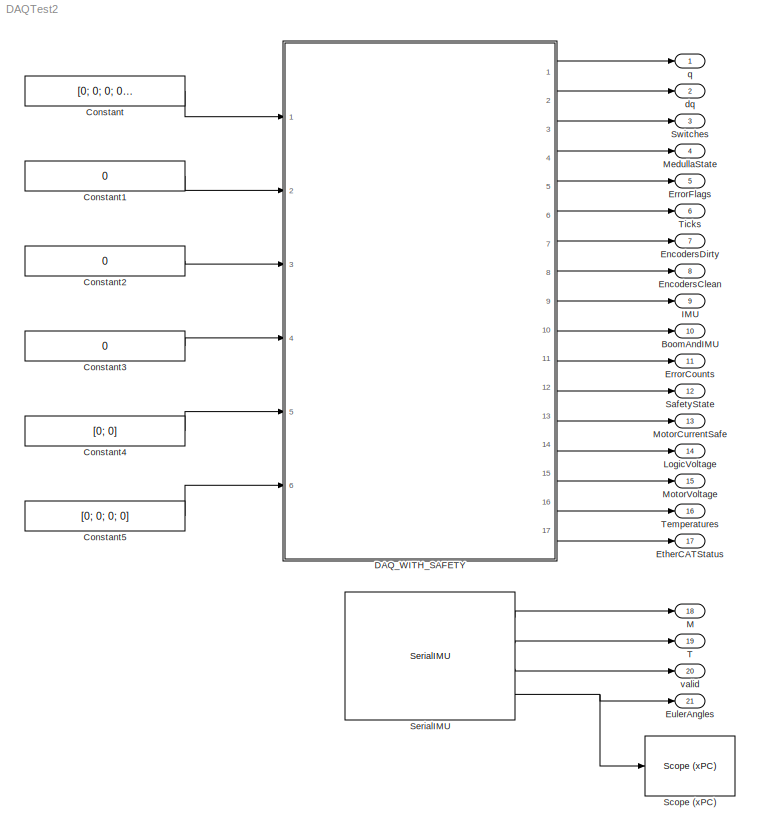
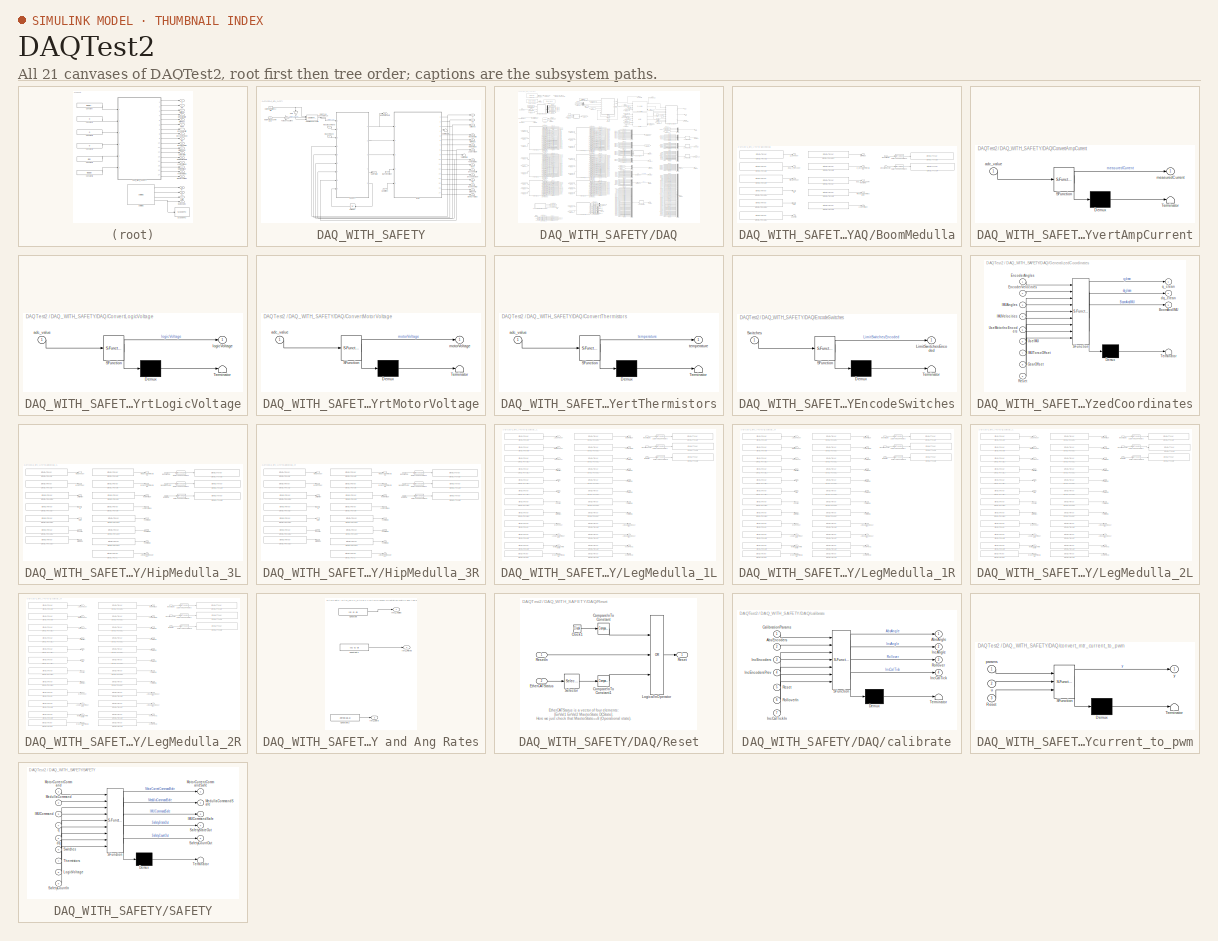
[diagram: thumbnail index - all 21 canvases of the model, root first then tree order]
MODEL DAQTest2
KIND model
BLOCK [Outport] BoomAndIMU
  IconDisplay = Port number
  Port = 10
  SID = 11
BLOCK [Constant] Constant
  SID = 15
  Value = [0; 0; 0; 0; 0; 0]
BLOCK [Constant] Constant1
  SID = 16
  Value = 0
BLOCK [Constant] Constant2
  SID = 17
  Value = 0
BLOCK [Constant] Constant3
  SID = 18
  Value = 0
BLOCK [Constant] Constant4
  SID = 19
  Value = [0; 0]
BLOCK [Constant] Constant5
  SID = 20
  Value = [0; 0; 0; 0]
BLOCK [SubSystem] DAQ_WITH_SAFETY
  AncestorBlock = marlo_lib_v01/DAQ_WITH_SAFETY
  FunctionWithSeparateData = off
  MaskHideContents = off
  MinAlgLoopOccurrences = off
  Opaque = off
  Ports = [6, 17]
  PropExecContextOutsideSubsystem = off
  RTWSystemCode = Auto
  RequestExecContextInheritance = off
  SID = 1
BLOCK [Outport] DAQ_WITH_SAFETY/BoomAndIMU
  IconDisplay = Port number
  Port = 10
  SID = 1:5566
BLOCK [Inport] DAQ_WITH_SAFETY/CurrentSaturationLimits
  IconDisplay = Port number
  Port = 4
  SID = 1:4588
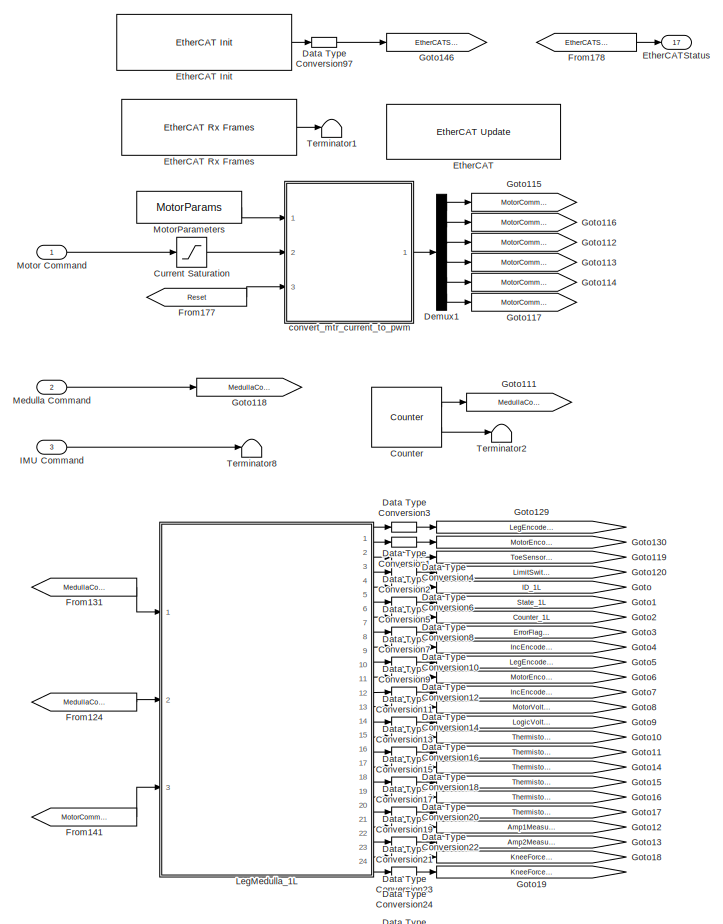
[diagram: DAQ_WITH_SAFETY/DAQ - part 1/7, top left region]
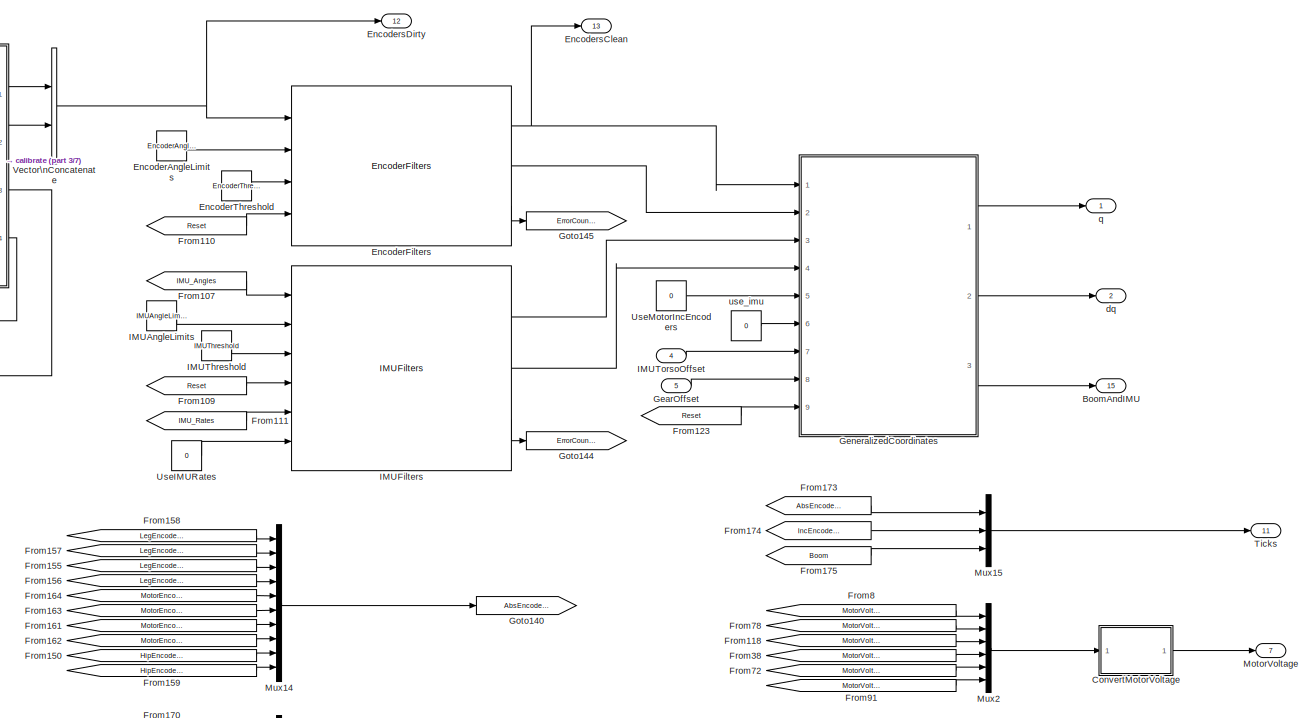
[diagram: DAQ_WITH_SAFETY/DAQ - part 2/7, top right region]
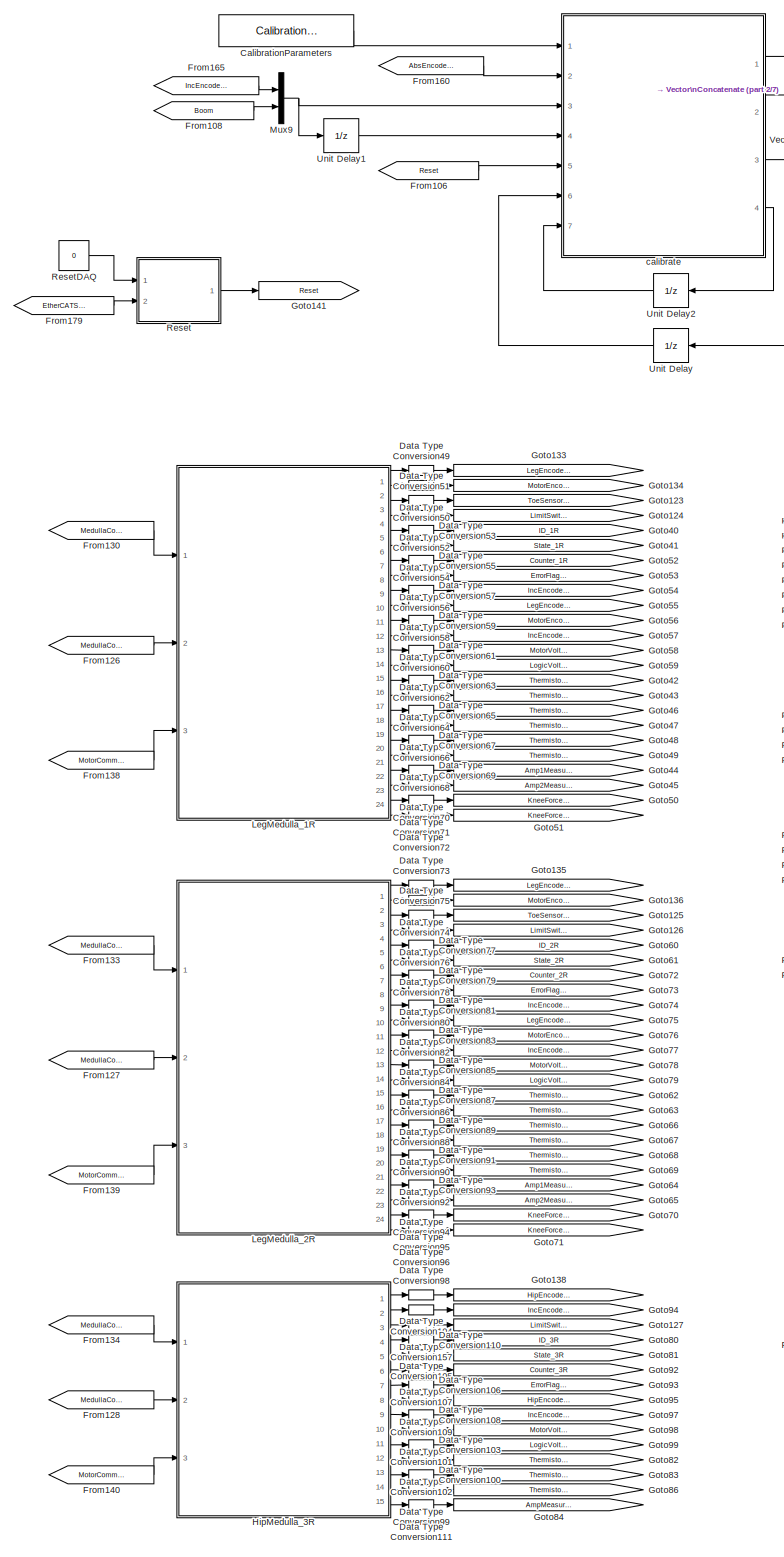
[diagram: DAQ_WITH_SAFETY/DAQ - part 3/7, center side, full height]
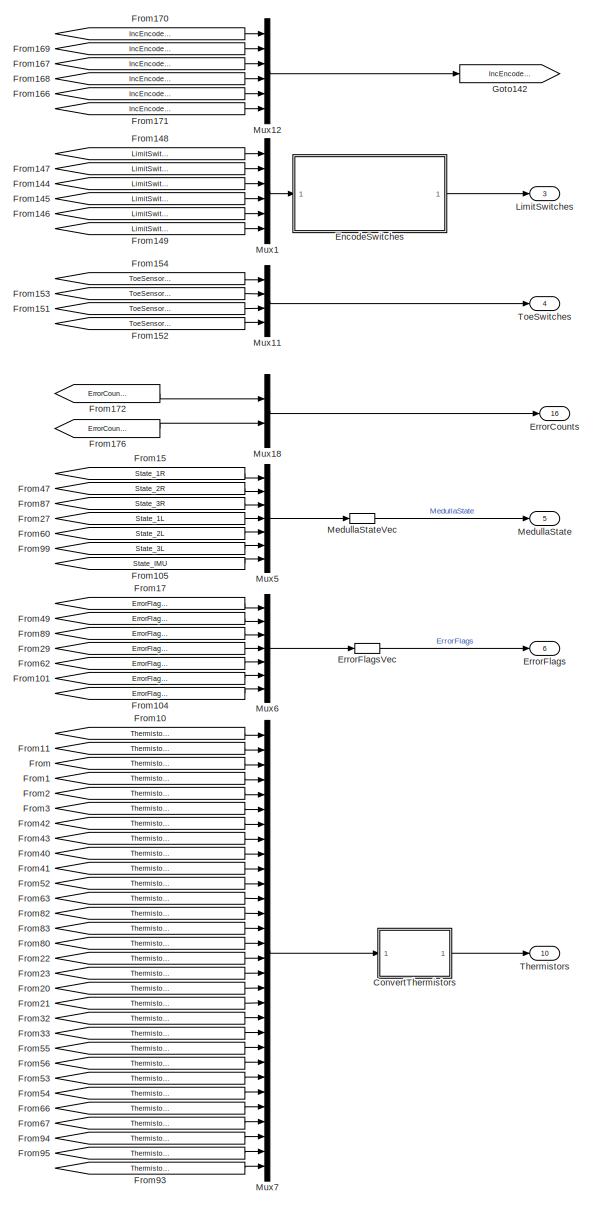
[diagram: DAQ_WITH_SAFETY/DAQ - part 4/7, bottom center region]
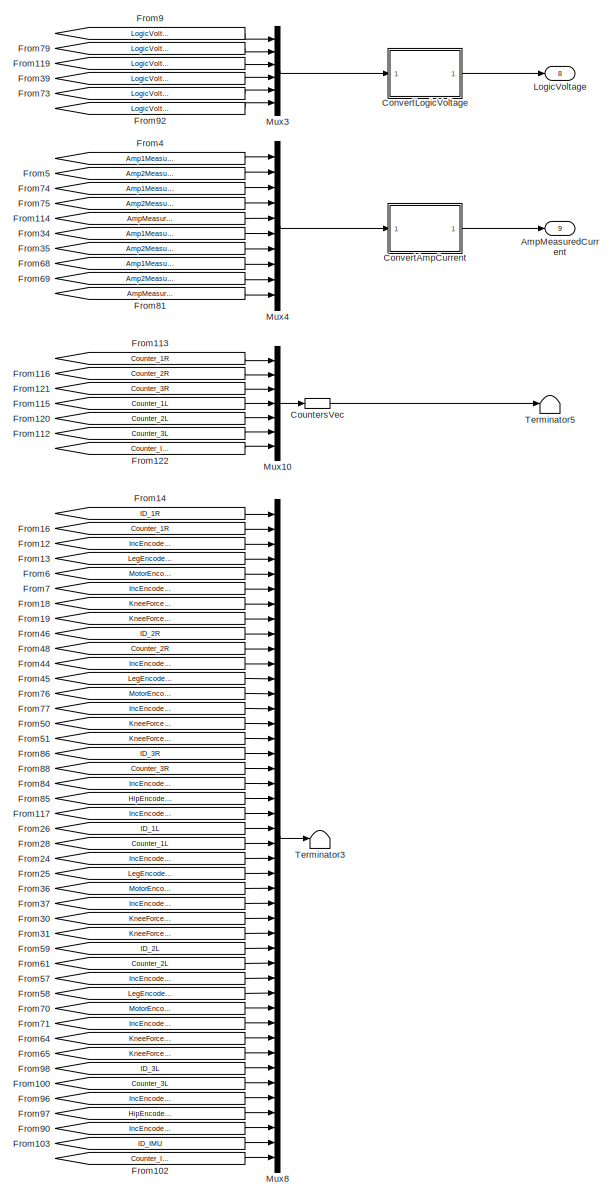
[diagram: DAQ_WITH_SAFETY/DAQ - part 5/7, bottom right region]
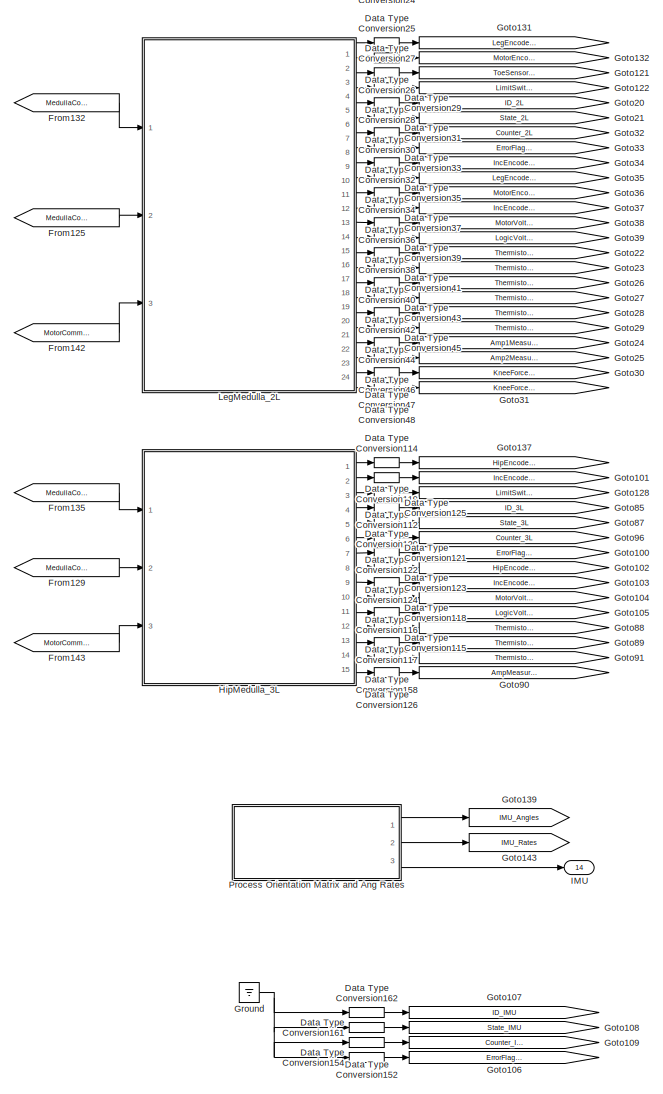
[diagram: DAQ_WITH_SAFETY/DAQ - part 6/7, bottom left region]
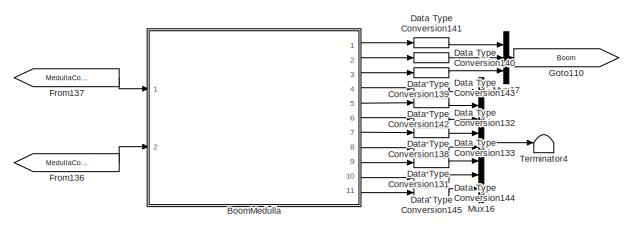
[diagram: DAQ_WITH_SAFETY/DAQ - part 7/7, bottom center region]
BLOCK [SubSystem] DAQ_WITH_SAFETY/DAQ
  FunctionWithSeparateData = off
  MaskHideContents = off
  MinAlgLoopOccurrences = off
  Opaque = off
  Ports = [5, 17]
  PropExecContextOutsideSubsystem = off
  RTWSystemCode = Auto
  RequestExecContextInheritance = off
  SID = 1:4591
BLOCK [Outport] DAQ_WITH_SAFETY/DAQ/AmpMeasuredCurrent
  IconDisplay = Port number
  Port = 9
  SID = 1:5533
BLOCK [Outport] DAQ_WITH_SAFETY/DAQ/BoomAndIMU
  IconDisplay = Port number
  Port = 15
  SID = 1:5542
BLOCK [SubSystem] DAQ_WITH_SAFETY/DAQ/BoomMedulla
  FunctionWithSeparateData = off
  MaskHideContents = off
  MinAlgLoopOccurrences = off
  Opaque = off
  Ports = [2, 11]
  PropExecContextOutsideSubsystem = off
  RTWSystemCode = Auto
  RequestExecContextInheritance = off
  SID = 1:4599
BLOCK [Outport] DAQ_WITH_SAFETY/DAQ/BoomMedulla/Counter
  IconDisplay = Port number
  Port = 6
  SID = 1:4622
BLOCK [DataTypeConversion] DAQ_WITH_SAFETY/DAQ/BoomMedulla/Data Type Conversion3
  OutDataTypeStr = uint8
  RndMeth = Floor
  SID = 1:4602
  SaturateOnIntegerOverflow = off
BLOCK [DataTypeConversion] DAQ_WITH_SAFETY/DAQ/BoomMedulla/Data Type Conversion4
  OutDataTypeStr = uint16
  RndMeth = Floor
  SID = 1:4603
  SaturateOnIntegerOverflow = off
BLOCK [Outport] DAQ_WITH_SAFETY/DAQ/BoomMedulla/ErrorFlags
  IconDisplay = Port number
  Port = 7
  SID = 1:4623
BLOCK [Reference] DAQ_WITH_SAFETY/DAQ/BoomMedulla/EtherCAT Rx Var   REF=xpcethercatlib/EtherCAT Rx Var 
  Ports = [0, 1]
  Priority = 2
  SID = 1:4604
  SourceBlock = xpcethercatlib/EtherCAT Rx Var
  SourceType = xpcethercat_rx_var
  device_id = 0
  sample_time = 0.001000
  sig_dim = 1
  sig_name = Box 7 (ATRIAS 2.1 Boom (Medulla 1.5)).X Encoder.Timestamp
  sig_offset = 2464
  sig_type = uint16
  type_size = 16
BLOCK [Reference] DAQ_WITH_SAFETY/DAQ/BoomMedulla/EtherCAT Rx Var 1  REF=xpcethercatlib/EtherCAT Rx Var 
  Ports = [0, 1]
  Priority = 2
  SID = 1:4605
  SourceBlock = xpcethercatlib/EtherCAT Rx Var
  SourceType = xpcethercat_rx_var
  device_id = 0
  sample_time = 0.001000
  sig_dim = 1
  sig_name = Box 7 (ATRIAS 2.1 Boom (Medulla 1.5)).Z Encoder.Encoder
  sig_offset = 2528
  sig_type = uint32
  type_size = 32
BLOCK [Reference] DAQ_WITH_SAFETY/DAQ/BoomMedulla/EtherCAT Rx Var 12  REF=xpcethercatlib/EtherCAT Rx Var 
  Ports = [0, 1]
  Priority = 2
  SID = 1:4606
  SourceBlock = xpcethercatlib/EtherCAT Rx Var
  SourceType = xpcethercat_rx_var
  device_id = 0
  sample_time = 0.001000
  sig_dim = 1
  sig_name = Box 7 (ATRIAS 2.1 Boom (Medulla 1.5)).uController Status.Counter
  sig_offset = 2416
  sig_type = uint8
  type_size = 8
BLOCK [Reference] DAQ_WITH_SAFETY/DAQ/BoomMedulla/EtherCAT Rx Var 13  REF=xpcethercatlib/EtherCAT Rx Var 
  Ports = [0, 1]
  Priority = 2
  SID = 1:4607
  SourceBlock = xpcethercatlib/EtherCAT Rx Var
  SourceType = xpcethercat_rx_var
  device_id = 0
  sample_time = 0.001000
  sig_dim = 1
  sig_name = Box 7 (ATRIAS 2.1 Boom (Medulla 1.5)).uController Status.Error Flags
  sig_offset = 2424
  sig_type = uint8
  type_size = 8
BLOCK [Reference] DAQ_WITH_SAFETY/DAQ/BoomMedulla/EtherCAT Rx Var 14  REF=xpcethercatlib/EtherCAT Rx Var 
  Ports = [0, 1]
  Priority = 2
  SID = 1:4608
  SourceBlock = xpcethercatlib/EtherCAT Rx Var
  SourceType = xpcethercat_rx_var
  device_id = 0
  sample_time = 0.001000
  sig_dim = 1
  sig_name = Box 7 (ATRIAS 2.1 Boom (Medulla 1.5)).uController Status.ID
  sig_offset = 2400
  sig_type = uint8
  type_size = 8
BLOCK [Reference] DAQ_WITH_SAFETY/DAQ/BoomMedulla/EtherCAT Rx Var 15  REF=xpcethercatlib/EtherCAT Rx Var 
  Ports = [0, 1]
  Priority = 2
  SID = 1:4609
  SourceBlock = xpcethercatlib/EtherCAT Rx Var
  SourceType = xpcethercat_rx_var
  device_id = 0
  sample_time = 0.001000
  sig_dim = 1
  sig_name = Box 7 (ATRIAS 2.1 Boom (Medulla 1.5)).uController Status.State
  sig_offset = 2408
  sig_type = uint8
  type_size = 8
BLOCK [Reference] DAQ_WITH_SAFETY/DAQ/BoomMedulla/EtherCAT Rx Var 2  REF=xpcethercatlib/EtherCAT Rx Var 
  Ports = [0, 1]
  Priority = 2
  SID = 1:4610
  SourceBlock = xpcethercatlib/EtherCAT Rx Var
  SourceType = xpcethercat_rx_var
  device_id = 0
  sample_time = 0.001000
  sig_dim = 1
  sig_name = Box 7 (ATRIAS 2.1 Boom (Medulla 1.5)).Power.Logic Voltage
  sig_offset = 2576
  sig_type = uint16
  type_size = 16
BLOCK [Reference] DAQ_WITH_SAFETY/DAQ/BoomMedulla/EtherCAT Rx Var 3  REF=xpcethercatlib/EtherCAT Rx Var 
  Ports = [0, 1]
  Priority = 2
  SID = 1:4611
  SourceBlock = xpcethercatlib/EtherCAT Rx Var
  SourceType = xpcethercat_rx_var
  device_id = 0
  sample_time = 0.001000
  sig_dim = 1
  sig_name = Box 7 (ATRIAS 2.1 Boom (Medulla 1.5)).Pitch Encoder.Timestamp
  sig_offset = 2512
  sig_type = uint16
  type_size = 16
BLOCK [Reference] DAQ_WITH_SAFETY/DAQ/BoomMedulla/EtherCAT Rx Var 4  REF=xpcethercatlib/EtherCAT Rx Var 
  Ports = [0, 1]
  Priority = 2
  SID = 1:4612
  SourceBlock = xpcethercatlib/EtherCAT Rx Var
  SourceType = xpcethercat_rx_var
  device_id = 0
  sample_time = 0.001000
  sig_dim = 1
  sig_name = Box 7 (ATRIAS 2.1 Boom (Medulla 1.5)).Pitch Encoder.Encoder
  sig_offset = 2480
  sig_type = uint32
  type_size = 32
BLOCK [Reference] DAQ_WITH_SAFETY/DAQ/BoomMedulla/EtherCAT Rx Var 5  REF=xpcethercatlib/EtherCAT Rx Var 
  Ports = [0, 1]
  Priority = 2
  SID = 1:4613
  SourceBlock = xpcethercatlib/EtherCAT Rx Var
  SourceType = xpcethercat_rx_var
  device_id = 0
  sample_time = 0.001000
  sig_dim = 1
  sig_name = Box 7 (ATRIAS 2.1 Boom (Medulla 1.5)).X Encoder.Encoder
  sig_offset = 2432
  sig_type = uint32
  type_size = 32
BLOCK [Reference] DAQ_WITH_SAFETY/DAQ/BoomMedulla/EtherCAT Rx Var 6  REF=xpcethercatlib/EtherCAT Rx Var 
  Ports = [0, 1]
  Priority = 2
  SID = 1:4614
  SourceBlock = xpcethercatlib/EtherCAT Rx Var
  SourceType = xpcethercat_rx_var
  device_id = 0
  sample_time = 0.001000
  sig_dim = 1
  sig_name = Box 7 (ATRIAS 2.1 Boom (Medulla 1.5)).Z Encoder.Timestamp
  sig_offset = 2560
  sig_type = uint16
  type_size = 16
BLOCK [Reference] DAQ_WITH_SAFETY/DAQ/BoomMedulla/EtherCAT Tx Var 3  REF=xpcethercatlib/EtherCAT Tx Var 
  Ports = [1]
  Priority = 3
  SID = 1:4615
  SourceBlock = xpcethercatlib/EtherCAT Tx Var
  SourceType = xpcethercat_tx_var
  device_id = 0
  sample_time = 0.001000
  sig_dim = 1
  sig_name = Box 7 (ATRIAS 2.1 Boom (Medulla 1.5)).uControllerInput.Command
  sig_offset = 2400
  sig_type = uint8
  type_size = 8
BLOCK [Reference] DAQ_WITH_SAFETY/DAQ/BoomMedulla/EtherCAT Tx Var 4  REF=xpcethercatlib/EtherCAT Tx Var 
  Ports = [1]
  Priority = 3
  SID = 1:4616
  SourceBlock = xpcethercatlib/EtherCAT Tx Var
  SourceType = xpcethercat_tx_var
  device_id = 0
  sample_time = 0.001000
  sig_dim = 1
  sig_name = Box 7 (ATRIAS 2.1 Boom (Medulla 1.5)).uControllerInput.Counter
  sig_offset = 2408
  sig_type = uint16
  type_size = 16
BLOCK [Outport] DAQ_WITH_SAFETY/DAQ/BoomMedulla/ID
  IconDisplay = Port number
  Port = 4
  SID = 1:4620
BLOCK [Outport] DAQ_WITH_SAFETY/DAQ/BoomMedulla/LogicVoltage
  IconDisplay = Port number
  Port = 11
  SID = 1:4627
BLOCK [Inport] DAQ_WITH_SAFETY/DAQ/BoomMedulla/MedullaCmd
  IconDisplay = Port number
  SID = 1:4600
BLOCK [Inport] DAQ_WITH_SAFETY/DAQ/BoomMedulla/MedullaCounter
  IconDisplay = Port number
  Port = 2
  SID = 1:4601
BLOCK [Outport] DAQ_WITH_SAFETY/DAQ/BoomMedulla/OSU_X_Encoder
  IconDisplay = Port number
  SID = 1:4618
BLOCK [Outport] DAQ_WITH_SAFETY/DAQ/BoomMedulla/OSU_X_EncoderTimestamp
  IconDisplay = Port number
  Port = 9
  SID = 1:4625
BLOCK [Outport] DAQ_WITH_SAFETY/DAQ/BoomMedulla/PitchEncoder
  IconDisplay = Port number
  Port = 3
  SID = 1:4619
BLOCK [Outport] DAQ_WITH_SAFETY/DAQ/BoomMedulla/PitchEncoderTimestamp
  IconDisplay = Port number
  Port = 10
  SID = 1:4626
BLOCK [Outport] DAQ_WITH_SAFETY/DAQ/BoomMedulla/State
  IconDisplay = Port number
  Port = 5
  SID = 1:4621
BLOCK [Outport] DAQ_WITH_SAFETY/DAQ/BoomMedulla/Z_Encoder
  IconDisplay = Port number
  Port = 2
  SID = 1:4617
BLOCK [Outport] DAQ_WITH_SAFETY/DAQ/BoomMedulla/Z_EncoderTimestamp
  IconDisplay = Port number
  Port = 8
  SID = 1:4624
BLOCK [Constant] DAQ_WITH_SAFETY/DAQ/CalibrationParameters
  SID = 1:4643
  Value = CalibrationParams
BLOCK [SubSystem] DAQ_WITH_SAFETY/DAQ/ConvertAmpCurrent
  ErrorFcn = Stateflow.Translate.translate
  FunctionWithSeparateData = off
  MaskDescription = Embedded MATLAB block
  MaskDisplay = bgColor = Simulink.Root.ColorString2Rgb(get_param(gcbh, 'BackgroundColor')); image(imread('private/eml_membrane_16.png','png','BackgroundColor',bgColor(1:3)),'center'); disp([10 10 'convert']);  <repeated x4 — deduplicated; at blocks: ConvertAmpCurrent, ConvertLogicVoltage, ConvertMotorVoltage, ConvertThermistors>
  MaskHideContents = off
  MaskIconFrame = on
  MaskIconOpaque = off
  MaskIconRotate = none
  MaskIconUnits = normalized
  MaskPortRotate = default
  MaskSelfModifiable = on
  MaskType = Stateflow
  MinAlgLoopOccurrences = off
  Opaque = off
  PermitHierarchicalResolution = ExplicitOnly
  Ports = [1, 1]
  PropExecContextOutsideSubsystem = off
  RTWSystemCode = Auto
  RequestExecContextInheritance = off
  SFBlockType = MATLAB Function
  SID = 1:4648
  TreatAsAtomicUnit = on
BLOCK [Demux] DAQ_WITH_SAFETY/DAQ/ConvertAmpCurrent/ Demux 
  Outputs = 1
  Ports = [1, 1]
  SID = 1:4648::7
BLOCK [S-Function] DAQ_WITH_SAFETY/DAQ/ConvertAmpCurrent/ SFunction 
  EnableBusSupport = on
  FunctionName = sf_sfun
  PortCounts = [1 2]
  Ports = [1, 2]
  SID = 1:4648::6
  Tag = Stateflow S-Function DAQTest2 2
BLOCK [Terminator] DAQ_WITH_SAFETY/DAQ/ConvertAmpCurrent/ Terminator 
  SID = 1:4648::9
BLOCK [Inport] DAQ_WITH_SAFETY/DAQ/ConvertAmpCurrent/adc_value
  IconDisplay = Port number
  SID = 1:4648::1
BLOCK [Outport] DAQ_WITH_SAFETY/DAQ/ConvertAmpCurrent/measuredCurrent
  IconDisplay = Port number
  SID = 1:4648::5
BLOCK [SubSystem] DAQ_WITH_SAFETY/DAQ/ConvertLogicVoltage
  ErrorFcn = Stateflow.Translate.translate
  FunctionWithSeparateData = off
  MaskDescription = Embedded MATLAB block
  MaskHideContents = off
  MaskIconFrame = on
  MaskIconOpaque = off
  MaskIconRotate = none
  MaskIconUnits = normalized
  MaskPortRotate = default
  MaskSelfModifiable = on
  MaskType = Stateflow
  MinAlgLoopOccurrences = off
  Opaque = off
  PermitHierarchicalResolution = ExplicitOnly
  Ports = [1, 1]
  PropExecContextOutsideSubsystem = off
  RTWSystemCode = Auto
  RequestExecContextInheritance = off
  SFBlockType = MATLAB Function
  SID = 1:4649
  TreatAsAtomicUnit = on
BLOCK [Demux] DAQ_WITH_SAFETY/DAQ/ConvertLogicVoltage/ Demux 
  Outputs = 1
  Ports = [1, 1]
  SID = 1:4649::7
BLOCK [S-Function] DAQ_WITH_SAFETY/DAQ/ConvertLogicVoltage/ SFunction 
  EnableBusSupport = on
  FunctionName = sf_sfun
  PortCounts = [1 2]
  Ports = [1, 2]
  SID = 1:4649::6
  Tag = Stateflow S-Function DAQTest2 5
BLOCK [Terminator] DAQ_WITH_SAFETY/DAQ/ConvertLogicVoltage/ Terminator 
  SID = 1:4649::9
BLOCK [Inport] DAQ_WITH_SAFETY/DAQ/ConvertLogicVoltage/adc_value
  IconDisplay = Port number
  SID = 1:4649::1
BLOCK [Outport] DAQ_WITH_SAFETY/DAQ/ConvertLogicVoltage/logicVoltage
  IconDisplay = Port number
  SID = 1:4649::5
BLOCK [SubSystem] DAQ_WITH_SAFETY/DAQ/ConvertMotorVoltage
  ErrorFcn = Stateflow.Translate.translate
  FunctionWithSeparateData = off
  MaskDescription = Embedded MATLAB block
  MaskHideContents = off
  MaskIconFrame = on
  MaskIconOpaque = off
  MaskIconRotate = none
  MaskIconUnits = normalized
  MaskPortRotate = default
  MaskSelfModifiable = on
  MaskType = Stateflow
  MinAlgLoopOccurrences = off
  Opaque = off
  PermitHierarchicalResolution = ExplicitOnly
  Ports = [1, 1]
  PropExecContextOutsideSubsystem = off
  RTWSystemCode = Auto
  RequestExecContextInheritance = off
  SFBlockType = MATLAB Function
  SID = 1:4650
  TreatAsAtomicUnit = on
BLOCK [Demux] DAQ_WITH_SAFETY/DAQ/ConvertMotorVoltage/ Demux 
  Outputs = 1
  Ports = [1, 1]
  SID = 1:4650::7
BLOCK [S-Function] DAQ_WITH_SAFETY/DAQ/ConvertMotorVoltage/ SFunction 
  EnableBusSupport = on
  FunctionName = sf_sfun
  PortCounts = [1 2]
  Ports = [1, 2]
  SID = 1:4650::6
  Tag = Stateflow S-Function DAQTest2 6
BLOCK [Terminator] DAQ_WITH_SAFETY/DAQ/ConvertMotorVoltage/ Terminator 
  SID = 1:4650::9
BLOCK [Inport] DAQ_WITH_SAFETY/DAQ/ConvertMotorVoltage/adc_value
  IconDisplay = Port number
  SID = 1:4650::1
BLOCK [Outport] DAQ_WITH_SAFETY/DAQ/ConvertMotorVoltage/motorVoltage
  IconDisplay = Port number
  SID = 1:4650::5
BLOCK [SubSystem] DAQ_WITH_SAFETY/DAQ/ConvertThermistors
  ErrorFcn = Stateflow.Translate.translate
  FunctionWithSeparateData = off
  MaskDescription = Embedded MATLAB block
  MaskHideContents = off
  MaskIconFrame = on
  MaskIconOpaque = off
  MaskIconRotate = none
  MaskIconUnits = normalized
  MaskPortRotate = default
  MaskSelfModifiable = on
  MaskType = Stateflow
  MinAlgLoopOccurrences = off
  Opaque = off
  PermitHierarchicalResolution = ExplicitOnly
  Ports = [1, 1]
  PropExecContextOutsideSubsystem = off
  RTWSystemCode = Auto
  RequestExecContextInheritance = off
  SFBlockType = MATLAB Function
  SID = 1:4651
  TreatAsAtomicUnit = on
BLOCK [Demux] DAQ_WITH_SAFETY/DAQ/ConvertThermistors/ Demux 
  Outputs = 1
  Ports = [1, 1]
  SID = 1:4651::7
BLOCK [S-Function] DAQ_WITH_SAFETY/DAQ/ConvertThermistors/ SFunction 
  EnableBusSupport = on
  FunctionName = sf_sfun
  PortCounts = [1 2]
  Ports = [1, 2]
  SID = 1:4651::6
  Tag = Stateflow S-Function DAQTest2 7
BLOCK [Terminator] DAQ_WITH_SAFETY/DAQ/ConvertThermistors/ Terminator 
  SID = 1:4651::9
BLOCK [Inport] DAQ_WITH_SAFETY/DAQ/ConvertThermistors/adc_value
  IconDisplay = Port number
  SID = 1:4651::1
BLOCK [Outport] DAQ_WITH_SAFETY/DAQ/ConvertThermistors/temperature
  IconDisplay = Port number
  SID = 1:4651::5
BLOCK [Reference] DAQ_WITH_SAFETY/DAQ/Counter  REF=dspswit3/Counter
  CntDtype = double
  CountEvent = Free running
  CounterSize = User defined
  Direction = Up
  HitDtype = Logical
  HitValue = 32
  InitialCount = 0
  MaxCount = 65535
  Output = Count and Hit
  Ports = [0, 2]
  ResetInput = off
  SID = 1:4652
  SamplesPerFrame = 1
  SourceBlock = dspswit3/Counter
  SourceType = Counter
  Ts = .001
BLOCK [DataTypeConversion] DAQ_WITH_SAFETY/DAQ/CountersVec
  OutDataTypeStr = double
  RndMeth = Floor
  SID = 1:4653
  SaturateOnIntegerOverflow = off
BLOCK [Saturate] DAQ_WITH_SAFETY/DAQ/Current Saturation
  InputPortMap = u0
  LowerLimit = -50
  Ports = [1, 1]
  SID = 1:4654
  UpperLimit = 50
BLOCK [DataTypeConversion] DAQ_WITH_SAFETY/DAQ/Data Type Conversion1
  OutDataTypeStr = double
  RndMeth = Floor
  SID = 1:4655
  SaturateOnIntegerOverflow = off
BLOCK [DataTypeConversion] DAQ_WITH_SAFETY/DAQ/Data Type Conversion10
  OutDataTypeStr = double
  RndMeth = Floor
  SID = 1:4656
  SaturateOnIntegerOverflow = off
BLOCK [DataTypeConversion] DAQ_WITH_SAFETY/DAQ/Data Type Conversion100
  OutDataTypeStr = double
  RndMeth = Floor
  SID = 1:4657
  SaturateOnIntegerOverflow = off
BLOCK [DataTypeConversion] DAQ_WITH_SAFETY/DAQ/Data Type Conversion101
  OutDataTypeStr = double
  RndMeth = Floor
  SID = 1:4658
  SaturateOnIntegerOverflow = off
BLOCK [DataTypeConversion] DAQ_WITH_SAFETY/DAQ/Data Type Conversion102
  OutDataTypeStr = double
  RndMeth = Floor
  SID = 1:4659
  SaturateOnIntegerOverflow = off
BLOCK [DataTypeConversion] DAQ_WITH_SAFETY/DAQ/Data Type Conversion103
  OutDataTypeStr = double
  RndMeth = Floor
  SID = 1:4660
  SaturateOnIntegerOverflow = off
BLOCK [DataTypeConversion] DAQ_WITH_SAFETY/DAQ/Data Type Conversion104
  OutDataTypeStr = double
  RndMeth = Floor
  SID = 1:4661
  SaturateOnIntegerOverflow = off
BLOCK [DataTypeConversion] DAQ_WITH_SAFETY/DAQ/Data Type Conversion105
  OutDataTypeStr = double
  RndMeth = Floor
  SID = 1:4662
  SaturateOnIntegerOverflow = off
BLOCK [DataTypeConversion] DAQ_WITH_SAFETY/DAQ/Data Type Conversion106
  OutDataTypeStr = double
  RndMeth = Floor
  SID = 1:4663
  SaturateOnIntegerOverflow = off
BLOCK [DataTypeConversion] DAQ_WITH_SAFETY/DAQ/Data Type Conversion107
  OutDataTypeStr = double
  RndMeth = Floor
  SID = 1:4664
  SaturateOnIntegerOverflow = off
BLOCK [DataTypeConversion] DAQ_WITH_SAFETY/DAQ/Data Type Conversion108
  OutDataTypeStr = double
  RndMeth = Floor
  SID = 1:4665
  SaturateOnIntegerOverflow = off
BLOCK [DataTypeConversion] DAQ_WITH_SAFETY/DAQ/Data Type Conversion109
  OutDataTypeStr = double
  RndMeth = Floor
  SID = 1:4666
  SaturateOnIntegerOverflow = off
BLOCK [DataTypeConversion] DAQ_WITH_SAFETY/DAQ/Data Type Conversion11
  OutDataTypeStr = double
  RndMeth = Floor
  SID = 1:4667
  SaturateOnIntegerOverflow = off
BLOCK [DataTypeConversion] DAQ_WITH_SAFETY/DAQ/Data Type Conversion110
  OutDataTypeStr = double
  RndMeth = Floor
  SID = 1:4668
  SaturateOnIntegerOverflow = off
BLOCK [DataTypeConversion] DAQ_WITH_SAFETY/DAQ/Data Type Conversion111
  OutDataTypeStr = double
  RndMeth = Floor
  SID = 1:4669
  SaturateOnIntegerOverflow = off
BLOCK [DataTypeConversion] DAQ_WITH_SAFETY/DAQ/Data Type Conversion112
  OutDataTypeStr = double
  RndMeth = Floor
  SID = 1:4670
  SaturateOnIntegerOverflow = off
BLOCK [DataTypeConversion] DAQ_WITH_SAFETY/DAQ/Data Type Conversion114
  OutDataTypeStr = double
  RndMeth = Floor
  SID = 1:4672
  SaturateOnIntegerOverflow = off
BLOCK [DataTypeConversion] DAQ_WITH_SAFETY/DAQ/Data Type Conversion115
  OutDataTypeStr = double
  RndMeth = Floor
  SID = 1:4673
  SaturateOnIntegerOverflow = off
BLOCK [DataTypeConversion] DAQ_WITH_SAFETY/DAQ/Data Type Conversion116
  OutDataTypeStr = double
  RndMeth = Floor
  SID = 1:4674
  SaturateOnIntegerOverflow = off
BLOCK [DataTypeConversion] DAQ_WITH_SAFETY/DAQ/Data Type Conversion117
  OutDataTypeStr = double
  RndMeth = Floor
  SID = 1:4675
  SaturateOnIntegerOverflow = off
BLOCK [DataTypeConversion] DAQ_WITH_SAFETY/DAQ/Data Type Conversion118
  OutDataTypeStr = double
  RndMeth = Floor
  SID = 1:4676
  SaturateOnIntegerOverflow = off
BLOCK [DataTypeConversion] DAQ_WITH_SAFETY/DAQ/Data Type Conversion119
  OutDataTypeStr = double
  RndMeth = Floor
  SID = 1:4677
  SaturateOnIntegerOverflow = off
BLOCK [DataTypeConversion] DAQ_WITH_SAFETY/DAQ/Data Type Conversion12
  OutDataTypeStr = double
  RndMeth = Floor
  SID = 1:4678
  SaturateOnIntegerOverflow = off
BLOCK [DataTypeConversion] DAQ_WITH_SAFETY/DAQ/Data Type Conversion120
  OutDataTypeStr = double
  RndMeth = Floor
  SID = 1:4679
  SaturateOnIntegerOverflow = off
BLOCK [DataTypeConversion] DAQ_WITH_SAFETY/DAQ/Data Type Conversion121
  OutDataTypeStr = double
  RndMeth = Floor
  SID = 1:4680
  SaturateOnIntegerOverflow = off
BLOCK [DataTypeConversion] DAQ_WITH_SAFETY/DAQ/Data Type Conversion122
  OutDataTypeStr = double
  RndMeth = Floor
  SID = 1:4681
  SaturateOnIntegerOverflow = off
BLOCK [DataTypeConversion] DAQ_WITH_SAFETY/DAQ/Data Type Conversion123
  OutDataTypeStr = double
  RndMeth = Floor
  SID = 1:4682
  SaturateOnIntegerOverflow = off
BLOCK [DataTypeConversion] DAQ_WITH_SAFETY/DAQ/Data Type Conversion124
  OutDataTypeStr = double
  RndMeth = Floor
  SID = 1:4683
  SaturateOnIntegerOverflow = off
BLOCK [DataTypeConversion] DAQ_WITH_SAFETY/DAQ/Data Type Conversion125
  OutDataTypeStr = double
  RndMeth = Floor
  SID = 1:4684
  SaturateOnIntegerOverflow = off
BLOCK [DataTypeConversion] DAQ_WITH_SAFETY/DAQ/Data Type Conversion126
  OutDataTypeStr = double
  RndMeth = Floor
  SID = 1:4685
  SaturateOnIntegerOverflow = off
BLOCK [DataTypeConversion] DAQ_WITH_SAFETY/DAQ/Data Type Conversion13
  OutDataTypeStr = double
  RndMeth = Floor
  SID = 1:4686
  SaturateOnIntegerOverflow = off
BLOCK [DataTypeConversion] DAQ_WITH_SAFETY/DAQ/Data Type Conversion131
  OutDataTypeStr = double
  RndMeth = Floor
  SID = 1:4687
  SaturateOnIntegerOverflow = off
BLOCK [DataTypeConversion] DAQ_WITH_SAFETY/DAQ/Data Type Conversion132
  OutDataTypeStr = double
  RndMeth = Floor
  SID = 1:4688
  SaturateOnIntegerOverflow = off
BLOCK [DataTypeConversion] DAQ_WITH_SAFETY/DAQ/Data Type Conversion133
  OutDataTypeStr = double
  RndMeth = Floor
  SID = 1:4689
  SaturateOnIntegerOverflow = off
BLOCK [DataTypeConversion] DAQ_WITH_SAFETY/DAQ/Data Type Conversion138
  OutDataTypeStr = double
  RndMeth = Floor
  SID = 1:4690
  SaturateOnIntegerOverflow = off
BLOCK [DataTypeConversion] DAQ_WITH_SAFETY/DAQ/Data Type Conversion139
  OutDataTypeStr = double
  RndMeth = Floor
  SID = 1:4691
  SaturateOnIntegerOverflow = off
BLOCK [DataTypeConversion] DAQ_WITH_SAFETY/DAQ/Data Type Conversion14
  OutDataTypeStr = double
  RndMeth = Floor
  SID = 1:4692
  SaturateOnIntegerOverflow = off
BLOCK [DataTypeConversion] DAQ_WITH_SAFETY/DAQ/Data Type Conversion140
  OutDataTypeStr = double
  RndMeth = Floor
  SID = 1:4693
  SaturateOnIntegerOverflow = off
BLOCK [DataTypeConversion] DAQ_WITH_SAFETY/DAQ/Data Type Conversion141
  OutDataTypeStr = double
  RndMeth = Floor
  SID = 1:4694
  SaturateOnIntegerOverflow = off
BLOCK [DataTypeConversion] DAQ_WITH_SAFETY/DAQ/Data Type Conversion142
  OutDataTypeStr = double
  RndMeth = Floor
  SID = 1:4695
  SaturateOnIntegerOverflow = off
BLOCK [DataTypeConversion] DAQ_WITH_SAFETY/DAQ/Data Type Conversion143
  OutDataTypeStr = double
  RndMeth = Floor
  SID = 1:4696
  SaturateOnIntegerOverflow = off
BLOCK [DataTypeConversion] DAQ_WITH_SAFETY/DAQ/Data Type Conversion144
  OutDataTypeStr = double
  RndMeth = Floor
  SID = 1:4697
  SaturateOnIntegerOverflow = off
BLOCK [DataTypeConversion] DAQ_WITH_SAFETY/DAQ/Data Type Conversion145
  OutDataTypeStr = double
  RndMeth = Floor
  SID = 1:4698
  SaturateOnIntegerOverflow = off
BLOCK [DataTypeConversion] DAQ_WITH_SAFETY/DAQ/Data Type Conversion15
  OutDataTypeStr = double
  RndMeth = Floor
  SID = 1:4699
  SaturateOnIntegerOverflow = off
BLOCK [DataTypeConversion] DAQ_WITH_SAFETY/DAQ/Data Type Conversion152
  OutDataTypeStr = double
  RndMeth = Floor
  SID = 1:4700
  SaturateOnIntegerOverflow = off
BLOCK [DataTypeConversion] DAQ_WITH_SAFETY/DAQ/Data Type Conversion154
  OutDataTypeStr = double
  RndMeth = Floor
  SID = 1:4701
  SaturateOnIntegerOverflow = off
BLOCK [DataTypeConversion] DAQ_WITH_SAFETY/DAQ/Data Type Conversion157
  OutDataTypeStr = double
  RndMeth = Floor
  SID = 1:4702
  SaturateOnIntegerOverflow = off
BLOCK [DataTypeConversion] DAQ_WITH_SAFETY/DAQ/Data Type Conversion158
  OutDataTypeStr = double
  RndMeth = Floor
  SID = 1:4703
  SaturateOnIntegerOverflow = off
BLOCK [DataTypeConversion] DAQ_WITH_SAFETY/DAQ/Data Type Conversion16
  OutDataTypeStr = double
  RndMeth = Floor
  SID = 1:4704
  SaturateOnIntegerOverflow = off
BLOCK [DataTypeConversion] DAQ_WITH_SAFETY/DAQ/Data Type Conversion161
  OutDataTypeStr = double
  RndMeth = Floor
  SID = 1:4705
  SaturateOnIntegerOverflow = off
BLOCK [DataTypeConversion] DAQ_WITH_SAFETY/DAQ/Data Type Conversion162
  OutDataTypeStr = double
  RndMeth = Floor
  SID = 1:4706
  SaturateOnIntegerOverflow = off
BLOCK [DataTypeConversion] DAQ_WITH_SAFETY/DAQ/Data Type Conversion17
  OutDataTypeStr = double
  RndMeth = Floor
  SID = 1:4707
  SaturateOnIntegerOverflow = off
BLOCK [DataTypeConversion] DAQ_WITH_SAFETY/DAQ/Data Type Conversion18
  OutDataTypeStr = double
  RndMeth = Floor
  SID = 1:4708
  SaturateOnIntegerOverflow = off
BLOCK [DataTypeConversion] DAQ_WITH_SAFETY/DAQ/Data Type Conversion19
  OutDataTypeStr = double
  RndMeth = Floor
  SID = 1:4709
  SaturateOnIntegerOverflow = off
BLOCK [DataTypeConversion] DAQ_WITH_SAFETY/DAQ/Data Type Conversion2
  OutDataTypeStr = double
  RndMeth = Floor
  SID = 1:4710
  SaturateOnIntegerOverflow = off
BLOCK [DataTypeConversion] DAQ_WITH_SAFETY/DAQ/Data Type Conversion20
  OutDataTypeStr = double
  RndMeth = Floor
  SID = 1:4711
  SaturateOnIntegerOverflow = off
BLOCK [DataTypeConversion] DAQ_WITH_SAFETY/DAQ/Data Type Conversion21
  OutDataTypeStr = double
  RndMeth = Floor
  SID = 1:4712
  SaturateOnIntegerOverflow = off
BLOCK [DataTypeConversion] DAQ_WITH_SAFETY/DAQ/Data Type Conversion22
  OutDataTypeStr = double
  RndMeth = Floor
  SID = 1:4713
  SaturateOnIntegerOverflow = off
BLOCK [DataTypeConversion] DAQ_WITH_SAFETY/DAQ/Data Type Conversion23
  OutDataTypeStr = double
  RndMeth = Floor
  SID = 1:4714
  SaturateOnIntegerOverflow = off
BLOCK [DataTypeConversion] DAQ_WITH_SAFETY/DAQ/Data Type Conversion24
  OutDataTypeStr = double
  RndMeth = Floor
  SID = 1:4715
  SaturateOnIntegerOverflow = off
BLOCK [DataTypeConversion] DAQ_WITH_SAFETY/DAQ/Data Type Conversion25
  OutDataTypeStr = double
  RndMeth = Floor
  SID = 1:4716
  SaturateOnIntegerOverflow = off
BLOCK [DataTypeConversion] DAQ_WITH_SAFETY/DAQ/Data Type Conversion26
  OutDataTypeStr = double
  RndMeth = Floor
  SID = 1:4717
  SaturateOnIntegerOverflow = off
BLOCK [DataTypeConversion] DAQ_WITH_SAFETY/DAQ/Data Type Conversion27
  OutDataTypeStr = double
  RndMeth = Floor
  SID = 1:4718
  SaturateOnIntegerOverflow = off
BLOCK [DataTypeConversion] DAQ_WITH_SAFETY/DAQ/Data Type Conversion28
  OutDataTypeStr = double
  RndMeth = Floor
  SID = 1:4719
  SaturateOnIntegerOverflow = off
BLOCK [DataTypeConversion] DAQ_WITH_SAFETY/DAQ/Data Type Conversion29
  OutDataTypeStr = double
  RndMeth = Floor
  SID = 1:4720
  SaturateOnIntegerOverflow = off
BLOCK [DataTypeConversion] DAQ_WITH_SAFETY/DAQ/Data Type Conversion3
  OutDataTypeStr = double
  RndMeth = Floor
  SID = 1:4721
  SaturateOnIntegerOverflow = off
BLOCK [DataTypeConversion] DAQ_WITH_SAFETY/DAQ/Data Type Conversion30
  OutDataTypeStr = double
  RndMeth = Floor
  SID = 1:4722
  SaturateOnIntegerOverflow = off
BLOCK [DataTypeConversion] DAQ_WITH_SAFETY/DAQ/Data Type Conversion31
  OutDataTypeStr = double
  RndMeth = Floor
  SID = 1:4723
  SaturateOnIntegerOverflow = off
BLOCK [DataTypeConversion] DAQ_WITH_SAFETY/DAQ/Data Type Conversion32
  OutDataTypeStr = double
  RndMeth = Floor
  SID = 1:4724
  SaturateOnIntegerOverflow = off
BLOCK [DataTypeConversion] DAQ_WITH_SAFETY/DAQ/Data Type Conversion33
  OutDataTypeStr = double
  RndMeth = Floor
  SID = 1:4725
  SaturateOnIntegerOverflow = off
BLOCK [DataTypeConversion] DAQ_WITH_SAFETY/DAQ/Data Type Conversion34
  OutDataTypeStr = double
  RndMeth = Floor
  SID = 1:4726
  SaturateOnIntegerOverflow = off
BLOCK [DataTypeConversion] DAQ_WITH_SAFETY/DAQ/Data Type Conversion35
  OutDataTypeStr = double
  RndMeth = Floor
  SID = 1:4727
  SaturateOnIntegerOverflow = off
BLOCK [DataTypeConversion] DAQ_WITH_SAFETY/DAQ/Data Type Conversion36
  OutDataTypeStr = double
  RndMeth = Floor
  SID = 1:4728
  SaturateOnIntegerOverflow = off
BLOCK [DataTypeConversion] DAQ_WITH_SAFETY/DAQ/Data Type Conversion37
  OutDataTypeStr = double
  RndMeth = Floor
  SID = 1:4729
  SaturateOnIntegerOverflow = off
BLOCK [DataTypeConversion] DAQ_WITH_SAFETY/DAQ/Data Type Conversion38
  OutDataTypeStr = double
  RndMeth = Floor
  SID = 1:4730
  SaturateOnIntegerOverflow = off
BLOCK [DataTypeConversion] DAQ_WITH_SAFETY/DAQ/Data Type Conversion39
  OutDataTypeStr = double
  RndMeth = Floor
  SID = 1:4731
  SaturateOnIntegerOverflow = off
BLOCK [DataTypeConversion] DAQ_WITH_SAFETY/DAQ/Data Type Conversion4
  OutDataTypeStr = double
  RndMeth = Floor
  SID = 1:4732
  SaturateOnIntegerOverflow = off
BLOCK [DataTypeConversion] DAQ_WITH_SAFETY/DAQ/Data Type Conversion40
  OutDataTypeStr = double
  RndMeth = Floor
  SID = 1:4733
  SaturateOnIntegerOverflow = off
BLOCK [DataTypeConversion] DAQ_WITH_SAFETY/DAQ/Data Type Conversion41
  OutDataTypeStr = double
  RndMeth = Floor
  SID = 1:4734
  SaturateOnIntegerOverflow = off
BLOCK [DataTypeConversion] DAQ_WITH_SAFETY/DAQ/Data Type Conversion42
  OutDataTypeStr = double
  RndMeth = Floor
  SID = 1:4735
  SaturateOnIntegerOverflow = off
BLOCK [DataTypeConversion] DAQ_WITH_SAFETY/DAQ/Data Type Conversion43
  OutDataTypeStr = double
  RndMeth = Floor
  SID = 1:4736
  SaturateOnIntegerOverflow = off
BLOCK [DataTypeConversion] DAQ_WITH_SAFETY/DAQ/Data Type Conversion44
  OutDataTypeStr = double
  RndMeth = Floor
  SID = 1:4737
  SaturateOnIntegerOverflow = off
BLOCK [DataTypeConversion] DAQ_WITH_SAFETY/DAQ/Data Type Conversion45
  OutDataTypeStr = double
  RndMeth = Floor
  SID = 1:4738
  SaturateOnIntegerOverflow = off
BLOCK [DataTypeConversion] DAQ_WITH_SAFETY/DAQ/Data Type Conversion46
  OutDataTypeStr = double
  RndMeth = Floor
  SID = 1:4739
  SaturateOnIntegerOverflow = off
BLOCK [DataTypeConversion] DAQ_WITH_SAFETY/DAQ/Data Type Conversion47
  OutDataTypeStr = double
  RndMeth = Floor
  SID = 1:4740
  SaturateOnIntegerOverflow = off
BLOCK [DataTypeConversion] DAQ_WITH_SAFETY/DAQ/Data Type Conversion48
  OutDataTypeStr = double
  RndMeth = Floor
  SID = 1:4741
  SaturateOnIntegerOverflow = off
BLOCK [DataTypeConversion] DAQ_WITH_SAFETY/DAQ/Data Type Conversion49
  OutDataTypeStr = double
  RndMeth = Floor
  SID = 1:4742
  SaturateOnIntegerOverflow = off
BLOCK [DataTypeConversion] DAQ_WITH_SAFETY/DAQ/Data Type Conversion5
  OutDataTypeStr = double
  RndMeth = Floor
  SID = 1:4743
  SaturateOnIntegerOverflow = off
BLOCK [DataTypeConversion] DAQ_WITH_SAFETY/DAQ/Data Type Conversion50
  OutDataTypeStr = double
  RndMeth = Floor
  SID = 1:4744
  SaturateOnIntegerOverflow = off
BLOCK [DataTypeConversion] DAQ_WITH_SAFETY/DAQ/Data Type Conversion51
  OutDataTypeStr = double
  RndMeth = Floor
  SID = 1:4745
  SaturateOnIntegerOverflow = off
BLOCK [DataTypeConversion] DAQ_WITH_SAFETY/DAQ/Data Type Conversion52
  OutDataTypeStr = double
  RndMeth = Floor
  SID = 1:4746
  SaturateOnIntegerOverflow = off
BLOCK [DataTypeConversion] DAQ_WITH_SAFETY/DAQ/Data Type Conversion53
  OutDataTypeStr = double
  RndMeth = Floor
  SID = 1:4747
  SaturateOnIntegerOverflow = off
BLOCK [DataTypeConversion] DAQ_WITH_SAFETY/DAQ/Data Type Conversion54
  OutDataTypeStr = double
  RndMeth = Floor
  SID = 1:4748
  SaturateOnIntegerOverflow = off
BLOCK [DataTypeConversion] DAQ_WITH_SAFETY/DAQ/Data Type Conversion55
  OutDataTypeStr = double
  RndMeth = Floor
  SID = 1:4749
  SaturateOnIntegerOverflow = off
BLOCK [DataTypeConversion] DAQ_WITH_SAFETY/DAQ/Data Type Conversion56
  OutDataTypeStr = double
  RndMeth = Floor
  SID = 1:4750
  SaturateOnIntegerOverflow = off
BLOCK [DataTypeConversion] DAQ_WITH_SAFETY/DAQ/Data Type Conversion57
  OutDataTypeStr = double
  RndMeth = Floor
  SID = 1:4751
  SaturateOnIntegerOverflow = off
BLOCK [DataTypeConversion] DAQ_WITH_SAFETY/DAQ/Data Type Conversion58
  OutDataTypeStr = double
  RndMeth = Floor
  SID = 1:4752
  SaturateOnIntegerOverflow = off
BLOCK [DataTypeConversion] DAQ_WITH_SAFETY/DAQ/Data Type Conversion59
  OutDataTypeStr = double
  RndMeth = Floor
  SID = 1:4753
  SaturateOnIntegerOverflow = off
BLOCK [DataTypeConversion] DAQ_WITH_SAFETY/DAQ/Data Type Conversion6
  OutDataTypeStr = double
  RndMeth = Floor
  SID = 1:4754
  SaturateOnIntegerOverflow = off
BLOCK [DataTypeConversion] DAQ_WITH_SAFETY/DAQ/Data Type Conversion60
  OutDataTypeStr = double
  RndMeth = Floor
  SID = 1:4755
  SaturateOnIntegerOverflow = off
BLOCK [DataTypeConversion] DAQ_WITH_SAFETY/DAQ/Data Type Conversion61
  OutDataTypeStr = double
  RndMeth = Floor
  SID = 1:4756
  SaturateOnIntegerOverflow = off
BLOCK [DataTypeConversion] DAQ_WITH_SAFETY/DAQ/Data Type Conversion62
  OutDataTypeStr = double
  RndMeth = Floor
  SID = 1:4757
  SaturateOnIntegerOverflow = off
BLOCK [DataTypeConversion] DAQ_WITH_SAFETY/DAQ/Data Type Conversion63
  OutDataTypeStr = double
  RndMeth = Floor
  SID = 1:4758
  SaturateOnIntegerOverflow = off
BLOCK [DataTypeConversion] DAQ_WITH_SAFETY/DAQ/Data Type Conversion64
  OutDataTypeStr = double
  RndMeth = Floor
  SID = 1:4759
  SaturateOnIntegerOverflow = off
BLOCK [DataTypeConversion] DAQ_WITH_SAFETY/DAQ/Data Type Conversion65
  OutDataTypeStr = double
  RndMeth = Floor
  SID = 1:4760
  SaturateOnIntegerOverflow = off
BLOCK [DataTypeConversion] DAQ_WITH_SAFETY/DAQ/Data Type Conversion66
  OutDataTypeStr = double
  RndMeth = Floor
  SID = 1:4761
  SaturateOnIntegerOverflow = off
BLOCK [DataTypeConversion] DAQ_WITH_SAFETY/DAQ/Data Type Conversion67
  OutDataTypeStr = double
  RndMeth = Floor
  SID = 1:4762
  SaturateOnIntegerOverflow = off
BLOCK [DataTypeConversion] DAQ_WITH_SAFETY/DAQ/Data Type Conversion68
  OutDataTypeStr = double
  RndMeth = Floor
  SID = 1:4763
  SaturateOnIntegerOverflow = off
BLOCK [DataTypeConversion] DAQ_WITH_SAFETY/DAQ/Data Type Conversion69
  OutDataTypeStr = double
  RndMeth = Floor
  SID = 1:4764
  SaturateOnIntegerOverflow = off
BLOCK [DataTypeConversion] DAQ_WITH_SAFETY/DAQ/Data Type Conversion7
  OutDataTypeStr = double
  RndMeth = Floor
  SID = 1:4765
  SaturateOnIntegerOverflow = off
BLOCK [DataTypeConversion] DAQ_WITH_SAFETY/DAQ/Data Type Conversion70
  OutDataTypeStr = double
  RndMeth = Floor
  SID = 1:4766
  SaturateOnIntegerOverflow = off
BLOCK [DataTypeConversion] DAQ_WITH_SAFETY/DAQ/Data Type Conversion71
  OutDataTypeStr = double
  RndMeth = Floor
  SID = 1:4767
  SaturateOnIntegerOverflow = off
BLOCK [DataTypeConversion] DAQ_WITH_SAFETY/DAQ/Data Type Conversion72
  OutDataTypeStr = double
  RndMeth = Floor
  SID = 1:4768
  SaturateOnIntegerOverflow = off
BLOCK [DataTypeConversion] DAQ_WITH_SAFETY/DAQ/Data Type Conversion73
  OutDataTypeStr = double
  RndMeth = Floor
  SID = 1:4769
  SaturateOnIntegerOverflow = off
BLOCK [DataTypeConversion] DAQ_WITH_SAFETY/DAQ/Data Type Conversion74
  OutDataTypeStr = double
  RndMeth = Floor
  SID = 1:4770
  SaturateOnIntegerOverflow = off
BLOCK [DataTypeConversion] DAQ_WITH_SAFETY/DAQ/Data Type Conversion75
  OutDataTypeStr = double
  RndMeth = Floor
  SID = 1:4771
  SaturateOnIntegerOverflow = off
BLOCK [DataTypeConversion] DAQ_WITH_SAFETY/DAQ/Data Type Conversion76
  OutDataTypeStr = double
  RndMeth = Floor
  SID = 1:4772
  SaturateOnIntegerOverflow = off
BLOCK [DataTypeConversion] DAQ_WITH_SAFETY/DAQ/Data Type Conversion77
  OutDataTypeStr = double
  RndMeth = Floor
  SID = 1:4773
  SaturateOnIntegerOverflow = off
BLOCK [DataTypeConversion] DAQ_WITH_SAFETY/DAQ/Data Type Conversion78
  OutDataTypeStr = double
  RndMeth = Floor
  SID = 1:4774
  SaturateOnIntegerOverflow = off
BLOCK [DataTypeConversion] DAQ_WITH_SAFETY/DAQ/Data Type Conversion79
  OutDataTypeStr = double
  RndMeth = Floor
  SID = 1:4775
  SaturateOnIntegerOverflow = off
BLOCK [DataTypeConversion] DAQ_WITH_SAFETY/DAQ/Data Type Conversion8
  OutDataTypeStr = double
  RndMeth = Floor
  SID = 1:4776
  SaturateOnIntegerOverflow = off
BLOCK [DataTypeConversion] DAQ_WITH_SAFETY/DAQ/Data Type Conversion80
  OutDataTypeStr = double
  RndMeth = Floor
  SID = 1:4777
  SaturateOnIntegerOverflow = off
BLOCK [DataTypeConversion] DAQ_WITH_SAFETY/DAQ/Data Type Conversion81
  OutDataTypeStr = double
  RndMeth = Floor
  SID = 1:4778
  SaturateOnIntegerOverflow = off
BLOCK [DataTypeConversion] DAQ_WITH_SAFETY/DAQ/Data Type Conversion82
  OutDataTypeStr = double
  RndMeth = Floor
  SID = 1:4779
  SaturateOnIntegerOverflow = off
BLOCK [DataTypeConversion] DAQ_WITH_SAFETY/DAQ/Data Type Conversion83
  OutDataTypeStr = double
  RndMeth = Floor
  SID = 1:4780
  SaturateOnIntegerOverflow = off
BLOCK [DataTypeConversion] DAQ_WITH_SAFETY/DAQ/Data Type Conversion84
  OutDataTypeStr = double
  RndMeth = Floor
  SID = 1:4781
  SaturateOnIntegerOverflow = off
BLOCK [DataTypeConversion] DAQ_WITH_SAFETY/DAQ/Data Type Conversion85
  OutDataTypeStr = double
  RndMeth = Floor
  SID = 1:4782
  SaturateOnIntegerOverflow = off
BLOCK [DataTypeConversion] DAQ_WITH_SAFETY/DAQ/Data Type Conversion86
  OutDataTypeStr = double
  RndMeth = Floor
  SID = 1:4783
  SaturateOnIntegerOverflow = off
BLOCK [DataTypeConversion] DAQ_WITH_SAFETY/DAQ/Data Type Conversion87
  OutDataTypeStr = double
  RndMeth = Floor
  SID = 1:4784
  SaturateOnIntegerOverflow = off
BLOCK [DataTypeConversion] DAQ_WITH_SAFETY/DAQ/Data Type Conversion88
  OutDataTypeStr = double
  RndMeth = Floor
  SID = 1:4785
  SaturateOnIntegerOverflow = off
BLOCK [DataTypeConversion] DAQ_WITH_SAFETY/DAQ/Data Type Conversion89
  OutDataTypeStr = double
  RndMeth = Floor
  SID = 1:4786
  SaturateOnIntegerOverflow = off
BLOCK [DataTypeConversion] DAQ_WITH_SAFETY/DAQ/Data Type Conversion9
  OutDataTypeStr = double
  RndMeth = Floor
  SID = 1:4787
  SaturateOnIntegerOverflow = off
BLOCK [DataTypeConversion] DAQ_WITH_SAFETY/DAQ/Data Type Conversion90
  OutDataTypeStr = double
  RndMeth = Floor
  SID = 1:4788
  SaturateOnIntegerOverflow = off
BLOCK [DataTypeConversion] DAQ_WITH_SAFETY/DAQ/Data Type Conversion91
  OutDataTypeStr = double
  RndMeth = Floor
  SID = 1:4789
  SaturateOnIntegerOverflow = off
BLOCK [DataTypeConversion] DAQ_WITH_SAFETY/DAQ/Data Type Conversion92
  OutDataTypeStr = double
  RndMeth = Floor
  SID = 1:4790
  SaturateOnIntegerOverflow = off
BLOCK [DataTypeConversion] DAQ_WITH_SAFETY/DAQ/Data Type Conversion93
  OutDataTypeStr = double
  RndMeth = Floor
  SID = 1:4791
  SaturateOnIntegerOverflow = off
BLOCK [DataTypeConversion] DAQ_WITH_SAFETY/DAQ/Data Type Conversion94
  OutDataTypeStr = double
  RndMeth = Floor
  SID = 1:4792
  SaturateOnIntegerOverflow = off
BLOCK [DataTypeConversion] DAQ_WITH_SAFETY/DAQ/Data Type Conversion95
  OutDataTypeStr = double
  RndMeth = Floor
  SID = 1:4793
  SaturateOnIntegerOverflow = off
BLOCK [DataTypeConversion] DAQ_WITH_SAFETY/DAQ/Data Type Conversion96
  OutDataTypeStr = double
  RndMeth = Floor
  SID = 1:4794
  SaturateOnIntegerOverflow = off
BLOCK [DataTypeConversion] DAQ_WITH_SAFETY/DAQ/Data Type Conversion97
  OutDataTypeStr = double
  RndMeth = Floor
  SID = 1:5804
  SaturateOnIntegerOverflow = off
BLOCK [DataTypeConversion] DAQ_WITH_SAFETY/DAQ/Data Type Conversion98
  OutDataTypeStr = double
  RndMeth = Floor
  SID = 1:4796
  SaturateOnIntegerOverflow = off
BLOCK [DataTypeConversion] DAQ_WITH_SAFETY/DAQ/Data Type Conversion99
  OutDataTypeStr = double
  RndMeth = Floor
  SID = 1:4797
  SaturateOnIntegerOverflow = off
BLOCK [Demux] DAQ_WITH_SAFETY/DAQ/Demux1
  DisplayOption = bar
  Outputs = 6
  Ports = [1, 6]
  SID = 1:4799
BLOCK [SubSystem] DAQ_WITH_SAFETY/DAQ/EncodeSwitches
  ErrorFcn = Stateflow.Translate.translate
  FunctionWithSeparateData = off
  MaskDescription = Embedded MATLAB block
  MaskDisplay = bgColor = Simulink.Root.ColorString2Rgb(get_param(gcbh, 'BackgroundColor')); image(imread('private/eml_membrane_16.png','png','BackgroundColor',bgColor(1:3)),'center'); disp([10 10 'EncodeSwitches']);
  MaskHideContents = off
  MaskIconFrame = on
  MaskIconOpaque = off
  MaskIconRotate = none
  MaskIconUnits = normalized
  MaskPortRotate = default
  MaskSelfModifiable = on
  MaskType = Stateflow
  MinAlgLoopOccurrences = off
  Opaque = off
  PermitHierarchicalResolution = ExplicitOnly
  Ports = [1, 1]
  PropExecContextOutsideSubsystem = off
  RTWSystemCode = Auto
  RequestExecContextInheritance = off
  SFBlockType = MATLAB Function
  SID = 1:4800
  TreatAsAtomicUnit = on
BLOCK [Demux] DAQ_WITH_SAFETY/DAQ/EncodeSwitches/ Demux 
  Outputs = 1
  Ports = [1, 1]
  SID = 1:4800::7
BLOCK [S-Function] DAQ_WITH_SAFETY/DAQ/EncodeSwitches/ SFunction 
  EnableBusSupport = on
  FunctionName = sf_sfun
  PortCounts = [1 2]
  Ports = [1, 2]
  SID = 1:4800::6
  Tag = Stateflow S-Function DAQTest2 9
BLOCK [Terminator] DAQ_WITH_SAFETY/DAQ/EncodeSwitches/ Terminator 
  SID = 1:4800::9
BLOCK [Outport] DAQ_WITH_SAFETY/DAQ/EncodeSwitches/LimitSwitchesEncoded
  IconDisplay = Port number
  SID = 1:4800::5
BLOCK [Inport] DAQ_WITH_SAFETY/DAQ/EncodeSwitches/Switches
  IconDisplay = Port number
  SID = 1:4800::1
BLOCK [Constant] DAQ_WITH_SAFETY/DAQ/EncoderAngleLimits
  SID = 1:5771
  Value = EncoderAngleLimits
BLOCK [Reference] DAQ_WITH_SAFETY/DAQ/EncoderFilters  REF=marlo_lib_v01/EncoderFilters  (lib defined in mdl_235eadc422d4)
  Ports = [4, 3]
  SID = 1:5760
  SourceBlock = marlo_lib_v01/EncoderFilters
  SourceType = SubSystem
BLOCK [Constant] DAQ_WITH_SAFETY/DAQ/EncoderThreshold
  SID = 1:5770
  Value = EncoderThreshold
BLOCK [Outport] DAQ_WITH_SAFETY/DAQ/EncodersClean
  IconDisplay = Port number
  Port = 13
  SID = 1:5775
BLOCK [Outport] DAQ_WITH_SAFETY/DAQ/EncodersDirty
  IconDisplay = Port number
  Port = 12
  SID = 1:5537
BLOCK [Outport] DAQ_WITH_SAFETY/DAQ/ErrorCounts
  IconDisplay = Port number
  Port = 16
  SID = 1:5782
BLOCK [Outport] DAQ_WITH_SAFETY/DAQ/ErrorFlags
  IconDisplay = Port number
  Port = 6
  SID = 1:5535
BLOCK [DataTypeConversion] DAQ_WITH_SAFETY/DAQ/ErrorFlagsVec
  OutDataTypeStr = double
  RndMeth = Floor
  SID = 1:4801
  SaturateOnIntegerOverflow = off
BLOCK [Reference] DAQ_WITH_SAFETY/DAQ/EtherCAT  REF=xpcethercatlib/EtherCAT Update 
  Ports = []
  Priority = 4
  SID = 1:4802
  SourceBlock = xpcethercatlib/EtherCAT Update
  SourceType = xpcethercat_update
  device_id = 0
  task_id_list = [1]
  task_priorities = [1500]
  task_rates = [1]
BLOCK [Reference] DAQ_WITH_SAFETY/DAQ/EtherCAT Init  REF=xpcethercatlib/EtherCAT Init 
  Ports = [0, 1]
  Priority = 0
  SID = 1:4803
  SourceBlock = xpcethercatlib/EtherCAT Init
  SourceType = xpcethercatinit
  config_file = 'full_robot_eni_v4.xml'
  device_id = 0
  enaDC = on
  errRptLevel = 0
  pci_bus = 5
  pci_slot = 5
  sample_time = -1
BLOCK [Reference] DAQ_WITH_SAFETY/DAQ/EtherCAT Rx Frames  REF=xpcethercatlib/EtherCAT Rx Frames 
  Ports = [0, 1]
  Priority = 1
  SID = 1:4804
  SourceBlock = xpcethercatlib/EtherCAT Rx Frames
  SourceType = xpcethercat_rcvframes
  device_id = 0
  sample_time = 0
BLOCK [Outport] DAQ_WITH_SAFETY/DAQ/EtherCATStatus
  IconDisplay = Port number
  Port = 17
  SID = 1:5801
BLOCK [From] DAQ_WITH_SAFETY/DAQ/From
  GotoTag = Thermistor2_1R
  SID = 1:4805
BLOCK [From] DAQ_WITH_SAFETY/DAQ/From1
  GotoTag = Thermistor3_1R
  SID = 1:4806
BLOCK [From] DAQ_WITH_SAFETY/DAQ/From10
  GotoTag = Thermistor0_1R
  SID = 1:4807
BLOCK [From] DAQ_WITH_SAFETY/DAQ/From100
  GotoTag = Counter_3L
  SID = 1:4808
BLOCK [From] DAQ_WITH_SAFETY/DAQ/From101
  GotoTag = ErrorFlags_3L
  SID = 1:4809
BLOCK [From] DAQ_WITH_SAFETY/DAQ/From102
  GotoTag = Counter_IMU
  SID = 1:4810
BLOCK [From] DAQ_WITH_SAFETY/DAQ/From103
  GotoTag = ID_IMU
  SID = 1:4811
BLOCK [From] DAQ_WITH_SAFETY/DAQ/From104
  GotoTag = ErrorFlags_IMU
  SID = 1:4812
BLOCK [From] DAQ_WITH_SAFETY/DAQ/From105
  GotoTag = State_IMU
  SID = 1:4813
BLOCK [From] DAQ_WITH_SAFETY/DAQ/From106
  GotoTag = Reset
  SID = 1:5706
BLOCK [From] DAQ_WITH_SAFETY/DAQ/From107
  GotoTag = IMU_Angles
  SID = 1:5705
BLOCK [From] DAQ_WITH_SAFETY/DAQ/From108
  GotoTag = Boom
  SID = 1:5717
BLOCK [From] DAQ_WITH_SAFETY/DAQ/From109
  GotoTag = Reset
  SID = 1:5762
BLOCK [From] DAQ_WITH_SAFETY/DAQ/From11
  GotoTag = Thermistor1_1R
  SID = 1:4818
BLOCK [From] DAQ_WITH_SAFETY/DAQ/From110
  GotoTag = Reset
  SID = 1:5763
BLOCK [From] DAQ_WITH_SAFETY/DAQ/From111
  GotoTag = IMU_Rates
  SID = 1:5766
BLOCK [From] DAQ_WITH_SAFETY/DAQ/From112
  GotoTag = Counter_3L
  SID = 1:4821
BLOCK [From] DAQ_WITH_SAFETY/DAQ/From113
  GotoTag = Counter_1R
  SID = 1:4822
BLOCK [From] DAQ_WITH_SAFETY/DAQ/From114
  GotoTag = AmpMeasuredCurrent_3R
  SID = 1:4823
BLOCK [From] DAQ_WITH_SAFETY/DAQ/From115
  GotoTag = Counter_1L
  SID = 1:4824
BLOCK [From] DAQ_WITH_SAFETY/DAQ/From116
  GotoTag = Counter_2R
  SID = 1:4825
BLOCK [From] DAQ_WITH_SAFETY/DAQ/From117
  GotoTag = IncEncoderTimestamp_3R
  SID = 1:4826
BLOCK [From] DAQ_WITH_SAFETY/DAQ/From118
  GotoTag = MotorVoltage_3R
  SID = 1:4827
BLOCK [From] DAQ_WITH_SAFETY/DAQ/From119
  GotoTag = LogicVoltage_3R
  SID = 1:4828
BLOCK [From] DAQ_WITH_SAFETY/DAQ/From12
  GotoTag = IncEncoder_1R
  SID = 1:4829
BLOCK [From] DAQ_WITH_SAFETY/DAQ/From120
  GotoTag = Counter_2L
  SID = 1:4830
BLOCK [From] DAQ_WITH_SAFETY/DAQ/From121
  GotoTag = Counter_3R
  SID = 1:4831
BLOCK [From] DAQ_WITH_SAFETY/DAQ/From122
  GotoTag = Counter_IMU
  SID = 1:4832
BLOCK [From] DAQ_WITH_SAFETY/DAQ/From123
  GotoTag = Reset
  SID = 1:5773
BLOCK [From] DAQ_WITH_SAFETY/DAQ/From124
  GotoTag = MedullaCounter
  SID = 1:5574
BLOCK [From] DAQ_WITH_SAFETY/DAQ/From125
  GotoTag = MedullaCounter
  SID = 1:5575
BLOCK [From] DAQ_WITH_SAFETY/DAQ/From126
  GotoTag = MedullaCounter
  SID = 1:5576
BLOCK [From] DAQ_WITH_SAFETY/DAQ/From127
  GotoTag = MedullaCounter
  SID = 1:5577
BLOCK [From] DAQ_WITH_SAFETY/DAQ/From128
  GotoTag = MedullaCounter
  SID = 1:5578
BLOCK [From] DAQ_WITH_SAFETY/DAQ/From129
  GotoTag = MedullaCounter
  SID = 1:5579
BLOCK [From] DAQ_WITH_SAFETY/DAQ/From13
  GotoTag = LegEncoderTimestamp_1R
  SID = 1:4834
BLOCK [From] DAQ_WITH_SAFETY/DAQ/From130
  GotoTag = MedullaCommand
  SID = 1:5588
BLOCK [From] DAQ_WITH_SAFETY/DAQ/From131
  GotoTag = MedullaCommand
  SID = 1:5596
BLOCK [From] DAQ_WITH_SAFETY/DAQ/From132
  GotoTag = MedullaCommand
  SID = 1:5598
BLOCK [From] DAQ_WITH_SAFETY/DAQ/From133
  GotoTag = MedullaCommand
  SID = 1:5599
BLOCK [From] DAQ_WITH_SAFETY/DAQ/From134
  GotoTag = MedullaCommand
  SID = 1:5602
BLOCK [From] DAQ_WITH_SAFETY/DAQ/From135
  GotoTag = MedullaCommand
  SID = 1:5603
BLOCK [From] DAQ_WITH_SAFETY/DAQ/From136
  GotoTag = MedullaCounter
  SID = 1:5604
BLOCK [From] DAQ_WITH_SAFETY/DAQ/From137
  GotoTag = MedullaCommand
  SID = 1:5605
BLOCK [From] DAQ_WITH_SAFETY/DAQ/From138
  GotoTag = MotorCommand_1R
  SID = 1:5606
BLOCK [From] DAQ_WITH_SAFETY/DAQ/From139
  GotoTag = MotorCommand_2R
  SID = 1:5608
BLOCK [From] DAQ_WITH_SAFETY/DAQ/From14
  GotoTag = ID_1R
  SID = 1:4835
BLOCK [From] DAQ_WITH_SAFETY/DAQ/From140
  GotoTag = MotorCommand_3R
  SID = 1:5610
BLOCK [From] DAQ_WITH_SAFETY/DAQ/From141
  GotoTag = MotorCommand_1L
  SID = 1:5612
BLOCK [From] DAQ_WITH_SAFETY/DAQ/From142
  GotoTag = MotorCommand_2L
  SID = 1:5614
BLOCK [From] DAQ_WITH_SAFETY/DAQ/From143
  GotoTag = MotorCommand_3L
  SID = 1:5616
BLOCK [From] DAQ_WITH_SAFETY/DAQ/From144
  GotoTag = LimitSwitch_3R
  SID = 1:5636
BLOCK [From] DAQ_WITH_SAFETY/DAQ/From145
  GotoTag = LimitSwitch_1L
  SID = 1:5637
BLOCK [From] DAQ_WITH_SAFETY/DAQ/From146
  GotoTag = LimitSwitch_2L
  SID = 1:5638
BLOCK [From] DAQ_WITH_SAFETY/DAQ/From147
  GotoTag = LimitSwitch_2R
  SID = 1:5639
BLOCK [From] DAQ_WITH_SAFETY/DAQ/From148
  GotoTag = LimitSwitch_1R
  SID = 1:5640
BLOCK [From] DAQ_WITH_SAFETY/DAQ/From149
  GotoTag = LimitSwitch_3L
  SID = 1:5641
BLOCK [From] DAQ_WITH_SAFETY/DAQ/From15
  GotoTag = State_1R
  SID = 1:4836
BLOCK [From] DAQ_WITH_SAFETY/DAQ/From150
  GotoTag = HipEncoder_3R
  SID = 1:5662
BLOCK [From] DAQ_WITH_SAFETY/DAQ/From151
  GotoTag = ToeSensor_1L
  SID = 1:5643
BLOCK [From] DAQ_WITH_SAFETY/DAQ/From152
  GotoTag = ToeSensor_2L
  SID = 1:5644
BLOCK [From] DAQ_WITH_SAFETY/DAQ/From153
  GotoTag = ToeSensor_2R
  SID = 1:5645
BLOCK [From] DAQ_WITH_SAFETY/DAQ/From154
  GotoTag = ToeSensor_1R
  SID = 1:5646
BLOCK [From] DAQ_WITH_SAFETY/DAQ/From155
  GotoTag = LegEncoder_1L
  SID = 1:5663
BLOCK [From] DAQ_WITH_SAFETY/DAQ/From156
  GotoTag = LegEncoder_2L
  SID = 1:5664
BLOCK [From] DAQ_WITH_SAFETY/DAQ/From157
  GotoTag = LegEncoder_2R
  SID = 1:5665
BLOCK [From] DAQ_WITH_SAFETY/DAQ/From158
  GotoTag = LegEncoder_1R
  SID = 1:5666
BLOCK [From] DAQ_WITH_SAFETY/DAQ/From159
  GotoTag = HipEncoder_3L
  SID = 1:5667
BLOCK [From] DAQ_WITH_SAFETY/DAQ/From16
  GotoTag = Counter_1R
  SID = 1:4837
BLOCK [From] DAQ_WITH_SAFETY/DAQ/From160
  GotoTag = AbsEncoders
  SID = 1:5694
BLOCK [From] DAQ_WITH_SAFETY/DAQ/From161
  GotoTag = MotorEncoder_1L
  SID = 1:5669
BLOCK [From] DAQ_WITH_SAFETY/DAQ/From162
  GotoTag = MotorEncoder_2L
  SID = 1:5670
BLOCK [From] DAQ_WITH_SAFETY/DAQ/From163
  GotoTag = MotorEncoder_2R
  SID = 1:5671
BLOCK [From] DAQ_WITH_SAFETY/DAQ/From164
  GotoTag = MotorEncoder_1R
  SID = 1:5672
BLOCK [From] DAQ_WITH_SAFETY/DAQ/From165
  GotoTag = IncEncoders
  SID = 1:5695
BLOCK [From] DAQ_WITH_SAFETY/DAQ/From166
  GotoTag = IncEncoder_3R
  SID = 1:5674
BLOCK [From] DAQ_WITH_SAFETY/DAQ/From167
  GotoTag = IncEncoder_1L
  SID = 1:5675
BLOCK [From] DAQ_WITH_SAFETY/DAQ/From168
  GotoTag = IncEncoder_2L
  SID = 1:5676
BLOCK [From] DAQ_WITH_SAFETY/DAQ/From169
  GotoTag = IncEncoder_2R
  SID = 1:5677
BLOCK [From] DAQ_WITH_SAFETY/DAQ/From17
  GotoTag = ErrorFlags_1R
  SID = 1:4838
BLOCK [From] DAQ_WITH_SAFETY/DAQ/From170
  GotoTag = IncEncoder_1R
  SID = 1:5678
BLOCK [From] DAQ_WITH_SAFETY/DAQ/From171
  GotoTag = IncEncoder_3L
  SID = 1:5679
BLOCK [From] DAQ_WITH_SAFETY/DAQ/From172
  GotoTag = ErrorCountEncoders
  SID = 1:5778
BLOCK [From] DAQ_WITH_SAFETY/DAQ/From173
  GotoTag = AbsEncoders
  SID = 1:5690
BLOCK [From] DAQ_WITH_SAFETY/DAQ/From174
  GotoTag = IncEncoders
  SID = 1:5691
BLOCK [From] DAQ_WITH_SAFETY/DAQ/From175
  GotoTag = Boom
  SID = 1:5692
BLOCK [From] DAQ_WITH_SAFETY/DAQ/From176
  GotoTag = ErrorCountIMU
  SID = 1:5779
BLOCK [From] DAQ_WITH_SAFETY/DAQ/From177
  GotoTag = Reset
  SID = 1:5805
BLOCK [From] DAQ_WITH_SAFETY/DAQ/From178
  GotoTag = EtherCATStatus
  SID = 1:5810
BLOCK [From] DAQ_WITH_SAFETY/DAQ/From179
  GotoTag = EtherCATStatus
  SID = 1:5812
BLOCK [From] DAQ_WITH_SAFETY/DAQ/From18
  GotoTag = KneeForce1_1R
  SID = 1:4839
BLOCK [From] DAQ_WITH_SAFETY/DAQ/From19
  GotoTag = KneeForce2_1R
  SID = 1:4840
BLOCK [From] DAQ_WITH_SAFETY/DAQ/From2
  GotoTag = Thermistor4_1R
  SID = 1:4841
BLOCK [From] DAQ_WITH_SAFETY/DAQ/From20
  GotoTag = Thermistor2_1L
  SID = 1:4842
BLOCK [From] DAQ_WITH_SAFETY/DAQ/From21
  GotoTag = Thermistor3_1L
  SID = 1:4843
BLOCK [From] DAQ_WITH_SAFETY/DAQ/From22
  GotoTag = Thermistor0_1L
  SID = 1:4844
BLOCK [From] DAQ_WITH_SAFETY/DAQ/From23
  GotoTag = Thermistor1_1L
  SID = 1:4845
BLOCK [From] DAQ_WITH_SAFETY/DAQ/From24
  GotoTag = IncEncoder_1L
  SID = 1:4846
BLOCK [From] DAQ_WITH_SAFETY/DAQ/From25
  GotoTag = LegEncoderTimestamp_1L
  SID = 1:4847
BLOCK [From] DAQ_WITH_SAFETY/DAQ/From26
  GotoTag = ID_1L
  SID = 1:4848
BLOCK [From] DAQ_WITH_SAFETY/DAQ/From27
  GotoTag = State_1L
  SID = 1:4849
BLOCK [From] DAQ_WITH_SAFETY/DAQ/From28
  GotoTag = Counter_1L
  SID = 1:4850
BLOCK [From] DAQ_WITH_SAFETY/DAQ/From29
  GotoTag = ErrorFlags_1L
  SID = 1:4851
BLOCK [From] DAQ_WITH_SAFETY/DAQ/From3
  GotoTag = Thermistor5_1R
  SID = 1:4852
BLOCK [From] DAQ_WITH_SAFETY/DAQ/From30
  GotoTag = KneeForce1_1L
  SID = 1:4853
BLOCK [From] DAQ_WITH_SAFETY/DAQ/From31
  GotoTag = KneeForce2_1L
  SID = 1:4854
BLOCK [From] DAQ_WITH_SAFETY/DAQ/From32
  GotoTag = Thermistor4_1L
  SID = 1:4855
BLOCK [From] DAQ_WITH_SAFETY/DAQ/From33
  GotoTag = Thermistor5_1L
  SID = 1:4856
BLOCK [From] DAQ_WITH_SAFETY/DAQ/From34
  GotoTag = Amp1MeasuredCurrent_1L
  SID = 1:4857
BLOCK [From] DAQ_WITH_SAFETY/DAQ/From35
  GotoTag = Amp2MeasuredCurrent_1L
  SID = 1:4858
BLOCK [From] DAQ_WITH_SAFETY/DAQ/From36
  GotoTag = MotorEncoderTimestamp_1L
  SID = 1:4859
BLOCK [From] DAQ_WITH_SAFETY/DAQ/From37
  GotoTag = IncEncoderTimestamp_1L
  SID = 1:4860
BLOCK [From] DAQ_WITH_SAFETY/DAQ/From38
  GotoTag = MotorVoltage_1L
  SID = 1:4861
BLOCK [From] DAQ_WITH_SAFETY/DAQ/From39
  GotoTag = LogicVoltage_1L
  SID = 1:4862
BLOCK [From] DAQ_WITH_SAFETY/DAQ/From4
  GotoTag = Amp1MeasuredCurrent_1R
  SID = 1:4863
BLOCK [From] DAQ_WITH_SAFETY/DAQ/From40
  GotoTag = Thermistor2_2R
  SID = 1:4864
BLOCK [From] DAQ_WITH_SAFETY/DAQ/From41
  GotoTag = Thermistor3_2R
  SID = 1:4865
BLOCK [From] DAQ_WITH_SAFETY/DAQ/From42
  GotoTag = Thermistor0_2R
  SID = 1:4866
BLOCK [From] DAQ_WITH_SAFETY/DAQ/From43
  GotoTag = Thermistor1_2R
  SID = 1:4867
BLOCK [From] DAQ_WITH_SAFETY/DAQ/From44
  GotoTag = IncEncoder_2R
  SID = 1:4868
BLOCK [From] DAQ_WITH_SAFETY/DAQ/From45
  GotoTag = LegEncoderTimestamp_2R
  SID = 1:4869
BLOCK [From] DAQ_WITH_SAFETY/DAQ/From46
  GotoTag = ID_2R
  SID = 1:4870
BLOCK [From] DAQ_WITH_SAFETY/DAQ/From47
  GotoTag = State_2R
  SID = 1:4871
BLOCK [From] DAQ_WITH_SAFETY/DAQ/From48
  GotoTag = Counter_2R
  SID = 1:4872
BLOCK [From] DAQ_WITH_SAFETY/DAQ/From49
  GotoTag = ErrorFlags_2R
  SID = 1:4873
BLOCK [From] DAQ_WITH_SAFETY/DAQ/From5
  GotoTag = Amp2MeasuredCurrent_1R
  SID = 1:4874
BLOCK [From] DAQ_WITH_SAFETY/DAQ/From50
  GotoTag = KneeForce1_2R
  SID = 1:4875
BLOCK [From] DAQ_WITH_SAFETY/DAQ/From51
  GotoTag = KneeForce2_2R
  SID = 1:4876
BLOCK [From] DAQ_WITH_SAFETY/DAQ/From52
  GotoTag = Thermistor4_2R
  SID = 1:4877
BLOCK [From] DAQ_WITH_SAFETY/DAQ/From53
  GotoTag = Thermistor2_2L
  SID = 1:4878
BLOCK [From] DAQ_WITH_SAFETY/DAQ/From54
  GotoTag = Thermistor3_2L
  SID = 1:4879
BLOCK [From] DAQ_WITH_SAFETY/DAQ/From55
  GotoTag = Thermistor0_2L
  SID = 1:4880
BLOCK [From] DAQ_WITH_SAFETY/DAQ/From56
  GotoTag = Thermistor1_2L
  SID = 1:4881
BLOCK [From] DAQ_WITH_SAFETY/DAQ/From57
  GotoTag = IncEncoder_2L
  SID = 1:4882
BLOCK [From] DAQ_WITH_SAFETY/DAQ/From58
  GotoTag = LegEncoderTimestamp_2L
  SID = 1:4883
BLOCK [From] DAQ_WITH_SAFETY/DAQ/From59
  GotoTag = ID_2L
  SID = 1:4884
BLOCK [From] DAQ_WITH_SAFETY/DAQ/From6
  GotoTag = MotorEncoderTimestamp_1R
  SID = 1:4885
BLOCK [From] DAQ_WITH_SAFETY/DAQ/From60
  GotoTag = State_2L
  SID = 1:4886
BLOCK [From] DAQ_WITH_SAFETY/DAQ/From61
  GotoTag = Counter_2L
  SID = 1:4887
BLOCK [From] DAQ_WITH_SAFETY/DAQ/From62
  GotoTag = ErrorFlags_2L
  SID = 1:4888
BLOCK [From] DAQ_WITH_SAFETY/DAQ/From63
  GotoTag = Thermistor5_2R
  SID = 1:4889
BLOCK [From] DAQ_WITH_SAFETY/DAQ/From64
  GotoTag = KneeForce1_2L
  SID = 1:4890
BLOCK [From] DAQ_WITH_SAFETY/DAQ/From65
  GotoTag = KneeForce2_2L
  SID = 1:4891
BLOCK [From] DAQ_WITH_SAFETY/DAQ/From66
  GotoTag = Thermistor4_2L
  SID = 1:4892
BLOCK [From] DAQ_WITH_SAFETY/DAQ/From67
  GotoTag = Thermistor5_2L
  SID = 1:4893
BLOCK [From] DAQ_WITH_SAFETY/DAQ/From68
  GotoTag = Amp1MeasuredCurrent_2L
  SID = 1:4894
BLOCK [From] DAQ_WITH_SAFETY/DAQ/From69
  GotoTag = Amp2MeasuredCurrent_2L
  SID = 1:4895
BLOCK [From] DAQ_WITH_SAFETY/DAQ/From7
  GotoTag = IncEncoderTimestamp_1R
  SID = 1:4896
BLOCK [From] DAQ_WITH_SAFETY/DAQ/From70
  GotoTag = MotorEncoderTimestamp_2L
  SID = 1:4897
BLOCK [From] DAQ_WITH_SAFETY/DAQ/From71
  GotoTag = IncEncoderTimestamp_2L
  SID = 1:4898
BLOCK [From] DAQ_WITH_SAFETY/DAQ/From72
  GotoTag = MotorVoltage_2L
  SID = 1:4899
BLOCK [From] DAQ_WITH_SAFETY/DAQ/From73
  GotoTag = LogicVoltage_2L
  SID = 1:4900
BLOCK [From] DAQ_WITH_SAFETY/DAQ/From74
  GotoTag = Amp1MeasuredCurrent_2R
  SID = 1:4901
BLOCK [From] DAQ_WITH_SAFETY/DAQ/From75
  GotoTag = Amp2MeasuredCurrent_2R
  SID = 1:4902
BLOCK [From] DAQ_WITH_SAFETY/DAQ/From76
  GotoTag = MotorEncoderTimestamp_2R
  SID = 1:4903
BLOCK [From] DAQ_WITH_SAFETY/DAQ/From77
  GotoTag = IncEncoderTimestamp_2R
  SID = 1:4904
BLOCK [From] DAQ_WITH_SAFETY/DAQ/From78
  GotoTag = MotorVoltage_2R
  SID = 1:4905
BLOCK [From] DAQ_WITH_SAFETY/DAQ/From79
  GotoTag = LogicVoltage_2R
  SID = 1:4906
BLOCK [From] DAQ_WITH_SAFETY/DAQ/From8
  GotoTag = MotorVoltage_1R
  SID = 1:4907
BLOCK [From] DAQ_WITH_SAFETY/DAQ/From80
  GotoTag = Thermistor2_3R
  SID = 1:4908
BLOCK [From] DAQ_WITH_SAFETY/DAQ/From81
  GotoTag = AmpMeasuredCurrent_3L
  SID = 1:4909
BLOCK [From] DAQ_WITH_SAFETY/DAQ/From82
  GotoTag = Thermistor0_3R
  SID = 1:4910
BLOCK [From] DAQ_WITH_SAFETY/DAQ/From83
  GotoTag = Thermistor1_3R
  SID = 1:4911
BLOCK [From] DAQ_WITH_SAFETY/DAQ/From84
  GotoTag = IncEncoder_3R
  SID = 1:4912
BLOCK [From] DAQ_WITH_SAFETY/DAQ/From85
  GotoTag = HipEncoderTimestamp_3R
  SID = 1:4913
BLOCK [From] DAQ_WITH_SAFETY/DAQ/From86
  GotoTag = ID_3R
  SID = 1:4914
BLOCK [From] DAQ_WITH_SAFETY/DAQ/From87
  GotoTag = State_3R
  SID = 1:4915
BLOCK [From] DAQ_WITH_SAFETY/DAQ/From88
  GotoTag = Counter_3R
  SID = 1:4916
BLOCK [From] DAQ_WITH_SAFETY/DAQ/From89
  GotoTag = ErrorFlags_3R
  SID = 1:4917
BLOCK [From] DAQ_WITH_SAFETY/DAQ/From9
  GotoTag = LogicVoltage_1R
  SID = 1:4918
BLOCK [From] DAQ_WITH_SAFETY/DAQ/From90
  GotoTag = IncEncoderTimestamp_3L
  SID = 1:4919
BLOCK [From] DAQ_WITH_SAFETY/DAQ/From91
  GotoTag = MotorVoltage_3L
  SID = 1:4920
BLOCK [From] DAQ_WITH_SAFETY/DAQ/From92
  GotoTag = LogicVoltage_3L
  SID = 1:4921
BLOCK [From] DAQ_WITH_SAFETY/DAQ/From93
  GotoTag = Thermistor2_3L
  SID = 1:4922
BLOCK [From] DAQ_WITH_SAFETY/DAQ/From94
  GotoTag = Thermistor0_3L
  SID = 1:4923
BLOCK [From] DAQ_WITH_SAFETY/DAQ/From95
  GotoTag = Thermistor1_3L
  SID = 1:4924
BLOCK [From] DAQ_WITH_SAFETY/DAQ/From96
  GotoTag = IncEncoder_3L
  SID = 1:4925
BLOCK [From] DAQ_WITH_SAFETY/DAQ/From97
  GotoTag = HipEncoderTimestamp_3L
  SID = 1:4926
BLOCK [From] DAQ_WITH_SAFETY/DAQ/From98
  GotoTag = ID_3L
  SID = 1:4927
BLOCK [From] DAQ_WITH_SAFETY/DAQ/From99
  GotoTag = State_3L
  SID = 1:4928
BLOCK [Inport] DAQ_WITH_SAFETY/DAQ/GearOffset
  IconDisplay = Port number
  Port = 5
  SID = 1:4596
BLOCK [SubSystem] DAQ_WITH_SAFETY/DAQ/GeneralizedCoordinates
  ErrorFcn = Stateflow.Translate.translate
  FunctionWithSeparateData = off
  MaskDescription = Embedded MATLAB block
  MaskDisplay = bgColor = Simulink.Root.ColorString2Rgb(get_param(gcbh, 'BackgroundColor')); image(imread('private/eml_membrane_16.png','png','BackgroundColor',bgColor(1:3)),'center'); disp([10 10 'coords']);
  MaskHideContents = off
  MaskIconFrame = on
  MaskIconOpaque = off
  MaskIconRotate = none
  MaskIconUnits = normalized
  MaskPortRotate = default
  MaskSelfModifiable = on
  MaskType = Stateflow
  MinAlgLoopOccurrences = off
  Opaque = off
  PermitHierarchicalResolution = ExplicitOnly
  Ports = [9, 3]
  PropExecContextOutsideSubsystem = off
  RTWSystemCode = Auto
  RequestExecContextInheritance = off
  SFBlockType = MATLAB Function
  SID = 1:5499
  TreatAsAtomicUnit = on
BLOCK [Demux] DAQ_WITH_SAFETY/DAQ/GeneralizedCoordinates/ Demux 
  Outputs = 1
  Ports = [1, 1]
  SID = 1:5499::29
BLOCK [S-Function] DAQ_WITH_SAFETY/DAQ/GeneralizedCoordinates/ SFunction 
  EnableBusSupport = on
  FunctionName = sf_sfun
  PortCounts = [9 4]
  Ports = [9, 4]
  SID = 1:5499::28
  Tag = Stateflow S-Function DAQTest2 12
BLOCK [Terminator] DAQ_WITH_SAFETY/DAQ/GeneralizedCoordinates/ Terminator 
  SID = 1:5499::31
BLOCK [Outport] DAQ_WITH_SAFETY/DAQ/GeneralizedCoordinates/BoomAndIMU
  IconDisplay = Port number
  Port = 3
  SID = 1:5499::23
BLOCK [Inport] DAQ_WITH_SAFETY/DAQ/GeneralizedCoordinates/EncoderAngles
  IconDisplay = Port number
  SID = 1:5499::24
BLOCK [Inport] DAQ_WITH_SAFETY/DAQ/GeneralizedCoordinates/EncoderVelocities
  IconDisplay = Port number
  Port = 2
  SID = 1:5499::1
BLOCK [Inport] DAQ_WITH_SAFETY/DAQ/GeneralizedCoordinates/GearOffset
  IconDisplay = Port number
  Port = 8
  SID = 1:5499::26
BLOCK [Inport] DAQ_WITH_SAFETY/DAQ/GeneralizedCoordinates/IMUAngles
  IconDisplay = Port number
  Port = 3
  SID = 1:5499::18
BLOCK [Inport] DAQ_WITH_SAFETY/DAQ/GeneralizedCoordinates/IMUTorsoOffset
  IconDisplay = Port number
  Port = 7
  SID = 1:5499::25
BLOCK [Inport] DAQ_WITH_SAFETY/DAQ/GeneralizedCoordinates/IMUVelocities
  IconDisplay = Port number
  Port = 4
  SID = 1:5499::19
BLOCK [Inport] DAQ_WITH_SAFETY/DAQ/GeneralizedCoordinates/Reset
  IconDisplay = Port number
  Port = 9
  SID = 1:5499::27
BLOCK [Inport] DAQ_WITH_SAFETY/DAQ/GeneralizedCoordinates/UseIMU
  IconDisplay = Port number
  Port = 6
  SID = 1:5499::21
BLOCK [Inport] DAQ_WITH_SAFETY/DAQ/GeneralizedCoordinates/UseMotorIncEncoders
  IconDisplay = Port number
  Port = 5
  SID = 1:5499::20
BLOCK [Outport] DAQ_WITH_SAFETY/DAQ/GeneralizedCoordinates/dq_clean
  IconDisplay = Port number
  Port = 2
  SID = 1:5499::22
BLOCK [Outport] DAQ_WITH_SAFETY/DAQ/GeneralizedCoordinates/q_clean
  IconDisplay = Port number
  SID = 1:5499::5
BLOCK [Goto] DAQ_WITH_SAFETY/DAQ/Goto
  GotoTag = ID_1L
  SID = 1:4929
BLOCK [Goto] DAQ_WITH_SAFETY/DAQ/Goto1
  GotoTag = State_1L
  SID = 1:4930
BLOCK [Goto] DAQ_WITH_SAFETY/DAQ/Goto10
  GotoTag = Thermistor0_1L
  SID = 1:4931
BLOCK [Goto] DAQ_WITH_SAFETY/DAQ/Goto100
  GotoTag = ErrorFlags_3L
  SID = 1:4932
BLOCK [Goto] DAQ_WITH_SAFETY/DAQ/Goto101
  GotoTag = IncEncoder_3L
  SID = 1:4933
BLOCK [Goto] DAQ_WITH_SAFETY/DAQ/Goto102
  GotoTag = HipEncoderTimestamp_3L
  SID = 1:4934
BLOCK [Goto] DAQ_WITH_SAFETY/DAQ/Goto103
  GotoTag = IncEncoderTimestamp_3L
  SID = 1:4935
BLOCK [Goto] DAQ_WITH_SAFETY/DAQ/Goto104
  GotoTag = MotorVoltage_3L
  SID = 1:4936
BLOCK [Goto] DAQ_WITH_SAFETY/DAQ/Goto105
  GotoTag = LogicVoltage_3L
  SID = 1:4937
BLOCK [Goto] DAQ_WITH_SAFETY/DAQ/Goto106
  GotoTag = ErrorFlags_IMU
  SID = 1:4938
BLOCK [Goto] DAQ_WITH_SAFETY/DAQ/Goto107
  GotoTag = ID_IMU
  SID = 1:4939
BLOCK [Goto] DAQ_WITH_SAFETY/DAQ/Goto108
  GotoTag = State_IMU
  SID = 1:4940
BLOCK [Goto] DAQ_WITH_SAFETY/DAQ/Goto109
  GotoTag = Counter_IMU
  SID = 1:4941
BLOCK [Goto] DAQ_WITH_SAFETY/DAQ/Goto11
  GotoTag = Thermistor1_1L
  SID = 1:4942
BLOCK [Goto] DAQ_WITH_SAFETY/DAQ/Goto110
  GotoTag = Boom
  SID = 1:4943
BLOCK [Goto] DAQ_WITH_SAFETY/DAQ/Goto111
  GotoTag = MedullaCounter
  SID = 1:5573
BLOCK [Goto] DAQ_WITH_SAFETY/DAQ/Goto112
  GotoTag = MotorCommand_1R
  SID = 1:5607
BLOCK [Goto] DAQ_WITH_SAFETY/DAQ/Goto113
  GotoTag = MotorCommand_2R
  SID = 1:5609
BLOCK [Goto] DAQ_WITH_SAFETY/DAQ/Goto114
  GotoTag = MotorCommand_3R
  SID = 1:5611
BLOCK [Goto] DAQ_WITH_SAFETY/DAQ/Goto115
  GotoTag = MotorCommand_1L
  SID = 1:5613
BLOCK [Goto] DAQ_WITH_SAFETY/DAQ/Goto116
  GotoTag = MotorCommand_2L
  SID = 1:5615
BLOCK [Goto] DAQ_WITH_SAFETY/DAQ/Goto117
  GotoTag = MotorCommand_3L
  SID = 1:5617
BLOCK [Goto] DAQ_WITH_SAFETY/DAQ/Goto118
  GotoTag = MedullaCommand
  SID = 1:5586
BLOCK [Goto] DAQ_WITH_SAFETY/DAQ/Goto119
  GotoTag = ToeSensor_1L
  SID = 1:5619
BLOCK [Goto] DAQ_WITH_SAFETY/DAQ/Goto12
  GotoTag = Amp1MeasuredCurrent_1L
  SID = 1:4944
BLOCK [Goto] DAQ_WITH_SAFETY/DAQ/Goto120
  GotoTag = LimitSwitch_1L
  SID = 1:5620
BLOCK [Goto] DAQ_WITH_SAFETY/DAQ/Goto121
  GotoTag = ToeSensor_2L
  SID = 1:5621
BLOCK [Goto] DAQ_WITH_SAFETY/DAQ/Goto122
  GotoTag = LimitSwitch_2L
  SID = 1:5622
BLOCK [Goto] DAQ_WITH_SAFETY/DAQ/Goto123
  GotoTag = ToeSensor_1R
  SID = 1:5623
BLOCK [Goto] DAQ_WITH_SAFETY/DAQ/Goto124
  GotoTag = LimitSwitch_1R
  SID = 1:5624
BLOCK [Goto] DAQ_WITH_SAFETY/DAQ/Goto125
  GotoTag = ToeSensor_2R
  SID = 1:5625
BLOCK [Goto] DAQ_WITH_SAFETY/DAQ/Goto126
  GotoTag = LimitSwitch_2R
  SID = 1:5626
BLOCK [Goto] DAQ_WITH_SAFETY/DAQ/Goto127
  GotoTag = LimitSwitch_3R
  SID = 1:5627
BLOCK [Goto] DAQ_WITH_SAFETY/DAQ/Goto128
  GotoTag = LimitSwitch_3L
  SID = 1:5628
BLOCK [Goto] DAQ_WITH_SAFETY/DAQ/Goto129
  GotoTag = LegEncoder_1L
  SID = 1:5649
BLOCK [Goto] DAQ_WITH_SAFETY/DAQ/Goto13
  GotoTag = Amp2MeasuredCurrent_1L
  SID = 1:4945
BLOCK [Goto] DAQ_WITH_SAFETY/DAQ/Goto130
  GotoTag = MotorEncoder_1L
  SID = 1:5650
BLOCK [Goto] DAQ_WITH_SAFETY/DAQ/Goto131
  GotoTag = LegEncoder_2L
  SID = 1:5651
BLOCK [Goto] DAQ_WITH_SAFETY/DAQ/Goto132
  GotoTag = MotorEncoder_2L
  SID = 1:5652
BLOCK [Goto] DAQ_WITH_SAFETY/DAQ/Goto133
  GotoTag = LegEncoder_1R
  SID = 1:5653
BLOCK [Goto] DAQ_WITH_SAFETY/DAQ/Goto134
  GotoTag = MotorEncoder_1R
  SID = 1:5654
BLOCK [Goto] DAQ_WITH_SAFETY/DAQ/Goto135
  GotoTag = LegEncoder_2R
  SID = 1:5655
BLOCK [Goto] DAQ_WITH_SAFETY/DAQ/Goto136
  GotoTag = MotorEncoder_2R
  SID = 1:5656
BLOCK [Goto] DAQ_WITH_SAFETY/DAQ/Goto137
  GotoTag = HipEncoder_3L
  SID = 1:5659
BLOCK [Goto] DAQ_WITH_SAFETY/DAQ/Goto138
  GotoTag = HipEncoder_3R
  SID = 1:5658
BLOCK [Goto] DAQ_WITH_SAFETY/DAQ/Goto139
  GotoTag = IMU_Angles
  SID = 1:5660
BLOCK [Goto] DAQ_WITH_SAFETY/DAQ/Goto14
  GotoTag = Thermistor2_1L
  SID = 1:4946
BLOCK [Goto] DAQ_WITH_SAFETY/DAQ/Goto140
  GotoTag = AbsEncoders
  SID = 1:5684
BLOCK [Goto] DAQ_WITH_SAFETY/DAQ/Goto141
  GotoTag = Reset
  SID = 1:5708
BLOCK [Goto] DAQ_WITH_SAFETY/DAQ/Goto142
  GotoTag = IncEncoders
  SID = 1:5686
BLOCK [Goto] DAQ_WITH_SAFETY/DAQ/Goto143
  GotoTag = IMU_Rates
  SID = 1:5702
BLOCK [Goto] DAQ_WITH_SAFETY/DAQ/Goto144
  GotoTag = ErrorCountIMU
  SID = 1:5776
BLOCK [Goto] DAQ_WITH_SAFETY/DAQ/Goto145
  GotoTag = ErrorCountEncoders
  SID = 1:5777
BLOCK [Goto] DAQ_WITH_SAFETY/DAQ/Goto146
  GotoTag = EtherCATStatus
  SID = 1:5811
BLOCK [Goto] DAQ_WITH_SAFETY/DAQ/Goto15
  GotoTag = Thermistor3_1L
  SID = 1:4947
BLOCK [Goto] DAQ_WITH_SAFETY/DAQ/Goto16
  GotoTag = Thermistor4_1L
  SID = 1:4948
BLOCK [Goto] DAQ_WITH_SAFETY/DAQ/Goto17
  GotoTag = Thermistor5_1L
  SID = 1:4949
BLOCK [Goto] DAQ_WITH_SAFETY/DAQ/Goto18
  GotoTag = KneeForce1_1L
  SID = 1:4950
BLOCK [Goto] DAQ_WITH_SAFETY/DAQ/Goto19
  GotoTag = KneeForce2_1L
  SID = 1:4951
BLOCK [Goto] DAQ_WITH_SAFETY/DAQ/Goto2
  GotoTag = Counter_1L
  SID = 1:4952
BLOCK [Goto] DAQ_WITH_SAFETY/DAQ/Goto20
  GotoTag = ID_2L
  SID = 1:4953
BLOCK [Goto] DAQ_WITH_SAFETY/DAQ/Goto21
  GotoTag = State_2L
  SID = 1:4954
BLOCK [Goto] DAQ_WITH_SAFETY/DAQ/Goto22
  GotoTag = Thermistor0_2L
  SID = 1:4955
BLOCK [Goto] DAQ_WITH_SAFETY/DAQ/Goto23
  GotoTag = Thermistor1_2L
  SID = 1:4956
BLOCK [Goto] DAQ_WITH_SAFETY/DAQ/Goto24
  GotoTag = Amp1MeasuredCurrent_2L
  SID = 1:4957
BLOCK [Goto] DAQ_WITH_SAFETY/DAQ/Goto25
  GotoTag = Amp2MeasuredCurrent_2L
  SID = 1:4958
BLOCK [Goto] DAQ_WITH_SAFETY/DAQ/Goto26
  GotoTag = Thermistor2_2L
  SID = 1:4959
BLOCK [Goto] DAQ_WITH_SAFETY/DAQ/Goto27
  GotoTag = Thermistor3_2L
  SID = 1:4960
BLOCK [Goto] DAQ_WITH_SAFETY/DAQ/Goto28
  GotoTag = Thermistor4_2L
  SID = 1:4961
BLOCK [Goto] DAQ_WITH_SAFETY/DAQ/Goto29
  GotoTag = Thermistor5_2L
  SID = 1:4962
BLOCK [Goto] DAQ_WITH_SAFETY/DAQ/Goto3
  GotoTag = ErrorFlags_1L
  SID = 1:4963
BLOCK [Goto] DAQ_WITH_SAFETY/DAQ/Goto30
  GotoTag = KneeForce1_2L
  SID = 1:4964
BLOCK [Goto] DAQ_WITH_SAFETY/DAQ/Goto31
  GotoTag = KneeForce2_2L
  SID = 1:4965
BLOCK [Goto] DAQ_WITH_SAFETY/DAQ/Goto32
  GotoTag = Counter_2L
  SID = 1:4966
BLOCK [Goto] DAQ_WITH_SAFETY/DAQ/Goto33
  GotoTag = ErrorFlags_2L
  SID = 1:4967
BLOCK [Goto] DAQ_WITH_SAFETY/DAQ/Goto34
  GotoTag = IncEncoder_2L
  SID = 1:4968
BLOCK [Goto] DAQ_WITH_SAFETY/DAQ/Goto35
  GotoTag = LegEncoderTimestamp_2L
  SID = 1:4969
BLOCK [Goto] DAQ_WITH_SAFETY/DAQ/Goto36
  GotoTag = MotorEncoderTimestamp_2L
  SID = 1:4970
BLOCK [Goto] DAQ_WITH_SAFETY/DAQ/Goto37
  GotoTag = IncEncoderTimestamp_2L
  SID = 1:4971
BLOCK [Goto] DAQ_WITH_SAFETY/DAQ/Goto38
  GotoTag = MotorVoltage_2L
  SID = 1:4972
BLOCK [Goto] DAQ_WITH_SAFETY/DAQ/Goto39
  GotoTag = LogicVoltage_2L
  SID = 1:4973
BLOCK [Goto] DAQ_WITH_SAFETY/DAQ/Goto4
  GotoTag = IncEncoder_1L
  SID = 1:4974
BLOCK [Goto] DAQ_WITH_SAFETY/DAQ/Goto40
  GotoTag = ID_1R
  SID = 1:4975
BLOCK [Goto] DAQ_WITH_SAFETY/DAQ/Goto41
  GotoTag = State_1R
  SID = 1:4976
BLOCK [Goto] DAQ_WITH_SAFETY/DAQ/Goto42
  GotoTag = Thermistor0_1R
  SID = 1:4977
BLOCK [Goto] DAQ_WITH_SAFETY/DAQ/Goto43
  GotoTag = Thermistor1_1R
  SID = 1:4978
BLOCK [Goto] DAQ_WITH_SAFETY/DAQ/Goto44
  GotoTag = Amp1MeasuredCurrent_1R
  SID = 1:4979
BLOCK [Goto] DAQ_WITH_SAFETY/DAQ/Goto45
  GotoTag = Amp2MeasuredCurrent_1R
  SID = 1:4980
BLOCK [Goto] DAQ_WITH_SAFETY/DAQ/Goto46
  GotoTag = Thermistor2_1R
  SID = 1:4981
BLOCK [Goto] DAQ_WITH_SAFETY/DAQ/Goto47
  GotoTag = Thermistor3_1R
  SID = 1:4982
BLOCK [Goto] DAQ_WITH_SAFETY/DAQ/Goto48
  GotoTag = Thermistor4_1R
  SID = 1:4983
BLOCK [Goto] DAQ_WITH_SAFETY/DAQ/Goto49
  GotoTag = Thermistor5_1R
  SID = 1:4984
BLOCK [Goto] DAQ_WITH_SAFETY/DAQ/Goto5
  GotoTag = LegEncoderTimestamp_1L
  SID = 1:4985
BLOCK [Goto] DAQ_WITH_SAFETY/DAQ/Goto50
  GotoTag = KneeForce1_1R
  SID = 1:4986
BLOCK [Goto] DAQ_WITH_SAFETY/DAQ/Goto51
  GotoTag = KneeForce2_1R
  SID = 1:4987
BLOCK [Goto] DAQ_WITH_SAFETY/DAQ/Goto52
  GotoTag = Counter_1R
  SID = 1:4988
BLOCK [Goto] DAQ_WITH_SAFETY/DAQ/Goto53
  GotoTag = ErrorFlags_1R
  SID = 1:4989
BLOCK [Goto] DAQ_WITH_SAFETY/DAQ/Goto54
  GotoTag = IncEncoder_1R
  SID = 1:4990
BLOCK [Goto] DAQ_WITH_SAFETY/DAQ/Goto55
  GotoTag = LegEncoderTimestamp_1R
  SID = 1:4991
BLOCK [Goto] DAQ_WITH_SAFETY/DAQ/Goto56
  GotoTag = MotorEncoderTimestamp_1R
  SID = 1:4992
BLOCK [Goto] DAQ_WITH_SAFETY/DAQ/Goto57
  GotoTag = IncEncoderTimestamp_1R
  SID = 1:4993
BLOCK [Goto] DAQ_WITH_SAFETY/DAQ/Goto58
  GotoTag = MotorVoltage_1R
  SID = 1:4994
BLOCK [Goto] DAQ_WITH_SAFETY/DAQ/Goto59
  GotoTag = LogicVoltage_1R
  SID = 1:4995
BLOCK [Goto] DAQ_WITH_SAFETY/DAQ/Goto6
  GotoTag = MotorEncoderTimestamp_1L
  SID = 1:4996
BLOCK [Goto] DAQ_WITH_SAFETY/DAQ/Goto60
  GotoTag = ID_2R
  SID = 1:4997
BLOCK [Goto] DAQ_WITH_SAFETY/DAQ/Goto61
  GotoTag = State_2R
  SID = 1:4998
BLOCK [Goto] DAQ_WITH_SAFETY/DAQ/Goto62
  GotoTag = Thermistor0_2R
  SID = 1:4999
BLOCK [Goto] DAQ_WITH_SAFETY/DAQ/Goto63
  GotoTag = Thermistor1_2R
  SID = 1:5000
BLOCK [Goto] DAQ_WITH_SAFETY/DAQ/Goto64
  GotoTag = Amp1MeasuredCurrent_2R
  SID = 1:5001
BLOCK [Goto] DAQ_WITH_SAFETY/DAQ/Goto65
  GotoTag = Amp2MeasuredCurrent_2R
  SID = 1:5002
BLOCK [Goto] DAQ_WITH_SAFETY/DAQ/Goto66
  GotoTag = Thermistor2_2R
  SID = 1:5003
BLOCK [Goto] DAQ_WITH_SAFETY/DAQ/Goto67
  GotoTag = Thermistor3_2R
  SID = 1:5004
BLOCK [Goto] DAQ_WITH_SAFETY/DAQ/Goto68
  GotoTag = Thermistor4_2R
  SID = 1:5005
BLOCK [Goto] DAQ_WITH_SAFETY/DAQ/Goto69
  GotoTag = Thermistor5_2R
  SID = 1:5006
BLOCK [Goto] DAQ_WITH_SAFETY/DAQ/Goto7
  GotoTag = IncEncoderTimestamp_1L
  SID = 1:5007
BLOCK [Goto] DAQ_WITH_SAFETY/DAQ/Goto70
  GotoTag = KneeForce1_2R
  SID = 1:5008
BLOCK [Goto] DAQ_WITH_SAFETY/DAQ/Goto71
  GotoTag = KneeForce2_2R
  SID = 1:5009
BLOCK [Goto] DAQ_WITH_SAFETY/DAQ/Goto72
  GotoTag = Counter_2R
  SID = 1:5010
BLOCK [Goto] DAQ_WITH_SAFETY/DAQ/Goto73
  GotoTag = ErrorFlags_2R
  SID = 1:5011
BLOCK [Goto] DAQ_WITH_SAFETY/DAQ/Goto74
  GotoTag = IncEncoder_2R
  SID = 1:5012
BLOCK [Goto] DAQ_WITH_SAFETY/DAQ/Goto75
  GotoTag = LegEncoderTimestamp_2R
  SID = 1:5013
BLOCK [Goto] DAQ_WITH_SAFETY/DAQ/Goto76
  GotoTag = MotorEncoderTimestamp_2R
  SID = 1:5014
BLOCK [Goto] DAQ_WITH_SAFETY/DAQ/Goto77
  GotoTag = IncEncoderTimestamp_2R
  SID = 1:5015
BLOCK [Goto] DAQ_WITH_SAFETY/DAQ/Goto78
  GotoTag = MotorVoltage_2R
  SID = 1:5016
BLOCK [Goto] DAQ_WITH_SAFETY/DAQ/Goto79
  GotoTag = LogicVoltage_2R
  SID = 1:5017
BLOCK [Goto] DAQ_WITH_SAFETY/DAQ/Goto8
  GotoTag = MotorVoltage_1L
  SID = 1:5018
BLOCK [Goto] DAQ_WITH_SAFETY/DAQ/Goto80
  GotoTag = ID_3R
  SID = 1:5019
BLOCK [Goto] DAQ_WITH_SAFETY/DAQ/Goto81
  GotoTag = State_3R
  SID = 1:5020
BLOCK [Goto] DAQ_WITH_SAFETY/DAQ/Goto82
  GotoTag = Thermistor0_3R
  SID = 1:5021
BLOCK [Goto] DAQ_WITH_SAFETY/DAQ/Goto83
  GotoTag = Thermistor1_3R
  SID = 1:5022
BLOCK [Goto] DAQ_WITH_SAFETY/DAQ/Goto84
  GotoTag = AmpMeasuredCurrent_3R
  SID = 1:5023
BLOCK [Goto] DAQ_WITH_SAFETY/DAQ/Goto85
  GotoTag = ID_3L
  SID = 1:5024
BLOCK [Goto] DAQ_WITH_SAFETY/DAQ/Goto86
  GotoTag = Thermistor2_3R
  SID = 1:5025
BLOCK [Goto] DAQ_WITH_SAFETY/DAQ/Goto87
  GotoTag = State_3L
  SID = 1:5026
BLOCK [Goto] DAQ_WITH_SAFETY/DAQ/Goto88
  GotoTag = Thermistor0_3L
  SID = 1:5027
BLOCK [Goto] DAQ_WITH_SAFETY/DAQ/Goto89
  GotoTag = Thermistor1_3L
  SID = 1:5028
BLOCK [Goto] DAQ_WITH_SAFETY/DAQ/Goto9
  GotoTag = LogicVoltage_1L
  SID = 1:5029
BLOCK [Goto] DAQ_WITH_SAFETY/DAQ/Goto90
  GotoTag = AmpMeasuredCurrent_3L
  SID = 1:5030
BLOCK [Goto] DAQ_WITH_SAFETY/DAQ/Goto91
  GotoTag = Thermistor2_3L
  SID = 1:5031
BLOCK [Goto] DAQ_WITH_SAFETY/DAQ/Goto92
  GotoTag = Counter_3R
  SID = 1:5032
BLOCK [Goto] DAQ_WITH_SAFETY/DAQ/Goto93
  GotoTag = ErrorFlags_3R
  SID = 1:5033
BLOCK [Goto] DAQ_WITH_SAFETY/DAQ/Goto94
  GotoTag = IncEncoder_3R
  SID = 1:5034
BLOCK [Goto] DAQ_WITH_SAFETY/DAQ/Goto95
  GotoTag = HipEncoderTimestamp_3R
  SID = 1:5035
BLOCK [Goto] DAQ_WITH_SAFETY/DAQ/Goto96
  GotoTag = Counter_3L
  SID = 1:5036
BLOCK [Goto] DAQ_WITH_SAFETY/DAQ/Goto97
  GotoTag = IncEncoderTimestamp_3R
  SID = 1:5037
BLOCK [Goto] DAQ_WITH_SAFETY/DAQ/Goto98
  GotoTag = MotorVoltage_3R
  SID = 1:5038
BLOCK [Goto] DAQ_WITH_SAFETY/DAQ/Goto99
  GotoTag = LogicVoltage_3R
  SID = 1:5039
BLOCK [Ground] DAQ_WITH_SAFETY/DAQ/Ground
  SID = 1:5040
BLOCK [SubSystem] DAQ_WITH_SAFETY/DAQ/HipMedulla_3L
  FunctionWithSeparateData = off
  MaskHideContents = off
  MinAlgLoopOccurrences = off
  Opaque = off
  Ports = [3, 15]
  PropExecContextOutsideSubsystem = off
  RTWSystemCode = Auto
  RequestExecContextInheritance = off
  SID = 1:5041
BLOCK [Outport] DAQ_WITH_SAFETY/DAQ/HipMedulla_3L/AmpMeasuredCurrent
  IconDisplay = Port number
  Port = 15
  SID = 1:5080
BLOCK [Outport] DAQ_WITH_SAFETY/DAQ/HipMedulla_3L/Counter
  IconDisplay = Port number
  Port = 6
  SID = 1:5071
BLOCK [DataTypeConversion] DAQ_WITH_SAFETY/DAQ/HipMedulla_3L/Data Type Conversion3
  OutDataTypeStr = uint8
  RndMeth = Floor
  SID = 1:5045
  SaturateOnIntegerOverflow = off
BLOCK [DataTypeConversion] DAQ_WITH_SAFETY/DAQ/HipMedulla_3L/Data Type Conversion4
  OutDataTypeStr = uint16
  RndMeth = Floor
  SID = 1:5046
  SaturateOnIntegerOverflow = off
BLOCK [DataTypeConversion] DAQ_WITH_SAFETY/DAQ/HipMedulla_3L/Data Type Conversion5
  OutDataTypeStr = int32
  RndMeth = Floor
  SID = 1:5047
  SaturateOnIntegerOverflow = off
BLOCK [Outport] DAQ_WITH_SAFETY/DAQ/HipMedulla_3L/ErrorFlags
  IconDisplay = Port number
  Port = 7
  SID = 1:5072
BLOCK [Reference] DAQ_WITH_SAFETY/DAQ/HipMedulla_3L/EtherCAT Rx Var   REF=xpcethercatlib/EtherCAT Rx Var 
  Ports = [0, 1]
  Priority = 2
  SID = 1:5048
  SourceBlock = xpcethercatlib/EtherCAT Rx Var
  SourceType = xpcethercat_rx_var
  device_id = 0
  sample_time = 0.001000
  sig_dim = 1
  sig_name = Box 6 (ATRIAS 2.1 Hip (Medulla 1.5)).Measured Current.Amp Measured Current
  sig_offset = 2352
  sig_type = int16
  type_size = 16
BLOCK [Reference] DAQ_WITH_SAFETY/DAQ/HipMedulla_3L/EtherCAT Rx Var 1  REF=xpcethercatlib/EtherCAT Rx Var 
  Ports = [0, 1]
  Priority = 2
  SID = 1:5049
  SourceBlock = xpcethercatlib/EtherCAT Rx Var
  SourceType = xpcethercat_rx_var
  device_id = 0
  sample_time = 0.001000
  sig_dim = 1
  sig_name = Box 6 (ATRIAS 2.1 Hip (Medulla 1.5)).Power.Motor Voltage
  sig_offset = 2272
  sig_type = uint16
  type_size = 16
BLOCK [Reference] DAQ_WITH_SAFETY/DAQ/HipMedulla_3L/EtherCAT Rx Var 12  REF=xpcethercatlib/EtherCAT Rx Var 
  Ports = [0, 1]
  Priority = 2
  SID = 1:5050
  SourceBlock = xpcethercatlib/EtherCAT Rx Var
  SourceType = xpcethercat_rx_var
  device_id = 0
  sample_time = 0.001000
  sig_dim = 1
  sig_name = Box 6 (ATRIAS 2.1 Hip (Medulla 1.5)).Thermistors.Thermistor 0
  sig_offset = 2304
  sig_type = uint16
  type_size = 16
BLOCK [Reference] DAQ_WITH_SAFETY/DAQ/HipMedulla_3L/EtherCAT Rx Var 13  REF=xpcethercatlib/EtherCAT Rx Var 
  Ports = [0, 1]
  Priority = 2
  SID = 1:5051
  SourceBlock = xpcethercatlib/EtherCAT Rx Var
  SourceType = xpcethercat_rx_var
  device_id = 0
  sample_time = 0.001000
  sig_dim = 1
  sig_name = Box 6 (ATRIAS 2.1 Hip (Medulla 1.5)).Thermistors.Thermistor 1
  sig_offset = 2320
  sig_type = uint16
  type_size = 16
BLOCK [Reference] DAQ_WITH_SAFETY/DAQ/HipMedulla_3L/EtherCAT Rx Var 14  REF=xpcethercatlib/EtherCAT Rx Var 
  Ports = [0, 1]
  Priority = 2
  SID = 1:5052
  SourceBlock = xpcethercatlib/EtherCAT Rx Var
  SourceType = xpcethercat_rx_var
  device_id = 0
  sample_time = 0.001000
  sig_dim = 1
  sig_name = Box 6 (ATRIAS 2.1 Hip (Medulla 1.5)).Thermistors.Thermistor 2
  sig_offset = 2336
  sig_type = uint16
  type_size = 16
BLOCK [Reference] DAQ_WITH_SAFETY/DAQ/HipMedulla_3L/EtherCAT Rx Var 15  REF=xpcethercatlib/EtherCAT Rx Var 
  Ports = [0, 1]
  Priority = 2
  SID = 1:5053
  SourceBlock = xpcethercatlib/EtherCAT Rx Var
  SourceType = xpcethercat_rx_var
  device_id = 0
  sample_time = 0.001000
  sig_dim = 1
  sig_name = Box 6 (ATRIAS 2.1 Hip (Medulla 1.5)).uController Status.Counter
  sig_offset = 2200
  sig_type = uint8
  type_size = 8
BLOCK [Reference] DAQ_WITH_SAFETY/DAQ/HipMedulla_3L/EtherCAT Rx Var 16  REF=xpcethercatlib/EtherCAT Rx Var 
  Ports = [0, 1]
  Priority = 2
  SID = 1:5054
  SourceBlock = xpcethercatlib/EtherCAT Rx Var
  SourceType = xpcethercat_rx_var
  device_id = 0
  sample_time = 0.001000
  sig_dim = 1
  sig_name = Box 6 (ATRIAS 2.1 Hip (Medulla 1.5)).uController Status.Error Flags
  sig_offset = 2208
  sig_type = uint8
  type_size = 8
BLOCK [Reference] DAQ_WITH_SAFETY/DAQ/HipMedulla_3L/EtherCAT Rx Var 17  REF=xpcethercatlib/EtherCAT Rx Var 
  Ports = [0, 1]
  Priority = 2
  SID = 1:5055
  SourceBlock = xpcethercatlib/EtherCAT Rx Var
  SourceType = xpcethercat_rx_var
  device_id = 0
  sample_time = 0.001000
  sig_dim = 1
  sig_name = Box 6 (ATRIAS 2.1 Hip (Medulla 1.5)).uController Status.ID
  sig_offset = 2184
  sig_type = uint8
  type_size = 8
BLOCK [Reference] DAQ_WITH_SAFETY/DAQ/HipMedulla_3L/EtherCAT Rx Var 18  REF=xpcethercatlib/EtherCAT Rx Var 
  Ports = [0, 1]
  Priority = 2
  SID = 1:5056
  SourceBlock = xpcethercatlib/EtherCAT Rx Var
  SourceType = xpcethercat_rx_var
  device_id = 0
  sample_time = 0.001000
  sig_dim = 1
  sig_name = Box 6 (ATRIAS 2.1 Hip (Medulla 1.5)).uController Status.Limit Switch
  sig_offset = 2216
  sig_type = uint8
  type_size = 8
BLOCK [Reference] DAQ_WITH_SAFETY/DAQ/HipMedulla_3L/EtherCAT Rx Var 19  REF=xpcethercatlib/EtherCAT Rx Var 
  Ports = [0, 1]
  Priority = 2
  SID = 1:5057
  SourceBlock = xpcethercatlib/EtherCAT Rx Var
  SourceType = xpcethercat_rx_var
  device_id = 0
  sample_time = 0.001000
  sig_dim = 1
  sig_name = Box 6 (ATRIAS 2.1 Hip (Medulla 1.5)).uController Status.State
  sig_offset = 2192
  sig_type = uint8
  type_size = 8
BLOCK [Reference] DAQ_WITH_SAFETY/DAQ/HipMedulla_3L/EtherCAT Rx Var 2  REF=xpcethercatlib/EtherCAT Rx Var 
  Ports = [0, 1]
  Priority = 2
  SID = 1:5058
  SourceBlock = xpcethercatlib/EtherCAT Rx Var
  SourceType = xpcethercat_rx_var
  device_id = 0
  sample_time = 0.001000
  sig_dim = 1
  sig_name = Box 6 (ATRIAS 2.1 Hip (Medulla 1.5)).Incremental Encoder.Incremental Encoder
  sig_offset = 2368
  sig_type = uint16
  type_size = 16
BLOCK [Reference] DAQ_WITH_SAFETY/DAQ/HipMedulla_3L/EtherCAT Rx Var 3  REF=xpcethercatlib/EtherCAT Rx Var 
  Ports = [0, 1]
  Priority = 2
  SID = 1:5059
  SourceBlock = xpcethercatlib/EtherCAT Rx Var
  SourceType = xpcethercat_rx_var
  device_id = 0
  sample_time = 0.001000
  sig_dim = 1
  sig_name = Box 6 (ATRIAS 2.1 Hip (Medulla 1.5)).Hip Encoder.Timestamp
  sig_offset = 2256
  sig_type = uint16
  type_size = 16
BLOCK [Reference] DAQ_WITH_SAFETY/DAQ/HipMedulla_3L/EtherCAT Rx Var 4  REF=xpcethercatlib/EtherCAT Rx Var 
  Ports = [0, 1]
  Priority = 2
  SID = 1:5060
  SourceBlock = xpcethercatlib/EtherCAT Rx Var
  SourceType = xpcethercat_rx_var
  device_id = 0
  sample_time = 0.001000
  sig_dim = 1
  sig_name = Box 6 (ATRIAS 2.1 Hip (Medulla 1.5)).Hip Encoder.Encoder
  sig_offset = 2224
  sig_type = uint32
  type_size = 32
BLOCK [Reference] DAQ_WITH_SAFETY/DAQ/HipMedulla_3L/EtherCAT Rx Var 5  REF=xpcethercatlib/EtherCAT Rx Var 
  Ports = [0, 1]
  Priority = 2
  SID = 1:5061
  SourceBlock = xpcethercatlib/EtherCAT Rx Var
  SourceType = xpcethercat_rx_var
  device_id = 0
  sample_time = 0.001000
  sig_dim = 1
  sig_name = Box 6 (ATRIAS 2.1 Hip (Medulla 1.5)).Incremental Encoder.Incremental Encoder Timestamp
  sig_offset = 2384
  sig_type = uint16
  type_size = 16
BLOCK [Reference] DAQ_WITH_SAFETY/DAQ/HipMedulla_3L/EtherCAT Rx Var 6  REF=xpcethercatlib/EtherCAT Rx Var 
  Ports = [0, 1]
  Priority = 2
  SID = 1:5062
  SourceBlock = xpcethercatlib/EtherCAT Rx Var
  SourceType = xpcethercat_rx_var
  device_id = 0
  sample_time = 0.001000
  sig_dim = 1
  sig_name = Box 6 (ATRIAS 2.1 Hip (Medulla 1.5)).Power.Logic Voltage
  sig_offset = 2288
  sig_type = uint16
  type_size = 16
BLOCK [Reference] DAQ_WITH_SAFETY/DAQ/HipMedulla_3L/EtherCAT Tx Var 3  REF=xpcethercatlib/EtherCAT Tx Var 
  Ports = [1]
  Priority = 3
  SID = 1:5063
  SourceBlock = xpcethercatlib/EtherCAT Tx Var
  SourceType = xpcethercat_tx_var
  device_id = 0
  sample_time = 0.001000
  sig_dim = 1
  sig_name = Box 6 (ATRIAS 2.1 Hip (Medulla 1.5)).uControllerInput.Command
  sig_offset = 2184
  sig_type = uint8
  type_size = 8
BLOCK [Reference] DAQ_WITH_SAFETY/DAQ/HipMedulla_3L/EtherCAT Tx Var 4  REF=xpcethercatlib/EtherCAT Tx Var 
  Ports = [1]
  Priority = 3
  SID = 1:5064
  SourceBlock = xpcethercatlib/EtherCAT Tx Var
  SourceType = xpcethercat_tx_var
  device_id = 0
  sample_time = 0.001000
  sig_dim = 1
  sig_name = Box 6 (ATRIAS 2.1 Hip (Medulla 1.5)).uControllerInput.Counter
  sig_offset = 2192
  sig_type = uint16
  type_size = 16
BLOCK [Reference] DAQ_WITH_SAFETY/DAQ/HipMedulla_3L/EtherCAT Tx Var 5  REF=xpcethercatlib/EtherCAT Tx Var 
  Ports = [1]
  Priority = 3
  SID = 1:5065
  SourceBlock = xpcethercatlib/EtherCAT Tx Var
  SourceType = xpcethercat_tx_var
  device_id = 0
  sample_time = 0.001000
  sig_dim = 1
  sig_name = Box 6 (ATRIAS 2.1 Hip (Medulla 1.5)).uControllerInput.Motor Current
  sig_offset = 2208
  sig_type = int32
  type_size = 32
BLOCK [Outport] DAQ_WITH_SAFETY/DAQ/HipMedulla_3L/HipEncoder
  IconDisplay = Port number
  SID = 1:5066
BLOCK [Outport] DAQ_WITH_SAFETY/DAQ/HipMedulla_3L/HipEncoderTimestamp
  IconDisplay = Port number
  Port = 8
  SID = 1:5073
BLOCK [Outport] DAQ_WITH_SAFETY/DAQ/HipMedulla_3L/ID
  IconDisplay = Port number
  Port = 4
  SID = 1:5069
BLOCK [Outport] DAQ_WITH_SAFETY/DAQ/HipMedulla_3L/IncEncoder
  IconDisplay = Port number
  Port = 2
  SID = 1:5067
BLOCK [Outport] DAQ_WITH_SAFETY/DAQ/HipMedulla_3L/IncEncoderTimestamp
  IconDisplay = Port number
  Port = 9
  SID = 1:5074
BLOCK [Outport] DAQ_WITH_SAFETY/DAQ/HipMedulla_3L/LimitSwitch
  IconDisplay = Port number
  Port = 3
  SID = 1:5068
BLOCK [Outport] DAQ_WITH_SAFETY/DAQ/HipMedulla_3L/LogicVoltage
  IconDisplay = Port number
  Port = 11
  SID = 1:5076
BLOCK [Inport] DAQ_WITH_SAFETY/DAQ/HipMedulla_3L/MedullaCmd
  IconDisplay = Port number
  SID = 1:5042
BLOCK [Inport] DAQ_WITH_SAFETY/DAQ/HipMedulla_3L/MedullaCounter
  IconDisplay = Port number
  Port = 2
  SID = 1:5043
BLOCK [Inport] DAQ_WITH_SAFETY/DAQ/HipMedulla_3L/MotorCmd
  IconDisplay = Port number
  Port = 3
  SID = 1:5044
BLOCK [Outport] DAQ_WITH_SAFETY/DAQ/HipMedulla_3L/MotorVoltage
  IconDisplay = Port number
  Port = 10
  SID = 1:5075
BLOCK [Outport] DAQ_WITH_SAFETY/DAQ/HipMedulla_3L/State
  IconDisplay = Port number
  Port = 5
  SID = 1:5070
BLOCK [Outport] DAQ_WITH_SAFETY/DAQ/HipMedulla_3L/Thermistor0
  IconDisplay = Port number
  Port = 12
  SID = 1:5077
BLOCK [Outport] DAQ_WITH_SAFETY/DAQ/HipMedulla_3L/Thermistor1
  IconDisplay = Port number
  Port = 13
  SID = 1:5078
BLOCK [Outport] DAQ_WITH_SAFETY/DAQ/HipMedulla_3L/Thermistor2
  IconDisplay = Port number
  Port = 14
  SID = 1:5079
BLOCK [SubSystem] DAQ_WITH_SAFETY/DAQ/HipMedulla_3R
  FunctionWithSeparateData = off
  MaskHideContents = off
  MinAlgLoopOccurrences = off
  Opaque = off
  Ports = [3, 15]
  PropExecContextOutsideSubsystem = off
  RTWSystemCode = Auto
  RequestExecContextInheritance = off
  SID = 1:5081
BLOCK [Outport] DAQ_WITH_SAFETY/DAQ/HipMedulla_3R/AmpMeasuredCurrent
  IconDisplay = Port number
  Port = 15
  SID = 1:5120
BLOCK [Outport] DAQ_WITH_SAFETY/DAQ/HipMedulla_3R/Counter
  IconDisplay = Port number
  Port = 6
  SID = 1:5111
BLOCK [DataTypeConversion] DAQ_WITH_SAFETY/DAQ/HipMedulla_3R/Data Type Conversion3
  OutDataTypeStr = uint8
  RndMeth = Floor
  SID = 1:5085
  SaturateOnIntegerOverflow = off
BLOCK [DataTypeConversion] DAQ_WITH_SAFETY/DAQ/HipMedulla_3R/Data Type Conversion4
  OutDataTypeStr = uint16
  RndMeth = Floor
  SID = 1:5086
  SaturateOnIntegerOverflow = off
BLOCK [DataTypeConversion] DAQ_WITH_SAFETY/DAQ/HipMedulla_3R/Data Type Conversion5
  OutDataTypeStr = int32
  RndMeth = Floor
  SID = 1:5087
  SaturateOnIntegerOverflow = off
BLOCK [Outport] DAQ_WITH_SAFETY/DAQ/HipMedulla_3R/ErrorFlags
  IconDisplay = Port number
  Port = 7
  SID = 1:5112
BLOCK [Reference] DAQ_WITH_SAFETY/DAQ/HipMedulla_3R/EtherCAT Rx Var   REF=xpcethercatlib/EtherCAT Rx Var 
  Ports = [0, 1]
  Priority = 2
  SID = 1:5088
  SourceBlock = xpcethercatlib/EtherCAT Rx Var
  SourceType = xpcethercat_rx_var
  device_id = 0
  sample_time = 0.001000
  sig_dim = 1
  sig_name = Box 5 (ATRIAS 2.1 Hip (Medulla 1.5)).Measured Current.Amp Measured Current
  sig_offset = 2136
  sig_type = int16
  type_size = 16
BLOCK [Reference] DAQ_WITH_SAFETY/DAQ/HipMedulla_3R/EtherCAT Rx Var 1  REF=xpcethercatlib/EtherCAT Rx Var 
  Ports = [0, 1]
  Priority = 2
  SID = 1:5089
  SourceBlock = xpcethercatlib/EtherCAT Rx Var
  SourceType = xpcethercat_rx_var
  device_id = 0
  sample_time = 0.001000
  sig_dim = 1
  sig_name = Box 5 (ATRIAS 2.1 Hip (Medulla 1.5)).Power.Motor Voltage
  sig_offset = 2056
  sig_type = uint16
  type_size = 16
BLOCK [Reference] DAQ_WITH_SAFETY/DAQ/HipMedulla_3R/EtherCAT Rx Var 12  REF=xpcethercatlib/EtherCAT Rx Var 
  Ports = [0, 1]
  Priority = 2
  SID = 1:5090
  SourceBlock = xpcethercatlib/EtherCAT Rx Var
  SourceType = xpcethercat_rx_var
  device_id = 0
  sample_time = 0.001000
  sig_dim = 1
  sig_name = Box 5 (ATRIAS 2.1 Hip (Medulla 1.5)).Thermistors.Thermistor 0
  sig_offset = 2088
  sig_type = uint16
  type_size = 16
BLOCK [Reference] DAQ_WITH_SAFETY/DAQ/HipMedulla_3R/EtherCAT Rx Var 13  REF=xpcethercatlib/EtherCAT Rx Var 
  Ports = [0, 1]
  Priority = 2
  SID = 1:5091
  SourceBlock = xpcethercatlib/EtherCAT Rx Var
  SourceType = xpcethercat_rx_var
  device_id = 0
  sample_time = 0.001000
  sig_dim = 1
  sig_name = Box 5 (ATRIAS 2.1 Hip (Medulla 1.5)).Thermistors.Thermistor 1
  sig_offset = 2104
  sig_type = uint16
  type_size = 16
BLOCK [Reference] DAQ_WITH_SAFETY/DAQ/HipMedulla_3R/EtherCAT Rx Var 14  REF=xpcethercatlib/EtherCAT Rx Var 
  Ports = [0, 1]
  Priority = 2
  SID = 1:5092
  SourceBlock = xpcethercatlib/EtherCAT Rx Var
  SourceType = xpcethercat_rx_var
  device_id = 0
  sample_time = 0.001000
  sig_dim = 1
  sig_name = Box 5 (ATRIAS 2.1 Hip (Medulla 1.5)).Thermistors.Thermistor 2
  sig_offset = 2120
  sig_type = uint16
  type_size = 16
BLOCK [Reference] DAQ_WITH_SAFETY/DAQ/HipMedulla_3R/EtherCAT Rx Var 15  REF=xpcethercatlib/EtherCAT Rx Var 
  Ports = [0, 1]
  Priority = 2
  SID = 1:5093
  SourceBlock = xpcethercatlib/EtherCAT Rx Var
  SourceType = xpcethercat_rx_var
  device_id = 0
  sample_time = 0.001000
  sig_dim = 1
  sig_name = Box 5 (ATRIAS 2.1 Hip (Medulla 1.5)).uController Status.Counter
  sig_offset = 1984
  sig_type = uint8
  type_size = 8
BLOCK [Reference] DAQ_WITH_SAFETY/DAQ/HipMedulla_3R/EtherCAT Rx Var 16  REF=xpcethercatlib/EtherCAT Rx Var 
  Ports = [0, 1]
  Priority = 2
  SID = 1:5094
  SourceBlock = xpcethercatlib/EtherCAT Rx Var
  SourceType = xpcethercat_rx_var
  device_id = 0
  sample_time = 0.001000
  sig_dim = 1
  sig_name = Box 5 (ATRIAS 2.1 Hip (Medulla 1.5)).uController Status.Error Flags
  sig_offset = 1992
  sig_type = uint8
  type_size = 8
BLOCK [Reference] DAQ_WITH_SAFETY/DAQ/HipMedulla_3R/EtherCAT Rx Var 17  REF=xpcethercatlib/EtherCAT Rx Var 
  Ports = [0, 1]
  Priority = 2
  SID = 1:5095
  SourceBlock = xpcethercatlib/EtherCAT Rx Var
  SourceType = xpcethercat_rx_var
  device_id = 0
  sample_time = 0.001000
  sig_dim = 1
  sig_name = Box 5 (ATRIAS 2.1 Hip (Medulla 1.5)).uController Status.ID
  sig_offset = 1968
  sig_type = uint8
  type_size = 8
BLOCK [Reference] DAQ_WITH_SAFETY/DAQ/HipMedulla_3R/EtherCAT Rx Var 18  REF=xpcethercatlib/EtherCAT Rx Var 
  Ports = [0, 1]
  Priority = 2
  SID = 1:5096
  SourceBlock = xpcethercatlib/EtherCAT Rx Var
  SourceType = xpcethercat_rx_var
  device_id = 0
  sample_time = 0.001000
  sig_dim = 1
  sig_name = Box 5 (ATRIAS 2.1 Hip (Medulla 1.5)).uController Status.Limit Switch
  sig_offset = 2000
  sig_type = uint8
  type_size = 8
BLOCK [Reference] DAQ_WITH_SAFETY/DAQ/HipMedulla_3R/EtherCAT Rx Var 19  REF=xpcethercatlib/EtherCAT Rx Var 
  Ports = [0, 1]
  Priority = 2
  SID = 1:5097
  SourceBlock = xpcethercatlib/EtherCAT Rx Var
  SourceType = xpcethercat_rx_var
  device_id = 0
  sample_time = 0.001000
  sig_dim = 1
  sig_name = Box 5 (ATRIAS 2.1 Hip (Medulla 1.5)).uController Status.State
  sig_offset = 1976
  sig_type = uint8
  type_size = 8
BLOCK [Reference] DAQ_WITH_SAFETY/DAQ/HipMedulla_3R/EtherCAT Rx Var 2  REF=xpcethercatlib/EtherCAT Rx Var 
  Ports = [0, 1]
  Priority = 2
  SID = 1:5098
  SourceBlock = xpcethercatlib/EtherCAT Rx Var
  SourceType = xpcethercat_rx_var
  device_id = 0
  sample_time = 0.001000
  sig_dim = 1
  sig_name = Box 5 (ATRIAS 2.1 Hip (Medulla 1.5)).Incremental Encoder.Incremental Encoder
  sig_offset = 2152
  sig_type = uint16
  type_size = 16
BLOCK [Reference] DAQ_WITH_SAFETY/DAQ/HipMedulla_3R/EtherCAT Rx Var 3  REF=xpcethercatlib/EtherCAT Rx Var 
  Ports = [0, 1]
  Priority = 2
  SID = 1:5099
  SourceBlock = xpcethercatlib/EtherCAT Rx Var
  SourceType = xpcethercat_rx_var
  device_id = 0
  sample_time = 0.001000
  sig_dim = 1
  sig_name = Box 5 (ATRIAS 2.1 Hip (Medulla 1.5)).Hip Encoder.Timestamp
  sig_offset = 2040
  sig_type = uint16
  type_size = 16
BLOCK [Reference] DAQ_WITH_SAFETY/DAQ/HipMedulla_3R/EtherCAT Rx Var 4  REF=xpcethercatlib/EtherCAT Rx Var 
  Ports = [0, 1]
  Priority = 2
  SID = 1:5100
  SourceBlock = xpcethercatlib/EtherCAT Rx Var
  SourceType = xpcethercat_rx_var
  device_id = 0
  sample_time = 0.001000
  sig_dim = 1
  sig_name = Box 5 (ATRIAS 2.1 Hip (Medulla 1.5)).Hip Encoder.Encoder
  sig_offset = 2008
  sig_type = uint32
  type_size = 32
BLOCK [Reference] DAQ_WITH_SAFETY/DAQ/HipMedulla_3R/EtherCAT Rx Var 5  REF=xpcethercatlib/EtherCAT Rx Var 
  Ports = [0, 1]
  Priority = 2
  SID = 1:5101
  SourceBlock = xpcethercatlib/EtherCAT Rx Var
  SourceType = xpcethercat_rx_var
  device_id = 0
  sample_time = 0.001000
  sig_dim = 1
  sig_name = Box 5 (ATRIAS 2.1 Hip (Medulla 1.5)).Incremental Encoder.Incremental Encoder Timestamp
  sig_offset = 2168
  sig_type = uint16
  type_size = 16
BLOCK [Reference] DAQ_WITH_SAFETY/DAQ/HipMedulla_3R/EtherCAT Rx Var 6  REF=xpcethercatlib/EtherCAT Rx Var 
  Ports = [0, 1]
  Priority = 2
  SID = 1:5102
  SourceBlock = xpcethercatlib/EtherCAT Rx Var
  SourceType = xpcethercat_rx_var
  device_id = 0
  sample_time = 0.001000
  sig_dim = 1
  sig_name = Box 5 (ATRIAS 2.1 Hip (Medulla 1.5)).Power.Logic Voltage
  sig_offset = 2072
  sig_type = uint16
  type_size = 16
BLOCK [Reference] DAQ_WITH_SAFETY/DAQ/HipMedulla_3R/EtherCAT Tx Var 3  REF=xpcethercatlib/EtherCAT Tx Var 
  Ports = [1]
  Priority = 3
  SID = 1:5103
  SourceBlock = xpcethercatlib/EtherCAT Tx Var
  SourceType = xpcethercat_tx_var
  device_id = 0
  sample_time = 0.001000
  sig_dim = 1
  sig_name = Box 5 (ATRIAS 2.1 Hip (Medulla 1.5)).uControllerInput.Command
  sig_offset = 1968
  sig_type = uint8
  type_size = 8
BLOCK [Reference] DAQ_WITH_SAFETY/DAQ/HipMedulla_3R/EtherCAT Tx Var 4  REF=xpcethercatlib/EtherCAT Tx Var 
  Ports = [1]
  Priority = 3
  SID = 1:5104
  SourceBlock = xpcethercatlib/EtherCAT Tx Var
  SourceType = xpcethercat_tx_var
  device_id = 0
  sample_time = 0.001000
  sig_dim = 1
  sig_name = Box 5 (ATRIAS 2.1 Hip (Medulla 1.5)).uControllerInput.Counter
  sig_offset = 1976
  sig_type = uint16
  type_size = 16
BLOCK [Reference] DAQ_WITH_SAFETY/DAQ/HipMedulla_3R/EtherCAT Tx Var 5  REF=xpcethercatlib/EtherCAT Tx Var 
  Ports = [1]
  Priority = 3
  SID = 1:5105
  SourceBlock = xpcethercatlib/EtherCAT Tx Var
  SourceType = xpcethercat_tx_var
  device_id = 0
  sample_time = 0.001000
  sig_dim = 1
  sig_name = Box 5 (ATRIAS 2.1 Hip (Medulla 1.5)).uControllerInput.Motor Current
  sig_offset = 1992
  sig_type = int32
  type_size = 32
BLOCK [Outport] DAQ_WITH_SAFETY/DAQ/HipMedulla_3R/HipEncoder
  IconDisplay = Port number
  SID = 1:5106
BLOCK [Outport] DAQ_WITH_SAFETY/DAQ/HipMedulla_3R/HipEncoderTimestamp
  IconDisplay = Port number
  Port = 8
  SID = 1:5113
BLOCK [Outport] DAQ_WITH_SAFETY/DAQ/HipMedulla_3R/ID
  IconDisplay = Port number
  Port = 4
  SID = 1:5109
BLOCK [Outport] DAQ_WITH_SAFETY/DAQ/HipMedulla_3R/IncEncoder
  IconDisplay = Port number
  Port = 2
  SID = 1:5107
BLOCK [Outport] DAQ_WITH_SAFETY/DAQ/HipMedulla_3R/IncEncoderTimestamp
  IconDisplay = Port number
  Port = 9
  SID = 1:5114
BLOCK [Outport] DAQ_WITH_SAFETY/DAQ/HipMedulla_3R/LimitSwitch
  IconDisplay = Port number
  Port = 3
  SID = 1:5108
BLOCK [Outport] DAQ_WITH_SAFETY/DAQ/HipMedulla_3R/LogicVoltage
  IconDisplay = Port number
  Port = 11
  SID = 1:5116
BLOCK [Inport] DAQ_WITH_SAFETY/DAQ/HipMedulla_3R/MedullaCmd
  IconDisplay = Port number
  SID = 1:5082
BLOCK [Inport] DAQ_WITH_SAFETY/DAQ/HipMedulla_3R/MedullaCounter
  IconDisplay = Port number
  Port = 2
  SID = 1:5083
BLOCK [Inport] DAQ_WITH_SAFETY/DAQ/HipMedulla_3R/MotorCmd
  IconDisplay = Port number
  Port = 3
  SID = 1:5084
BLOCK [Outport] DAQ_WITH_SAFETY/DAQ/HipMedulla_3R/MotorVoltage
  IconDisplay = Port number
  Port = 10
  SID = 1:5115
BLOCK [Outport] DAQ_WITH_SAFETY/DAQ/HipMedulla_3R/State
  IconDisplay = Port number
  Port = 5
  SID = 1:5110
BLOCK [Outport] DAQ_WITH_SAFETY/DAQ/HipMedulla_3R/Thermistor0
  IconDisplay = Port number
  Port = 12
  SID = 1:5117
BLOCK [Outport] DAQ_WITH_SAFETY/DAQ/HipMedulla_3R/Thermistor1
  IconDisplay = Port number
  Port = 13
  SID = 1:5118
BLOCK [Outport] DAQ_WITH_SAFETY/DAQ/HipMedulla_3R/Thermistor2
  IconDisplay = Port number
  Port = 14
  SID = 1:5119
BLOCK [Outport] DAQ_WITH_SAFETY/DAQ/IMU
  IconDisplay = Port number
  Port = 14
  SID = 1:5529
BLOCK [Inport] DAQ_WITH_SAFETY/DAQ/IMU Command
  IconDisplay = Port number
  Port = 3
  SID = 1:4594
BLOCK [Constant] DAQ_WITH_SAFETY/DAQ/IMUAngleLimits
  SID = 1:5769
  Value = IMUAngleLimits
BLOCK [Reference] DAQ_WITH_SAFETY/DAQ/IMUFilters  REF=marlo_lib_v01/IMUFilters  (lib defined in mdl_235eadc422d4)
  Ports = [6, 3]
  SID = 1:5761
  SourceBlock = marlo_lib_v01/IMUFilters
  SourceType = SubSystem
BLOCK [Constant] DAQ_WITH_SAFETY/DAQ/IMUThreshold
  SID = 1:5768
  Value = IMUThreshold
BLOCK [Inport] DAQ_WITH_SAFETY/DAQ/IMUTorsoOffset
  IconDisplay = Port number
  Port = 4
  SID = 1:4595
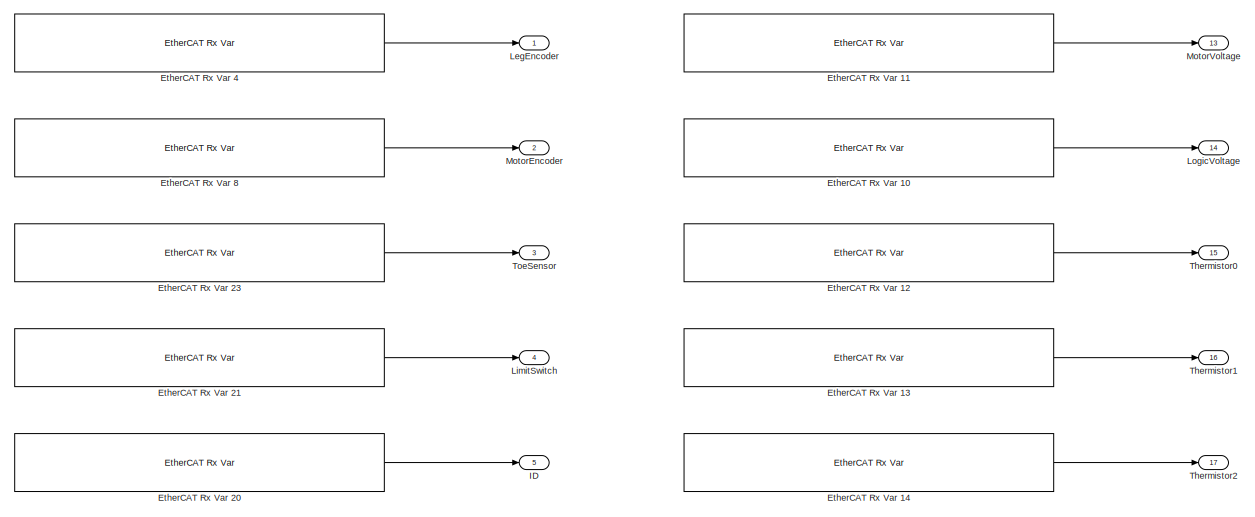
[diagram: DAQ_WITH_SAFETY/DAQ/LegMedulla_1L - part 1/3, top left region]
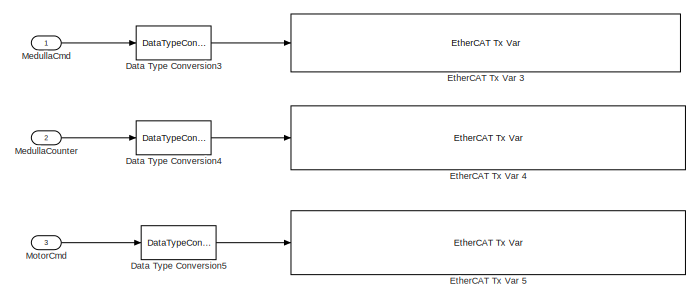
[diagram: DAQ_WITH_SAFETY/DAQ/LegMedulla_1L - part 2/3, top right region]
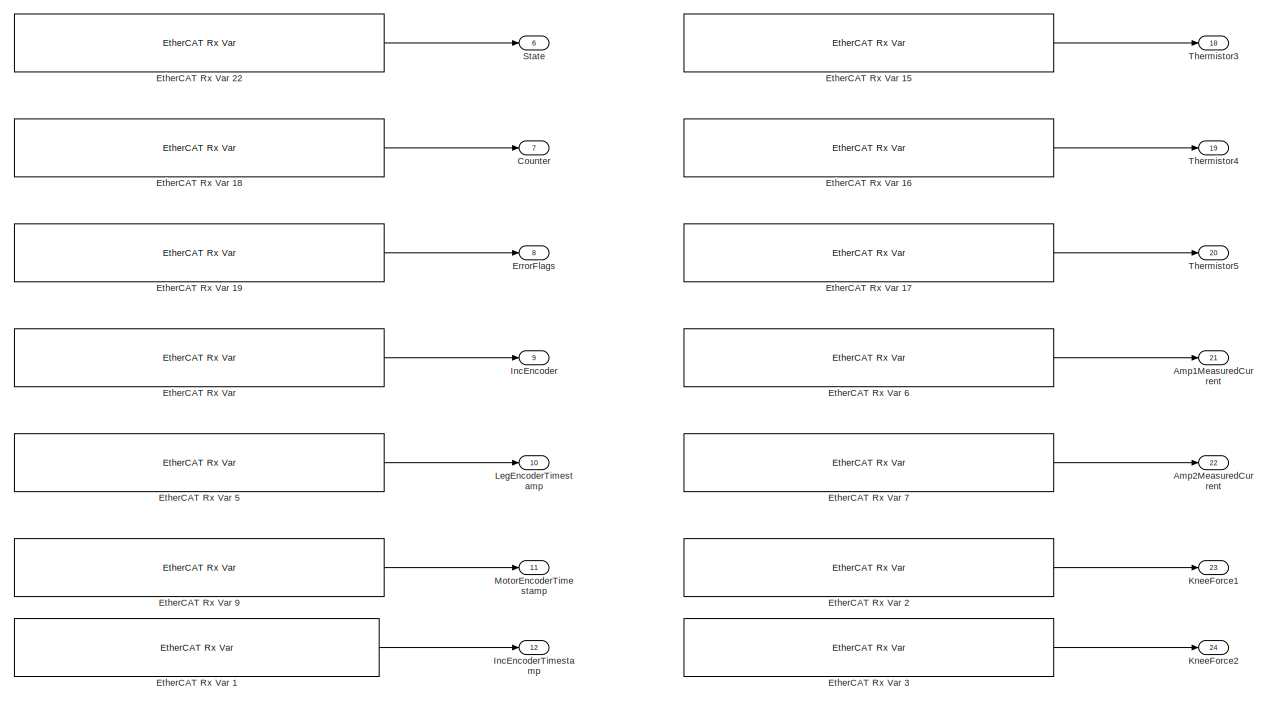
[diagram: DAQ_WITH_SAFETY/DAQ/LegMedulla_1L - part 3/3, bottom left region]
BLOCK [SubSystem] DAQ_WITH_SAFETY/DAQ/LegMedulla_1L
  FunctionWithSeparateData = off
  MaskHideContents = off
  MinAlgLoopOccurrences = off
  Opaque = off
  Ports = [3, 24]
  PropExecContextOutsideSubsystem = off
  RTWSystemCode = Auto
  RequestExecContextInheritance = off
  SID = 1:5122
BLOCK [Outport] DAQ_WITH_SAFETY/DAQ/LegMedulla_1L/Amp1MeasuredCurrent
  IconDisplay = Port number
  Port = 21
  SID = 1:5176
BLOCK [Outport] DAQ_WITH_SAFETY/DAQ/LegMedulla_1L/Amp2MeasuredCurrent
  IconDisplay = Port number
  Port = 22
  SID = 1:5177
BLOCK [Outport] DAQ_WITH_SAFETY/DAQ/LegMedulla_1L/Counter
  IconDisplay = Port number
  Port = 7
  SID = 1:5162
BLOCK [DataTypeConversion] DAQ_WITH_SAFETY/DAQ/LegMedulla_1L/Data Type Conversion3
  OutDataTypeStr = uint8
  RndMeth = Floor
  SID = 1:5126
  SaturateOnIntegerOverflow = off
BLOCK [DataTypeConversion] DAQ_WITH_SAFETY/DAQ/LegMedulla_1L/Data Type Conversion4
  OutDataTypeStr = uint16
  RndMeth = Floor
  SID = 1:5127
  SaturateOnIntegerOverflow = off
BLOCK [DataTypeConversion] DAQ_WITH_SAFETY/DAQ/LegMedulla_1L/Data Type Conversion5
  OutDataTypeStr = int32
  RndMeth = Floor
  SID = 1:5128
  SaturateOnIntegerOverflow = off
BLOCK [Outport] DAQ_WITH_SAFETY/DAQ/LegMedulla_1L/ErrorFlags
  IconDisplay = Port number
  Port = 8
  SID = 1:5163
BLOCK [Reference] DAQ_WITH_SAFETY/DAQ/LegMedulla_1L/EtherCAT Rx Var   REF=xpcethercatlib/EtherCAT Rx Var 
  Ports = [0, 1]
  Priority = 2
  SID = 1:5129
  SourceBlock = xpcethercatlib/EtherCAT Rx Var
  SourceType = xpcethercat_rx_var
  device_id = 0
  sample_time = 0.001000
  sig_dim = 1
  sig_name = Box 1 (ATRIAS 2.1 Leg (Medulla 1.5)).Incremental Encoder.Incremental Encoder
  sig_offset = 616
  sig_type = uint16
  type_size = 16
BLOCK [Reference] DAQ_WITH_SAFETY/DAQ/LegMedulla_1L/EtherCAT Rx Var 1  REF=xpcethercatlib/EtherCAT Rx Var 
  Ports = [0, 1]
  Priority = 2
  SID = 1:5130
  SourceBlock = xpcethercatlib/EtherCAT Rx Var
  SourceType = xpcethercat_rx_var
  device_id = 0
  sample_time = 0.001000
  sig_dim = 1
  sig_name = Box 1 (ATRIAS 2.1 Leg (Medulla 1.5)).Incremental Encoder.Incremental Encoder Timestamp
  sig_offset = 632
  sig_type = uint16
  type_size = 16
BLOCK [Reference] DAQ_WITH_SAFETY/DAQ/LegMedulla_1L/EtherCAT Rx Var 10  REF=xpcethercatlib/EtherCAT Rx Var 
  Ports = [0, 1]
  Priority = 2
  SID = 1:5131
  SourceBlock = xpcethercatlib/EtherCAT Rx Var
  SourceType = xpcethercat_rx_var
  device_id = 0
  sample_time = 0.001000
  sig_dim = 1
  sig_name = Box 1 (ATRIAS 2.1 Leg (Medulla 1.5)).Power.Logic Voltage
  sig_offset = 664
  sig_type = uint16
  type_size = 16
BLOCK [Reference] DAQ_WITH_SAFETY/DAQ/LegMedulla_1L/EtherCAT Rx Var 11  REF=xpcethercatlib/EtherCAT Rx Var 
  Ports = [0, 1]
  Priority = 2
  SID = 1:5132
  SourceBlock = xpcethercatlib/EtherCAT Rx Var
  SourceType = xpcethercat_rx_var
  device_id = 0
  sample_time = 0.001000
  sig_dim = 1
  sig_name = Box 1 (ATRIAS 2.1 Leg (Medulla 1.5)).Power.Motor Voltage
  sig_offset = 648
  sig_type = uint16
  type_size = 16
BLOCK [Reference] DAQ_WITH_SAFETY/DAQ/LegMedulla_1L/EtherCAT Rx Var 12  REF=xpcethercatlib/EtherCAT Rx Var 
  Ports = [0, 1]
  Priority = 2
  SID = 1:5133
  SourceBlock = xpcethercatlib/EtherCAT Rx Var
  SourceType = xpcethercat_rx_var
  device_id = 0
  sample_time = 0.001000
  sig_dim = 1
  sig_name = Box 1 (ATRIAS 2.1 Leg (Medulla 1.5)).Thermistors.Thermistor 0
  sig_offset = 680
  sig_type = uint16
  type_size = 16
BLOCK [Reference] DAQ_WITH_SAFETY/DAQ/LegMedulla_1L/EtherCAT Rx Var 13  REF=xpcethercatlib/EtherCAT Rx Var 
  Ports = [0, 1]
  Priority = 2
  SID = 1:5134
  SourceBlock = xpcethercatlib/EtherCAT Rx Var
  SourceType = xpcethercat_rx_var
  device_id = 0
  sample_time = 0.001000
  sig_dim = 1
  sig_name = Box 1 (ATRIAS 2.1 Leg (Medulla 1.5)).Thermistors.Thermistor 1
  sig_offset = 696
  sig_type = uint16
  type_size = 16
BLOCK [Reference] DAQ_WITH_SAFETY/DAQ/LegMedulla_1L/EtherCAT Rx Var 14  REF=xpcethercatlib/EtherCAT Rx Var 
  Ports = [0, 1]
  Priority = 2
  SID = 1:5135
  SourceBlock = xpcethercatlib/EtherCAT Rx Var
  SourceType = xpcethercat_rx_var
  device_id = 0
  sample_time = 0.001000
  sig_dim = 1
  sig_name = Box 1 (ATRIAS 2.1 Leg (Medulla 1.5)).Thermistors.Thermistor 2
  sig_offset = 712
  sig_type = uint16
  type_size = 16
BLOCK [Reference] DAQ_WITH_SAFETY/DAQ/LegMedulla_1L/EtherCAT Rx Var 15  REF=xpcethercatlib/EtherCAT Rx Var 
  Ports = [0, 1]
  Priority = 2
  SID = 1:5136
  SourceBlock = xpcethercatlib/EtherCAT Rx Var
  SourceType = xpcethercat_rx_var
  device_id = 0
  sample_time = 0.001000
  sig_dim = 1
  sig_name = Box 1 (ATRIAS 2.1 Leg (Medulla 1.5)).Thermistors.Thermistor 3
  sig_offset = 728
  sig_type = uint16
  type_size = 16
BLOCK [Reference] DAQ_WITH_SAFETY/DAQ/LegMedulla_1L/EtherCAT Rx Var 16  REF=xpcethercatlib/EtherCAT Rx Var 
  Ports = [0, 1]
  Priority = 2
  SID = 1:5137
  SourceBlock = xpcethercatlib/EtherCAT Rx Var
  SourceType = xpcethercat_rx_var
  device_id = 0
  sample_time = 0.001000
  sig_dim = 1
  sig_name = Box 1 (ATRIAS 2.1 Leg (Medulla 1.5)).Thermistors.Thermistor 4
  sig_offset = 744
  sig_type = uint16
  type_size = 16
BLOCK [Reference] DAQ_WITH_SAFETY/DAQ/LegMedulla_1L/EtherCAT Rx Var 17  REF=xpcethercatlib/EtherCAT Rx Var 
  Ports = [0, 1]
  Priority = 2
  SID = 1:5138
  SourceBlock = xpcethercatlib/EtherCAT Rx Var
  SourceType = xpcethercat_rx_var
  device_id = 0
  sample_time = 0.001000
  sig_dim = 1
  sig_name = Box 1 (ATRIAS 2.1 Leg (Medulla 1.5)).Thermistors.Thermistor 5
  sig_offset = 760
  sig_type = uint16
  type_size = 16
BLOCK [Reference] DAQ_WITH_SAFETY/DAQ/LegMedulla_1L/EtherCAT Rx Var 18  REF=xpcethercatlib/EtherCAT Rx Var 
  Ports = [0, 1]
  Priority = 2
  SID = 1:5139
  SourceBlock = xpcethercatlib/EtherCAT Rx Var
  SourceType = xpcethercat_rx_var
  device_id = 0
  sample_time = 0.001000
  sig_dim = 1
  sig_name = Box 1 (ATRIAS 2.1 Leg (Medulla 1.5)).uController Status.Counter
  sig_offset = 480
  sig_type = uint8
  type_size = 8
BLOCK [Reference] DAQ_WITH_SAFETY/DAQ/LegMedulla_1L/EtherCAT Rx Var 19  REF=xpcethercatlib/EtherCAT Rx Var 
  Ports = [0, 1]
  Priority = 2
  SID = 1:5140
  SourceBlock = xpcethercatlib/EtherCAT Rx Var
  SourceType = xpcethercat_rx_var
  device_id = 0
  sample_time = 0.001000
  sig_dim = 1
  sig_name = Box 1 (ATRIAS 2.1 Leg (Medulla 1.5)).uController Status.Error Flags
  sig_offset = 488
  sig_type = uint8
  type_size = 8
BLOCK [Reference] DAQ_WITH_SAFETY/DAQ/LegMedulla_1L/EtherCAT Rx Var 2  REF=xpcethercatlib/EtherCAT Rx Var 
  Ports = [0, 1]
  Priority = 2
  SID = 1:5141
  SourceBlock = xpcethercatlib/EtherCAT Rx Var
  SourceType = xpcethercat_rx_var
  device_id = 0
  sample_time = 0.001000
  sig_dim = 1
  sig_name = Box 1 (ATRIAS 2.1 Leg (Medulla 1.5)).Knee Force.Knee Force 1
  sig_offset = 808
  sig_type = uint16
  type_size = 16
BLOCK [Reference] DAQ_WITH_SAFETY/DAQ/LegMedulla_1L/EtherCAT Rx Var 20  REF=xpcethercatlib/EtherCAT Rx Var 
  Ports = [0, 1]
  Priority = 2
  SID = 1:5142
  SourceBlock = xpcethercatlib/EtherCAT Rx Var
  SourceType = xpcethercat_rx_var
  device_id = 0
  sample_time = 0.001000
  sig_dim = 1
  sig_name = Box 1 (ATRIAS 2.1 Leg (Medulla 1.5)).uController Status.ID
  sig_offset = 464
  sig_type = uint8
  type_size = 8
BLOCK [Reference] DAQ_WITH_SAFETY/DAQ/LegMedulla_1L/EtherCAT Rx Var 21  REF=xpcethercatlib/EtherCAT Rx Var 
  Ports = [0, 1]
  Priority = 2
  SID = 1:5143
  SourceBlock = xpcethercatlib/EtherCAT Rx Var
  SourceType = xpcethercat_rx_var
  device_id = 0
  sample_time = 0.001000
  sig_dim = 1
  sig_name = Box 1 (ATRIAS 2.1 Leg (Medulla 1.5)).uController Status.Limit Switch
  sig_offset = 496
  sig_type = uint8
  type_size = 8
BLOCK [Reference] DAQ_WITH_SAFETY/DAQ/LegMedulla_1L/EtherCAT Rx Var 22  REF=xpcethercatlib/EtherCAT Rx Var 
  Ports = [0, 1]
  Priority = 2
  SID = 1:5144
  SourceBlock = xpcethercatlib/EtherCAT Rx Var
  SourceType = xpcethercat_rx_var
  device_id = 0
  sample_time = 0.001000
  sig_dim = 1
  sig_name = Box 1 (ATRIAS 2.1 Leg (Medulla 1.5)).uController Status.State
  sig_offset = 472
  sig_type = uint8
  type_size = 8
BLOCK [Reference] DAQ_WITH_SAFETY/DAQ/LegMedulla_1L/EtherCAT Rx Var 23  REF=xpcethercatlib/EtherCAT Rx Var 
  Ports = [0, 1]
  Priority = 2
  SID = 1:5145
  SourceBlock = xpcethercatlib/EtherCAT Rx Var
  SourceType = xpcethercat_rx_var
  device_id = 0
  sample_time = 0.001000
  sig_dim = 1
  sig_name = Box 1 (ATRIAS 2.1 Leg (Medulla 1.5)).uController Status.Toe Sensor
  sig_offset = 504
  sig_type = uint16
  type_size = 16
BLOCK [Reference] DAQ_WITH_SAFETY/DAQ/LegMedulla_1L/EtherCAT Rx Var 3  REF=xpcethercatlib/EtherCAT Rx Var 
  Ports = [0, 1]
  Priority = 2
  SID = 1:5146
  SourceBlock = xpcethercatlib/EtherCAT Rx Var
  SourceType = xpcethercat_rx_var
  device_id = 0
  sample_time = 0.001000
  sig_dim = 1
  sig_name = Box 1 (ATRIAS 2.1 Leg (Medulla 1.5)).Knee Force.Knee Force 2
  sig_offset = 824
  sig_type = uint16
  type_size = 16
BLOCK [Reference] DAQ_WITH_SAFETY/DAQ/LegMedulla_1L/EtherCAT Rx Var 4  REF=xpcethercatlib/EtherCAT Rx Var 
  Ports = [0, 1]
  Priority = 2
  SID = 1:5147
  SourceBlock = xpcethercatlib/EtherCAT Rx Var
  SourceType = xpcethercat_rx_var
  device_id = 0
  sample_time = 0.001000
  sig_dim = 1
  sig_name = Box 1 (ATRIAS 2.1 Leg (Medulla 1.5)).Leg Encoder.Leg Encoder
  sig_offset = 568
  sig_type = uint32
  type_size = 32
BLOCK [Reference] DAQ_WITH_SAFETY/DAQ/LegMedulla_1L/EtherCAT Rx Var 5  REF=xpcethercatlib/EtherCAT Rx Var 
  Ports = [0, 1]
  Priority = 2
  SID = 1:5148
  SourceBlock = xpcethercatlib/EtherCAT Rx Var
  SourceType = xpcethercat_rx_var
  device_id = 0
  sample_time = 0.001000
  sig_dim = 1
  sig_name = Box 1 (ATRIAS 2.1 Leg (Medulla 1.5)).Leg Encoder.Leg Encoder Timestamp
  sig_offset = 600
  sig_type = uint16
  type_size = 16
BLOCK [Reference] DAQ_WITH_SAFETY/DAQ/LegMedulla_1L/EtherCAT Rx Var 6  REF=xpcethercatlib/EtherCAT Rx Var 
  Ports = [0, 1]
  Priority = 2
  SID = 1:5149
  SourceBlock = xpcethercatlib/EtherCAT Rx Var
  SourceType = xpcethercat_rx_var
  device_id = 0
  sample_time = 0.001000
  sig_dim = 1
  sig_name = Box 1 (ATRIAS 2.1 Leg (Medulla 1.5)).Measured Current.Amp 1 Measured Current
  sig_offset = 776
  sig_type = int16
  type_size = 16
BLOCK [Reference] DAQ_WITH_SAFETY/DAQ/LegMedulla_1L/EtherCAT Rx Var 7  REF=xpcethercatlib/EtherCAT Rx Var 
  Ports = [0, 1]
  Priority = 2
  SID = 1:5150
  SourceBlock = xpcethercatlib/EtherCAT Rx Var
  SourceType = xpcethercat_rx_var
  device_id = 0
  sample_time = 0.001000
  sig_dim = 1
  sig_name = Box 1 (ATRIAS 2.1 Leg (Medulla 1.5)).Measured Current.Amp 2 Measured Current
  sig_offset = 792
  sig_type = int16
  type_size = 16
BLOCK [Reference] DAQ_WITH_SAFETY/DAQ/LegMedulla_1L/EtherCAT Rx Var 8  REF=xpcethercatlib/EtherCAT Rx Var 
  Ports = [0, 1]
  Priority = 2
  SID = 1:5151
  SourceBlock = xpcethercatlib/EtherCAT Rx Var
  SourceType = xpcethercat_rx_var
  device_id = 0
  sample_time = 0.001000
  sig_dim = 1
  sig_name = Box 1 (ATRIAS 2.1 Leg (Medulla 1.5)).Motor Encoder.Motor Encoder
  sig_offset = 520
  sig_type = uint32
  type_size = 32
BLOCK [Reference] DAQ_WITH_SAFETY/DAQ/LegMedulla_1L/EtherCAT Rx Var 9  REF=xpcethercatlib/EtherCAT Rx Var 
  Ports = [0, 1]
  Priority = 2
  SID = 1:5152
  SourceBlock = xpcethercatlib/EtherCAT Rx Var
  SourceType = xpcethercat_rx_var
  device_id = 0
  sample_time = 0.001000
  sig_dim = 1
  sig_name = Box 1 (ATRIAS 2.1 Leg (Medulla 1.5)).Motor Encoder.Motor Encoder Timestamp
  sig_offset = 552
  sig_type = uint16
  type_size = 16
BLOCK [Reference] DAQ_WITH_SAFETY/DAQ/LegMedulla_1L/EtherCAT Tx Var 3  REF=xpcethercatlib/EtherCAT Tx Var 
  Ports = [1]
  Priority = 3
  SID = 1:5153
  SourceBlock = xpcethercatlib/EtherCAT Tx Var
  SourceType = xpcethercat_tx_var
  device_id = 0
  sample_time = 0.001000
  sig_dim = 1
  sig_name = Box 1 (ATRIAS 2.1 Leg (Medulla 1.5)).uControllerInput.Command
  sig_offset = 464
  sig_type = uint8
  type_size = 8
BLOCK [Reference] DAQ_WITH_SAFETY/DAQ/LegMedulla_1L/EtherCAT Tx Var 4  REF=xpcethercatlib/EtherCAT Tx Var 
  Ports = [1]
  Priority = 3
  SID = 1:5154
  SourceBlock = xpcethercatlib/EtherCAT Tx Var
  SourceType = xpcethercat_tx_var
  device_id = 0
  sample_time = 0.001000
  sig_dim = 1
  sig_name = Box 1 (ATRIAS 2.1 Leg (Medulla 1.5)).uControllerInput.Counter
  sig_offset = 472
  sig_type = uint16
  type_size = 16
BLOCK [Reference] DAQ_WITH_SAFETY/DAQ/LegMedulla_1L/EtherCAT Tx Var 5  REF=xpcethercatlib/EtherCAT Tx Var 
  Ports = [1]
  Priority = 3
  SID = 1:5155
  SourceBlock = xpcethercatlib/EtherCAT Tx Var
  SourceType = xpcethercat_tx_var
  device_id = 0
  sample_time = 0.001000
  sig_dim = 1
  sig_name = Box 1 (ATRIAS 2.1 Leg (Medulla 1.5)).uControllerInput.Motor Current
  sig_offset = 488
  sig_type = int32
  type_size = 32
BLOCK [Outport] DAQ_WITH_SAFETY/DAQ/LegMedulla_1L/ID
  IconDisplay = Port number
  Port = 5
  SID = 1:5160
BLOCK [Outport] DAQ_WITH_SAFETY/DAQ/LegMedulla_1L/IncEncoder
  IconDisplay = Port number
  Port = 9
  SID = 1:5164
BLOCK [Outport] DAQ_WITH_SAFETY/DAQ/LegMedulla_1L/IncEncoderTimestamp
  IconDisplay = Port number
  Port = 12
  SID = 1:5167
BLOCK [Outport] DAQ_WITH_SAFETY/DAQ/LegMedulla_1L/KneeForce1
  IconDisplay = Port number
  Port = 23
  SID = 1:5178
BLOCK [Outport] DAQ_WITH_SAFETY/DAQ/LegMedulla_1L/KneeForce2
  IconDisplay = Port number
  Port = 24
  SID = 1:5179
BLOCK [Outport] DAQ_WITH_SAFETY/DAQ/LegMedulla_1L/LegEncoder
  IconDisplay = Port number
  SID = 1:5156
BLOCK [Outport] DAQ_WITH_SAFETY/DAQ/LegMedulla_1L/LegEncoderTimestamp
  IconDisplay = Port number
  Port = 10
  SID = 1:5165
BLOCK [Outport] DAQ_WITH_SAFETY/DAQ/LegMedulla_1L/LimitSwitch
  IconDisplay = Port number
  Port = 4
  SID = 1:5159
BLOCK [Outport] DAQ_WITH_SAFETY/DAQ/LegMedulla_1L/LogicVoltage
  IconDisplay = Port number
  Port = 14
  SID = 1:5169
BLOCK [Inport] DAQ_WITH_SAFETY/DAQ/LegMedulla_1L/MedullaCmd
  IconDisplay = Port number
  SID = 1:5123
BLOCK [Inport] DAQ_WITH_SAFETY/DAQ/LegMedulla_1L/MedullaCounter
  IconDisplay = Port number
  Port = 2
  SID = 1:5124
BLOCK [Inport] DAQ_WITH_SAFETY/DAQ/LegMedulla_1L/MotorCmd
  IconDisplay = Port number
  Port = 3
  SID = 1:5125
BLOCK [Outport] DAQ_WITH_SAFETY/DAQ/LegMedulla_1L/MotorEncoder
  IconDisplay = Port number
  Port = 2
  SID = 1:5157
BLOCK [Outport] DAQ_WITH_SAFETY/DAQ/LegMedulla_1L/MotorEncoderTimestamp
  IconDisplay = Port number
  Port = 11
  SID = 1:5166
BLOCK [Outport] DAQ_WITH_SAFETY/DAQ/LegMedulla_1L/MotorVoltage
  IconDisplay = Port number
  Port = 13
  SID = 1:5168
BLOCK [Outport] DAQ_WITH_SAFETY/DAQ/LegMedulla_1L/State
  IconDisplay = Port number
  Port = 6
  SID = 1:5161
BLOCK [Outport] DAQ_WITH_SAFETY/DAQ/LegMedulla_1L/Thermistor0
  IconDisplay = Port number
  Port = 15
  SID = 1:5170
BLOCK [Outport] DAQ_WITH_SAFETY/DAQ/LegMedulla_1L/Thermistor1
  IconDisplay = Port number
  Port = 16
  SID = 1:5171
BLOCK [Outport] DAQ_WITH_SAFETY/DAQ/LegMedulla_1L/Thermistor2
  IconDisplay = Port number
  Port = 17
  SID = 1:5172
BLOCK [Outport] DAQ_WITH_SAFETY/DAQ/LegMedulla_1L/Thermistor3
  IconDisplay = Port number
  Port = 18
  SID = 1:5173
BLOCK [Outport] DAQ_WITH_SAFETY/DAQ/LegMedulla_1L/Thermistor4
  IconDisplay = Port number
  Port = 19
  SID = 1:5174
BLOCK [Outport] DAQ_WITH_SAFETY/DAQ/LegMedulla_1L/Thermistor5
  IconDisplay = Port number
  Port = 20
  SID = 1:5175
BLOCK [Outport] DAQ_WITH_SAFETY/DAQ/LegMedulla_1L/ToeSensor
  IconDisplay = Port number
  Port = 3
  SID = 1:5158
BLOCK [SubSystem] DAQ_WITH_SAFETY/DAQ/LegMedulla_1R
  FunctionWithSeparateData = off
  MaskHideContents = off
  MinAlgLoopOccurrences = off
  Opaque = off
  Ports = [3, 24]
  PropExecContextOutsideSubsystem = off
  RTWSystemCode = Auto
  RequestExecContextInheritance = off
  SID = 1:5205
BLOCK [Outport] DAQ_WITH_SAFETY/DAQ/LegMedulla_1R/Amp1MeasuredCurrent
  IconDisplay = Port number
  Port = 21
  SID = 1:5259
BLOCK [Outport] DAQ_WITH_SAFETY/DAQ/LegMedulla_1R/Amp2MeasuredCurrent
  IconDisplay = Port number
  Port = 22
  SID = 1:5260
BLOCK [Outport] DAQ_WITH_SAFETY/DAQ/LegMedulla_1R/Counter
  IconDisplay = Port number
  Port = 7
  SID = 1:5245
BLOCK [DataTypeConversion] DAQ_WITH_SAFETY/DAQ/LegMedulla_1R/Data Type Conversion3
  OutDataTypeStr = uint8
  RndMeth = Floor
  SID = 1:5209
  SaturateOnIntegerOverflow = off
BLOCK [DataTypeConversion] DAQ_WITH_SAFETY/DAQ/LegMedulla_1R/Data Type Conversion4
  OutDataTypeStr = uint16
  RndMeth = Floor
  SID = 1:5210
  SaturateOnIntegerOverflow = off
BLOCK [DataTypeConversion] DAQ_WITH_SAFETY/DAQ/LegMedulla_1R/Data Type Conversion5
  OutDataTypeStr = int32
  RndMeth = Floor
  SID = 1:5211
  SaturateOnIntegerOverflow = off
BLOCK [Outport] DAQ_WITH_SAFETY/DAQ/LegMedulla_1R/ErrorFlags
  IconDisplay = Port number
  Port = 8
  SID = 1:5246
BLOCK [Reference] DAQ_WITH_SAFETY/DAQ/LegMedulla_1R/EtherCAT Rx Var   REF=xpcethercatlib/EtherCAT Rx Var 
  Ports = [0, 1]
  Priority = 2
  SID = 1:5212
  SourceBlock = xpcethercatlib/EtherCAT Rx Var
  SourceType = xpcethercat_rx_var
  device_id = 0
  sample_time = 0.001000
  sig_dim = 1
  sig_name = Box 3 (ATRIAS 2.1 Leg (Medulla 1.5)).Incremental Encoder.Incremental Encoder
  sig_offset = 1368
  sig_type = uint16
  type_size = 16
BLOCK [Reference] DAQ_WITH_SAFETY/DAQ/LegMedulla_1R/EtherCAT Rx Var 1  REF=xpcethercatlib/EtherCAT Rx Var 
  Ports = [0, 1]
  Priority = 2
  SID = 1:5213
  SourceBlock = xpcethercatlib/EtherCAT Rx Var
  SourceType = xpcethercat_rx_var
  device_id = 0
  sample_time = 0.001000
  sig_dim = 1
  sig_name = Box 3 (ATRIAS 2.1 Leg (Medulla 1.5)).Incremental Encoder.Incremental Encoder Timestamp
  sig_offset = 1384
  sig_type = uint16
  type_size = 16
BLOCK [Reference] DAQ_WITH_SAFETY/DAQ/LegMedulla_1R/EtherCAT Rx Var 10  REF=xpcethercatlib/EtherCAT Rx Var 
  Ports = [0, 1]
  Priority = 2
  SID = 1:5214
  SourceBlock = xpcethercatlib/EtherCAT Rx Var
  SourceType = xpcethercat_rx_var
  device_id = 0
  sample_time = 0.001000
  sig_dim = 1
  sig_name = Box 3 (ATRIAS 2.1 Leg (Medulla 1.5)).Power.Logic Voltage
  sig_offset = 1416
  sig_type = uint16
  type_size = 16
BLOCK [Reference] DAQ_WITH_SAFETY/DAQ/LegMedulla_1R/EtherCAT Rx Var 11  REF=xpcethercatlib/EtherCAT Rx Var 
  Ports = [0, 1]
  Priority = 2
  SID = 1:5215
  SourceBlock = xpcethercatlib/EtherCAT Rx Var
  SourceType = xpcethercat_rx_var
  device_id = 0
  sample_time = 0.001000
  sig_dim = 1
  sig_name = Box 3 (ATRIAS 2.1 Leg (Medulla 1.5)).Power.Motor Voltage
  sig_offset = 1400
  sig_type = uint16
  type_size = 16
BLOCK [Reference] DAQ_WITH_SAFETY/DAQ/LegMedulla_1R/EtherCAT Rx Var 12  REF=xpcethercatlib/EtherCAT Rx Var 
  Ports = [0, 1]
  Priority = 2
  SID = 1:5216
  SourceBlock = xpcethercatlib/EtherCAT Rx Var
  SourceType = xpcethercat_rx_var
  device_id = 0
  sample_time = 0.001000
  sig_dim = 1
  sig_name = Box 3 (ATRIAS 2.1 Leg (Medulla 1.5)).Thermistors.Thermistor 0
  sig_offset = 1432
  sig_type = uint16
  type_size = 16
BLOCK [Reference] DAQ_WITH_SAFETY/DAQ/LegMedulla_1R/EtherCAT Rx Var 13  REF=xpcethercatlib/EtherCAT Rx Var 
  Ports = [0, 1]
  Priority = 2
  SID = 1:5217
  SourceBlock = xpcethercatlib/EtherCAT Rx Var
  SourceType = xpcethercat_rx_var
  device_id = 0
  sample_time = 0.001000
  sig_dim = 1
  sig_name = Box 3 (ATRIAS 2.1 Leg (Medulla 1.5)).Thermistors.Thermistor 1
  sig_offset = 1448
  sig_type = uint16
  type_size = 16
BLOCK [Reference] DAQ_WITH_SAFETY/DAQ/LegMedulla_1R/EtherCAT Rx Var 14  REF=xpcethercatlib/EtherCAT Rx Var 
  Ports = [0, 1]
  Priority = 2
  SID = 1:5218
  SourceBlock = xpcethercatlib/EtherCAT Rx Var
  SourceType = xpcethercat_rx_var
  device_id = 0
  sample_time = 0.001000
  sig_dim = 1
  sig_name = Box 3 (ATRIAS 2.1 Leg (Medulla 1.5)).Thermistors.Thermistor 2
  sig_offset = 1464
  sig_type = uint16
  type_size = 16
BLOCK [Reference] DAQ_WITH_SAFETY/DAQ/LegMedulla_1R/EtherCAT Rx Var 15  REF=xpcethercatlib/EtherCAT Rx Var 
  Ports = [0, 1]
  Priority = 2
  SID = 1:5219
  SourceBlock = xpcethercatlib/EtherCAT Rx Var
  SourceType = xpcethercat_rx_var
  device_id = 0
  sample_time = 0.001000
  sig_dim = 1
  sig_name = Box 3 (ATRIAS 2.1 Leg (Medulla 1.5)).Thermistors.Thermistor 3
  sig_offset = 1480
  sig_type = uint16
  type_size = 16
BLOCK [Reference] DAQ_WITH_SAFETY/DAQ/LegMedulla_1R/EtherCAT Rx Var 16  REF=xpcethercatlib/EtherCAT Rx Var 
  Ports = [0, 1]
  Priority = 2
  SID = 1:5220
  SourceBlock = xpcethercatlib/EtherCAT Rx Var
  SourceType = xpcethercat_rx_var
  device_id = 0
  sample_time = 0.001000
  sig_dim = 1
  sig_name = Box 3 (ATRIAS 2.1 Leg (Medulla 1.5)).Thermistors.Thermistor 4
  sig_offset = 1496
  sig_type = uint16
  type_size = 16
BLOCK [Reference] DAQ_WITH_SAFETY/DAQ/LegMedulla_1R/EtherCAT Rx Var 17  REF=xpcethercatlib/EtherCAT Rx Var 
  Ports = [0, 1]
  Priority = 2
  SID = 1:5221
  SourceBlock = xpcethercatlib/EtherCAT Rx Var
  SourceType = xpcethercat_rx_var
  device_id = 0
  sample_time = 0.001000
  sig_dim = 1
  sig_name = Box 3 (ATRIAS 2.1 Leg (Medulla 1.5)).Thermistors.Thermistor 5
  sig_offset = 1512
  sig_type = uint16
  type_size = 16
BLOCK [Reference] DAQ_WITH_SAFETY/DAQ/LegMedulla_1R/EtherCAT Rx Var 18  REF=xpcethercatlib/EtherCAT Rx Var 
  Ports = [0, 1]
  Priority = 2
  SID = 1:5222
  SourceBlock = xpcethercatlib/EtherCAT Rx Var
  SourceType = xpcethercat_rx_var
  device_id = 0
  sample_time = 0.001000
  sig_dim = 1
  sig_name = Box 3 (ATRIAS 2.1 Leg (Medulla 1.5)).uController Status.Counter
  sig_offset = 1232
  sig_type = uint8
  type_size = 8
BLOCK [Reference] DAQ_WITH_SAFETY/DAQ/LegMedulla_1R/EtherCAT Rx Var 19  REF=xpcethercatlib/EtherCAT Rx Var 
  Ports = [0, 1]
  Priority = 2
  SID = 1:5223
  SourceBlock = xpcethercatlib/EtherCAT Rx Var
  SourceType = xpcethercat_rx_var
  device_id = 0
  sample_time = 0.001000
  sig_dim = 1
  sig_name = Box 3 (ATRIAS 2.1 Leg (Medulla 1.5)).uController Status.Error Flags
  sig_offset = 1240
  sig_type = uint8
  type_size = 8
BLOCK [Reference] DAQ_WITH_SAFETY/DAQ/LegMedulla_1R/EtherCAT Rx Var 2  REF=xpcethercatlib/EtherCAT Rx Var 
  Ports = [0, 1]
  Priority = 2
  SID = 1:5224
  SourceBlock = xpcethercatlib/EtherCAT Rx Var
  SourceType = xpcethercat_rx_var
  device_id = 0
  sample_time = 0.001000
  sig_dim = 1
  sig_name = Box 3 (ATRIAS 2.1 Leg (Medulla 1.5)).Knee Force.Knee Force 1
  sig_offset = 1560
  sig_type = uint16
  type_size = 16
BLOCK [Reference] DAQ_WITH_SAFETY/DAQ/LegMedulla_1R/EtherCAT Rx Var 20  REF=xpcethercatlib/EtherCAT Rx Var 
  Ports = [0, 1]
  Priority = 2
  SID = 1:5225
  SourceBlock = xpcethercatlib/EtherCAT Rx Var
  SourceType = xpcethercat_rx_var
  device_id = 0
  sample_time = 0.001000
  sig_dim = 1
  sig_name = Box 3 (ATRIAS 2.1 Leg (Medulla 1.5)).uController Status.ID
  sig_offset = 1216
  sig_type = uint8
  type_size = 8
BLOCK [Reference] DAQ_WITH_SAFETY/DAQ/LegMedulla_1R/EtherCAT Rx Var 21  REF=xpcethercatlib/EtherCAT Rx Var 
  Ports = [0, 1]
  Priority = 2
  SID = 1:5226
  SourceBlock = xpcethercatlib/EtherCAT Rx Var
  SourceType = xpcethercat_rx_var
  device_id = 0
  sample_time = 0.001000
  sig_dim = 1
  sig_name = Box 3 (ATRIAS 2.1 Leg (Medulla 1.5)).uController Status.Limit Switch
  sig_offset = 1248
  sig_type = uint8
  type_size = 8
BLOCK [Reference] DAQ_WITH_SAFETY/DAQ/LegMedulla_1R/EtherCAT Rx Var 22  REF=xpcethercatlib/EtherCAT Rx Var 
  Ports = [0, 1]
  Priority = 2
  SID = 1:5227
  SourceBlock = xpcethercatlib/EtherCAT Rx Var
  SourceType = xpcethercat_rx_var
  device_id = 0
  sample_time = 0.001000
  sig_dim = 1
  sig_name = Box 3 (ATRIAS 2.1 Leg (Medulla 1.5)).uController Status.State
  sig_offset = 1224
  sig_type = uint8
  type_size = 8
BLOCK [Reference] DAQ_WITH_SAFETY/DAQ/LegMedulla_1R/EtherCAT Rx Var 23  REF=xpcethercatlib/EtherCAT Rx Var 
  Ports = [0, 1]
  Priority = 2
  SID = 1:5228
  SourceBlock = xpcethercatlib/EtherCAT Rx Var
  SourceType = xpcethercat_rx_var
  device_id = 0
  sample_time = 0.001000
  sig_dim = 1
  sig_name = Box 3 (ATRIAS 2.1 Leg (Medulla 1.5)).uController Status.Toe Sensor
  sig_offset = 1256
  sig_type = uint16
  type_size = 16
BLOCK [Reference] DAQ_WITH_SAFETY/DAQ/LegMedulla_1R/EtherCAT Rx Var 3  REF=xpcethercatlib/EtherCAT Rx Var 
  Ports = [0, 1]
  Priority = 2
  SID = 1:5229
  SourceBlock = xpcethercatlib/EtherCAT Rx Var
  SourceType = xpcethercat_rx_var
  device_id = 0
  sample_time = 0.001000
  sig_dim = 1
  sig_name = Box 3 (ATRIAS 2.1 Leg (Medulla 1.5)).Knee Force.Knee Force 2
  sig_offset = 1576
  sig_type = uint16
  type_size = 16
BLOCK [Reference] DAQ_WITH_SAFETY/DAQ/LegMedulla_1R/EtherCAT Rx Var 4  REF=xpcethercatlib/EtherCAT Rx Var 
  Ports = [0, 1]
  Priority = 2
  SID = 1:5230
  SourceBlock = xpcethercatlib/EtherCAT Rx Var
  SourceType = xpcethercat_rx_var
  device_id = 0
  sample_time = 0.001000
  sig_dim = 1
  sig_name = Box 3 (ATRIAS 2.1 Leg (Medulla 1.5)).Leg Encoder.Leg Encoder
  sig_offset = 1320
  sig_type = uint32
  type_size = 32
BLOCK [Reference] DAQ_WITH_SAFETY/DAQ/LegMedulla_1R/EtherCAT Rx Var 5  REF=xpcethercatlib/EtherCAT Rx Var 
  Ports = [0, 1]
  Priority = 2
  SID = 1:5231
  SourceBlock = xpcethercatlib/EtherCAT Rx Var
  SourceType = xpcethercat_rx_var
  device_id = 0
  sample_time = 0.001000
  sig_dim = 1
  sig_name = Box 3 (ATRIAS 2.1 Leg (Medulla 1.5)).Leg Encoder.Leg Encoder Timestamp
  sig_offset = 1352
  sig_type = uint16
  type_size = 16
BLOCK [Reference] DAQ_WITH_SAFETY/DAQ/LegMedulla_1R/EtherCAT Rx Var 6  REF=xpcethercatlib/EtherCAT Rx Var 
  Ports = [0, 1]
  Priority = 2
  SID = 1:5232
  SourceBlock = xpcethercatlib/EtherCAT Rx Var
  SourceType = xpcethercat_rx_var
  device_id = 0
  sample_time = 0.001000
  sig_dim = 1
  sig_name = Box 3 (ATRIAS 2.1 Leg (Medulla 1.5)).Measured Current.Amp 1 Measured Current
  sig_offset = 1528
  sig_type = int16
  type_size = 16
BLOCK [Reference] DAQ_WITH_SAFETY/DAQ/LegMedulla_1R/EtherCAT Rx Var 7  REF=xpcethercatlib/EtherCAT Rx Var 
  Ports = [0, 1]
  Priority = 2
  SID = 1:5233
  SourceBlock = xpcethercatlib/EtherCAT Rx Var
  SourceType = xpcethercat_rx_var
  device_id = 0
  sample_time = 0.001000
  sig_dim = 1
  sig_name = Box 3 (ATRIAS 2.1 Leg (Medulla 1.5)).Measured Current.Amp 2 Measured Current
  sig_offset = 1544
  sig_type = int16
  type_size = 16
BLOCK [Reference] DAQ_WITH_SAFETY/DAQ/LegMedulla_1R/EtherCAT Rx Var 8  REF=xpcethercatlib/EtherCAT Rx Var 
  Ports = [0, 1]
  Priority = 2
  SID = 1:5234
  SourceBlock = xpcethercatlib/EtherCAT Rx Var
  SourceType = xpcethercat_rx_var
  device_id = 0
  sample_time = 0.001000
  sig_dim = 1
  sig_name = Box 3 (ATRIAS 2.1 Leg (Medulla 1.5)).Motor Encoder.Motor Encoder
  sig_offset = 1272
  sig_type = uint32
  type_size = 32
BLOCK [Reference] DAQ_WITH_SAFETY/DAQ/LegMedulla_1R/EtherCAT Rx Var 9  REF=xpcethercatlib/EtherCAT Rx Var 
  Ports = [0, 1]
  Priority = 2
  SID = 1:5235
  SourceBlock = xpcethercatlib/EtherCAT Rx Var
  SourceType = xpcethercat_rx_var
  device_id = 0
  sample_time = 0.001000
  sig_dim = 1
  sig_name = Box 3 (ATRIAS 2.1 Leg (Medulla 1.5)).Motor Encoder.Motor Encoder Timestamp
  sig_offset = 1304
  sig_type = uint16
  type_size = 16
BLOCK [Reference] DAQ_WITH_SAFETY/DAQ/LegMedulla_1R/EtherCAT Tx Var 3  REF=xpcethercatlib/EtherCAT Tx Var 
  Ports = [1]
  Priority = 3
  SID = 1:5236
  SourceBlock = xpcethercatlib/EtherCAT Tx Var
  SourceType = xpcethercat_tx_var
  device_id = 0
  sample_time = 0.001000
  sig_dim = 1
  sig_name = Box 3 (ATRIAS 2.1 Leg (Medulla 1.5)).uControllerInput.Command
  sig_offset = 1216
  sig_type = uint8
  type_size = 8
BLOCK [Reference] DAQ_WITH_SAFETY/DAQ/LegMedulla_1R/EtherCAT Tx Var 4  REF=xpcethercatlib/EtherCAT Tx Var 
  Ports = [1]
  Priority = 3
  SID = 1:5237
  SourceBlock = xpcethercatlib/EtherCAT Tx Var
  SourceType = xpcethercat_tx_var
  device_id = 0
  sample_time = 0.001000
  sig_dim = 1
  sig_name = Box 3 (ATRIAS 2.1 Leg (Medulla 1.5)).uControllerInput.Counter
  sig_offset = 1224
  sig_type = uint16
  type_size = 16
BLOCK [Reference] DAQ_WITH_SAFETY/DAQ/LegMedulla_1R/EtherCAT Tx Var 5  REF=xpcethercatlib/EtherCAT Tx Var 
  Ports = [1]
  Priority = 3
  SID = 1:5238
  SourceBlock = xpcethercatlib/EtherCAT Tx Var
  SourceType = xpcethercat_tx_var
  device_id = 0
  sample_time = 0.001000
  sig_dim = 1
  sig_name = Box 3 (ATRIAS 2.1 Leg (Medulla 1.5)).uControllerInput.Motor Current
  sig_offset = 1240
  sig_type = int32
  type_size = 32
BLOCK [Outport] DAQ_WITH_SAFETY/DAQ/LegMedulla_1R/ID
  IconDisplay = Port number
  Port = 5
  SID = 1:5243
BLOCK [Outport] DAQ_WITH_SAFETY/DAQ/LegMedulla_1R/IncEncoder
  IconDisplay = Port number
  Port = 9
  SID = 1:5247
BLOCK [Outport] DAQ_WITH_SAFETY/DAQ/LegMedulla_1R/IncEncoderTimestamp
  IconDisplay = Port number
  Port = 12
  SID = 1:5250
BLOCK [Outport] DAQ_WITH_SAFETY/DAQ/LegMedulla_1R/KneeForce1
  IconDisplay = Port number
  Port = 23
  SID = 1:5261
BLOCK [Outport] DAQ_WITH_SAFETY/DAQ/LegMedulla_1R/KneeForce2
  IconDisplay = Port number
  Port = 24
  SID = 1:5262
BLOCK [Outport] DAQ_WITH_SAFETY/DAQ/LegMedulla_1R/LegEncoder
  IconDisplay = Port number
  SID = 1:5239
BLOCK [Outport] DAQ_WITH_SAFETY/DAQ/LegMedulla_1R/LegEncoderTimestamp
  IconDisplay = Port number
  Port = 10
  SID = 1:5248
BLOCK [Outport] DAQ_WITH_SAFETY/DAQ/LegMedulla_1R/LimitSwitch
  IconDisplay = Port number
  Port = 4
  SID = 1:5242
BLOCK [Outport] DAQ_WITH_SAFETY/DAQ/LegMedulla_1R/LogicVoltage
  IconDisplay = Port number
  Port = 14
  SID = 1:5252
BLOCK [Inport] DAQ_WITH_SAFETY/DAQ/LegMedulla_1R/MedullaCmd
  IconDisplay = Port number
  SID = 1:5206
BLOCK [Inport] DAQ_WITH_SAFETY/DAQ/LegMedulla_1R/MedullaCounter
  IconDisplay = Port number
  Port = 2
  SID = 1:5207
BLOCK [Inport] DAQ_WITH_SAFETY/DAQ/LegMedulla_1R/MotorCmd
  IconDisplay = Port number
  Port = 3
  SID = 1:5208
BLOCK [Outport] DAQ_WITH_SAFETY/DAQ/LegMedulla_1R/MotorEncoder
  IconDisplay = Port number
  Port = 2
  SID = 1:5240
BLOCK [Outport] DAQ_WITH_SAFETY/DAQ/LegMedulla_1R/MotorEncoderTimestamp
  IconDisplay = Port number
  Port = 11
  SID = 1:5249
BLOCK [Outport] DAQ_WITH_SAFETY/DAQ/LegMedulla_1R/MotorVoltage
  IconDisplay = Port number
  Port = 13
  SID = 1:5251
BLOCK [Outport] DAQ_WITH_SAFETY/DAQ/LegMedulla_1R/State
  IconDisplay = Port number
  Port = 6
  SID = 1:5244
BLOCK [Outport] DAQ_WITH_SAFETY/DAQ/LegMedulla_1R/Thermistor0
  IconDisplay = Port number
  Port = 15
  SID = 1:5253
BLOCK [Outport] DAQ_WITH_SAFETY/DAQ/LegMedulla_1R/Thermistor1
  IconDisplay = Port number
  Port = 16
  SID = 1:5254
BLOCK [Outport] DAQ_WITH_SAFETY/DAQ/LegMedulla_1R/Thermistor2
  IconDisplay = Port number
  Port = 17
  SID = 1:5255
BLOCK [Outport] DAQ_WITH_SAFETY/DAQ/LegMedulla_1R/Thermistor3
  IconDisplay = Port number
  Port = 18
  SID = 1:5256
BLOCK [Outport] DAQ_WITH_SAFETY/DAQ/LegMedulla_1R/Thermistor4
  IconDisplay = Port number
  Port = 19
  SID = 1:5257
BLOCK [Outport] DAQ_WITH_SAFETY/DAQ/LegMedulla_1R/Thermistor5
  IconDisplay = Port number
  Port = 20
  SID = 1:5258
BLOCK [Outport] DAQ_WITH_SAFETY/DAQ/LegMedulla_1R/ToeSensor
  IconDisplay = Port number
  Port = 3
  SID = 1:5241
BLOCK [SubSystem] DAQ_WITH_SAFETY/DAQ/LegMedulla_2L
  FunctionWithSeparateData = off
  MaskHideContents = off
  MinAlgLoopOccurrences = off
  Opaque = off
  Ports = [3, 24]
  PropExecContextOutsideSubsystem = off
  RTWSystemCode = Auto
  RequestExecContextInheritance = off
  SID = 1:5288
BLOCK [Outport] DAQ_WITH_SAFETY/DAQ/LegMedulla_2L/Amp1MeasuredCurrent
  IconDisplay = Port number
  Port = 21
  SID = 1:5342
BLOCK [Outport] DAQ_WITH_SAFETY/DAQ/LegMedulla_2L/Amp2MeasuredCurrent
  IconDisplay = Port number
  Port = 22
  SID = 1:5343
BLOCK [Outport] DAQ_WITH_SAFETY/DAQ/LegMedulla_2L/Counter
  IconDisplay = Port number
  Port = 7
  SID = 1:5328
BLOCK [DataTypeConversion] DAQ_WITH_SAFETY/DAQ/LegMedulla_2L/Data Type Conversion3
  OutDataTypeStr = uint8
  RndMeth = Floor
  SID = 1:5292
  SaturateOnIntegerOverflow = off
BLOCK [DataTypeConversion] DAQ_WITH_SAFETY/DAQ/LegMedulla_2L/Data Type Conversion4
  OutDataTypeStr = uint16
  RndMeth = Floor
  SID = 1:5293
  SaturateOnIntegerOverflow = off
BLOCK [DataTypeConversion] DAQ_WITH_SAFETY/DAQ/LegMedulla_2L/Data Type Conversion5
  OutDataTypeStr = int32
  RndMeth = Floor
  SID = 1:5294
  SaturateOnIntegerOverflow = off
BLOCK [Outport] DAQ_WITH_SAFETY/DAQ/LegMedulla_2L/ErrorFlags
  IconDisplay = Port number
  Port = 8
  SID = 1:5329
BLOCK [Reference] DAQ_WITH_SAFETY/DAQ/LegMedulla_2L/EtherCAT Rx Var   REF=xpcethercatlib/EtherCAT Rx Var 
  Ports = [0, 1]
  Priority = 2
  SID = 1:5295
  SourceBlock = xpcethercatlib/EtherCAT Rx Var
  SourceType = xpcethercat_rx_var
  device_id = 0
  sample_time = 0.001000
  sig_dim = 1
  sig_name = Box 2 (ATRIAS 2.1 Leg (Medulla 1.5)).Incremental Encoder.Incremental Encoder
  sig_offset = 992
  sig_type = uint16
  type_size = 16
BLOCK [Reference] DAQ_WITH_SAFETY/DAQ/LegMedulla_2L/EtherCAT Rx Var 1  REF=xpcethercatlib/EtherCAT Rx Var 
  Ports = [0, 1]
  Priority = 2
  SID = 1:5296
  SourceBlock = xpcethercatlib/EtherCAT Rx Var
  SourceType = xpcethercat_rx_var
  device_id = 0
  sample_time = 0.001000
  sig_dim = 1
  sig_name = Box 2 (ATRIAS 2.1 Leg (Medulla 1.5)).Incremental Encoder.Incremental Encoder Timestamp
  sig_offset = 1008
  sig_type = uint16
  type_size = 16
BLOCK [Reference] DAQ_WITH_SAFETY/DAQ/LegMedulla_2L/EtherCAT Rx Var 10  REF=xpcethercatlib/EtherCAT Rx Var 
  Ports = [0, 1]
  Priority = 2
  SID = 1:5297
  SourceBlock = xpcethercatlib/EtherCAT Rx Var
  SourceType = xpcethercat_rx_var
  device_id = 0
  sample_time = 0.001000
  sig_dim = 1
  sig_name = Box 2 (ATRIAS 2.1 Leg (Medulla 1.5)).Power.Logic Voltage
  sig_offset = 1040
  sig_type = uint16
  type_size = 16
BLOCK [Reference] DAQ_WITH_SAFETY/DAQ/LegMedulla_2L/EtherCAT Rx Var 11  REF=xpcethercatlib/EtherCAT Rx Var 
  Ports = [0, 1]
  Priority = 2
  SID = 1:5298
  SourceBlock = xpcethercatlib/EtherCAT Rx Var
  SourceType = xpcethercat_rx_var
  device_id = 0
  sample_time = 0.001000
  sig_dim = 1
  sig_name = Box 2 (ATRIAS 2.1 Leg (Medulla 1.5)).Power.Motor Voltage
  sig_offset = 1024
  sig_type = uint16
  type_size = 16
BLOCK [Reference] DAQ_WITH_SAFETY/DAQ/LegMedulla_2L/EtherCAT Rx Var 12  REF=xpcethercatlib/EtherCAT Rx Var 
  Ports = [0, 1]
  Priority = 2
  SID = 1:5299
  SourceBlock = xpcethercatlib/EtherCAT Rx Var
  SourceType = xpcethercat_rx_var
  device_id = 0
  sample_time = 0.001000
  sig_dim = 1
  sig_name = Box 2 (ATRIAS 2.1 Leg (Medulla 1.5)).Thermistors.Thermistor 0
  sig_offset = 1056
  sig_type = uint16
  type_size = 16
BLOCK [Reference] DAQ_WITH_SAFETY/DAQ/LegMedulla_2L/EtherCAT Rx Var 13  REF=xpcethercatlib/EtherCAT Rx Var 
  Ports = [0, 1]
  Priority = 2
  SID = 1:5300
  SourceBlock = xpcethercatlib/EtherCAT Rx Var
  SourceType = xpcethercat_rx_var
  device_id = 0
  sample_time = 0.001000
  sig_dim = 1
  sig_name = Box 2 (ATRIAS 2.1 Leg (Medulla 1.5)).Thermistors.Thermistor 1
  sig_offset = 1072
  sig_type = uint16
  type_size = 16
BLOCK [Reference] DAQ_WITH_SAFETY/DAQ/LegMedulla_2L/EtherCAT Rx Var 14  REF=xpcethercatlib/EtherCAT Rx Var 
  Ports = [0, 1]
  Priority = 2
  SID = 1:5301
  SourceBlock = xpcethercatlib/EtherCAT Rx Var
  SourceType = xpcethercat_rx_var
  device_id = 0
  sample_time = 0.001000
  sig_dim = 1
  sig_name = Box 2 (ATRIAS 2.1 Leg (Medulla 1.5)).Thermistors.Thermistor 2
  sig_offset = 1088
  sig_type = uint16
  type_size = 16
BLOCK [Reference] DAQ_WITH_SAFETY/DAQ/LegMedulla_2L/EtherCAT Rx Var 15  REF=xpcethercatlib/EtherCAT Rx Var 
  Ports = [0, 1]
  Priority = 2
  SID = 1:5302
  SourceBlock = xpcethercatlib/EtherCAT Rx Var
  SourceType = xpcethercat_rx_var
  device_id = 0
  sample_time = 0.001000
  sig_dim = 1
  sig_name = Box 2 (ATRIAS 2.1 Leg (Medulla 1.5)).Thermistors.Thermistor 3
  sig_offset = 1104
  sig_type = uint16
  type_size = 16
BLOCK [Reference] DAQ_WITH_SAFETY/DAQ/LegMedulla_2L/EtherCAT Rx Var 16  REF=xpcethercatlib/EtherCAT Rx Var 
  Ports = [0, 1]
  Priority = 2
  SID = 1:5303
  SourceBlock = xpcethercatlib/EtherCAT Rx Var
  SourceType = xpcethercat_rx_var
  device_id = 0
  sample_time = 0.001000
  sig_dim = 1
  sig_name = Box 2 (ATRIAS 2.1 Leg (Medulla 1.5)).Thermistors.Thermistor 4
  sig_offset = 1120
  sig_type = uint16
  type_size = 16
BLOCK [Reference] DAQ_WITH_SAFETY/DAQ/LegMedulla_2L/EtherCAT Rx Var 17  REF=xpcethercatlib/EtherCAT Rx Var 
  Ports = [0, 1]
  Priority = 2
  SID = 1:5304
  SourceBlock = xpcethercatlib/EtherCAT Rx Var
  SourceType = xpcethercat_rx_var
  device_id = 0
  sample_time = 0.001000
  sig_dim = 1
  sig_name = Box 2 (ATRIAS 2.1 Leg (Medulla 1.5)).Thermistors.Thermistor 5
  sig_offset = 1136
  sig_type = uint16
  type_size = 16
BLOCK [Reference] DAQ_WITH_SAFETY/DAQ/LegMedulla_2L/EtherCAT Rx Var 18  REF=xpcethercatlib/EtherCAT Rx Var 
  Ports = [0, 1]
  Priority = 2
  SID = 1:5305
  SourceBlock = xpcethercatlib/EtherCAT Rx Var
  SourceType = xpcethercat_rx_var
  device_id = 0
  sample_time = 0.001000
  sig_dim = 1
  sig_name = Box 2 (ATRIAS 2.1 Leg (Medulla 1.5)).uController Status.Counter
  sig_offset = 856
  sig_type = uint8
  type_size = 8
BLOCK [Reference] DAQ_WITH_SAFETY/DAQ/LegMedulla_2L/EtherCAT Rx Var 19  REF=xpcethercatlib/EtherCAT Rx Var 
  Ports = [0, 1]
  Priority = 2
  SID = 1:5306
  SourceBlock = xpcethercatlib/EtherCAT Rx Var
  SourceType = xpcethercat_rx_var
  device_id = 0
  sample_time = 0.001000
  sig_dim = 1
  sig_name = Box 2 (ATRIAS 2.1 Leg (Medulla 1.5)).uController Status.Error Flags
  sig_offset = 864
  sig_type = uint8
  type_size = 8
BLOCK [Reference] DAQ_WITH_SAFETY/DAQ/LegMedulla_2L/EtherCAT Rx Var 2  REF=xpcethercatlib/EtherCAT Rx Var 
  Ports = [0, 1]
  Priority = 2
  SID = 1:5307
  SourceBlock = xpcethercatlib/EtherCAT Rx Var
  SourceType = xpcethercat_rx_var
  device_id = 0
  sample_time = 0.001000
  sig_dim = 1
  sig_name = Box 2 (ATRIAS 2.1 Leg (Medulla 1.5)).Knee Force.Knee Force 1
  sig_offset = 1184
  sig_type = uint16
  type_size = 16
BLOCK [Reference] DAQ_WITH_SAFETY/DAQ/LegMedulla_2L/EtherCAT Rx Var 20  REF=xpcethercatlib/EtherCAT Rx Var 
  Ports = [0, 1]
  Priority = 2
  SID = 1:5308
  SourceBlock = xpcethercatlib/EtherCAT Rx Var
  SourceType = xpcethercat_rx_var
  device_id = 0
  sample_time = 0.001000
  sig_dim = 1
  sig_name = Box 2 (ATRIAS 2.1 Leg (Medulla 1.5)).uController Status.ID
  sig_offset = 840
  sig_type = uint8
  type_size = 8
BLOCK [Reference] DAQ_WITH_SAFETY/DAQ/LegMedulla_2L/EtherCAT Rx Var 21  REF=xpcethercatlib/EtherCAT Rx Var 
  Ports = [0, 1]
  Priority = 2
  SID = 1:5309
  SourceBlock = xpcethercatlib/EtherCAT Rx Var
  SourceType = xpcethercat_rx_var
  device_id = 0
  sample_time = 0.001000
  sig_dim = 1
  sig_name = Box 2 (ATRIAS 2.1 Leg (Medulla 1.5)).uController Status.Limit Switch
  sig_offset = 872
  sig_type = uint8
  type_size = 8
BLOCK [Reference] DAQ_WITH_SAFETY/DAQ/LegMedulla_2L/EtherCAT Rx Var 22  REF=xpcethercatlib/EtherCAT Rx Var 
  Ports = [0, 1]
  Priority = 2
  SID = 1:5310
  SourceBlock = xpcethercatlib/EtherCAT Rx Var
  SourceType = xpcethercat_rx_var
  device_id = 0
  sample_time = 0.001000
  sig_dim = 1
  sig_name = Box 2 (ATRIAS 2.1 Leg (Medulla 1.5)).uController Status.State
  sig_offset = 848
  sig_type = uint8
  type_size = 8
BLOCK [Reference] DAQ_WITH_SAFETY/DAQ/LegMedulla_2L/EtherCAT Rx Var 23  REF=xpcethercatlib/EtherCAT Rx Var 
  Ports = [0, 1]
  Priority = 2
  SID = 1:5311
  SourceBlock = xpcethercatlib/EtherCAT Rx Var
  SourceType = xpcethercat_rx_var
  device_id = 0
  sample_time = 0.001000
  sig_dim = 1
  sig_name = Box 2 (ATRIAS 2.1 Leg (Medulla 1.5)).uController Status.Toe Sensor
  sig_offset = 880
  sig_type = uint16
  type_size = 16
BLOCK [Reference] DAQ_WITH_SAFETY/DAQ/LegMedulla_2L/EtherCAT Rx Var 3  REF=xpcethercatlib/EtherCAT Rx Var 
  Ports = [0, 1]
  Priority = 2
  SID = 1:5312
  SourceBlock = xpcethercatlib/EtherCAT Rx Var
  SourceType = xpcethercat_rx_var
  device_id = 0
  sample_time = 0.001000
  sig_dim = 1
  sig_name = Box 2 (ATRIAS 2.1 Leg (Medulla 1.5)).Knee Force.Knee Force 2
  sig_offset = 1200
  sig_type = uint16
  type_size = 16
BLOCK [Reference] DAQ_WITH_SAFETY/DAQ/LegMedulla_2L/EtherCAT Rx Var 4  REF=xpcethercatlib/EtherCAT Rx Var 
  Ports = [0, 1]
  Priority = 2
  SID = 1:5313
  SourceBlock = xpcethercatlib/EtherCAT Rx Var
  SourceType = xpcethercat_rx_var
  device_id = 0
  sample_time = 0.001000
  sig_dim = 1
  sig_name = Box 2 (ATRIAS 2.1 Leg (Medulla 1.5)).Leg Encoder.Leg Encoder
  sig_offset = 944
  sig_type = uint32
  type_size = 32
BLOCK [Reference] DAQ_WITH_SAFETY/DAQ/LegMedulla_2L/EtherCAT Rx Var 5  REF=xpcethercatlib/EtherCAT Rx Var 
  Ports = [0, 1]
  Priority = 2
  SID = 1:5314
  SourceBlock = xpcethercatlib/EtherCAT Rx Var
  SourceType = xpcethercat_rx_var
  device_id = 0
  sample_time = 0.001000
  sig_dim = 1
  sig_name = Box 2 (ATRIAS 2.1 Leg (Medulla 1.5)).Leg Encoder.Leg Encoder Timestamp
  sig_offset = 976
  sig_type = uint16
  type_size = 16
BLOCK [Reference] DAQ_WITH_SAFETY/DAQ/LegMedulla_2L/EtherCAT Rx Var 6  REF=xpcethercatlib/EtherCAT Rx Var 
  Ports = [0, 1]
  Priority = 2
  SID = 1:5315
  SourceBlock = xpcethercatlib/EtherCAT Rx Var
  SourceType = xpcethercat_rx_var
  device_id = 0
  sample_time = 0.001000
  sig_dim = 1
  sig_name = Box 2 (ATRIAS 2.1 Leg (Medulla 1.5)).Measured Current.Amp 1 Measured Current
  sig_offset = 1152
  sig_type = int16
  type_size = 16
BLOCK [Reference] DAQ_WITH_SAFETY/DAQ/LegMedulla_2L/EtherCAT Rx Var 7  REF=xpcethercatlib/EtherCAT Rx Var 
  Ports = [0, 1]
  Priority = 2
  SID = 1:5316
  SourceBlock = xpcethercatlib/EtherCAT Rx Var
  SourceType = xpcethercat_rx_var
  device_id = 0
  sample_time = 0.001000
  sig_dim = 1
  sig_name = Box 2 (ATRIAS 2.1 Leg (Medulla 1.5)).Measured Current.Amp 2 Measured Current
  sig_offset = 1168
  sig_type = int16
  type_size = 16
BLOCK [Reference] DAQ_WITH_SAFETY/DAQ/LegMedulla_2L/EtherCAT Rx Var 8  REF=xpcethercatlib/EtherCAT Rx Var 
  Ports = [0, 1]
  Priority = 2
  SID = 1:5317
  SourceBlock = xpcethercatlib/EtherCAT Rx Var
  SourceType = xpcethercat_rx_var
  device_id = 0
  sample_time = 0.001000
  sig_dim = 1
  sig_name = Box 2 (ATRIAS 2.1 Leg (Medulla 1.5)).Motor Encoder.Motor Encoder
  sig_offset = 896
  sig_type = uint32
  type_size = 32
BLOCK [Reference] DAQ_WITH_SAFETY/DAQ/LegMedulla_2L/EtherCAT Rx Var 9  REF=xpcethercatlib/EtherCAT Rx Var 
  Ports = [0, 1]
  Priority = 2
  SID = 1:5318
  SourceBlock = xpcethercatlib/EtherCAT Rx Var
  SourceType = xpcethercat_rx_var
  device_id = 0
  sample_time = 0.001000
  sig_dim = 1
  sig_name = Box 2 (ATRIAS 2.1 Leg (Medulla 1.5)).Motor Encoder.Motor Encoder Timestamp
  sig_offset = 928
  sig_type = uint16
  type_size = 16
BLOCK [Reference] DAQ_WITH_SAFETY/DAQ/LegMedulla_2L/EtherCAT Tx Var 3  REF=xpcethercatlib/EtherCAT Tx Var 
  Ports = [1]
  Priority = 3
  SID = 1:5319
  SourceBlock = xpcethercatlib/EtherCAT Tx Var
  SourceType = xpcethercat_tx_var
  device_id = 0
  sample_time = 0.001000
  sig_dim = 1
  sig_name = Box 2 (ATRIAS 2.1 Leg (Medulla 1.5)).uControllerInput.Command
  sig_offset = 840
  sig_type = uint8
  type_size = 8
BLOCK [Reference] DAQ_WITH_SAFETY/DAQ/LegMedulla_2L/EtherCAT Tx Var 4  REF=xpcethercatlib/EtherCAT Tx Var 
  Ports = [1]
  Priority = 3
  SID = 1:5320
  SourceBlock = xpcethercatlib/EtherCAT Tx Var
  SourceType = xpcethercat_tx_var
  device_id = 0
  sample_time = 0.001000
  sig_dim = 1
  sig_name = Box 2 (ATRIAS 2.1 Leg (Medulla 1.5)).uControllerInput.Counter
  sig_offset = 848
  sig_type = uint16
  type_size = 16
BLOCK [Reference] DAQ_WITH_SAFETY/DAQ/LegMedulla_2L/EtherCAT Tx Var 5  REF=xpcethercatlib/EtherCAT Tx Var 
  Ports = [1]
  Priority = 3
  SID = 1:5321
  SourceBlock = xpcethercatlib/EtherCAT Tx Var
  SourceType = xpcethercat_tx_var
  device_id = 0
  sample_time = 0.001000
  sig_dim = 1
  sig_name = Box 2 (ATRIAS 2.1 Leg (Medulla 1.5)).uControllerInput.Motor Current
  sig_offset = 864
  sig_type = int32
  type_size = 32
BLOCK [Outport] DAQ_WITH_SAFETY/DAQ/LegMedulla_2L/ID
  IconDisplay = Port number
  Port = 5
  SID = 1:5326
BLOCK [Outport] DAQ_WITH_SAFETY/DAQ/LegMedulla_2L/IncEncoder
  IconDisplay = Port number
  Port = 9
  SID = 1:5330
BLOCK [Outport] DAQ_WITH_SAFETY/DAQ/LegMedulla_2L/IncEncoderTimestamp
  IconDisplay = Port number
  Port = 12
  SID = 1:5333
BLOCK [Outport] DAQ_WITH_SAFETY/DAQ/LegMedulla_2L/KneeForce1
  IconDisplay = Port number
  Port = 23
  SID = 1:5344
BLOCK [Outport] DAQ_WITH_SAFETY/DAQ/LegMedulla_2L/KneeForce2
  IconDisplay = Port number
  Port = 24
  SID = 1:5345
BLOCK [Outport] DAQ_WITH_SAFETY/DAQ/LegMedulla_2L/LegEncoder
  IconDisplay = Port number
  SID = 1:5322
BLOCK [Outport] DAQ_WITH_SAFETY/DAQ/LegMedulla_2L/LegEncoderTimestamp
  IconDisplay = Port number
  Port = 10
  SID = 1:5331
BLOCK [Outport] DAQ_WITH_SAFETY/DAQ/LegMedulla_2L/LimitSwitch
  IconDisplay = Port number
  Port = 4
  SID = 1:5325
BLOCK [Outport] DAQ_WITH_SAFETY/DAQ/LegMedulla_2L/LogicVoltage
  IconDisplay = Port number
  Port = 14
  SID = 1:5335
BLOCK [Inport] DAQ_WITH_SAFETY/DAQ/LegMedulla_2L/MedullaCmd
  IconDisplay = Port number
  SID = 1:5289
BLOCK [Inport] DAQ_WITH_SAFETY/DAQ/LegMedulla_2L/MedullaCounter
  IconDisplay = Port number
  Port = 2
  SID = 1:5290
BLOCK [Inport] DAQ_WITH_SAFETY/DAQ/LegMedulla_2L/MotorCmd
  IconDisplay = Port number
  Port = 3
  SID = 1:5291
BLOCK [Outport] DAQ_WITH_SAFETY/DAQ/LegMedulla_2L/MotorEncoder
  IconDisplay = Port number
  Port = 2
  SID = 1:5323
BLOCK [Outport] DAQ_WITH_SAFETY/DAQ/LegMedulla_2L/MotorEncoderTimestamp
  IconDisplay = Port number
  Port = 11
  SID = 1:5332
BLOCK [Outport] DAQ_WITH_SAFETY/DAQ/LegMedulla_2L/MotorVoltage
  IconDisplay = Port number
  Port = 13
  SID = 1:5334
BLOCK [Outport] DAQ_WITH_SAFETY/DAQ/LegMedulla_2L/State
  IconDisplay = Port number
  Port = 6
  SID = 1:5327
BLOCK [Outport] DAQ_WITH_SAFETY/DAQ/LegMedulla_2L/Thermistor0
  IconDisplay = Port number
  Port = 15
  SID = 1:5336
BLOCK [Outport] DAQ_WITH_SAFETY/DAQ/LegMedulla_2L/Thermistor1
  IconDisplay = Port number
  Port = 16
  SID = 1:5337
BLOCK [Outport] DAQ_WITH_SAFETY/DAQ/LegMedulla_2L/Thermistor2
  IconDisplay = Port number
  Port = 17
  SID = 1:5338
BLOCK [Outport] DAQ_WITH_SAFETY/DAQ/LegMedulla_2L/Thermistor3
  IconDisplay = Port number
  Port = 18
  SID = 1:5339
BLOCK [Outport] DAQ_WITH_SAFETY/DAQ/LegMedulla_2L/Thermistor4
  IconDisplay = Port number
  Port = 19
  SID = 1:5340
BLOCK [Outport] DAQ_WITH_SAFETY/DAQ/LegMedulla_2L/Thermistor5
  IconDisplay = Port number
  Port = 20
  SID = 1:5341
BLOCK [Outport] DAQ_WITH_SAFETY/DAQ/LegMedulla_2L/ToeSensor
  IconDisplay = Port number
  Port = 3
  SID = 1:5324
BLOCK [SubSystem] DAQ_WITH_SAFETY/DAQ/LegMedulla_2R
  FunctionWithSeparateData = off
  MaskHideContents = off
  MinAlgLoopOccurrences = off
  Opaque = off
  Ports = [3, 24]
  PropExecContextOutsideSubsystem = off
  RTWSystemCode = Auto
  RequestExecContextInheritance = off
  SID = 1:5371
BLOCK [Outport] DAQ_WITH_SAFETY/DAQ/LegMedulla_2R/Amp1MeasuredCurrent
  IconDisplay = Port number
  Port = 21
  SID = 1:5425
BLOCK [Outport] DAQ_WITH_SAFETY/DAQ/LegMedulla_2R/Amp2MeasuredCurrent
  IconDisplay = Port number
  Port = 22
  SID = 1:5426
BLOCK [Outport] DAQ_WITH_SAFETY/DAQ/LegMedulla_2R/Counter
  IconDisplay = Port number
  Port = 7
  SID = 1:5411
BLOCK [DataTypeConversion] DAQ_WITH_SAFETY/DAQ/LegMedulla_2R/Data Type Conversion3
  OutDataTypeStr = uint8
  RndMeth = Floor
  SID = 1:5375
  SaturateOnIntegerOverflow = off
BLOCK [DataTypeConversion] DAQ_WITH_SAFETY/DAQ/LegMedulla_2R/Data Type Conversion4
  OutDataTypeStr = uint16
  RndMeth = Floor
  SID = 1:5376
  SaturateOnIntegerOverflow = off
BLOCK [DataTypeConversion] DAQ_WITH_SAFETY/DAQ/LegMedulla_2R/Data Type Conversion5
  OutDataTypeStr = int32
  RndMeth = Floor
  SID = 1:5377
  SaturateOnIntegerOverflow = off
BLOCK [Outport] DAQ_WITH_SAFETY/DAQ/LegMedulla_2R/ErrorFlags
  IconDisplay = Port number
  Port = 8
  SID = 1:5412
BLOCK [Reference] DAQ_WITH_SAFETY/DAQ/LegMedulla_2R/EtherCAT Rx Var   REF=xpcethercatlib/EtherCAT Rx Var 
  Ports = [0, 1]
  Priority = 2
  SID = 1:5378
  SourceBlock = xpcethercatlib/EtherCAT Rx Var
  SourceType = xpcethercat_rx_var
  device_id = 0
  sample_time = 0.001000
  sig_dim = 1
  sig_name = Box 4 (ATRIAS 2.1 Leg (Medulla 1.5)).Incremental Encoder.Incremental Encoder
  sig_offset = 1744
  sig_type = uint16
  type_size = 16
BLOCK [Reference] DAQ_WITH_SAFETY/DAQ/LegMedulla_2R/EtherCAT Rx Var 1  REF=xpcethercatlib/EtherCAT Rx Var 
  Ports = [0, 1]
  Priority = 2
  SID = 1:5379
  SourceBlock = xpcethercatlib/EtherCAT Rx Var
  SourceType = xpcethercat_rx_var
  device_id = 0
  sample_time = 0.001000
  sig_dim = 1
  sig_name = Box 4 (ATRIAS 2.1 Leg (Medulla 1.5)).Incremental Encoder.Incremental Encoder Timestamp
  sig_offset = 1760
  sig_type = uint16
  type_size = 16
BLOCK [Reference] DAQ_WITH_SAFETY/DAQ/LegMedulla_2R/EtherCAT Rx Var 10  REF=xpcethercatlib/EtherCAT Rx Var 
  Ports = [0, 1]
  Priority = 2
  SID = 1:5380
  SourceBlock = xpcethercatlib/EtherCAT Rx Var
  SourceType = xpcethercat_rx_var
  device_id = 0
  sample_time = 0.001000
  sig_dim = 1
  sig_name = Box 4 (ATRIAS 2.1 Leg (Medulla 1.5)).Power.Logic Voltage
  sig_offset = 1792
  sig_type = uint16
  type_size = 16
BLOCK [Reference] DAQ_WITH_SAFETY/DAQ/LegMedulla_2R/EtherCAT Rx Var 11  REF=xpcethercatlib/EtherCAT Rx Var 
  Ports = [0, 1]
  Priority = 2
  SID = 1:5381
  SourceBlock = xpcethercatlib/EtherCAT Rx Var
  SourceType = xpcethercat_rx_var
  device_id = 0
  sample_time = 0.001000
  sig_dim = 1
  sig_name = Box 4 (ATRIAS 2.1 Leg (Medulla 1.5)).Power.Motor Voltage
  sig_offset = 1776
  sig_type = uint16
  type_size = 16
BLOCK [Reference] DAQ_WITH_SAFETY/DAQ/LegMedulla_2R/EtherCAT Rx Var 12  REF=xpcethercatlib/EtherCAT Rx Var 
  Ports = [0, 1]
  Priority = 2
  SID = 1:5382
  SourceBlock = xpcethercatlib/EtherCAT Rx Var
  SourceType = xpcethercat_rx_var
  device_id = 0
  sample_time = 0.001000
  sig_dim = 1
  sig_name = Box 4 (ATRIAS 2.1 Leg (Medulla 1.5)).Thermistors.Thermistor 0
  sig_offset = 1808
  sig_type = uint16
  type_size = 16
BLOCK [Reference] DAQ_WITH_SAFETY/DAQ/LegMedulla_2R/EtherCAT Rx Var 13  REF=xpcethercatlib/EtherCAT Rx Var 
  Ports = [0, 1]
  Priority = 2
  SID = 1:5383
  SourceBlock = xpcethercatlib/EtherCAT Rx Var
  SourceType = xpcethercat_rx_var
  device_id = 0
  sample_time = 0.001000
  sig_dim = 1
  sig_name = Box 4 (ATRIAS 2.1 Leg (Medulla 1.5)).Thermistors.Thermistor 1
  sig_offset = 1824
  sig_type = uint16
  type_size = 16
BLOCK [Reference] DAQ_WITH_SAFETY/DAQ/LegMedulla_2R/EtherCAT Rx Var 14  REF=xpcethercatlib/EtherCAT Rx Var 
  Ports = [0, 1]
  Priority = 2
  SID = 1:5384
  SourceBlock = xpcethercatlib/EtherCAT Rx Var
  SourceType = xpcethercat_rx_var
  device_id = 0
  sample_time = 0.001000
  sig_dim = 1
  sig_name = Box 4 (ATRIAS 2.1 Leg (Medulla 1.5)).Thermistors.Thermistor 2
  sig_offset = 1840
  sig_type = uint16
  type_size = 16
BLOCK [Reference] DAQ_WITH_SAFETY/DAQ/LegMedulla_2R/EtherCAT Rx Var 15  REF=xpcethercatlib/EtherCAT Rx Var 
  Ports = [0, 1]
  Priority = 2
  SID = 1:5385
  SourceBlock = xpcethercatlib/EtherCAT Rx Var
  SourceType = xpcethercat_rx_var
  device_id = 0
  sample_time = 0.001000
  sig_dim = 1
  sig_name = Box 4 (ATRIAS 2.1 Leg (Medulla 1.5)).Thermistors.Thermistor 3
  sig_offset = 1856
  sig_type = uint16
  type_size = 16
BLOCK [Reference] DAQ_WITH_SAFETY/DAQ/LegMedulla_2R/EtherCAT Rx Var 16  REF=xpcethercatlib/EtherCAT Rx Var 
  Ports = [0, 1]
  Priority = 2
  SID = 1:5386
  SourceBlock = xpcethercatlib/EtherCAT Rx Var
  SourceType = xpcethercat_rx_var
  device_id = 0
  sample_time = 0.001000
  sig_dim = 1
  sig_name = Box 4 (ATRIAS 2.1 Leg (Medulla 1.5)).Thermistors.Thermistor 4
  sig_offset = 1872
  sig_type = uint16
  type_size = 16
BLOCK [Reference] DAQ_WITH_SAFETY/DAQ/LegMedulla_2R/EtherCAT Rx Var 17  REF=xpcethercatlib/EtherCAT Rx Var 
  Ports = [0, 1]
  Priority = 2
  SID = 1:5387
  SourceBlock = xpcethercatlib/EtherCAT Rx Var
  SourceType = xpcethercat_rx_var
  device_id = 0
  sample_time = 0.001000
  sig_dim = 1
  sig_name = Box 4 (ATRIAS 2.1 Leg (Medulla 1.5)).Thermistors.Thermistor 5
  sig_offset = 1888
  sig_type = uint16
  type_size = 16
BLOCK [Reference] DAQ_WITH_SAFETY/DAQ/LegMedulla_2R/EtherCAT Rx Var 18  REF=xpcethercatlib/EtherCAT Rx Var 
  Ports = [0, 1]
  Priority = 2
  SID = 1:5388
  SourceBlock = xpcethercatlib/EtherCAT Rx Var
  SourceType = xpcethercat_rx_var
  device_id = 0
  sample_time = 0.001000
  sig_dim = 1
  sig_name = Box 4 (ATRIAS 2.1 Leg (Medulla 1.5)).uController Status.Counter
  sig_offset = 1608
  sig_type = uint8
  type_size = 8
BLOCK [Reference] DAQ_WITH_SAFETY/DAQ/LegMedulla_2R/EtherCAT Rx Var 19  REF=xpcethercatlib/EtherCAT Rx Var 
  Ports = [0, 1]
  Priority = 2
  SID = 1:5389
  SourceBlock = xpcethercatlib/EtherCAT Rx Var
  SourceType = xpcethercat_rx_var
  device_id = 0
  sample_time = 0.001000
  sig_dim = 1
  sig_name = Box 4 (ATRIAS 2.1 Leg (Medulla 1.5)).uController Status.Error Flags
  sig_offset = 1616
  sig_type = uint8
  type_size = 8
BLOCK [Reference] DAQ_WITH_SAFETY/DAQ/LegMedulla_2R/EtherCAT Rx Var 2  REF=xpcethercatlib/EtherCAT Rx Var 
  Ports = [0, 1]
  Priority = 2
  SID = 1:5390
  SourceBlock = xpcethercatlib/EtherCAT Rx Var
  SourceType = xpcethercat_rx_var
  device_id = 0
  sample_time = 0.001000
  sig_dim = 1
  sig_name = Box 4 (ATRIAS 2.1 Leg (Medulla 1.5)).Knee Force.Knee Force 1
  sig_offset = 1936
  sig_type = uint16
  type_size = 16
BLOCK [Reference] DAQ_WITH_SAFETY/DAQ/LegMedulla_2R/EtherCAT Rx Var 20  REF=xpcethercatlib/EtherCAT Rx Var 
  Ports = [0, 1]
  Priority = 2
  SID = 1:5391
  SourceBlock = xpcethercatlib/EtherCAT Rx Var
  SourceType = xpcethercat_rx_var
  device_id = 0
  sample_time = 0.001000
  sig_dim = 1
  sig_name = Box 4 (ATRIAS 2.1 Leg (Medulla 1.5)).uController Status.ID
  sig_offset = 1592
  sig_type = uint8
  type_size = 8
BLOCK [Reference] DAQ_WITH_SAFETY/DAQ/LegMedulla_2R/EtherCAT Rx Var 21  REF=xpcethercatlib/EtherCAT Rx Var 
  Ports = [0, 1]
  Priority = 2
  SID = 1:5392
  SourceBlock = xpcethercatlib/EtherCAT Rx Var
  SourceType = xpcethercat_rx_var
  device_id = 0
  sample_time = 0.001000
  sig_dim = 1
  sig_name = Box 4 (ATRIAS 2.1 Leg (Medulla 1.5)).uController Status.Limit Switch
  sig_offset = 1624
  sig_type = uint8
  type_size = 8
BLOCK [Reference] DAQ_WITH_SAFETY/DAQ/LegMedulla_2R/EtherCAT Rx Var 22  REF=xpcethercatlib/EtherCAT Rx Var 
  Ports = [0, 1]
  Priority = 2
  SID = 1:5393
  SourceBlock = xpcethercatlib/EtherCAT Rx Var
  SourceType = xpcethercat_rx_var
  device_id = 0
  sample_time = 0.001000
  sig_dim = 1
  sig_name = Box 4 (ATRIAS 2.1 Leg (Medulla 1.5)).uController Status.State
  sig_offset = 1600
  sig_type = uint8
  type_size = 8
BLOCK [Reference] DAQ_WITH_SAFETY/DAQ/LegMedulla_2R/EtherCAT Rx Var 23  REF=xpcethercatlib/EtherCAT Rx Var 
  Ports = [0, 1]
  Priority = 2
  SID = 1:5394
  SourceBlock = xpcethercatlib/EtherCAT Rx Var
  SourceType = xpcethercat_rx_var
  device_id = 0
  sample_time = 0.001000
  sig_dim = 1
  sig_name = Box 4 (ATRIAS 2.1 Leg (Medulla 1.5)).uController Status.Toe Sensor
  sig_offset = 1632
  sig_type = uint16
  type_size = 16
BLOCK [Reference] DAQ_WITH_SAFETY/DAQ/LegMedulla_2R/EtherCAT Rx Var 3  REF=xpcethercatlib/EtherCAT Rx Var 
  Ports = [0, 1]
  Priority = 2
  SID = 1:5395
  SourceBlock = xpcethercatlib/EtherCAT Rx Var
  SourceType = xpcethercat_rx_var
  device_id = 0
  sample_time = 0.001000
  sig_dim = 1
  sig_name = Box 4 (ATRIAS 2.1 Leg (Medulla 1.5)).Knee Force.Knee Force 2
  sig_offset = 1952
  sig_type = uint16
  type_size = 16
BLOCK [Reference] DAQ_WITH_SAFETY/DAQ/LegMedulla_2R/EtherCAT Rx Var 4  REF=xpcethercatlib/EtherCAT Rx Var 
  Ports = [0, 1]
  Priority = 2
  SID = 1:5396
  SourceBlock = xpcethercatlib/EtherCAT Rx Var
  SourceType = xpcethercat_rx_var
  device_id = 0
  sample_time = 0.001000
  sig_dim = 1
  sig_name = Box 4 (ATRIAS 2.1 Leg (Medulla 1.5)).Leg Encoder.Leg Encoder
  sig_offset = 1696
  sig_type = uint32
  type_size = 32
BLOCK [Reference] DAQ_WITH_SAFETY/DAQ/LegMedulla_2R/EtherCAT Rx Var 5  REF=xpcethercatlib/EtherCAT Rx Var 
  Ports = [0, 1]
  Priority = 2
  SID = 1:5397
  SourceBlock = xpcethercatlib/EtherCAT Rx Var
  SourceType = xpcethercat_rx_var
  device_id = 0
  sample_time = 0.001000
  sig_dim = 1
  sig_name = Box 4 (ATRIAS 2.1 Leg (Medulla 1.5)).Leg Encoder.Leg Encoder Timestamp
  sig_offset = 1728
  sig_type = uint16
  type_size = 16
BLOCK [Reference] DAQ_WITH_SAFETY/DAQ/LegMedulla_2R/EtherCAT Rx Var 6  REF=xpcethercatlib/EtherCAT Rx Var 
  Ports = [0, 1]
  Priority = 2
  SID = 1:5398
  SourceBlock = xpcethercatlib/EtherCAT Rx Var
  SourceType = xpcethercat_rx_var
  device_id = 0
  sample_time = 0.001000
  sig_dim = 1
  sig_name = Box 4 (ATRIAS 2.1 Leg (Medulla 1.5)).Measured Current.Amp 1 Measured Current
  sig_offset = 1904
  sig_type = int16
  type_size = 16
BLOCK [Reference] DAQ_WITH_SAFETY/DAQ/LegMedulla_2R/EtherCAT Rx Var 7  REF=xpcethercatlib/EtherCAT Rx Var 
  Ports = [0, 1]
  Priority = 2
  SID = 1:5399
  SourceBlock = xpcethercatlib/EtherCAT Rx Var
  SourceType = xpcethercat_rx_var
  device_id = 0
  sample_time = 0.001000
  sig_dim = 1
  sig_name = Box 4 (ATRIAS 2.1 Leg (Medulla 1.5)).Measured Current.Amp 2 Measured Current
  sig_offset = 1920
  sig_type = int16
  type_size = 16
BLOCK [Reference] DAQ_WITH_SAFETY/DAQ/LegMedulla_2R/EtherCAT Rx Var 8  REF=xpcethercatlib/EtherCAT Rx Var 
  Ports = [0, 1]
  Priority = 2
  SID = 1:5400
  SourceBlock = xpcethercatlib/EtherCAT Rx Var
  SourceType = xpcethercat_rx_var
  device_id = 0
  sample_time = 0.001000
  sig_dim = 1
  sig_name = Box 4 (ATRIAS 2.1 Leg (Medulla 1.5)).Motor Encoder.Motor Encoder
  sig_offset = 1648
  sig_type = uint32
  type_size = 32
BLOCK [Reference] DAQ_WITH_SAFETY/DAQ/LegMedulla_2R/EtherCAT Rx Var 9  REF=xpcethercatlib/EtherCAT Rx Var 
  Ports = [0, 1]
  Priority = 2
  SID = 1:5401
  SourceBlock = xpcethercatlib/EtherCAT Rx Var
  SourceType = xpcethercat_rx_var
  device_id = 0
  sample_time = 0.001000
  sig_dim = 1
  sig_name = Box 4 (ATRIAS 2.1 Leg (Medulla 1.5)).Motor Encoder.Motor Encoder Timestamp
  sig_offset = 1680
  sig_type = uint16
  type_size = 16
BLOCK [Reference] DAQ_WITH_SAFETY/DAQ/LegMedulla_2R/EtherCAT Tx Var 3  REF=xpcethercatlib/EtherCAT Tx Var 
  Ports = [1]
  Priority = 3
  SID = 1:5402
  SourceBlock = xpcethercatlib/EtherCAT Tx Var
  SourceType = xpcethercat_tx_var
  device_id = 0
  sample_time = 0.001000
  sig_dim = 1
  sig_name = Box 4 (ATRIAS 2.1 Leg (Medulla 1.5)).uControllerInput.Command
  sig_offset = 1592
  sig_type = uint8
  type_size = 8
BLOCK [Reference] DAQ_WITH_SAFETY/DAQ/LegMedulla_2R/EtherCAT Tx Var 4  REF=xpcethercatlib/EtherCAT Tx Var 
  Ports = [1]
  Priority = 3
  SID = 1:5403
  SourceBlock = xpcethercatlib/EtherCAT Tx Var
  SourceType = xpcethercat_tx_var
  device_id = 0
  sample_time = 0.001000
  sig_dim = 1
  sig_name = Box 4 (ATRIAS 2.1 Leg (Medulla 1.5)).uControllerInput.Counter
  sig_offset = 1600
  sig_type = uint16
  type_size = 16
BLOCK [Reference] DAQ_WITH_SAFETY/DAQ/LegMedulla_2R/EtherCAT Tx Var 5  REF=xpcethercatlib/EtherCAT Tx Var 
  Ports = [1]
  Priority = 3
  SID = 1:5404
  SourceBlock = xpcethercatlib/EtherCAT Tx Var
  SourceType = xpcethercat_tx_var
  device_id = 0
  sample_time = 0.001000
  sig_dim = 1
  sig_name = Box 4 (ATRIAS 2.1 Leg (Medulla 1.5)).uControllerInput.Motor Current
  sig_offset = 1616
  sig_type = int32
  type_size = 32
BLOCK [Outport] DAQ_WITH_SAFETY/DAQ/LegMedulla_2R/ID
  IconDisplay = Port number
  Port = 5
  SID = 1:5409
BLOCK [Outport] DAQ_WITH_SAFETY/DAQ/LegMedulla_2R/IncEncoder
  IconDisplay = Port number
  Port = 9
  SID = 1:5413
BLOCK [Outport] DAQ_WITH_SAFETY/DAQ/LegMedulla_2R/IncEncoderTimestamp
  IconDisplay = Port number
  Port = 12
  SID = 1:5416
BLOCK [Outport] DAQ_WITH_SAFETY/DAQ/LegMedulla_2R/KneeForce1
  IconDisplay = Port number
  Port = 23
  SID = 1:5427
BLOCK [Outport] DAQ_WITH_SAFETY/DAQ/LegMedulla_2R/KneeForce2
  IconDisplay = Port number
  Port = 24
  SID = 1:5428
BLOCK [Outport] DAQ_WITH_SAFETY/DAQ/LegMedulla_2R/LegEncoder
  IconDisplay = Port number
  SID = 1:5405
BLOCK [Outport] DAQ_WITH_SAFETY/DAQ/LegMedulla_2R/LegEncoderTimestamp
  IconDisplay = Port number
  Port = 10
  SID = 1:5414
BLOCK [Outport] DAQ_WITH_SAFETY/DAQ/LegMedulla_2R/LimitSwitch
  IconDisplay = Port number
  Port = 4
  SID = 1:5408
BLOCK [Outport] DAQ_WITH_SAFETY/DAQ/LegMedulla_2R/LogicVoltage
  IconDisplay = Port number
  Port = 14
  SID = 1:5418
BLOCK [Inport] DAQ_WITH_SAFETY/DAQ/LegMedulla_2R/MedullaCmd
  IconDisplay = Port number
  SID = 1:5372
BLOCK [Inport] DAQ_WITH_SAFETY/DAQ/LegMedulla_2R/MedullaCounter
  IconDisplay = Port number
  Port = 2
  SID = 1:5373
BLOCK [Inport] DAQ_WITH_SAFETY/DAQ/LegMedulla_2R/MotorCmd
  IconDisplay = Port number
  Port = 3
  SID = 1:5374
BLOCK [Outport] DAQ_WITH_SAFETY/DAQ/LegMedulla_2R/MotorEncoder
  IconDisplay = Port number
  Port = 2
  SID = 1:5406
BLOCK [Outport] DAQ_WITH_SAFETY/DAQ/LegMedulla_2R/MotorEncoderTimestamp
  IconDisplay = Port number
  Port = 11
  SID = 1:5415
BLOCK [Outport] DAQ_WITH_SAFETY/DAQ/LegMedulla_2R/MotorVoltage
  IconDisplay = Port number
  Port = 13
  SID = 1:5417
BLOCK [Outport] DAQ_WITH_SAFETY/DAQ/LegMedulla_2R/State
  IconDisplay = Port number
  Port = 6
  SID = 1:5410
BLOCK [Outport] DAQ_WITH_SAFETY/DAQ/LegMedulla_2R/Thermistor0
  IconDisplay = Port number
  Port = 15
  SID = 1:5419
BLOCK [Outport] DAQ_WITH_SAFETY/DAQ/LegMedulla_2R/Thermistor1
  IconDisplay = Port number
  Port = 16
  SID = 1:5420
BLOCK [Outport] DAQ_WITH_SAFETY/DAQ/LegMedulla_2R/Thermistor2
  IconDisplay = Port number
  Port = 17
  SID = 1:5421
BLOCK [Outport] DAQ_WITH_SAFETY/DAQ/LegMedulla_2R/Thermistor3
  IconDisplay = Port number
  Port = 18
  SID = 1:5422
BLOCK [Outport] DAQ_WITH_SAFETY/DAQ/LegMedulla_2R/Thermistor4
  IconDisplay = Port number
  Port = 19
  SID = 1:5423
BLOCK [Outport] DAQ_WITH_SAFETY/DAQ/LegMedulla_2R/Thermistor5
  IconDisplay = Port number
  Port = 20
  SID = 1:5424
BLOCK [Outport] DAQ_WITH_SAFETY/DAQ/LegMedulla_2R/ToeSensor
  IconDisplay = Port number
  Port = 3
  SID = 1:5407
BLOCK [Outport] DAQ_WITH_SAFETY/DAQ/LimitSwitches
  IconDisplay = Port number
  Port = 3
  SID = 1:5528
BLOCK [Outport] DAQ_WITH_SAFETY/DAQ/LogicVoltage
  IconDisplay = Port number
  Port = 8
  SID = 1:5532
BLOCK [Inport] DAQ_WITH_SAFETY/DAQ/Medulla Command
  IconDisplay = Port number
  Port = 2
  SID = 1:4593
BLOCK [Outport] DAQ_WITH_SAFETY/DAQ/MedullaState
  IconDisplay = Port number
  Port = 5
  SID = 1:5534
BLOCK [DataTypeConversion] DAQ_WITH_SAFETY/DAQ/MedullaStateVec
  OutDataTypeStr = double
  RndMeth = Floor
  SID = 1:5454
  SaturateOnIntegerOverflow = off
BLOCK [Inport] DAQ_WITH_SAFETY/DAQ/Motor Command
  IconDisplay = Port number
  SID = 1:4592
BLOCK [Constant] DAQ_WITH_SAFETY/DAQ/MotorParameters
  SID = 1:5455
  Value = MotorParams
BLOCK [Outport] DAQ_WITH_SAFETY/DAQ/MotorVoltage
  IconDisplay = Port number
  Port = 7
  SID = 1:5531
BLOCK [Mux] DAQ_WITH_SAFETY/DAQ/Mux1
  DisplayOption = bar
  Inputs = 6
  Ports = [6, 1]
  SID = 1:5456
BLOCK [Mux] DAQ_WITH_SAFETY/DAQ/Mux10
  DisplayOption = bar
  Inputs = 7
  Ports = [7, 1]
  SID = 1:5457
BLOCK [Mux] DAQ_WITH_SAFETY/DAQ/Mux11
  DisplayOption = bar
  Ports = [4, 1]
  SID = 1:5629
BLOCK [Mux] DAQ_WITH_SAFETY/DAQ/Mux12
  DisplayOption = bar
  Inputs = 6
  Ports = [6, 1]
  SID = 1:5680
BLOCK [Mux] DAQ_WITH_SAFETY/DAQ/Mux14
  DisplayOption = bar
  Inputs = 10
  Ports = [10, 1]
  SID = 1:5682
BLOCK [Mux] DAQ_WITH_SAFETY/DAQ/Mux15
  DisplayOption = bar
  Inputs = 3
  Ports = [3, 1]
  SID = 1:5693
BLOCK [Mux] DAQ_WITH_SAFETY/DAQ/Mux16
  DisplayOption = bar
  Inputs = 8
  Ports = [8, 1]
  SID = 1:5697
BLOCK [Mux] DAQ_WITH_SAFETY/DAQ/Mux17
  DisplayOption = bar
  Inputs = 3
  Ports = [3, 1]
  SID = 1:5698
BLOCK [Mux] DAQ_WITH_SAFETY/DAQ/Mux18
  DisplayOption = bar
  Inputs = 2
  Ports = [2, 1]
  SID = 1:5781
BLOCK [Mux] DAQ_WITH_SAFETY/DAQ/Mux2
  DisplayOption = bar
  Inputs = 6
  Ports = [6, 1]
  SID = 1:5458
BLOCK [Mux] DAQ_WITH_SAFETY/DAQ/Mux3
  DisplayOption = bar
  Inputs = 6
  Ports = [6, 1]
  SID = 1:5459
BLOCK [Mux] DAQ_WITH_SAFETY/DAQ/Mux4
  DisplayOption = bar
  Inputs = 10
  Ports = [10, 1]
  SID = 1:5460
BLOCK [Mux] DAQ_WITH_SAFETY/DAQ/Mux5
  DisplayOption = bar
  Inputs = 7
  Ports = [7, 1]
  SID = 1:5461
BLOCK [Mux] DAQ_WITH_SAFETY/DAQ/Mux6
  DisplayOption = bar
  Inputs = 7
  Ports = [7, 1]
  SID = 1:5462
BLOCK [Mux] DAQ_WITH_SAFETY/DAQ/Mux7
  DisplayOption = bar
  Inputs = 30
  Ports = [30, 1]
  SID = 1:5463
BLOCK [Mux] DAQ_WITH_SAFETY/DAQ/Mux8
  DisplayOption = bar
  Inputs = 44
  Ports = [44, 1]
  SID = 1:5464
BLOCK [Mux] DAQ_WITH_SAFETY/DAQ/Mux9
  DisplayOption = bar
  Inputs = 2
  Ports = [2, 1]
  SID = 1:5718
BLOCK [SubSystem] DAQ_WITH_SAFETY/DAQ/Process Orientation Matrix and Ang Rates
  FunctionWithSeparateData = off
  MaskHideContents = off
  MinAlgLoopOccurrences = off
  Opaque = off
  Ports = [0, 3]
  PropExecContextOutsideSubsystem = off
  RTWSystemCode = Auto
  RequestExecContextInheritance = off
  SID = 1:5467
BLOCK [Constant] DAQ_WITH_SAFETY/DAQ/Process Orientation Matrix and Ang Rates/Constant
  SID = 1:5797
  Value = [0; 0; 0]
BLOCK [Constant] DAQ_WITH_SAFETY/DAQ/Process Orientation Matrix and Ang Rates/Constant1
  SID = 1:5798
  Value = [0; 0; 0]
BLOCK [Constant] DAQ_WITH_SAFETY/DAQ/Process Orientation Matrix and Ang Rates/Constant2
  SID = 1:5799
  Value = zeros(18,1)
BLOCK [Outport] DAQ_WITH_SAFETY/DAQ/Process Orientation Matrix and Ang Rates/IMU_Angles
  IconDisplay = Port number
  SID = 1:5491
BLOCK [Outport] DAQ_WITH_SAFETY/DAQ/Process Orientation Matrix and Ang Rates/IMU_Rates
  IconDisplay = Port number
  Port = 2
  SID = 1:5492
BLOCK [Outport] DAQ_WITH_SAFETY/DAQ/Process Orientation Matrix and Ang Rates/IMU_data
  IconDisplay = Port number
  Port = 3
  SID = 1:5493
BLOCK [SubSystem] DAQ_WITH_SAFETY/DAQ/Reset
  FunctionWithSeparateData = off
  MaskHideContents = off
  MinAlgLoopOccurrences = off
  Opaque = off
  Ports = [2, 1]
  PropExecContextOutsideSubsystem = off
  RTWSystemCode = Auto
  RequestExecContextInheritance = off
  SID = 1:5713
BLOCK [Clock] DAQ_WITH_SAFETY/DAQ/Reset/Clock1
  SID = 1:5709
BLOCK [Reference] DAQ_WITH_SAFETY/DAQ/Reset/Compare\nTo Constant  REF=simulink/Logic and Bit\nOperations/Compare\nTo Constant
  OutDataTypeStr = uint8
  Ports = [1, 1]
  SID = 1:5711
  SourceBlock = simulink/Logic and Bit\nOperations/Compare\nTo Constant
  SourceType = Compare To Constant
  ZeroCross = on
  const = 2.0
  relop = <=
BLOCK [Reference] DAQ_WITH_SAFETY/DAQ/Reset/Compare\nTo Constant1  REF=simulink/Logic and Bit\nOperations/Compare\nTo Constant
  OutDataTypeStr = uint8
  Ports = [1, 1]
  SID = 1:5807
  SourceBlock = simulink/Logic and Bit\nOperations/Compare\nTo Constant
  SourceType = Compare To Constant
  ZeroCross = on
  const = 8
  relop = ~=
BLOCK [Inport] DAQ_WITH_SAFETY/DAQ/Reset/EtherCATStatus
  IconDisplay = Port number
  Port = 2
  SID = 1:5806
BLOCK [Logic] DAQ_WITH_SAFETY/DAQ/Reset/Logical\nOperator
  AllPortsSameDT = off
  Inputs = 3
  Operator = OR
  OutDataTypeStr = boolean
  Ports = [3, 1]
  SID = 1:5712
BLOCK [Outport] DAQ_WITH_SAFETY/DAQ/Reset/Reset
  IconDisplay = Port number
  SID = 1:5714
BLOCK [Inport] DAQ_WITH_SAFETY/DAQ/Reset/ResetIn
  IconDisplay = Port number
  SID = 1:5715
BLOCK [Selector] DAQ_WITH_SAFETY/DAQ/Reset/Selector
  IndexOptions = Index vector (dialog)
  Indices = [3]
  InputPortWidth = 4
  OutputSizes = 1
  Ports = [1, 1]
  SID = 1:5808
BLOCK [Constant] DAQ_WITH_SAFETY/DAQ/ResetDAQ
  SID = 1:5707
  Value = 0
BLOCK [Terminator] DAQ_WITH_SAFETY/DAQ/Terminator1
  SID = 1:5515
BLOCK [Terminator] DAQ_WITH_SAFETY/DAQ/Terminator2
  SID = 1:5516
BLOCK [Terminator] DAQ_WITH_SAFETY/DAQ/Terminator3
  SID = 1:5517
BLOCK [Terminator] DAQ_WITH_SAFETY/DAQ/Terminator4
  SID = 1:5518
BLOCK [Terminator] DAQ_WITH_SAFETY/DAQ/Terminator5
  SID = 1:5789
BLOCK [Terminator] DAQ_WITH_SAFETY/DAQ/Terminator8
  SID = 1:5522
BLOCK [Outport] DAQ_WITH_SAFETY/DAQ/Thermistors
  IconDisplay = Port number
  Port = 10
  SID = 1:5530
BLOCK [Outport] DAQ_WITH_SAFETY/DAQ/Ticks
  IconDisplay = Port number
  Port = 11
  SID = 1:5536
BLOCK [Outport] DAQ_WITH_SAFETY/DAQ/ToeSwitches
  IconDisplay = Port number
  Port = 4
  SID = 1:5538
BLOCK [UnitDelay] DAQ_WITH_SAFETY/DAQ/Unit Delay
  InputProcessing = Elements as channels (sample based)
  SID = 1:5704
  SampleTime = -1
  X0 = zeros(9,1)
BLOCK [UnitDelay] DAQ_WITH_SAFETY/DAQ/Unit Delay1
  InputProcessing = Elements as channels (sample based)
  SID = 1:5716
  SampleTime = -1
BLOCK [UnitDelay] DAQ_WITH_SAFETY/DAQ/Unit Delay2
  InputProcessing = Elements as channels (sample based)
  SID = 1:5719
  SampleTime = -1
  X0 = zeros(6,1)
BLOCK [Constant] DAQ_WITH_SAFETY/DAQ/UseIMURates
  SID = 1:5765
  Value = 0
BLOCK [Constant] DAQ_WITH_SAFETY/DAQ/UseMotorIncEncoders
  SID = 1:5774
  Value = 0
BLOCK [Concatenate] DAQ_WITH_SAFETY/DAQ/Vector\nConcatenate
  Ports = [2, 1]
  SID = 1:5790
BLOCK [SubSystem] DAQ_WITH_SAFETY/DAQ/calibrate
  ErrorFcn = Stateflow.Translate.translate
  FunctionWithSeparateData = off
  MaskDescription = Embedded MATLAB block
  MaskDisplay = bgColor = Simulink.Root.ColorString2Rgb(get_param(gcbh, 'BackgroundColor')); image(imread('private/eml_membrane_16.png','png','BackgroundColor',bgColor(1:3)),'center'); disp([10 10 'calibrate']);
  MaskHideContents = off
  MaskIconFrame = on
  MaskIconOpaque = off
  MaskIconRotate = none
  MaskIconUnits = normalized
  MaskPortRotate = default
  MaskSelfModifiable = on
  MaskType = Stateflow
  MinAlgLoopOccurrences = off
  Opaque = off
  PermitHierarchicalResolution = ExplicitOnly
  Ports = [7, 4]
  PropExecContextOutsideSubsystem = off
  RTWSystemCode = Auto
  RequestExecContextInheritance = off
  SFBlockType = MATLAB Function
  SID = 1:5523
  TreatAsAtomicUnit = on
BLOCK [Demux] DAQ_WITH_SAFETY/DAQ/calibrate/ Demux 
  Outputs = 1
  Ports = [1, 1]
  SID = 1:5523::45
BLOCK [S-Function] DAQ_WITH_SAFETY/DAQ/calibrate/ SFunction 
  EnableBusSupport = on
  FunctionName = sf_sfun
  PortCounts = [7 5]
  Ports = [7, 5]
  SID = 1:5523::44
  Tag = Stateflow S-Function DAQTest2 11
BLOCK [Terminator] DAQ_WITH_SAFETY/DAQ/calibrate/ Terminator 
  SID = 1:5523::47
BLOCK [Outport] DAQ_WITH_SAFETY/DAQ/calibrate/AbsAngle
  IconDisplay = Port number
  SID = 1:5523::5
BLOCK [Inport] DAQ_WITH_SAFETY/DAQ/calibrate/AbsEncoders
  IconDisplay = Port number
  Port = 2
  SID = 1:5523::1
BLOCK [Inport] DAQ_WITH_SAFETY/DAQ/calibrate/CalibrationParams
  IconDisplay = Port number
  SID = 1:5523::18
BLOCK [Outport] DAQ_WITH_SAFETY/DAQ/calibrate/IncAngle
  IconDisplay = Port number
  Port = 2
  SID = 1:5523::33
BLOCK [Outport] DAQ_WITH_SAFETY/DAQ/calibrate/IncCalTick
  IconDisplay = Port number
  Port = 4
  SID = 1:5523::43
BLOCK [Inport] DAQ_WITH_SAFETY/DAQ/calibrate/IncCalTickIn
  IconDisplay = Port number
  Port = 7
  SID = 1:5523::42
BLOCK [Inport] DAQ_WITH_SAFETY/DAQ/calibrate/IncEncoders
  IconDisplay = Port number
  Port = 3
  SID = 1:5523::34
BLOCK [Inport] DAQ_WITH_SAFETY/DAQ/calibrate/IncEncodersPrev
  IconDisplay = Port number
  Port = 4
  SID = 1:5523::41
BLOCK [Inport] DAQ_WITH_SAFETY/DAQ/calibrate/Reset
  IconDisplay = Port number
  Port = 5
  SID = 1:5523::39
BLOCK [Outport] DAQ_WITH_SAFETY/DAQ/calibrate/Rollover
  IconDisplay = Port number
  Port = 3
  SID = 1:5523::38
BLOCK [Inport] DAQ_WITH_SAFETY/DAQ/calibrate/RolloverIn
  IconDisplay = Port number
  Port = 6
  SID = 1:5523::37
BLOCK [SubSystem] DAQ_WITH_SAFETY/DAQ/convert_mtr_current_to_pwm
  ErrorFcn = Stateflow.Translate.translate
  FunctionWithSeparateData = off
  MaskDescription = Embedded MATLAB block
  MaskDisplay = bgColor = Simulink.Root.ColorString2Rgb(get_param(gcbh, 'BackgroundColor')); image(imread('private/eml_membrane_16.png','png','BackgroundColor',bgColor(1:3)),'center'); disp([10 10 'convert_to_pwm']);
  MaskHideContents = off
  MaskIconFrame = on
  MaskIconOpaque = off
  MaskIconRotate = none
  MaskIconUnits = normalized
  MaskPortRotate = default
  MaskSelfModifiable = on
  MaskType = Stateflow
  MinAlgLoopOccurrences = off
  Opaque = off
  PermitHierarchicalResolution = ExplicitOnly
  Ports = [3, 1]
  PropExecContextOutsideSubsystem = off
  RTWSystemCode = Auto
  RequestExecContextInheritance = off
  SFBlockType = MATLAB Function
  SID = 1:5524
  TreatAsAtomicUnit = on
BLOCK [Demux] DAQ_WITH_SAFETY/DAQ/convert_mtr_current_to_pwm/ Demux 
  Outputs = 1
  Ports = [1, 1]
  SID = 1:5524::25
BLOCK [S-Function] DAQ_WITH_SAFETY/DAQ/convert_mtr_current_to_pwm/ SFunction 
  EnableBusSupport = on
  FunctionName = sf_sfun
  PortCounts = [3 2]
  Ports = [3, 2]
  SID = 1:5524::24
  Tag = Stateflow S-Function DAQTest2 13
BLOCK [Terminator] DAQ_WITH_SAFETY/DAQ/convert_mtr_current_to_pwm/ Terminator 
  SID = 1:5524::27
BLOCK [Inport] DAQ_WITH_SAFETY/DAQ/convert_mtr_current_to_pwm/Reset
  IconDisplay = Port number
  Port = 3
  SID = 1:5524::23
BLOCK [Inport] DAQ_WITH_SAFETY/DAQ/convert_mtr_current_to_pwm/params
  IconDisplay = Port number
  SID = 1:5524::18
BLOCK [Inport] DAQ_WITH_SAFETY/DAQ/convert_mtr_current_to_pwm/u
  IconDisplay = Port number
  Port = 2
  SID = 1:5524::1
BLOCK [Outport] DAQ_WITH_SAFETY/DAQ/convert_mtr_current_to_pwm/y
  IconDisplay = Port number
  SID = 1:5524::5
BLOCK [Outport] DAQ_WITH_SAFETY/DAQ/dq
  IconDisplay = Port number
  Port = 2
  SID = 1:5527
BLOCK [Outport] DAQ_WITH_SAFETY/DAQ/q
  IconDisplay = Port number
  SID = 1:5526
BLOCK [Constant] DAQ_WITH_SAFETY/DAQ/use_imu
  SID = 1:5525
  Value = 0
BLOCK [DataTypeConversion] DAQ_WITH_SAFETY/Data Type Conversion15
  OutDataTypeStr = double
  RndMeth = Floor
  SID = 1:5545
  SaturateOnIntegerOverflow = off
BLOCK [Outport] DAQ_WITH_SAFETY/EncodersClean
  IconDisplay = Port number
  Port = 8
  SID = 1:5787
BLOCK [Outport] DAQ_WITH_SAFETY/EncodersDirty
  IconDisplay = Port number
  Port = 7
  SID = 1:5571
BLOCK [Outport] DAQ_WITH_SAFETY/ErrorCounts
  IconDisplay = Port number
  Port = 11
  SID = 1:5788
BLOCK [Outport] DAQ_WITH_SAFETY/ErrorFlags
  IconDisplay = Port number
  Port = 5
  SID = 1:5567
BLOCK [Outport] DAQ_WITH_SAFETY/EtherCATStatus
  IconDisplay = Port number
  Port = 17
  SID = 1:5803
BLOCK [Gain] DAQ_WITH_SAFETY/Gain
  Gain = -1
  OutDataTypeStr = Inherit: Inherit via internal rule
  ParamDataTypeStr = Inherit: Inherit via internal rule
  SID = 1:5546
  SaturateOnIntegerOverflow = off
BLOCK [Inport] DAQ_WITH_SAFETY/GearOffset
  IconDisplay = Port number
  Port = 6
  SID = 1:4590
BLOCK [Outport] DAQ_WITH_SAFETY/IMU
  IconDisplay = Port number
  Port = 9
  SID = 1:5562
BLOCK [Inport] DAQ_WITH_SAFETY/IMU Command
  IconDisplay = Port number
  Port = 3
  SID = 1:4587
BLOCK [Inport] DAQ_WITH_SAFETY/IMUTorsoOffset
  IconDisplay = Port number
  Port = 5
  SID = 1:4589
BLOCK [Outport] DAQ_WITH_SAFETY/LogicVoltage
  IconDisplay = Port number
  Port = 14
  SID = 1:5814
BLOCK [Inport] DAQ_WITH_SAFETY/Medulla Command
  IconDisplay = Port number
  Port = 2
  SID = 1:4586
BLOCK [Outport] DAQ_WITH_SAFETY/MedullaState
  IconDisplay = Port number
  Port = 4
  SID = 1:5785
BLOCK [Outport] DAQ_WITH_SAFETY/MotorCurrentSafe
  IconDisplay = Port number
  Port = 13
  SID = 1:5565
BLOCK [Inport] DAQ_WITH_SAFETY/MotorTorqueCommand
  IconDisplay = Port number
  SID = 1:4585
BLOCK [Outport] DAQ_WITH_SAFETY/MotorVoltage
  IconDisplay = Port number
  Port = 15
  SID = 1:5815
BLOCK [SubSystem] DAQ_WITH_SAFETY/SAFETY
  ErrorFcn = Stateflow.Translate.translate
  FunctionWithSeparateData = off
  MaskDescription = Embedded MATLAB block
  MaskDisplay = bgColor = Simulink.Root.ColorString2Rgb(get_param(gcbh, 'BackgroundColor')); image(imread('private/eml_membrane_16.png','png','BackgroundColor',bgColor(1:3)),'center'); disp([10 10 'SafetyCheck']);
  MaskHideContents = off
  MaskIconFrame = on
  MaskIconOpaque = off
  MaskIconRotate = none
  MaskIconUnits = normalized
  MaskPortRotate = default
  MaskSelfModifiable = on
  MaskType = Stateflow
  MinAlgLoopOccurrences = off
  Opaque = off
  PermitHierarchicalResolution = ExplicitOnly
  Ports = [9, 5]
  PropExecContextOutsideSubsystem = off
  RTWSystemCode = Auto
  RequestExecContextInheritance = off
  SFBlockType = MATLAB Function
  SID = 1:5548
  TreatAsAtomicUnit = on
BLOCK [Demux] DAQ_WITH_SAFETY/SAFETY/ Demux 
  Outputs = 1
  Ports = [1, 1]
  SID = 1:5548::48
BLOCK [S-Function] DAQ_WITH_SAFETY/SAFETY/ SFunction 
  EnableBusSupport = on
  FunctionName = sf_sfun
  PortCounts = [9 6]
  Ports = [9, 6]
  SID = 1:5548::47
  Tag = Stateflow S-Function DAQTest2 14
BLOCK [Terminator] DAQ_WITH_SAFETY/SAFETY/ Terminator 
  SID = 1:5548::50
BLOCK [Inport] DAQ_WITH_SAFETY/SAFETY/IMUCommand
  IconDisplay = Port number
  Port = 3
  SID = 1:5548::24
BLOCK [Outport] DAQ_WITH_SAFETY/SAFETY/IMUCommandSafe
  IconDisplay = Port number
  Port = 3
  SID = 1:5548::30
BLOCK [Inport] DAQ_WITH_SAFETY/SAFETY/LogicVoltage
  IconDisplay = Port number
  Port = 8
  SID = 1:5548::32
BLOCK [Inport] DAQ_WITH_SAFETY/SAFETY/MedullaCommand
  IconDisplay = Port number
  Port = 2
  SID = 1:5548::23
BLOCK [Outport] DAQ_WITH_SAFETY/SAFETY/MedullaCommandSafe
  IconDisplay = Port number
  Port = 2
  SID = 1:5548::29
BLOCK [Inport] DAQ_WITH_SAFETY/SAFETY/MotorCurrentCommand
  IconDisplay = Port number
  SID = 1:5548::1
BLOCK [Outport] DAQ_WITH_SAFETY/SAFETY/MotorCurrentCommandSafe
  IconDisplay = Port number
  SID = 1:5548::5
BLOCK [Inport] DAQ_WITH_SAFETY/SAFETY/SafetyCountIn
  IconDisplay = Port number
  Port = 9
  SID = 1:5548::45
BLOCK [Outport] DAQ_WITH_SAFETY/SAFETY/SafetyCountOut
  IconDisplay = Port number
  Port = 5
  SID = 1:5548::46
BLOCK [Outport] DAQ_WITH_SAFETY/SAFETY/SafetyStateOut
  IconDisplay = Port number
  Port = 4
  SID = 1:5548::31
BLOCK [Inport] DAQ_WITH_SAFETY/SAFETY/Switches
  IconDisplay = Port number
  Port = 6
  SID = 1:5548::27
BLOCK [Inport] DAQ_WITH_SAFETY/SAFETY/Thermistors
  IconDisplay = Port number
  Port = 7
  SID = 1:5548::28
BLOCK [Inport] DAQ_WITH_SAFETY/SAFETY/dq
  IconDisplay = Port number
  Port = 5
  SID = 1:5548::26
BLOCK [Inport] DAQ_WITH_SAFETY/SAFETY/q
  IconDisplay = Port number
  Port = 4
  SID = 1:5548::25
BLOCK [Outport] DAQ_WITH_SAFETY/SafetyState
  IconDisplay = Port number
  Port = 12
  SID = 1:5563
BLOCK [Reference] DAQ_WITH_SAFETY/Saturation\nDynamic  REF=simulink/Discontinuities/Saturation\nDynamic
  DoSatur = off
  LockScale = off
  OutDataType = fixdt(1, 16)
  OutDataTypeStr = Inherit: Same as second input
  OutMax = []
  OutMin = []
  OutScaling = 2^-10
  OutputDataTypeScalingMode = Same as second input
  Ports = [3, 1]
  RndMeth = Floor
  SID = 1:5549
  SourceBlock = simulink/Discontinuities/Saturation\nDynamic
  SourceType = Saturation Dynamic
BLOCK [Outport] DAQ_WITH_SAFETY/Switches
  IconDisplay = Port number
  Port = 3
  SID = 1:5561
BLOCK [Outport] DAQ_WITH_SAFETY/Temperatures
  IconDisplay = Port number
  Port = 16
  SID = 1:5813
BLOCK [Terminator] DAQ_WITH_SAFETY/Terminator2
  SID = 1:5552
BLOCK [Terminator] DAQ_WITH_SAFETY/Terminator5
  SID = 1:5555
BLOCK [Outport] DAQ_WITH_SAFETY/Ticks
  IconDisplay = Port number
  Port = 6
  SID = 1:5570
BLOCK [Gain] DAQ_WITH_SAFETY/TorqueToCurrent
  Gain = [10; 10; 5.5; 10; 10; 5.5]
  OutDataTypeStr = Inherit: Inherit via internal rule
  ParamDataTypeStr = Inherit: Inherit via internal rule
  SID = 1:5557
  SaturateOnIntegerOverflow = off
BLOCK [UnitDelay] DAQ_WITH_SAFETY/Unit Delay
  InputProcessing = Elements as channels (sample based)
  SID = 1:5558
  SampleTime = -1
BLOCK [Outport] DAQ_WITH_SAFETY/dq
  IconDisplay = Port number
  Port = 2
  SID = 1:5560
BLOCK [Outport] DAQ_WITH_SAFETY/q
  IconDisplay = Port number
  SID = 1:5559
BLOCK [Outport] EncodersClean
  IconDisplay = Port number
  Port = 8
  SID = 9
BLOCK [Outport] EncodersDirty
  IconDisplay = Port number
  Port = 7
  SID = 8
BLOCK [Outport] ErrorCounts
  IconDisplay = Port number
  Port = 11
  SID = 12
BLOCK [Outport] ErrorFlags
  IconDisplay = Port number
  Port = 5
  SID = 6
BLOCK [Outport] EtherCATStatus
  IconDisplay = Port number
  Port = 17
  SID = 22
BLOCK [Outport] EulerAngles
  IconDisplay = Port number
  Port = 21
  SID = 38
BLOCK [Outport] IMU
  IconDisplay = Port number
  Port = 9
  SID = 10
BLOCK [Outport] LogicVoltage
  IconDisplay = Port number
  Port = 14
  SID = 24
BLOCK [Outport] M
  IconDisplay = Port number
  Port = 18
  PortDimensions = 9
  SID = 35
BLOCK [Outport] MedullaState
  IconDisplay = Port number
  Port = 4
  SID = 5
BLOCK [Outport] MotorCurrentSafe
  IconDisplay = Port number
  Port = 13
  SID = 14
BLOCK [Outport] MotorVoltage
  IconDisplay = Port number
  Port = 15
  SID = 25
BLOCK [Outport] SafetyState
  IconDisplay = Port number
  Port = 12
  SID = 13
BLOCK [Reference] Scope (xPC)   REF=xpclib/Misc./Scope (xPC) 
  Ports = [1]
  SID = 33
  SourceBlock = xpclib/Misc./Scope (xPC)
  SourceType = xpcscopeblock
  autorestart = off
  autostart = on
  dynamicfilemode = off
  filename = data.dat
  formatstr = '%15.6f'
  grid = on
  interleave = 50
  maxwritefilesize = 512*1024^2
  mode = Lazy
  noprepostsamples = 0
  nosamples = 250
  scopeno = 1
  scopetype = Target
  triggerlevel = 0.0
  triggermode = FreeRun
  triggersample = 0
  triggerscope = 1
  triggersignal = 1
  triggerslope = Either
  viewmode = Graphical rolling
  writesize = 512
  ylimits = [0,0]
BLOCK [Reference] SerialIMU  REF=marlo_lib_v01/SerialIMU  (lib defined in mdl_235eadc422d4)
  Ports = [0, 4]
  SID = 46
  SourceBlock = marlo_lib_v01/SerialIMU
  SourceType = SubSystem
BLOCK [Outport] Switches
  IconDisplay = Port number
  Port = 3
  SID = 4
BLOCK [Outport] T
  IconDisplay = Port number
  Port = 19
  SID = 36
BLOCK [Outport] Temperatures
  IconDisplay = Port number
  Port = 16
  SID = 23
BLOCK [Outport] Ticks
  IconDisplay = Port number
  Port = 6
  SID = 7
BLOCK [Outport] dq
  IconDisplay = Port number
  Port = 2
  SID = 3
BLOCK [Outport] q
  IconDisplay = Port number
  SID = 2
BLOCK [Outport] valid
  IconDisplay = Port number
  Port = 20
  SID = 37
ANNOTATION DAQ_WITH_SAFETY/DAQ/Reset: EtherCATStatus is a vector of four elements: \n[ErrVal1 ErrVal2 MasterState DCState]. \nHere we just check that MasterState==8 (Operational state).
LINE Constant1:1 -> DAQ_WITH_SAFETY:2
LINE Constant2:1 -> DAQ_WITH_SAFETY:3
LINE Constant3:1 -> DAQ_WITH_SAFETY:4
LINE Constant4:1 -> DAQ_WITH_SAFETY:5
LINE Constant5:1 -> DAQ_WITH_SAFETY:6
LINE Constant:1 -> DAQ_WITH_SAFETY:1
NET DAQ_WITH_SAFETY/CurrentSaturationLimits:1 -> DAQ_WITH_SAFETY/Gain:1, DAQ_WITH_SAFETY/Saturation\nDynamic:1
LINE DAQ_WITH_SAFETY/DAQ/BoomMedulla/Data Type Conversion3:1 -> DAQ_WITH_SAFETY/DAQ/BoomMedulla/EtherCAT Tx Var 3:1
LINE DAQ_WITH_SAFETY/DAQ/BoomMedulla/Data Type Conversion4:1 -> DAQ_WITH_SAFETY/DAQ/BoomMedulla/EtherCAT Tx Var 4:1
LINE DAQ_WITH_SAFETY/DAQ/BoomMedulla/EtherCAT Rx Var 12:1 -> DAQ_WITH_SAFETY/DAQ/BoomMedulla/Counter:1
LINE DAQ_WITH_SAFETY/DAQ/BoomMedulla/EtherCAT Rx Var 13:1 -> DAQ_WITH_SAFETY/DAQ/BoomMedulla/ErrorFlags:1
LINE DAQ_WITH_SAFETY/DAQ/BoomMedulla/EtherCAT Rx Var 14:1 -> DAQ_WITH_SAFETY/DAQ/BoomMedulla/ID:1
LINE DAQ_WITH_SAFETY/DAQ/BoomMedulla/EtherCAT Rx Var 15:1 -> DAQ_WITH_SAFETY/DAQ/BoomMedulla/State:1
LINE DAQ_WITH_SAFETY/DAQ/BoomMedulla/EtherCAT Rx Var 1:1 -> DAQ_WITH_SAFETY/DAQ/BoomMedulla/Z_Encoder:1
LINE DAQ_WITH_SAFETY/DAQ/BoomMedulla/EtherCAT Rx Var 2:1 -> DAQ_WITH_SAFETY/DAQ/BoomMedulla/LogicVoltage:1
LINE DAQ_WITH_SAFETY/DAQ/BoomMedulla/EtherCAT Rx Var 3:1 -> DAQ_WITH_SAFETY/DAQ/BoomMedulla/PitchEncoderTimestamp:1
LINE DAQ_WITH_SAFETY/DAQ/BoomMedulla/EtherCAT Rx Var 4:1 -> DAQ_WITH_SAFETY/DAQ/BoomMedulla/PitchEncoder:1
LINE DAQ_WITH_SAFETY/DAQ/BoomMedulla/EtherCAT Rx Var 5:1 -> DAQ_WITH_SAFETY/DAQ/BoomMedulla/OSU_X_Encoder:1
LINE DAQ_WITH_SAFETY/DAQ/BoomMedulla/EtherCAT Rx Var 6:1 -> DAQ_WITH_SAFETY/DAQ/BoomMedulla/Z_EncoderTimestamp:1
LINE DAQ_WITH_SAFETY/DAQ/BoomMedulla/EtherCAT Rx Var :1 -> DAQ_WITH_SAFETY/DAQ/BoomMedulla/OSU_X_EncoderTimestamp:1
LINE DAQ_WITH_SAFETY/DAQ/BoomMedulla/MedullaCmd:1 -> DAQ_WITH_SAFETY/DAQ/BoomMedulla/Data Type Conversion3:1
LINE DAQ_WITH_SAFETY/DAQ/BoomMedulla/MedullaCounter:1 -> DAQ_WITH_SAFETY/DAQ/BoomMedulla/Data Type Conversion4:1
LINE DAQ_WITH_SAFETY/DAQ/BoomMedulla:1 -> DAQ_WITH_SAFETY/DAQ/Data Type Conversion141:1
LINE DAQ_WITH_SAFETY/DAQ/BoomMedulla:10 -> DAQ_WITH_SAFETY/DAQ/Data Type Conversion145:1
LINE DAQ_WITH_SAFETY/DAQ/BoomMedulla:11 -> DAQ_WITH_SAFETY/DAQ/Data Type Conversion144:1
LINE DAQ_WITH_SAFETY/DAQ/BoomMedulla:2 -> DAQ_WITH_SAFETY/DAQ/Data Type Conversion140:1
LINE DAQ_WITH_SAFETY/DAQ/BoomMedulla:3 -> DAQ_WITH_SAFETY/DAQ/Data Type Conversion139:1
LINE DAQ_WITH_SAFETY/DAQ/BoomMedulla:4 -> DAQ_WITH_SAFETY/DAQ/Data Type Conversion143:1
LINE DAQ_WITH_SAFETY/DAQ/BoomMedulla:5 -> DAQ_WITH_SAFETY/DAQ/Data Type Conversion142:1
LINE DAQ_WITH_SAFETY/DAQ/BoomMedulla:6 -> DAQ_WITH_SAFETY/DAQ/Data Type Conversion132:1
LINE DAQ_WITH_SAFETY/DAQ/BoomMedulla:7 -> DAQ_WITH_SAFETY/DAQ/Data Type Conversion138:1
LINE DAQ_WITH_SAFETY/DAQ/BoomMedulla:8 -> DAQ_WITH_SAFETY/DAQ/Data Type Conversion133:1
LINE DAQ_WITH_SAFETY/DAQ/BoomMedulla:9 -> DAQ_WITH_SAFETY/DAQ/Data Type Conversion131:1
LINE DAQ_WITH_SAFETY/DAQ/CalibrationParameters:1 -> DAQ_WITH_SAFETY/DAQ/calibrate:1
LINE DAQ_WITH_SAFETY/DAQ/ConvertAmpCurrent/ Demux :1 -> DAQ_WITH_SAFETY/DAQ/ConvertAmpCurrent/ Terminator :1
LINE DAQ_WITH_SAFETY/DAQ/ConvertAmpCurrent/ SFunction :1 -> DAQ_WITH_SAFETY/DAQ/ConvertAmpCurrent/ Demux :1
LINE DAQ_WITH_SAFETY/DAQ/ConvertAmpCurrent/ SFunction :2 -> DAQ_WITH_SAFETY/DAQ/ConvertAmpCurrent/measuredCurrent:1
LINE DAQ_WITH_SAFETY/DAQ/ConvertAmpCurrent/adc_value:1 -> DAQ_WITH_SAFETY/DAQ/ConvertAmpCurrent/ SFunction :1
LINE DAQ_WITH_SAFETY/DAQ/ConvertAmpCurrent:1 -> DAQ_WITH_SAFETY/DAQ/AmpMeasuredCurrent:1
LINE DAQ_WITH_SAFETY/DAQ/ConvertLogicVoltage/ Demux :1 -> DAQ_WITH_SAFETY/DAQ/ConvertLogicVoltage/ Terminator :1
LINE DAQ_WITH_SAFETY/DAQ/ConvertLogicVoltage/ SFunction :1 -> DAQ_WITH_SAFETY/DAQ/ConvertLogicVoltage/ Demux :1
LINE DAQ_WITH_SAFETY/DAQ/ConvertLogicVoltage/ SFunction :2 -> DAQ_WITH_SAFETY/DAQ/ConvertLogicVoltage/logicVoltage:1
LINE DAQ_WITH_SAFETY/DAQ/ConvertLogicVoltage/adc_value:1 -> DAQ_WITH_SAFETY/DAQ/ConvertLogicVoltage/ SFunction :1
LINE DAQ_WITH_SAFETY/DAQ/ConvertLogicVoltage:1 -> DAQ_WITH_SAFETY/DAQ/LogicVoltage:1
LINE DAQ_WITH_SAFETY/DAQ/ConvertMotorVoltage/ Demux :1 -> DAQ_WITH_SAFETY/DAQ/ConvertMotorVoltage/ Terminator :1
LINE DAQ_WITH_SAFETY/DAQ/ConvertMotorVoltage/ SFunction :1 -> DAQ_WITH_SAFETY/DAQ/ConvertMotorVoltage/ Demux :1
LINE DAQ_WITH_SAFETY/DAQ/ConvertMotorVoltage/ SFunction :2 -> DAQ_WITH_SAFETY/DAQ/ConvertMotorVoltage/motorVoltage:1
LINE DAQ_WITH_SAFETY/DAQ/ConvertMotorVoltage/adc_value:1 -> DAQ_WITH_SAFETY/DAQ/ConvertMotorVoltage/ SFunction :1
LINE DAQ_WITH_SAFETY/DAQ/ConvertMotorVoltage:1 -> DAQ_WITH_SAFETY/DAQ/MotorVoltage:1
LINE DAQ_WITH_SAFETY/DAQ/ConvertThermistors/ Demux :1 -> DAQ_WITH_SAFETY/DAQ/ConvertThermistors/ Terminator :1
LINE DAQ_WITH_SAFETY/DAQ/ConvertThermistors/ SFunction :1 -> DAQ_WITH_SAFETY/DAQ/ConvertThermistors/ Demux :1
LINE DAQ_WITH_SAFETY/DAQ/ConvertThermistors/ SFunction :2 -> DAQ_WITH_SAFETY/DAQ/ConvertThermistors/temperature:1
LINE DAQ_WITH_SAFETY/DAQ/ConvertThermistors/adc_value:1 -> DAQ_WITH_SAFETY/DAQ/ConvertThermistors/ SFunction :1
LINE DAQ_WITH_SAFETY/DAQ/ConvertThermistors:1 -> DAQ_WITH_SAFETY/DAQ/Thermistors:1
LINE DAQ_WITH_SAFETY/DAQ/Counter:1 -> DAQ_WITH_SAFETY/DAQ/Goto111:1
LINE DAQ_WITH_SAFETY/DAQ/Counter:2 -> DAQ_WITH_SAFETY/DAQ/Terminator2:1
LINE DAQ_WITH_SAFETY/DAQ/CountersVec:1 -> DAQ_WITH_SAFETY/DAQ/Terminator5:1
LINE DAQ_WITH_SAFETY/DAQ/Current Saturation:1 -> DAQ_WITH_SAFETY/DAQ/convert_mtr_current_to_pwm:2
LINE DAQ_WITH_SAFETY/DAQ/Data Type Conversion100:1 -> DAQ_WITH_SAFETY/DAQ/Goto83:1
LINE DAQ_WITH_SAFETY/DAQ/Data Type Conversion101:1 -> DAQ_WITH_SAFETY/DAQ/Goto98:1
LINE DAQ_WITH_SAFETY/DAQ/Data Type Conversion102:1 -> DAQ_WITH_SAFETY/DAQ/Goto82:1
LINE DAQ_WITH_SAFETY/DAQ/Data Type Conversion103:1 -> DAQ_WITH_SAFETY/DAQ/Goto99:1
LINE DAQ_WITH_SAFETY/DAQ/Data Type Conversion104:1 -> DAQ_WITH_SAFETY/DAQ/Goto94:1
LINE DAQ_WITH_SAFETY/DAQ/Data Type Conversion105:1 -> DAQ_WITH_SAFETY/DAQ/Goto81:1
LINE DAQ_WITH_SAFETY/DAQ/Data Type Conversion106:1 -> DAQ_WITH_SAFETY/DAQ/Goto93:1
LINE DAQ_WITH_SAFETY/DAQ/Data Type Conversion107:1 -> DAQ_WITH_SAFETY/DAQ/Goto92:1
LINE DAQ_WITH_SAFETY/DAQ/Data Type Conversion108:1 -> DAQ_WITH_SAFETY/DAQ/Goto97:1
LINE DAQ_WITH_SAFETY/DAQ/Data Type Conversion109:1 -> DAQ_WITH_SAFETY/DAQ/Goto95:1
LINE DAQ_WITH_SAFETY/DAQ/Data Type Conversion10:1 -> DAQ_WITH_SAFETY/DAQ/Goto5:1
LINE DAQ_WITH_SAFETY/DAQ/Data Type Conversion110:1 -> DAQ_WITH_SAFETY/DAQ/Goto80:1
LINE DAQ_WITH_SAFETY/DAQ/Data Type Conversion111:1 -> DAQ_WITH_SAFETY/DAQ/Goto84:1
LINE DAQ_WITH_SAFETY/DAQ/Data Type Conversion112:1 -> DAQ_WITH_SAFETY/DAQ/Goto128:1
LINE DAQ_WITH_SAFETY/DAQ/Data Type Conversion114:1 -> DAQ_WITH_SAFETY/DAQ/Goto137:1
LINE DAQ_WITH_SAFETY/DAQ/Data Type Conversion115:1 -> DAQ_WITH_SAFETY/DAQ/Goto89:1
LINE DAQ_WITH_SAFETY/DAQ/Data Type Conversion116:1 -> DAQ_WITH_SAFETY/DAQ/Goto104:1
LINE DAQ_WITH_SAFETY/DAQ/Data Type Conversion117:1 -> DAQ_WITH_SAFETY/DAQ/Goto88:1
LINE DAQ_WITH_SAFETY/DAQ/Data Type Conversion118:1 -> DAQ_WITH_SAFETY/DAQ/Goto105:1
LINE DAQ_WITH_SAFETY/DAQ/Data Type Conversion119:1 -> DAQ_WITH_SAFETY/DAQ/Goto101:1
LINE DAQ_WITH_SAFETY/DAQ/Data Type Conversion11:1 -> DAQ_WITH_SAFETY/DAQ/Goto6:1
LINE DAQ_WITH_SAFETY/DAQ/Data Type Conversion120:1 -> DAQ_WITH_SAFETY/DAQ/Goto87:1
LINE DAQ_WITH_SAFETY/DAQ/Data Type Conversion121:1 -> DAQ_WITH_SAFETY/DAQ/Goto100:1
LINE DAQ_WITH_SAFETY/DAQ/Data Type Conversion122:1 -> DAQ_WITH_SAFETY/DAQ/Goto96:1
LINE DAQ_WITH_SAFETY/DAQ/Data Type Conversion123:1 -> DAQ_WITH_SAFETY/DAQ/Goto103:1
LINE DAQ_WITH_SAFETY/DAQ/Data Type Conversion124:1 -> DAQ_WITH_SAFETY/DAQ/Goto102:1
LINE DAQ_WITH_SAFETY/DAQ/Data Type Conversion125:1 -> DAQ_WITH_SAFETY/DAQ/Goto85:1
LINE DAQ_WITH_SAFETY/DAQ/Data Type Conversion126:1 -> DAQ_WITH_SAFETY/DAQ/Goto90:1
LINE DAQ_WITH_SAFETY/DAQ/Data Type Conversion12:1 -> DAQ_WITH_SAFETY/DAQ/Goto7:1
LINE DAQ_WITH_SAFETY/DAQ/Data Type Conversion131:1 -> DAQ_WITH_SAFETY/DAQ/Mux16:6
LINE DAQ_WITH_SAFETY/DAQ/Data Type Conversion132:1 -> DAQ_WITH_SAFETY/DAQ/Mux16:3
LINE DAQ_WITH_SAFETY/DAQ/Data Type Conversion133:1 -> DAQ_WITH_SAFETY/DAQ/Mux16:5
LINE DAQ_WITH_SAFETY/DAQ/Data Type Conversion138:1 -> DAQ_WITH_SAFETY/DAQ/Mux16:4
LINE DAQ_WITH_SAFETY/DAQ/Data Type Conversion139:1 -> DAQ_WITH_SAFETY/DAQ/Mux17:3
LINE DAQ_WITH_SAFETY/DAQ/Data Type Conversion13:1 -> DAQ_WITH_SAFETY/DAQ/Goto8:1
LINE DAQ_WITH_SAFETY/DAQ/Data Type Conversion140:1 -> DAQ_WITH_SAFETY/DAQ/Mux17:2
LINE DAQ_WITH_SAFETY/DAQ/Data Type Conversion141:1 -> DAQ_WITH_SAFETY/DAQ/Mux17:1
LINE DAQ_WITH_SAFETY/DAQ/Data Type Conversion142:1 -> DAQ_WITH_SAFETY/DAQ/Mux16:2
LINE DAQ_WITH_SAFETY/DAQ/Data Type Conversion143:1 -> DAQ_WITH_SAFETY/DAQ/Mux16:1
LINE DAQ_WITH_SAFETY/DAQ/Data Type Conversion144:1 -> DAQ_WITH_SAFETY/DAQ/Mux16:8
LINE DAQ_WITH_SAFETY/DAQ/Data Type Conversion145:1 -> DAQ_WITH_SAFETY/DAQ/Mux16:7
LINE DAQ_WITH_SAFETY/DAQ/Data Type Conversion14:1 -> DAQ_WITH_SAFETY/DAQ/Goto9:1
LINE DAQ_WITH_SAFETY/DAQ/Data Type Conversion152:1 -> DAQ_WITH_SAFETY/DAQ/Goto109:1
LINE DAQ_WITH_SAFETY/DAQ/Data Type Conversion154:1 -> DAQ_WITH_SAFETY/DAQ/Goto106:1
LINE DAQ_WITH_SAFETY/DAQ/Data Type Conversion157:1 -> DAQ_WITH_SAFETY/DAQ/Goto127:1
LINE DAQ_WITH_SAFETY/DAQ/Data Type Conversion158:1 -> DAQ_WITH_SAFETY/DAQ/Goto91:1
LINE DAQ_WITH_SAFETY/DAQ/Data Type Conversion15:1 -> DAQ_WITH_SAFETY/DAQ/Goto10:1
LINE DAQ_WITH_SAFETY/DAQ/Data Type Conversion161:1 -> DAQ_WITH_SAFETY/DAQ/Goto108:1
LINE DAQ_WITH_SAFETY/DAQ/Data Type Conversion162:1 -> DAQ_WITH_SAFETY/DAQ/Goto107:1
LINE DAQ_WITH_SAFETY/DAQ/Data Type Conversion16:1 -> DAQ_WITH_SAFETY/DAQ/Goto11:1
LINE DAQ_WITH_SAFETY/DAQ/Data Type Conversion17:1 -> DAQ_WITH_SAFETY/DAQ/Goto14:1
LINE DAQ_WITH_SAFETY/DAQ/Data Type Conversion18:1 -> DAQ_WITH_SAFETY/DAQ/Goto15:1
LINE DAQ_WITH_SAFETY/DAQ/Data Type Conversion19:1 -> DAQ_WITH_SAFETY/DAQ/Goto16:1
LINE DAQ_WITH_SAFETY/DAQ/Data Type Conversion1:1 -> DAQ_WITH_SAFETY/DAQ/Goto130:1
LINE DAQ_WITH_SAFETY/DAQ/Data Type Conversion20:1 -> DAQ_WITH_SAFETY/DAQ/Goto17:1
LINE DAQ_WITH_SAFETY/DAQ/Data Type Conversion21:1 -> DAQ_WITH_SAFETY/DAQ/Goto12:1
LINE DAQ_WITH_SAFETY/DAQ/Data Type Conversion22:1 -> DAQ_WITH_SAFETY/DAQ/Goto13:1
LINE DAQ_WITH_SAFETY/DAQ/Data Type Conversion23:1 -> DAQ_WITH_SAFETY/DAQ/Goto18:1
LINE DAQ_WITH_SAFETY/DAQ/Data Type Conversion24:1 -> DAQ_WITH_SAFETY/DAQ/Goto19:1
LINE DAQ_WITH_SAFETY/DAQ/Data Type Conversion25:1 -> DAQ_WITH_SAFETY/DAQ/Goto131:1
LINE DAQ_WITH_SAFETY/DAQ/Data Type Conversion26:1 -> DAQ_WITH_SAFETY/DAQ/Goto132:1
LINE DAQ_WITH_SAFETY/DAQ/Data Type Conversion27:1 -> DAQ_WITH_SAFETY/DAQ/Goto121:1
LINE DAQ_WITH_SAFETY/DAQ/Data Type Conversion28:1 -> DAQ_WITH_SAFETY/DAQ/Goto122:1
LINE DAQ_WITH_SAFETY/DAQ/Data Type Conversion29:1 -> DAQ_WITH_SAFETY/DAQ/Goto20:1
LINE DAQ_WITH_SAFETY/DAQ/Data Type Conversion2:1 -> DAQ_WITH_SAFETY/DAQ/Goto119:1
LINE DAQ_WITH_SAFETY/DAQ/Data Type Conversion30:1 -> DAQ_WITH_SAFETY/DAQ/Goto21:1
LINE DAQ_WITH_SAFETY/DAQ/Data Type Conversion31:1 -> DAQ_WITH_SAFETY/DAQ/Goto32:1
LINE DAQ_WITH_SAFETY/DAQ/Data Type Conversion32:1 -> DAQ_WITH_SAFETY/DAQ/Goto33:1
LINE DAQ_WITH_SAFETY/DAQ/Data Type Conversion33:1 -> DAQ_WITH_SAFETY/DAQ/Goto34:1
LINE DAQ_WITH_SAFETY/DAQ/Data Type Conversion34:1 -> DAQ_WITH_SAFETY/DAQ/Goto35:1
LINE DAQ_WITH_SAFETY/DAQ/Data Type Conversion35:1 -> DAQ_WITH_SAFETY/DAQ/Goto36:1
LINE DAQ_WITH_SAFETY/DAQ/Data Type Conversion36:1 -> DAQ_WITH_SAFETY/DAQ/Goto37:1
LINE DAQ_WITH_SAFETY/DAQ/Data Type Conversion37:1 -> DAQ_WITH_SAFETY/DAQ/Goto38:1
LINE DAQ_WITH_SAFETY/DAQ/Data Type Conversion38:1 -> DAQ_WITH_SAFETY/DAQ/Goto39:1
LINE DAQ_WITH_SAFETY/DAQ/Data Type Conversion39:1 -> DAQ_WITH_SAFETY/DAQ/Goto22:1
LINE DAQ_WITH_SAFETY/DAQ/Data Type Conversion3:1 -> DAQ_WITH_SAFETY/DAQ/Goto129:1
LINE DAQ_WITH_SAFETY/DAQ/Data Type Conversion40:1 -> DAQ_WITH_SAFETY/DAQ/Goto23:1
LINE DAQ_WITH_SAFETY/DAQ/Data Type Conversion41:1 -> DAQ_WITH_SAFETY/DAQ/Goto26:1
LINE DAQ_WITH_SAFETY/DAQ/Data Type Conversion42:1 -> DAQ_WITH_SAFETY/DAQ/Goto27:1
LINE DAQ_WITH_SAFETY/DAQ/Data Type Conversion43:1 -> DAQ_WITH_SAFETY/DAQ/Goto28:1
LINE DAQ_WITH_SAFETY/DAQ/Data Type Conversion44:1 -> DAQ_WITH_SAFETY/DAQ/Goto29:1
LINE DAQ_WITH_SAFETY/DAQ/Data Type Conversion45:1 -> DAQ_WITH_SAFETY/DAQ/Goto24:1
LINE DAQ_WITH_SAFETY/DAQ/Data Type Conversion46:1 -> DAQ_WITH_SAFETY/DAQ/Goto25:1
LINE DAQ_WITH_SAFETY/DAQ/Data Type Conversion47:1 -> DAQ_WITH_SAFETY/DAQ/Goto30:1
LINE DAQ_WITH_SAFETY/DAQ/Data Type Conversion48:1 -> DAQ_WITH_SAFETY/DAQ/Goto31:1
LINE DAQ_WITH_SAFETY/DAQ/Data Type Conversion49:1 -> DAQ_WITH_SAFETY/DAQ/Goto133:1
LINE DAQ_WITH_SAFETY/DAQ/Data Type Conversion4:1 -> DAQ_WITH_SAFETY/DAQ/Goto120:1
LINE DAQ_WITH_SAFETY/DAQ/Data Type Conversion50:1 -> DAQ_WITH_SAFETY/DAQ/Goto134:1
LINE DAQ_WITH_SAFETY/DAQ/Data Type Conversion51:1 -> DAQ_WITH_SAFETY/DAQ/Goto123:1
LINE DAQ_WITH_SAFETY/DAQ/Data Type Conversion52:1 -> DAQ_WITH_SAFETY/DAQ/Goto124:1
LINE DAQ_WITH_SAFETY/DAQ/Data Type Conversion53:1 -> DAQ_WITH_SAFETY/DAQ/Goto40:1
LINE DAQ_WITH_SAFETY/DAQ/Data Type Conversion54:1 -> DAQ_WITH_SAFETY/DAQ/Goto41:1
LINE DAQ_WITH_SAFETY/DAQ/Data Type Conversion55:1 -> DAQ_WITH_SAFETY/DAQ/Goto52:1
LINE DAQ_WITH_SAFETY/DAQ/Data Type Conversion56:1 -> DAQ_WITH_SAFETY/DAQ/Goto53:1
LINE DAQ_WITH_SAFETY/DAQ/Data Type Conversion57:1 -> DAQ_WITH_SAFETY/DAQ/Goto54:1
LINE DAQ_WITH_SAFETY/DAQ/Data Type Conversion58:1 -> DAQ_WITH_SAFETY/DAQ/Goto55:1
LINE DAQ_WITH_SAFETY/DAQ/Data Type Conversion59:1 -> DAQ_WITH_SAFETY/DAQ/Goto56:1
LINE DAQ_WITH_SAFETY/DAQ/Data Type Conversion5:1 -> DAQ_WITH_SAFETY/DAQ/Goto:1
LINE DAQ_WITH_SAFETY/DAQ/Data Type Conversion60:1 -> DAQ_WITH_SAFETY/DAQ/Goto57:1
LINE DAQ_WITH_SAFETY/DAQ/Data Type Conversion61:1 -> DAQ_WITH_SAFETY/DAQ/Goto58:1
LINE DAQ_WITH_SAFETY/DAQ/Data Type Conversion62:1 -> DAQ_WITH_SAFETY/DAQ/Goto59:1
LINE DAQ_WITH_SAFETY/DAQ/Data Type Conversion63:1 -> DAQ_WITH_SAFETY/DAQ/Goto42:1
LINE DAQ_WITH_SAFETY/DAQ/Data Type Conversion64:1 -> DAQ_WITH_SAFETY/DAQ/Goto43:1
LINE DAQ_WITH_SAFETY/DAQ/Data Type Conversion65:1 -> DAQ_WITH_SAFETY/DAQ/Goto46:1
LINE DAQ_WITH_SAFETY/DAQ/Data Type Conversion66:1 -> DAQ_WITH_SAFETY/DAQ/Goto47:1
LINE DAQ_WITH_SAFETY/DAQ/Data Type Conversion67:1 -> DAQ_WITH_SAFETY/DAQ/Goto48:1
LINE DAQ_WITH_SAFETY/DAQ/Data Type Conversion68:1 -> DAQ_WITH_SAFETY/DAQ/Goto49:1
LINE DAQ_WITH_SAFETY/DAQ/Data Type Conversion69:1 -> DAQ_WITH_SAFETY/DAQ/Goto44:1
LINE DAQ_WITH_SAFETY/DAQ/Data Type Conversion6:1 -> DAQ_WITH_SAFETY/DAQ/Goto1:1
LINE DAQ_WITH_SAFETY/DAQ/Data Type Conversion70:1 -> DAQ_WITH_SAFETY/DAQ/Goto45:1
LINE DAQ_WITH_SAFETY/DAQ/Data Type Conversion71:1 -> DAQ_WITH_SAFETY/DAQ/Goto50:1
LINE DAQ_WITH_SAFETY/DAQ/Data Type Conversion72:1 -> DAQ_WITH_SAFETY/DAQ/Goto51:1
LINE DAQ_WITH_SAFETY/DAQ/Data Type Conversion73:1 -> DAQ_WITH_SAFETY/DAQ/Goto135:1
LINE DAQ_WITH_SAFETY/DAQ/Data Type Conversion74:1 -> DAQ_WITH_SAFETY/DAQ/Goto136:1
LINE DAQ_WITH_SAFETY/DAQ/Data Type Conversion75:1 -> DAQ_WITH_SAFETY/DAQ/Goto125:1
LINE DAQ_WITH_SAFETY/DAQ/Data Type Conversion76:1 -> DAQ_WITH_SAFETY/DAQ/Goto126:1
LINE DAQ_WITH_SAFETY/DAQ/Data Type Conversion77:1 -> DAQ_WITH_SAFETY/DAQ/Goto60:1
LINE DAQ_WITH_SAFETY/DAQ/Data Type Conversion78:1 -> DAQ_WITH_SAFETY/DAQ/Goto61:1
LINE DAQ_WITH_SAFETY/DAQ/Data Type Conversion79:1 -> DAQ_WITH_SAFETY/DAQ/Goto72:1
LINE DAQ_WITH_SAFETY/DAQ/Data Type Conversion7:1 -> DAQ_WITH_SAFETY/DAQ/Goto2:1
LINE DAQ_WITH_SAFETY/DAQ/Data Type Conversion80:1 -> DAQ_WITH_SAFETY/DAQ/Goto73:1
LINE DAQ_WITH_SAFETY/DAQ/Data Type Conversion81:1 -> DAQ_WITH_SAFETY/DAQ/Goto74:1
LINE DAQ_WITH_SAFETY/DAQ/Data Type Conversion82:1 -> DAQ_WITH_SAFETY/DAQ/Goto75:1
LINE DAQ_WITH_SAFETY/DAQ/Data Type Conversion83:1 -> DAQ_WITH_SAFETY/DAQ/Goto76:1
LINE DAQ_WITH_SAFETY/DAQ/Data Type Conversion84:1 -> DAQ_WITH_SAFETY/DAQ/Goto77:1
LINE DAQ_WITH_SAFETY/DAQ/Data Type Conversion85:1 -> DAQ_WITH_SAFETY/DAQ/Goto78:1
LINE DAQ_WITH_SAFETY/DAQ/Data Type Conversion86:1 -> DAQ_WITH_SAFETY/DAQ/Goto79:1
LINE DAQ_WITH_SAFETY/DAQ/Data Type Conversion87:1 -> DAQ_WITH_SAFETY/DAQ/Goto62:1
LINE DAQ_WITH_SAFETY/DAQ/Data Type Conversion88:1 -> DAQ_WITH_SAFETY/DAQ/Goto63:1
LINE DAQ_WITH_SAFETY/DAQ/Data Type Conversion89:1 -> DAQ_WITH_SAFETY/DAQ/Goto66:1
LINE DAQ_WITH_SAFETY/DAQ/Data Type Conversion8:1 -> DAQ_WITH_SAFETY/DAQ/Goto3:1
LINE DAQ_WITH_SAFETY/DAQ/Data Type Conversion90:1 -> DAQ_WITH_SAFETY/DAQ/Goto67:1
LINE DAQ_WITH_SAFETY/DAQ/Data Type Conversion91:1 -> DAQ_WITH_SAFETY/DAQ/Goto68:1
LINE DAQ_WITH_SAFETY/DAQ/Data Type Conversion92:1 -> DAQ_WITH_SAFETY/DAQ/Goto69:1
LINE DAQ_WITH_SAFETY/DAQ/Data Type Conversion93:1 -> DAQ_WITH_SAFETY/DAQ/Goto64:1
LINE DAQ_WITH_SAFETY/DAQ/Data Type Conversion94:1 -> DAQ_WITH_SAFETY/DAQ/Goto65:1
LINE DAQ_WITH_SAFETY/DAQ/Data Type Conversion95:1 -> DAQ_WITH_SAFETY/DAQ/Goto70:1
LINE DAQ_WITH_SAFETY/DAQ/Data Type Conversion96:1 -> DAQ_WITH_SAFETY/DAQ/Goto71:1
LINE DAQ_WITH_SAFETY/DAQ/Data Type Conversion97:1 -> DAQ_WITH_SAFETY/DAQ/Goto146:1
LINE DAQ_WITH_SAFETY/DAQ/Data Type Conversion98:1 -> DAQ_WITH_SAFETY/DAQ/Goto138:1
LINE DAQ_WITH_SAFETY/DAQ/Data Type Conversion99:1 -> DAQ_WITH_SAFETY/DAQ/Goto86:1
LINE DAQ_WITH_SAFETY/DAQ/Data Type Conversion9:1 -> DAQ_WITH_SAFETY/DAQ/Goto4:1
LINE DAQ_WITH_SAFETY/DAQ/Demux1:1 -> DAQ_WITH_SAFETY/DAQ/Goto115:1
LINE DAQ_WITH_SAFETY/DAQ/Demux1:2 -> DAQ_WITH_SAFETY/DAQ/Goto116:1
LINE DAQ_WITH_SAFETY/DAQ/Demux1:3 -> DAQ_WITH_SAFETY/DAQ/Goto112:1
LINE DAQ_WITH_SAFETY/DAQ/Demux1:4 -> DAQ_WITH_SAFETY/DAQ/Goto113:1
LINE DAQ_WITH_SAFETY/DAQ/Demux1:5 -> DAQ_WITH_SAFETY/DAQ/Goto114:1
LINE DAQ_WITH_SAFETY/DAQ/Demux1:6 -> DAQ_WITH_SAFETY/DAQ/Goto117:1
LINE DAQ_WITH_SAFETY/DAQ/EncodeSwitches/ Demux :1 -> DAQ_WITH_SAFETY/DAQ/EncodeSwitches/ Terminator :1
LINE DAQ_WITH_SAFETY/DAQ/EncodeSwitches/ SFunction :1 -> DAQ_WITH_SAFETY/DAQ/EncodeSwitches/ Demux :1
LINE DAQ_WITH_SAFETY/DAQ/EncodeSwitches/ SFunction :2 -> DAQ_WITH_SAFETY/DAQ/EncodeSwitches/LimitSwitchesEncoded:1
LINE DAQ_WITH_SAFETY/DAQ/EncodeSwitches/Switches:1 -> DAQ_WITH_SAFETY/DAQ/EncodeSwitches/ SFunction :1
LINE DAQ_WITH_SAFETY/DAQ/EncodeSwitches:1 -> DAQ_WITH_SAFETY/DAQ/LimitSwitches:1
LINE DAQ_WITH_SAFETY/DAQ/EncoderAngleLimits:1 -> DAQ_WITH_SAFETY/DAQ/EncoderFilters:2
NET DAQ_WITH_SAFETY/DAQ/EncoderFilters:1 -> DAQ_WITH_SAFETY/DAQ/EncodersClean:1, DAQ_WITH_SAFETY/DAQ/GeneralizedCoordinates:1
LINE DAQ_WITH_SAFETY/DAQ/EncoderFilters:2 -> DAQ_WITH_SAFETY/DAQ/GeneralizedCoordinates:2
LINE DAQ_WITH_SAFETY/DAQ/EncoderFilters:3 -> DAQ_WITH_SAFETY/DAQ/Goto145:1
LINE DAQ_WITH_SAFETY/DAQ/EncoderThreshold:1 -> DAQ_WITH_SAFETY/DAQ/EncoderFilters:3
LINE DAQ_WITH_SAFETY/DAQ/ErrorFlagsVec:1 -> DAQ_WITH_SAFETY/DAQ/ErrorFlags:1
LINE DAQ_WITH_SAFETY/DAQ/EtherCAT Init:1 -> DAQ_WITH_SAFETY/DAQ/Data Type Conversion97:1
LINE DAQ_WITH_SAFETY/DAQ/EtherCAT Rx Frames:1 -> DAQ_WITH_SAFETY/DAQ/Terminator1:1
LINE DAQ_WITH_SAFETY/DAQ/From100:1 -> DAQ_WITH_SAFETY/DAQ/Mux8:39
LINE DAQ_WITH_SAFETY/DAQ/From101:1 -> DAQ_WITH_SAFETY/DAQ/Mux6:6
LINE DAQ_WITH_SAFETY/DAQ/From102:1 -> DAQ_WITH_SAFETY/DAQ/Mux8:44
LINE DAQ_WITH_SAFETY/DAQ/From103:1 -> DAQ_WITH_SAFETY/DAQ/Mux8:43
LINE DAQ_WITH_SAFETY/DAQ/From104:1 -> DAQ_WITH_SAFETY/DAQ/Mux6:7
LINE DAQ_WITH_SAFETY/DAQ/From105:1 -> DAQ_WITH_SAFETY/DAQ/Mux5:7
LINE DAQ_WITH_SAFETY/DAQ/From106:1 -> DAQ_WITH_SAFETY/DAQ/calibrate:5
LINE DAQ_WITH_SAFETY/DAQ/From107:1 -> DAQ_WITH_SAFETY/DAQ/IMUFilters:1
LINE DAQ_WITH_SAFETY/DAQ/From108:1 -> DAQ_WITH_SAFETY/DAQ/Mux9:2
LINE DAQ_WITH_SAFETY/DAQ/From109:1 -> DAQ_WITH_SAFETY/DAQ/IMUFilters:4
LINE DAQ_WITH_SAFETY/DAQ/From10:1 -> DAQ_WITH_SAFETY/DAQ/Mux7:1
LINE DAQ_WITH_SAFETY/DAQ/From110:1 -> DAQ_WITH_SAFETY/DAQ/EncoderFilters:4
LINE DAQ_WITH_SAFETY/DAQ/From111:1 -> DAQ_WITH_SAFETY/DAQ/IMUFilters:5
LINE DAQ_WITH_SAFETY/DAQ/From112:1 -> DAQ_WITH_SAFETY/DAQ/Mux10:6
LINE DAQ_WITH_SAFETY/DAQ/From113:1 -> DAQ_WITH_SAFETY/DAQ/Mux10:1
LINE DAQ_WITH_SAFETY/DAQ/From114:1 -> DAQ_WITH_SAFETY/DAQ/Mux4:5
LINE DAQ_WITH_SAFETY/DAQ/From115:1 -> DAQ_WITH_SAFETY/DAQ/Mux10:4
LINE DAQ_WITH_SAFETY/DAQ/From116:1 -> DAQ_WITH_SAFETY/DAQ/Mux10:2
LINE DAQ_WITH_SAFETY/DAQ/From117:1 -> DAQ_WITH_SAFETY/DAQ/Mux8:21
LINE DAQ_WITH_SAFETY/DAQ/From118:1 -> DAQ_WITH_SAFETY/DAQ/Mux2:3
LINE DAQ_WITH_SAFETY/DAQ/From119:1 -> DAQ_WITH_SAFETY/DAQ/Mux3:3
LINE DAQ_WITH_SAFETY/DAQ/From11:1 -> DAQ_WITH_SAFETY/DAQ/Mux7:2
LINE DAQ_WITH_SAFETY/DAQ/From120:1 -> DAQ_WITH_SAFETY/DAQ/Mux10:5
LINE DAQ_WITH_SAFETY/DAQ/From121:1 -> DAQ_WITH_SAFETY/DAQ/Mux10:3
LINE DAQ_WITH_SAFETY/DAQ/From122:1 -> DAQ_WITH_SAFETY/DAQ/Mux10:7
LINE DAQ_WITH_SAFETY/DAQ/From123:1 -> DAQ_WITH_SAFETY/DAQ/GeneralizedCoordinates:9
LINE DAQ_WITH_SAFETY/DAQ/From124:1 -> DAQ_WITH_SAFETY/DAQ/LegMedulla_1L:2
LINE DAQ_WITH_SAFETY/DAQ/From125:1 -> DAQ_WITH_SAFETY/DAQ/LegMedulla_2L:2
LINE DAQ_WITH_SAFETY/DAQ/From126:1 -> DAQ_WITH_SAFETY/DAQ/LegMedulla_1R:2
LINE DAQ_WITH_SAFETY/DAQ/From127:1 -> DAQ_WITH_SAFETY/DAQ/LegMedulla_2R:2
LINE DAQ_WITH_SAFETY/DAQ/From128:1 -> DAQ_WITH_SAFETY/DAQ/HipMedulla_3R:2
LINE DAQ_WITH_SAFETY/DAQ/From129:1 -> DAQ_WITH_SAFETY/DAQ/HipMedulla_3L:2
LINE DAQ_WITH_SAFETY/DAQ/From12:1 -> DAQ_WITH_SAFETY/DAQ/Mux8:3
LINE DAQ_WITH_SAFETY/DAQ/From130:1 -> DAQ_WITH_SAFETY/DAQ/LegMedulla_1R:1
LINE DAQ_WITH_SAFETY/DAQ/From131:1 -> DAQ_WITH_SAFETY/DAQ/LegMedulla_1L:1
LINE DAQ_WITH_SAFETY/DAQ/From132:1 -> DAQ_WITH_SAFETY/DAQ/LegMedulla_2L:1
LINE DAQ_WITH_SAFETY/DAQ/From133:1 -> DAQ_WITH_SAFETY/DAQ/LegMedulla_2R:1
LINE DAQ_WITH_SAFETY/DAQ/From134:1 -> DAQ_WITH_SAFETY/DAQ/HipMedulla_3R:1
LINE DAQ_WITH_SAFETY/DAQ/From135:1 -> DAQ_WITH_SAFETY/DAQ/HipMedulla_3L:1
LINE DAQ_WITH_SAFETY/DAQ/From136:1 -> DAQ_WITH_SAFETY/DAQ/BoomMedulla:2
LINE DAQ_WITH_SAFETY/DAQ/From137:1 -> DAQ_WITH_SAFETY/DAQ/BoomMedulla:1
LINE DAQ_WITH_SAFETY/DAQ/From138:1 -> DAQ_WITH_SAFETY/DAQ/LegMedulla_1R:3
LINE DAQ_WITH_SAFETY/DAQ/From139:1 -> DAQ_WITH_SAFETY/DAQ/LegMedulla_2R:3
LINE DAQ_WITH_SAFETY/DAQ/From13:1 -> DAQ_WITH_SAFETY/DAQ/Mux8:4
LINE DAQ_WITH_SAFETY/DAQ/From140:1 -> DAQ_WITH_SAFETY/DAQ/HipMedulla_3R:3
LINE DAQ_WITH_SAFETY/DAQ/From141:1 -> DAQ_WITH_SAFETY/DAQ/LegMedulla_1L:3
LINE DAQ_WITH_SAFETY/DAQ/From142:1 -> DAQ_WITH_SAFETY/DAQ/LegMedulla_2L:3
LINE DAQ_WITH_SAFETY/DAQ/From143:1 -> DAQ_WITH_SAFETY/DAQ/HipMedulla_3L:3
LINE DAQ_WITH_SAFETY/DAQ/From144:1 -> DAQ_WITH_SAFETY/DAQ/Mux1:3
LINE DAQ_WITH_SAFETY/DAQ/From145:1 -> DAQ_WITH_SAFETY/DAQ/Mux1:4
LINE DAQ_WITH_SAFETY/DAQ/From146:1 -> DAQ_WITH_SAFETY/DAQ/Mux1:5
LINE DAQ_WITH_SAFETY/DAQ/From147:1 -> DAQ_WITH_SAFETY/DAQ/Mux1:2
LINE DAQ_WITH_SAFETY/DAQ/From148:1 -> DAQ_WITH_SAFETY/DAQ/Mux1:1
LINE DAQ_WITH_SAFETY/DAQ/From149:1 -> DAQ_WITH_SAFETY/DAQ/Mux1:6
LINE DAQ_WITH_SAFETY/DAQ/From14:1 -> DAQ_WITH_SAFETY/DAQ/Mux8:1
LINE DAQ_WITH_SAFETY/DAQ/From150:1 -> DAQ_WITH_SAFETY/DAQ/Mux14:9
LINE DAQ_WITH_SAFETY/DAQ/From151:1 -> DAQ_WITH_SAFETY/DAQ/Mux11:3
LINE DAQ_WITH_SAFETY/DAQ/From152:1 -> DAQ_WITH_SAFETY/DAQ/Mux11:4
LINE DAQ_WITH_SAFETY/DAQ/From153:1 -> DAQ_WITH_SAFETY/DAQ/Mux11:2
LINE DAQ_WITH_SAFETY/DAQ/From154:1 -> DAQ_WITH_SAFETY/DAQ/Mux11:1
LINE DAQ_WITH_SAFETY/DAQ/From155:1 -> DAQ_WITH_SAFETY/DAQ/Mux14:3
LINE DAQ_WITH_SAFETY/DAQ/From156:1 -> DAQ_WITH_SAFETY/DAQ/Mux14:4
LINE DAQ_WITH_SAFETY/DAQ/From157:1 -> DAQ_WITH_SAFETY/DAQ/Mux14:2
LINE DAQ_WITH_SAFETY/DAQ/From158:1 -> DAQ_WITH_SAFETY/DAQ/Mux14:1
LINE DAQ_WITH_SAFETY/DAQ/From159:1 -> DAQ_WITH_SAFETY/DAQ/Mux14:10
LINE DAQ_WITH_SAFETY/DAQ/From15:1 -> DAQ_WITH_SAFETY/DAQ/Mux5:1
LINE DAQ_WITH_SAFETY/DAQ/From160:1 -> DAQ_WITH_SAFETY/DAQ/calibrate:2
LINE DAQ_WITH_SAFETY/DAQ/From161:1 -> DAQ_WITH_SAFETY/DAQ/Mux14:7
LINE DAQ_WITH_SAFETY/DAQ/From162:1 -> DAQ_WITH_SAFETY/DAQ/Mux14:8
LINE DAQ_WITH_SAFETY/DAQ/From163:1 -> DAQ_WITH_SAFETY/DAQ/Mux14:6
LINE DAQ_WITH_SAFETY/DAQ/From164:1 -> DAQ_WITH_SAFETY/DAQ/Mux14:5
LINE DAQ_WITH_SAFETY/DAQ/From165:1 -> DAQ_WITH_SAFETY/DAQ/Mux9:1
LINE DAQ_WITH_SAFETY/DAQ/From166:1 -> DAQ_WITH_SAFETY/DAQ/Mux12:5
LINE DAQ_WITH_SAFETY/DAQ/From167:1 -> DAQ_WITH_SAFETY/DAQ/Mux12:3
LINE DAQ_WITH_SAFETY/DAQ/From168:1 -> DAQ_WITH_SAFETY/DAQ/Mux12:4
LINE DAQ_WITH_SAFETY/DAQ/From169:1 -> DAQ_WITH_SAFETY/DAQ/Mux12:2
LINE DAQ_WITH_SAFETY/DAQ/From16:1 -> DAQ_WITH_SAFETY/DAQ/Mux8:2
LINE DAQ_WITH_SAFETY/DAQ/From170:1 -> DAQ_WITH_SAFETY/DAQ/Mux12:1
LINE DAQ_WITH_SAFETY/DAQ/From171:1 -> DAQ_WITH_SAFETY/DAQ/Mux12:6
LINE DAQ_WITH_SAFETY/DAQ/From172:1 -> DAQ_WITH_SAFETY/DAQ/Mux18:1
LINE DAQ_WITH_SAFETY/DAQ/From173:1 -> DAQ_WITH_SAFETY/DAQ/Mux15:1
LINE DAQ_WITH_SAFETY/DAQ/From174:1 -> DAQ_WITH_SAFETY/DAQ/Mux15:2
LINE DAQ_WITH_SAFETY/DAQ/From175:1 -> DAQ_WITH_SAFETY/DAQ/Mux15:3
LINE DAQ_WITH_SAFETY/DAQ/From176:1 -> DAQ_WITH_SAFETY/DAQ/Mux18:2
LINE DAQ_WITH_SAFETY/DAQ/From177:1 -> DAQ_WITH_SAFETY/DAQ/convert_mtr_current_to_pwm:3
LINE DAQ_WITH_SAFETY/DAQ/From178:1 -> DAQ_WITH_SAFETY/DAQ/EtherCATStatus:1
LINE DAQ_WITH_SAFETY/DAQ/From179:1 -> DAQ_WITH_SAFETY/DAQ/Reset:2
LINE DAQ_WITH_SAFETY/DAQ/From17:1 -> DAQ_WITH_SAFETY/DAQ/Mux6:1
LINE DAQ_WITH_SAFETY/DAQ/From18:1 -> DAQ_WITH_SAFETY/DAQ/Mux8:7
LINE DAQ_WITH_SAFETY/DAQ/From19:1 -> DAQ_WITH_SAFETY/DAQ/Mux8:8
LINE DAQ_WITH_SAFETY/DAQ/From1:1 -> DAQ_WITH_SAFETY/DAQ/Mux7:4
LINE DAQ_WITH_SAFETY/DAQ/From20:1 -> DAQ_WITH_SAFETY/DAQ/Mux7:18
LINE DAQ_WITH_SAFETY/DAQ/From21:1 -> DAQ_WITH_SAFETY/DAQ/Mux7:19
LINE DAQ_WITH_SAFETY/DAQ/From22:1 -> DAQ_WITH_SAFETY/DAQ/Mux7:16
LINE DAQ_WITH_SAFETY/DAQ/From23:1 -> DAQ_WITH_SAFETY/DAQ/Mux7:17
LINE DAQ_WITH_SAFETY/DAQ/From24:1 -> DAQ_WITH_SAFETY/DAQ/Mux8:24
LINE DAQ_WITH_SAFETY/DAQ/From25:1 -> DAQ_WITH_SAFETY/DAQ/Mux8:25
LINE DAQ_WITH_SAFETY/DAQ/From26:1 -> DAQ_WITH_SAFETY/DAQ/Mux8:22
LINE DAQ_WITH_SAFETY/DAQ/From27:1 -> DAQ_WITH_SAFETY/DAQ/Mux5:4
LINE DAQ_WITH_SAFETY/DAQ/From28:1 -> DAQ_WITH_SAFETY/DAQ/Mux8:23
LINE DAQ_WITH_SAFETY/DAQ/From29:1 -> DAQ_WITH_SAFETY/DAQ/Mux6:4
LINE DAQ_WITH_SAFETY/DAQ/From2:1 -> DAQ_WITH_SAFETY/DAQ/Mux7:5
LINE DAQ_WITH_SAFETY/DAQ/From30:1 -> DAQ_WITH_SAFETY/DAQ/Mux8:28
LINE DAQ_WITH_SAFETY/DAQ/From31:1 -> DAQ_WITH_SAFETY/DAQ/Mux8:29
LINE DAQ_WITH_SAFETY/DAQ/From32:1 -> DAQ_WITH_SAFETY/DAQ/Mux7:20
LINE DAQ_WITH_SAFETY/DAQ/From33:1 -> DAQ_WITH_SAFETY/DAQ/Mux7:21
LINE DAQ_WITH_SAFETY/DAQ/From34:1 -> DAQ_WITH_SAFETY/DAQ/Mux4:6
LINE DAQ_WITH_SAFETY/DAQ/From35:1 -> DAQ_WITH_SAFETY/DAQ/Mux4:7
LINE DAQ_WITH_SAFETY/DAQ/From36:1 -> DAQ_WITH_SAFETY/DAQ/Mux8:26
LINE DAQ_WITH_SAFETY/DAQ/From37:1 -> DAQ_WITH_SAFETY/DAQ/Mux8:27
LINE DAQ_WITH_SAFETY/DAQ/From38:1 -> DAQ_WITH_SAFETY/DAQ/Mux2:4
LINE DAQ_WITH_SAFETY/DAQ/From39:1 -> DAQ_WITH_SAFETY/DAQ/Mux3:4
LINE DAQ_WITH_SAFETY/DAQ/From3:1 -> DAQ_WITH_SAFETY/DAQ/Mux7:6
LINE DAQ_WITH_SAFETY/DAQ/From40:1 -> DAQ_WITH_SAFETY/DAQ/Mux7:9
LINE DAQ_WITH_SAFETY/DAQ/From41:1 -> DAQ_WITH_SAFETY/DAQ/Mux7:10
LINE DAQ_WITH_SAFETY/DAQ/From42:1 -> DAQ_WITH_SAFETY/DAQ/Mux7:7
LINE DAQ_WITH_SAFETY/DAQ/From43:1 -> DAQ_WITH_SAFETY/DAQ/Mux7:8
LINE DAQ_WITH_SAFETY/DAQ/From44:1 -> DAQ_WITH_SAFETY/DAQ/Mux8:11
LINE DAQ_WITH_SAFETY/DAQ/From45:1 -> DAQ_WITH_SAFETY/DAQ/Mux8:12
LINE DAQ_WITH_SAFETY/DAQ/From46:1 -> DAQ_WITH_SAFETY/DAQ/Mux8:9
LINE DAQ_WITH_SAFETY/DAQ/From47:1 -> DAQ_WITH_SAFETY/DAQ/Mux5:2
LINE DAQ_WITH_SAFETY/DAQ/From48:1 -> DAQ_WITH_SAFETY/DAQ/Mux8:10
LINE DAQ_WITH_SAFETY/DAQ/From49:1 -> DAQ_WITH_SAFETY/DAQ/Mux6:2
LINE DAQ_WITH_SAFETY/DAQ/From4:1 -> DAQ_WITH_SAFETY/DAQ/Mux4:1
LINE DAQ_WITH_SAFETY/DAQ/From50:1 -> DAQ_WITH_SAFETY/DAQ/Mux8:15
LINE DAQ_WITH_SAFETY/DAQ/From51:1 -> DAQ_WITH_SAFETY/DAQ/Mux8:16
LINE DAQ_WITH_SAFETY/DAQ/From52:1 -> DAQ_WITH_SAFETY/DAQ/Mux7:11
LINE DAQ_WITH_SAFETY/DAQ/From53:1 -> DAQ_WITH_SAFETY/DAQ/Mux7:24
LINE DAQ_WITH_SAFETY/DAQ/From54:1 -> DAQ_WITH_SAFETY/DAQ/Mux7:25
LINE DAQ_WITH_SAFETY/DAQ/From55:1 -> DAQ_WITH_SAFETY/DAQ/Mux7:22
LINE DAQ_WITH_SAFETY/DAQ/From56:1 -> DAQ_WITH_SAFETY/DAQ/Mux7:23
LINE DAQ_WITH_SAFETY/DAQ/From57:1 -> DAQ_WITH_SAFETY/DAQ/Mux8:32
LINE DAQ_WITH_SAFETY/DAQ/From58:1 -> DAQ_WITH_SAFETY/DAQ/Mux8:33
LINE DAQ_WITH_SAFETY/DAQ/From59:1 -> DAQ_WITH_SAFETY/DAQ/Mux8:30
LINE DAQ_WITH_SAFETY/DAQ/From5:1 -> DAQ_WITH_SAFETY/DAQ/Mux4:2
LINE DAQ_WITH_SAFETY/DAQ/From60:1 -> DAQ_WITH_SAFETY/DAQ/Mux5:5
LINE DAQ_WITH_SAFETY/DAQ/From61:1 -> DAQ_WITH_SAFETY/DAQ/Mux8:31
LINE DAQ_WITH_SAFETY/DAQ/From62:1 -> DAQ_WITH_SAFETY/DAQ/Mux6:5
LINE DAQ_WITH_SAFETY/DAQ/From63:1 -> DAQ_WITH_SAFETY/DAQ/Mux7:12
LINE DAQ_WITH_SAFETY/DAQ/From64:1 -> DAQ_WITH_SAFETY/DAQ/Mux8:36
LINE DAQ_WITH_SAFETY/DAQ/From65:1 -> DAQ_WITH_SAFETY/DAQ/Mux8:37
LINE DAQ_WITH_SAFETY/DAQ/From66:1 -> DAQ_WITH_SAFETY/DAQ/Mux7:26
LINE DAQ_WITH_SAFETY/DAQ/From67:1 -> DAQ_WITH_SAFETY/DAQ/Mux7:27
LINE DAQ_WITH_SAFETY/DAQ/From68:1 -> DAQ_WITH_SAFETY/DAQ/Mux4:8
LINE DAQ_WITH_SAFETY/DAQ/From69:1 -> DAQ_WITH_SAFETY/DAQ/Mux4:9
LINE DAQ_WITH_SAFETY/DAQ/From6:1 -> DAQ_WITH_SAFETY/DAQ/Mux8:5
LINE DAQ_WITH_SAFETY/DAQ/From70:1 -> DAQ_WITH_SAFETY/DAQ/Mux8:34
LINE DAQ_WITH_SAFETY/DAQ/From71:1 -> DAQ_WITH_SAFETY/DAQ/Mux8:35
LINE DAQ_WITH_SAFETY/DAQ/From72:1 -> DAQ_WITH_SAFETY/DAQ/Mux2:5
LINE DAQ_WITH_SAFETY/DAQ/From73:1 -> DAQ_WITH_SAFETY/DAQ/Mux3:5
LINE DAQ_WITH_SAFETY/DAQ/From74:1 -> DAQ_WITH_SAFETY/DAQ/Mux4:3
LINE DAQ_WITH_SAFETY/DAQ/From75:1 -> DAQ_WITH_SAFETY/DAQ/Mux4:4
LINE DAQ_WITH_SAFETY/DAQ/From76:1 -> DAQ_WITH_SAFETY/DAQ/Mux8:13
LINE DAQ_WITH_SAFETY/DAQ/From77:1 -> DAQ_WITH_SAFETY/DAQ/Mux8:14
LINE DAQ_WITH_SAFETY/DAQ/From78:1 -> DAQ_WITH_SAFETY/DAQ/Mux2:2
LINE DAQ_WITH_SAFETY/DAQ/From79:1 -> DAQ_WITH_SAFETY/DAQ/Mux3:2
LINE DAQ_WITH_SAFETY/DAQ/From7:1 -> DAQ_WITH_SAFETY/DAQ/Mux8:6
LINE DAQ_WITH_SAFETY/DAQ/From80:1 -> DAQ_WITH_SAFETY/DAQ/Mux7:15
LINE DAQ_WITH_SAFETY/DAQ/From81:1 -> DAQ_WITH_SAFETY/DAQ/Mux4:10
LINE DAQ_WITH_SAFETY/DAQ/From82:1 -> DAQ_WITH_SAFETY/DAQ/Mux7:13
LINE DAQ_WITH_SAFETY/DAQ/From83:1 -> DAQ_WITH_SAFETY/DAQ/Mux7:14
LINE DAQ_WITH_SAFETY/DAQ/From84:1 -> DAQ_WITH_SAFETY/DAQ/Mux8:19
LINE DAQ_WITH_SAFETY/DAQ/From85:1 -> DAQ_WITH_SAFETY/DAQ/Mux8:20
LINE DAQ_WITH_SAFETY/DAQ/From86:1 -> DAQ_WITH_SAFETY/DAQ/Mux8:17
LINE DAQ_WITH_SAFETY/DAQ/From87:1 -> DAQ_WITH_SAFETY/DAQ/Mux5:3
LINE DAQ_WITH_SAFETY/DAQ/From88:1 -> DAQ_WITH_SAFETY/DAQ/Mux8:18
LINE DAQ_WITH_SAFETY/DAQ/From89:1 -> DAQ_WITH_SAFETY/DAQ/Mux6:3
LINE DAQ_WITH_SAFETY/DAQ/From8:1 -> DAQ_WITH_SAFETY/DAQ/Mux2:1
LINE DAQ_WITH_SAFETY/DAQ/From90:1 -> DAQ_WITH_SAFETY/DAQ/Mux8:42
LINE DAQ_WITH_SAFETY/DAQ/From91:1 -> DAQ_WITH_SAFETY/DAQ/Mux2:6
LINE DAQ_WITH_SAFETY/DAQ/From92:1 -> DAQ_WITH_SAFETY/DAQ/Mux3:6
LINE DAQ_WITH_SAFETY/DAQ/From93:1 -> DAQ_WITH_SAFETY/DAQ/Mux7:30
LINE DAQ_WITH_SAFETY/DAQ/From94:1 -> DAQ_WITH_SAFETY/DAQ/Mux7:28
LINE DAQ_WITH_SAFETY/DAQ/From95:1 -> DAQ_WITH_SAFETY/DAQ/Mux7:29
LINE DAQ_WITH_SAFETY/DAQ/From96:1 -> DAQ_WITH_SAFETY/DAQ/Mux8:40
LINE DAQ_WITH_SAFETY/DAQ/From97:1 -> DAQ_WITH_SAFETY/DAQ/Mux8:41
LINE DAQ_WITH_SAFETY/DAQ/From98:1 -> DAQ_WITH_SAFETY/DAQ/Mux8:38
LINE DAQ_WITH_SAFETY/DAQ/From99:1 -> DAQ_WITH_SAFETY/DAQ/Mux5:6
LINE DAQ_WITH_SAFETY/DAQ/From9:1 -> DAQ_WITH_SAFETY/DAQ/Mux3:1
LINE DAQ_WITH_SAFETY/DAQ/From:1 -> DAQ_WITH_SAFETY/DAQ/Mux7:3
LINE DAQ_WITH_SAFETY/DAQ/GearOffset:1 -> DAQ_WITH_SAFETY/DAQ/GeneralizedCoordinates:8
LINE DAQ_WITH_SAFETY/DAQ/GeneralizedCoordinates/ Demux :1 -> DAQ_WITH_SAFETY/DAQ/GeneralizedCoordinates/ Terminator :1
LINE DAQ_WITH_SAFETY/DAQ/GeneralizedCoordinates/ SFunction :1 -> DAQ_WITH_SAFETY/DAQ/GeneralizedCoordinates/ Demux :1
LINE DAQ_WITH_SAFETY/DAQ/GeneralizedCoordinates/ SFunction :2 -> DAQ_WITH_SAFETY/DAQ/GeneralizedCoordinates/q_clean:1
LINE DAQ_WITH_SAFETY/DAQ/GeneralizedCoordinates/ SFunction :3 -> DAQ_WITH_SAFETY/DAQ/GeneralizedCoordinates/dq_clean:1
LINE DAQ_WITH_SAFETY/DAQ/GeneralizedCoordinates/ SFunction :4 -> DAQ_WITH_SAFETY/DAQ/GeneralizedCoordinates/BoomAndIMU:1
LINE DAQ_WITH_SAFETY/DAQ/GeneralizedCoordinates/EncoderAngles:1 -> DAQ_WITH_SAFETY/DAQ/GeneralizedCoordinates/ SFunction :1
LINE DAQ_WITH_SAFETY/DAQ/GeneralizedCoordinates/EncoderVelocities:1 -> DAQ_WITH_SAFETY/DAQ/GeneralizedCoordinates/ SFunction :2
LINE DAQ_WITH_SAFETY/DAQ/GeneralizedCoordinates/GearOffset:1 -> DAQ_WITH_SAFETY/DAQ/GeneralizedCoordinates/ SFunction :8
LINE DAQ_WITH_SAFETY/DAQ/GeneralizedCoordinates/IMUAngles:1 -> DAQ_WITH_SAFETY/DAQ/GeneralizedCoordinates/ SFunction :3
LINE DAQ_WITH_SAFETY/DAQ/GeneralizedCoordinates/IMUTorsoOffset:1 -> DAQ_WITH_SAFETY/DAQ/GeneralizedCoordinates/ SFunction :7
LINE DAQ_WITH_SAFETY/DAQ/GeneralizedCoordinates/IMUVelocities:1 -> DAQ_WITH_SAFETY/DAQ/GeneralizedCoordinates/ SFunction :4
LINE DAQ_WITH_SAFETY/DAQ/GeneralizedCoordinates/Reset:1 -> DAQ_WITH_SAFETY/DAQ/GeneralizedCoordinates/ SFunction :9
LINE DAQ_WITH_SAFETY/DAQ/GeneralizedCoordinates/UseIMU:1 -> DAQ_WITH_SAFETY/DAQ/GeneralizedCoordinates/ SFunction :6
LINE DAQ_WITH_SAFETY/DAQ/GeneralizedCoordinates/UseMotorIncEncoders:1 -> DAQ_WITH_SAFETY/DAQ/GeneralizedCoordinates/ SFunction :5
LINE DAQ_WITH_SAFETY/DAQ/GeneralizedCoordinates:1 -> DAQ_WITH_SAFETY/DAQ/q:1
LINE DAQ_WITH_SAFETY/DAQ/GeneralizedCoordinates:2 -> DAQ_WITH_SAFETY/DAQ/dq:1
LINE DAQ_WITH_SAFETY/DAQ/GeneralizedCoordinates:3 -> DAQ_WITH_SAFETY/DAQ/BoomAndIMU:1
NET DAQ_WITH_SAFETY/DAQ/Ground:1 -> DAQ_WITH_SAFETY/DAQ/Data Type Conversion152:1, DAQ_WITH_SAFETY/DAQ/Data Type Conversion154:1, DAQ_WITH_SAFETY/DAQ/Data Type Conversion161:1, DAQ_WITH_SAFETY/DAQ/Data Type Conversion162:1
LINE DAQ_WITH_SAFETY/DAQ/HipMedulla_3L/Data Type Conversion3:1 -> DAQ_WITH_SAFETY/DAQ/HipMedulla_3L/EtherCAT Tx Var 3:1
LINE DAQ_WITH_SAFETY/DAQ/HipMedulla_3L/Data Type Conversion4:1 -> DAQ_WITH_SAFETY/DAQ/HipMedulla_3L/EtherCAT Tx Var 4:1
LINE DAQ_WITH_SAFETY/DAQ/HipMedulla_3L/Data Type Conversion5:1 -> DAQ_WITH_SAFETY/DAQ/HipMedulla_3L/EtherCAT Tx Var 5:1
LINE DAQ_WITH_SAFETY/DAQ/HipMedulla_3L/EtherCAT Rx Var 12:1 -> DAQ_WITH_SAFETY/DAQ/HipMedulla_3L/Thermistor0:1
LINE DAQ_WITH_SAFETY/DAQ/HipMedulla_3L/EtherCAT Rx Var 13:1 -> DAQ_WITH_SAFETY/DAQ/HipMedulla_3L/Thermistor1:1
LINE DAQ_WITH_SAFETY/DAQ/HipMedulla_3L/EtherCAT Rx Var 14:1 -> DAQ_WITH_SAFETY/DAQ/HipMedulla_3L/Thermistor2:1
LINE DAQ_WITH_SAFETY/DAQ/HipMedulla_3L/EtherCAT Rx Var 15:1 -> DAQ_WITH_SAFETY/DAQ/HipMedulla_3L/Counter:1
LINE DAQ_WITH_SAFETY/DAQ/HipMedulla_3L/EtherCAT Rx Var 16:1 -> DAQ_WITH_SAFETY/DAQ/HipMedulla_3L/ErrorFlags:1
LINE DAQ_WITH_SAFETY/DAQ/HipMedulla_3L/EtherCAT Rx Var 17:1 -> DAQ_WITH_SAFETY/DAQ/HipMedulla_3L/ID:1
LINE DAQ_WITH_SAFETY/DAQ/HipMedulla_3L/EtherCAT Rx Var 18:1 -> DAQ_WITH_SAFETY/DAQ/HipMedulla_3L/LimitSwitch:1
LINE DAQ_WITH_SAFETY/DAQ/HipMedulla_3L/EtherCAT Rx Var 19:1 -> DAQ_WITH_SAFETY/DAQ/HipMedulla_3L/State:1
LINE DAQ_WITH_SAFETY/DAQ/HipMedulla_3L/EtherCAT Rx Var 1:1 -> DAQ_WITH_SAFETY/DAQ/HipMedulla_3L/MotorVoltage:1
LINE DAQ_WITH_SAFETY/DAQ/HipMedulla_3L/EtherCAT Rx Var 2:1 -> DAQ_WITH_SAFETY/DAQ/HipMedulla_3L/IncEncoder:1
LINE DAQ_WITH_SAFETY/DAQ/HipMedulla_3L/EtherCAT Rx Var 3:1 -> DAQ_WITH_SAFETY/DAQ/HipMedulla_3L/HipEncoderTimestamp:1
LINE DAQ_WITH_SAFETY/DAQ/HipMedulla_3L/EtherCAT Rx Var 4:1 -> DAQ_WITH_SAFETY/DAQ/HipMedulla_3L/HipEncoder:1
LINE DAQ_WITH_SAFETY/DAQ/HipMedulla_3L/EtherCAT Rx Var 5:1 -> DAQ_WITH_SAFETY/DAQ/HipMedulla_3L/IncEncoderTimestamp:1
LINE DAQ_WITH_SAFETY/DAQ/HipMedulla_3L/EtherCAT Rx Var 6:1 -> DAQ_WITH_SAFETY/DAQ/HipMedulla_3L/LogicVoltage:1
LINE DAQ_WITH_SAFETY/DAQ/HipMedulla_3L/EtherCAT Rx Var :1 -> DAQ_WITH_SAFETY/DAQ/HipMedulla_3L/AmpMeasuredCurrent:1
LINE DAQ_WITH_SAFETY/DAQ/HipMedulla_3L/MedullaCmd:1 -> DAQ_WITH_SAFETY/DAQ/HipMedulla_3L/Data Type Conversion3:1
LINE DAQ_WITH_SAFETY/DAQ/HipMedulla_3L/MedullaCounter:1 -> DAQ_WITH_SAFETY/DAQ/HipMedulla_3L/Data Type Conversion4:1
LINE DAQ_WITH_SAFETY/DAQ/HipMedulla_3L/MotorCmd:1 -> DAQ_WITH_SAFETY/DAQ/HipMedulla_3L/Data Type Conversion5:1
LINE DAQ_WITH_SAFETY/DAQ/HipMedulla_3L:1 -> DAQ_WITH_SAFETY/DAQ/Data Type Conversion114:1
LINE DAQ_WITH_SAFETY/DAQ/HipMedulla_3L:10 -> DAQ_WITH_SAFETY/DAQ/Data Type Conversion116:1
LINE DAQ_WITH_SAFETY/DAQ/HipMedulla_3L:11 -> DAQ_WITH_SAFETY/DAQ/Data Type Conversion118:1
LINE DAQ_WITH_SAFETY/DAQ/HipMedulla_3L:12 -> DAQ_WITH_SAFETY/DAQ/Data Type Conversion117:1
LINE DAQ_WITH_SAFETY/DAQ/HipMedulla_3L:13 -> DAQ_WITH_SAFETY/DAQ/Data Type Conversion115:1
LINE DAQ_WITH_SAFETY/DAQ/HipMedulla_3L:14 -> DAQ_WITH_SAFETY/DAQ/Data Type Conversion158:1
LINE DAQ_WITH_SAFETY/DAQ/HipMedulla_3L:15 -> DAQ_WITH_SAFETY/DAQ/Data Type Conversion126:1
LINE DAQ_WITH_SAFETY/DAQ/HipMedulla_3L:2 -> DAQ_WITH_SAFETY/DAQ/Data Type Conversion119:1
LINE DAQ_WITH_SAFETY/DAQ/HipMedulla_3L:3 -> DAQ_WITH_SAFETY/DAQ/Data Type Conversion112:1
LINE DAQ_WITH_SAFETY/DAQ/HipMedulla_3L:4 -> DAQ_WITH_SAFETY/DAQ/Data Type Conversion125:1
LINE DAQ_WITH_SAFETY/DAQ/HipMedulla_3L:5 -> DAQ_WITH_SAFETY/DAQ/Data Type Conversion120:1
LINE DAQ_WITH_SAFETY/DAQ/HipMedulla_3L:6 -> DAQ_WITH_SAFETY/DAQ/Data Type Conversion122:1
LINE DAQ_WITH_SAFETY/DAQ/HipMedulla_3L:7 -> DAQ_WITH_SAFETY/DAQ/Data Type Conversion121:1
LINE DAQ_WITH_SAFETY/DAQ/HipMedulla_3L:8 -> DAQ_WITH_SAFETY/DAQ/Data Type Conversion124:1
LINE DAQ_WITH_SAFETY/DAQ/HipMedulla_3L:9 -> DAQ_WITH_SAFETY/DAQ/Data Type Conversion123:1
LINE DAQ_WITH_SAFETY/DAQ/HipMedulla_3R/Data Type Conversion3:1 -> DAQ_WITH_SAFETY/DAQ/HipMedulla_3R/EtherCAT Tx Var 3:1
LINE DAQ_WITH_SAFETY/DAQ/HipMedulla_3R/Data Type Conversion4:1 -> DAQ_WITH_SAFETY/DAQ/HipMedulla_3R/EtherCAT Tx Var 4:1
LINE DAQ_WITH_SAFETY/DAQ/HipMedulla_3R/Data Type Conversion5:1 -> DAQ_WITH_SAFETY/DAQ/HipMedulla_3R/EtherCAT Tx Var 5:1
LINE DAQ_WITH_SAFETY/DAQ/HipMedulla_3R/EtherCAT Rx Var 12:1 -> DAQ_WITH_SAFETY/DAQ/HipMedulla_3R/Thermistor0:1
LINE DAQ_WITH_SAFETY/DAQ/HipMedulla_3R/EtherCAT Rx Var 13:1 -> DAQ_WITH_SAFETY/DAQ/HipMedulla_3R/Thermistor1:1
LINE DAQ_WITH_SAFETY/DAQ/HipMedulla_3R/EtherCAT Rx Var 14:1 -> DAQ_WITH_SAFETY/DAQ/HipMedulla_3R/Thermistor2:1
LINE DAQ_WITH_SAFETY/DAQ/HipMedulla_3R/EtherCAT Rx Var 15:1 -> DAQ_WITH_SAFETY/DAQ/HipMedulla_3R/Counter:1
LINE DAQ_WITH_SAFETY/DAQ/HipMedulla_3R/EtherCAT Rx Var 16:1 -> DAQ_WITH_SAFETY/DAQ/HipMedulla_3R/ErrorFlags:1
LINE DAQ_WITH_SAFETY/DAQ/HipMedulla_3R/EtherCAT Rx Var 17:1 -> DAQ_WITH_SAFETY/DAQ/HipMedulla_3R/ID:1
LINE DAQ_WITH_SAFETY/DAQ/HipMedulla_3R/EtherCAT Rx Var 18:1 -> DAQ_WITH_SAFETY/DAQ/HipMedulla_3R/LimitSwitch:1
LINE DAQ_WITH_SAFETY/DAQ/HipMedulla_3R/EtherCAT Rx Var 19:1 -> DAQ_WITH_SAFETY/DAQ/HipMedulla_3R/State:1
LINE DAQ_WITH_SAFETY/DAQ/HipMedulla_3R/EtherCAT Rx Var 1:1 -> DAQ_WITH_SAFETY/DAQ/HipMedulla_3R/MotorVoltage:1
LINE DAQ_WITH_SAFETY/DAQ/HipMedulla_3R/EtherCAT Rx Var 2:1 -> DAQ_WITH_SAFETY/DAQ/HipMedulla_3R/IncEncoder:1
LINE DAQ_WITH_SAFETY/DAQ/HipMedulla_3R/EtherCAT Rx Var 3:1 -> DAQ_WITH_SAFETY/DAQ/HipMedulla_3R/HipEncoderTimestamp:1
LINE DAQ_WITH_SAFETY/DAQ/HipMedulla_3R/EtherCAT Rx Var 4:1 -> DAQ_WITH_SAFETY/DAQ/HipMedulla_3R/HipEncoder:1
LINE DAQ_WITH_SAFETY/DAQ/HipMedulla_3R/EtherCAT Rx Var 5:1 -> DAQ_WITH_SAFETY/DAQ/HipMedulla_3R/IncEncoderTimestamp:1
LINE DAQ_WITH_SAFETY/DAQ/HipMedulla_3R/EtherCAT Rx Var 6:1 -> DAQ_WITH_SAFETY/DAQ/HipMedulla_3R/LogicVoltage:1
LINE DAQ_WITH_SAFETY/DAQ/HipMedulla_3R/EtherCAT Rx Var :1 -> DAQ_WITH_SAFETY/DAQ/HipMedulla_3R/AmpMeasuredCurrent:1
LINE DAQ_WITH_SAFETY/DAQ/HipMedulla_3R/MedullaCmd:1 -> DAQ_WITH_SAFETY/DAQ/HipMedulla_3R/Data Type Conversion3:1
LINE DAQ_WITH_SAFETY/DAQ/HipMedulla_3R/MedullaCounter:1 -> DAQ_WITH_SAFETY/DAQ/HipMedulla_3R/Data Type Conversion4:1
LINE DAQ_WITH_SAFETY/DAQ/HipMedulla_3R/MotorCmd:1 -> DAQ_WITH_SAFETY/DAQ/HipMedulla_3R/Data Type Conversion5:1
LINE DAQ_WITH_SAFETY/DAQ/HipMedulla_3R:1 -> DAQ_WITH_SAFETY/DAQ/Data Type Conversion98:1
LINE DAQ_WITH_SAFETY/DAQ/HipMedulla_3R:10 -> DAQ_WITH_SAFETY/DAQ/Data Type Conversion101:1
LINE DAQ_WITH_SAFETY/DAQ/HipMedulla_3R:11 -> DAQ_WITH_SAFETY/DAQ/Data Type Conversion103:1
LINE DAQ_WITH_SAFETY/DAQ/HipMedulla_3R:12 -> DAQ_WITH_SAFETY/DAQ/Data Type Conversion102:1
LINE DAQ_WITH_SAFETY/DAQ/HipMedulla_3R:13 -> DAQ_WITH_SAFETY/DAQ/Data Type Conversion100:1
LINE DAQ_WITH_SAFETY/DAQ/HipMedulla_3R:14 -> DAQ_WITH_SAFETY/DAQ/Data Type Conversion99:1
LINE DAQ_WITH_SAFETY/DAQ/HipMedulla_3R:15 -> DAQ_WITH_SAFETY/DAQ/Data Type Conversion111:1
LINE DAQ_WITH_SAFETY/DAQ/HipMedulla_3R:2 -> DAQ_WITH_SAFETY/DAQ/Data Type Conversion104:1
LINE DAQ_WITH_SAFETY/DAQ/HipMedulla_3R:3 -> DAQ_WITH_SAFETY/DAQ/Data Type Conversion157:1
LINE DAQ_WITH_SAFETY/DAQ/HipMedulla_3R:4 -> DAQ_WITH_SAFETY/DAQ/Data Type Conversion110:1
LINE DAQ_WITH_SAFETY/DAQ/HipMedulla_3R:5 -> DAQ_WITH_SAFETY/DAQ/Data Type Conversion105:1
LINE DAQ_WITH_SAFETY/DAQ/HipMedulla_3R:6 -> DAQ_WITH_SAFETY/DAQ/Data Type Conversion107:1
LINE DAQ_WITH_SAFETY/DAQ/HipMedulla_3R:7 -> DAQ_WITH_SAFETY/DAQ/Data Type Conversion106:1
LINE DAQ_WITH_SAFETY/DAQ/HipMedulla_3R:8 -> DAQ_WITH_SAFETY/DAQ/Data Type Conversion109:1
LINE DAQ_WITH_SAFETY/DAQ/HipMedulla_3R:9 -> DAQ_WITH_SAFETY/DAQ/Data Type Conversion108:1
LINE DAQ_WITH_SAFETY/DAQ/IMU Command:1 -> DAQ_WITH_SAFETY/DAQ/Terminator8:1
LINE DAQ_WITH_SAFETY/DAQ/IMUAngleLimits:1 -> DAQ_WITH_SAFETY/DAQ/IMUFilters:2
LINE DAQ_WITH_SAFETY/DAQ/IMUFilters:1 -> DAQ_WITH_SAFETY/DAQ/GeneralizedCoordinates:3
LINE DAQ_WITH_SAFETY/DAQ/IMUFilters:2 -> DAQ_WITH_SAFETY/DAQ/GeneralizedCoordinates:4
LINE DAQ_WITH_SAFETY/DAQ/IMUFilters:3 -> DAQ_WITH_SAFETY/DAQ/Goto144:1
LINE DAQ_WITH_SAFETY/DAQ/IMUThreshold:1 -> DAQ_WITH_SAFETY/DAQ/IMUFilters:3
LINE DAQ_WITH_SAFETY/DAQ/IMUTorsoOffset:1 -> DAQ_WITH_SAFETY/DAQ/GeneralizedCoordinates:7
LINE DAQ_WITH_SAFETY/DAQ/LegMedulla_1L/Data Type Conversion3:1 -> DAQ_WITH_SAFETY/DAQ/LegMedulla_1L/EtherCAT Tx Var 3:1
LINE DAQ_WITH_SAFETY/DAQ/LegMedulla_1L/Data Type Conversion4:1 -> DAQ_WITH_SAFETY/DAQ/LegMedulla_1L/EtherCAT Tx Var 4:1
LINE DAQ_WITH_SAFETY/DAQ/LegMedulla_1L/Data Type Conversion5:1 -> DAQ_WITH_SAFETY/DAQ/LegMedulla_1L/EtherCAT Tx Var 5:1
LINE DAQ_WITH_SAFETY/DAQ/LegMedulla_1L/EtherCAT Rx Var 10:1 -> DAQ_WITH_SAFETY/DAQ/LegMedulla_1L/LogicVoltage:1
LINE DAQ_WITH_SAFETY/DAQ/LegMedulla_1L/EtherCAT Rx Var 11:1 -> DAQ_WITH_SAFETY/DAQ/LegMedulla_1L/MotorVoltage:1
LINE DAQ_WITH_SAFETY/DAQ/LegMedulla_1L/EtherCAT Rx Var 12:1 -> DAQ_WITH_SAFETY/DAQ/LegMedulla_1L/Thermistor0:1
LINE DAQ_WITH_SAFETY/DAQ/LegMedulla_1L/EtherCAT Rx Var 13:1 -> DAQ_WITH_SAFETY/DAQ/LegMedulla_1L/Thermistor1:1
LINE DAQ_WITH_SAFETY/DAQ/LegMedulla_1L/EtherCAT Rx Var 14:1 -> DAQ_WITH_SAFETY/DAQ/LegMedulla_1L/Thermistor2:1
LINE DAQ_WITH_SAFETY/DAQ/LegMedulla_1L/EtherCAT Rx Var 15:1 -> DAQ_WITH_SAFETY/DAQ/LegMedulla_1L/Thermistor3:1
LINE DAQ_WITH_SAFETY/DAQ/LegMedulla_1L/EtherCAT Rx Var 16:1 -> DAQ_WITH_SAFETY/DAQ/LegMedulla_1L/Thermistor4:1
LINE DAQ_WITH_SAFETY/DAQ/LegMedulla_1L/EtherCAT Rx Var 17:1 -> DAQ_WITH_SAFETY/DAQ/LegMedulla_1L/Thermistor5:1
LINE DAQ_WITH_SAFETY/DAQ/LegMedulla_1L/EtherCAT Rx Var 18:1 -> DAQ_WITH_SAFETY/DAQ/LegMedulla_1L/Counter:1
LINE DAQ_WITH_SAFETY/DAQ/LegMedulla_1L/EtherCAT Rx Var 19:1 -> DAQ_WITH_SAFETY/DAQ/LegMedulla_1L/ErrorFlags:1
LINE DAQ_WITH_SAFETY/DAQ/LegMedulla_1L/EtherCAT Rx Var 1:1 -> DAQ_WITH_SAFETY/DAQ/LegMedulla_1L/IncEncoderTimestamp:1
LINE DAQ_WITH_SAFETY/DAQ/LegMedulla_1L/EtherCAT Rx Var 20:1 -> DAQ_WITH_SAFETY/DAQ/LegMedulla_1L/ID:1
LINE DAQ_WITH_SAFETY/DAQ/LegMedulla_1L/EtherCAT Rx Var 21:1 -> DAQ_WITH_SAFETY/DAQ/LegMedulla_1L/LimitSwitch:1
LINE DAQ_WITH_SAFETY/DAQ/LegMedulla_1L/EtherCAT Rx Var 22:1 -> DAQ_WITH_SAFETY/DAQ/LegMedulla_1L/State:1
LINE DAQ_WITH_SAFETY/DAQ/LegMedulla_1L/EtherCAT Rx Var 23:1 -> DAQ_WITH_SAFETY/DAQ/LegMedulla_1L/ToeSensor:1
LINE DAQ_WITH_SAFETY/DAQ/LegMedulla_1L/EtherCAT Rx Var 2:1 -> DAQ_WITH_SAFETY/DAQ/LegMedulla_1L/KneeForce1:1
LINE DAQ_WITH_SAFETY/DAQ/LegMedulla_1L/EtherCAT Rx Var 3:1 -> DAQ_WITH_SAFETY/DAQ/LegMedulla_1L/KneeForce2:1
LINE DAQ_WITH_SAFETY/DAQ/LegMedulla_1L/EtherCAT Rx Var 4:1 -> DAQ_WITH_SAFETY/DAQ/LegMedulla_1L/LegEncoder:1
LINE DAQ_WITH_SAFETY/DAQ/LegMedulla_1L/EtherCAT Rx Var 5:1 -> DAQ_WITH_SAFETY/DAQ/LegMedulla_1L/LegEncoderTimestamp:1
LINE DAQ_WITH_SAFETY/DAQ/LegMedulla_1L/EtherCAT Rx Var 6:1 -> DAQ_WITH_SAFETY/DAQ/LegMedulla_1L/Amp1MeasuredCurrent:1
LINE DAQ_WITH_SAFETY/DAQ/LegMedulla_1L/EtherCAT Rx Var 7:1 -> DAQ_WITH_SAFETY/DAQ/LegMedulla_1L/Amp2MeasuredCurrent:1
LINE DAQ_WITH_SAFETY/DAQ/LegMedulla_1L/EtherCAT Rx Var 8:1 -> DAQ_WITH_SAFETY/DAQ/LegMedulla_1L/MotorEncoder:1
LINE DAQ_WITH_SAFETY/DAQ/LegMedulla_1L/EtherCAT Rx Var 9:1 -> DAQ_WITH_SAFETY/DAQ/LegMedulla_1L/MotorEncoderTimestamp:1
LINE DAQ_WITH_SAFETY/DAQ/LegMedulla_1L/EtherCAT Rx Var :1 -> DAQ_WITH_SAFETY/DAQ/LegMedulla_1L/IncEncoder:1
LINE DAQ_WITH_SAFETY/DAQ/LegMedulla_1L/MedullaCmd:1 -> DAQ_WITH_SAFETY/DAQ/LegMedulla_1L/Data Type Conversion3:1
LINE DAQ_WITH_SAFETY/DAQ/LegMedulla_1L/MedullaCounter:1 -> DAQ_WITH_SAFETY/DAQ/LegMedulla_1L/Data Type Conversion4:1
LINE DAQ_WITH_SAFETY/DAQ/LegMedulla_1L/MotorCmd:1 -> DAQ_WITH_SAFETY/DAQ/LegMedulla_1L/Data Type Conversion5:1
LINE DAQ_WITH_SAFETY/DAQ/LegMedulla_1L:1 -> DAQ_WITH_SAFETY/DAQ/Data Type Conversion3:1
LINE DAQ_WITH_SAFETY/DAQ/LegMedulla_1L:10 -> DAQ_WITH_SAFETY/DAQ/Data Type Conversion10:1
LINE DAQ_WITH_SAFETY/DAQ/LegMedulla_1L:11 -> DAQ_WITH_SAFETY/DAQ/Data Type Conversion11:1
LINE DAQ_WITH_SAFETY/DAQ/LegMedulla_1L:12 -> DAQ_WITH_SAFETY/DAQ/Data Type Conversion12:1
LINE DAQ_WITH_SAFETY/DAQ/LegMedulla_1L:13 -> DAQ_WITH_SAFETY/DAQ/Data Type Conversion13:1
LINE DAQ_WITH_SAFETY/DAQ/LegMedulla_1L:14 -> DAQ_WITH_SAFETY/DAQ/Data Type Conversion14:1
LINE DAQ_WITH_SAFETY/DAQ/LegMedulla_1L:15 -> DAQ_WITH_SAFETY/DAQ/Data Type Conversion15:1
LINE DAQ_WITH_SAFETY/DAQ/LegMedulla_1L:16 -> DAQ_WITH_SAFETY/DAQ/Data Type Conversion16:1
LINE DAQ_WITH_SAFETY/DAQ/LegMedulla_1L:17 -> DAQ_WITH_SAFETY/DAQ/Data Type Conversion17:1
LINE DAQ_WITH_SAFETY/DAQ/LegMedulla_1L:18 -> DAQ_WITH_SAFETY/DAQ/Data Type Conversion18:1
LINE DAQ_WITH_SAFETY/DAQ/LegMedulla_1L:19 -> DAQ_WITH_SAFETY/DAQ/Data Type Conversion19:1
LINE DAQ_WITH_SAFETY/DAQ/LegMedulla_1L:2 -> DAQ_WITH_SAFETY/DAQ/Data Type Conversion1:1
LINE DAQ_WITH_SAFETY/DAQ/LegMedulla_1L:20 -> DAQ_WITH_SAFETY/DAQ/Data Type Conversion20:1
LINE DAQ_WITH_SAFETY/DAQ/LegMedulla_1L:21 -> DAQ_WITH_SAFETY/DAQ/Data Type Conversion21:1
LINE DAQ_WITH_SAFETY/DAQ/LegMedulla_1L:22 -> DAQ_WITH_SAFETY/DAQ/Data Type Conversion22:1
LINE DAQ_WITH_SAFETY/DAQ/LegMedulla_1L:23 -> DAQ_WITH_SAFETY/DAQ/Data Type Conversion23:1
LINE DAQ_WITH_SAFETY/DAQ/LegMedulla_1L:24 -> DAQ_WITH_SAFETY/DAQ/Data Type Conversion24:1
LINE DAQ_WITH_SAFETY/DAQ/LegMedulla_1L:3 -> DAQ_WITH_SAFETY/DAQ/Data Type Conversion2:1
LINE DAQ_WITH_SAFETY/DAQ/LegMedulla_1L:4 -> DAQ_WITH_SAFETY/DAQ/Data Type Conversion4:1
LINE DAQ_WITH_SAFETY/DAQ/LegMedulla_1L:5 -> DAQ_WITH_SAFETY/DAQ/Data Type Conversion5:1
LINE DAQ_WITH_SAFETY/DAQ/LegMedulla_1L:6 -> DAQ_WITH_SAFETY/DAQ/Data Type Conversion6:1
LINE DAQ_WITH_SAFETY/DAQ/LegMedulla_1L:7 -> DAQ_WITH_SAFETY/DAQ/Data Type Conversion7:1
LINE DAQ_WITH_SAFETY/DAQ/LegMedulla_1L:8 -> DAQ_WITH_SAFETY/DAQ/Data Type Conversion8:1
LINE DAQ_WITH_SAFETY/DAQ/LegMedulla_1L:9 -> DAQ_WITH_SAFETY/DAQ/Data Type Conversion9:1
LINE DAQ_WITH_SAFETY/DAQ/LegMedulla_1R/Data Type Conversion3:1 -> DAQ_WITH_SAFETY/DAQ/LegMedulla_1R/EtherCAT Tx Var 3:1
LINE DAQ_WITH_SAFETY/DAQ/LegMedulla_1R/Data Type Conversion4:1 -> DAQ_WITH_SAFETY/DAQ/LegMedulla_1R/EtherCAT Tx Var 4:1
LINE DAQ_WITH_SAFETY/DAQ/LegMedulla_1R/Data Type Conversion5:1 -> DAQ_WITH_SAFETY/DAQ/LegMedulla_1R/EtherCAT Tx Var 5:1
LINE DAQ_WITH_SAFETY/DAQ/LegMedulla_1R/EtherCAT Rx Var 10:1 -> DAQ_WITH_SAFETY/DAQ/LegMedulla_1R/LogicVoltage:1
LINE DAQ_WITH_SAFETY/DAQ/LegMedulla_1R/EtherCAT Rx Var 11:1 -> DAQ_WITH_SAFETY/DAQ/LegMedulla_1R/MotorVoltage:1
LINE DAQ_WITH_SAFETY/DAQ/LegMedulla_1R/EtherCAT Rx Var 12:1 -> DAQ_WITH_SAFETY/DAQ/LegMedulla_1R/Thermistor0:1
LINE DAQ_WITH_SAFETY/DAQ/LegMedulla_1R/EtherCAT Rx Var 13:1 -> DAQ_WITH_SAFETY/DAQ/LegMedulla_1R/Thermistor1:1
LINE DAQ_WITH_SAFETY/DAQ/LegMedulla_1R/EtherCAT Rx Var 14:1 -> DAQ_WITH_SAFETY/DAQ/LegMedulla_1R/Thermistor2:1
LINE DAQ_WITH_SAFETY/DAQ/LegMedulla_1R/EtherCAT Rx Var 15:1 -> DAQ_WITH_SAFETY/DAQ/LegMedulla_1R/Thermistor3:1
LINE DAQ_WITH_SAFETY/DAQ/LegMedulla_1R/EtherCAT Rx Var 16:1 -> DAQ_WITH_SAFETY/DAQ/LegMedulla_1R/Thermistor4:1
LINE DAQ_WITH_SAFETY/DAQ/LegMedulla_1R/EtherCAT Rx Var 17:1 -> DAQ_WITH_SAFETY/DAQ/LegMedulla_1R/Thermistor5:1
LINE DAQ_WITH_SAFETY/DAQ/LegMedulla_1R/EtherCAT Rx Var 18:1 -> DAQ_WITH_SAFETY/DAQ/LegMedulla_1R/Counter:1
LINE DAQ_WITH_SAFETY/DAQ/LegMedulla_1R/EtherCAT Rx Var 19:1 -> DAQ_WITH_SAFETY/DAQ/LegMedulla_1R/ErrorFlags:1
LINE DAQ_WITH_SAFETY/DAQ/LegMedulla_1R/EtherCAT Rx Var 1:1 -> DAQ_WITH_SAFETY/DAQ/LegMedulla_1R/IncEncoderTimestamp:1
LINE DAQ_WITH_SAFETY/DAQ/LegMedulla_1R/EtherCAT Rx Var 20:1 -> DAQ_WITH_SAFETY/DAQ/LegMedulla_1R/ID:1
LINE DAQ_WITH_SAFETY/DAQ/LegMedulla_1R/EtherCAT Rx Var 21:1 -> DAQ_WITH_SAFETY/DAQ/LegMedulla_1R/LimitSwitch:1
LINE DAQ_WITH_SAFETY/DAQ/LegMedulla_1R/EtherCAT Rx Var 22:1 -> DAQ_WITH_SAFETY/DAQ/LegMedulla_1R/State:1
LINE DAQ_WITH_SAFETY/DAQ/LegMedulla_1R/EtherCAT Rx Var 23:1 -> DAQ_WITH_SAFETY/DAQ/LegMedulla_1R/ToeSensor:1
LINE DAQ_WITH_SAFETY/DAQ/LegMedulla_1R/EtherCAT Rx Var 2:1 -> DAQ_WITH_SAFETY/DAQ/LegMedulla_1R/KneeForce1:1
LINE DAQ_WITH_SAFETY/DAQ/LegMedulla_1R/EtherCAT Rx Var 3:1 -> DAQ_WITH_SAFETY/DAQ/LegMedulla_1R/KneeForce2:1
LINE DAQ_WITH_SAFETY/DAQ/LegMedulla_1R/EtherCAT Rx Var 4:1 -> DAQ_WITH_SAFETY/DAQ/LegMedulla_1R/LegEncoder:1
LINE DAQ_WITH_SAFETY/DAQ/LegMedulla_1R/EtherCAT Rx Var 5:1 -> DAQ_WITH_SAFETY/DAQ/LegMedulla_1R/LegEncoderTimestamp:1
LINE DAQ_WITH_SAFETY/DAQ/LegMedulla_1R/EtherCAT Rx Var 6:1 -> DAQ_WITH_SAFETY/DAQ/LegMedulla_1R/Amp1MeasuredCurrent:1
LINE DAQ_WITH_SAFETY/DAQ/LegMedulla_1R/EtherCAT Rx Var 7:1 -> DAQ_WITH_SAFETY/DAQ/LegMedulla_1R/Amp2MeasuredCurrent:1
LINE DAQ_WITH_SAFETY/DAQ/LegMedulla_1R/EtherCAT Rx Var 8:1 -> DAQ_WITH_SAFETY/DAQ/LegMedulla_1R/MotorEncoder:1
LINE DAQ_WITH_SAFETY/DAQ/LegMedulla_1R/EtherCAT Rx Var 9:1 -> DAQ_WITH_SAFETY/DAQ/LegMedulla_1R/MotorEncoderTimestamp:1
LINE DAQ_WITH_SAFETY/DAQ/LegMedulla_1R/EtherCAT Rx Var :1 -> DAQ_WITH_SAFETY/DAQ/LegMedulla_1R/IncEncoder:1
LINE DAQ_WITH_SAFETY/DAQ/LegMedulla_1R/MedullaCmd:1 -> DAQ_WITH_SAFETY/DAQ/LegMedulla_1R/Data Type Conversion3:1
LINE DAQ_WITH_SAFETY/DAQ/LegMedulla_1R/MedullaCounter:1 -> DAQ_WITH_SAFETY/DAQ/LegMedulla_1R/Data Type Conversion4:1
LINE DAQ_WITH_SAFETY/DAQ/LegMedulla_1R/MotorCmd:1 -> DAQ_WITH_SAFETY/DAQ/LegMedulla_1R/Data Type Conversion5:1
LINE DAQ_WITH_SAFETY/DAQ/LegMedulla_1R:1 -> DAQ_WITH_SAFETY/DAQ/Data Type Conversion49:1
LINE DAQ_WITH_SAFETY/DAQ/LegMedulla_1R:10 -> DAQ_WITH_SAFETY/DAQ/Data Type Conversion58:1
LINE DAQ_WITH_SAFETY/DAQ/LegMedulla_1R:11 -> DAQ_WITH_SAFETY/DAQ/Data Type Conversion59:1
LINE DAQ_WITH_SAFETY/DAQ/LegMedulla_1R:12 -> DAQ_WITH_SAFETY/DAQ/Data Type Conversion60:1
LINE DAQ_WITH_SAFETY/DAQ/LegMedulla_1R:13 -> DAQ_WITH_SAFETY/DAQ/Data Type Conversion61:1
LINE DAQ_WITH_SAFETY/DAQ/LegMedulla_1R:14 -> DAQ_WITH_SAFETY/DAQ/Data Type Conversion62:1
LINE DAQ_WITH_SAFETY/DAQ/LegMedulla_1R:15 -> DAQ_WITH_SAFETY/DAQ/Data Type Conversion63:1
LINE DAQ_WITH_SAFETY/DAQ/LegMedulla_1R:16 -> DAQ_WITH_SAFETY/DAQ/Data Type Conversion64:1
LINE DAQ_WITH_SAFETY/DAQ/LegMedulla_1R:17 -> DAQ_WITH_SAFETY/DAQ/Data Type Conversion65:1
LINE DAQ_WITH_SAFETY/DAQ/LegMedulla_1R:18 -> DAQ_WITH_SAFETY/DAQ/Data Type Conversion66:1
LINE DAQ_WITH_SAFETY/DAQ/LegMedulla_1R:19 -> DAQ_WITH_SAFETY/DAQ/Data Type Conversion67:1
LINE DAQ_WITH_SAFETY/DAQ/LegMedulla_1R:2 -> DAQ_WITH_SAFETY/DAQ/Data Type Conversion50:1
LINE DAQ_WITH_SAFETY/DAQ/LegMedulla_1R:20 -> DAQ_WITH_SAFETY/DAQ/Data Type Conversion68:1
LINE DAQ_WITH_SAFETY/DAQ/LegMedulla_1R:21 -> DAQ_WITH_SAFETY/DAQ/Data Type Conversion69:1
LINE DAQ_WITH_SAFETY/DAQ/LegMedulla_1R:22 -> DAQ_WITH_SAFETY/DAQ/Data Type Conversion70:1
LINE DAQ_WITH_SAFETY/DAQ/LegMedulla_1R:23 -> DAQ_WITH_SAFETY/DAQ/Data Type Conversion71:1
LINE DAQ_WITH_SAFETY/DAQ/LegMedulla_1R:24 -> DAQ_WITH_SAFETY/DAQ/Data Type Conversion72:1
LINE DAQ_WITH_SAFETY/DAQ/LegMedulla_1R:3 -> DAQ_WITH_SAFETY/DAQ/Data Type Conversion51:1
LINE DAQ_WITH_SAFETY/DAQ/LegMedulla_1R:4 -> DAQ_WITH_SAFETY/DAQ/Data Type Conversion52:1
LINE DAQ_WITH_SAFETY/DAQ/LegMedulla_1R:5 -> DAQ_WITH_SAFETY/DAQ/Data Type Conversion53:1
LINE DAQ_WITH_SAFETY/DAQ/LegMedulla_1R:6 -> DAQ_WITH_SAFETY/DAQ/Data Type Conversion54:1
LINE DAQ_WITH_SAFETY/DAQ/LegMedulla_1R:7 -> DAQ_WITH_SAFETY/DAQ/Data Type Conversion55:1
LINE DAQ_WITH_SAFETY/DAQ/LegMedulla_1R:8 -> DAQ_WITH_SAFETY/DAQ/Data Type Conversion56:1
LINE DAQ_WITH_SAFETY/DAQ/LegMedulla_1R:9 -> DAQ_WITH_SAFETY/DAQ/Data Type Conversion57:1
LINE DAQ_WITH_SAFETY/DAQ/LegMedulla_2L/Data Type Conversion3:1 -> DAQ_WITH_SAFETY/DAQ/LegMedulla_2L/EtherCAT Tx Var 3:1
LINE DAQ_WITH_SAFETY/DAQ/LegMedulla_2L/Data Type Conversion4:1 -> DAQ_WITH_SAFETY/DAQ/LegMedulla_2L/EtherCAT Tx Var 4:1
LINE DAQ_WITH_SAFETY/DAQ/LegMedulla_2L/Data Type Conversion5:1 -> DAQ_WITH_SAFETY/DAQ/LegMedulla_2L/EtherCAT Tx Var 5:1
LINE DAQ_WITH_SAFETY/DAQ/LegMedulla_2L/EtherCAT Rx Var 10:1 -> DAQ_WITH_SAFETY/DAQ/LegMedulla_2L/LogicVoltage:1
LINE DAQ_WITH_SAFETY/DAQ/LegMedulla_2L/EtherCAT Rx Var 11:1 -> DAQ_WITH_SAFETY/DAQ/LegMedulla_2L/MotorVoltage:1
LINE DAQ_WITH_SAFETY/DAQ/LegMedulla_2L/EtherCAT Rx Var 12:1 -> DAQ_WITH_SAFETY/DAQ/LegMedulla_2L/Thermistor0:1
LINE DAQ_WITH_SAFETY/DAQ/LegMedulla_2L/EtherCAT Rx Var 13:1 -> DAQ_WITH_SAFETY/DAQ/LegMedulla_2L/Thermistor1:1
LINE DAQ_WITH_SAFETY/DAQ/LegMedulla_2L/EtherCAT Rx Var 14:1 -> DAQ_WITH_SAFETY/DAQ/LegMedulla_2L/Thermistor2:1
LINE DAQ_WITH_SAFETY/DAQ/LegMedulla_2L/EtherCAT Rx Var 15:1 -> DAQ_WITH_SAFETY/DAQ/LegMedulla_2L/Thermistor3:1
LINE DAQ_WITH_SAFETY/DAQ/LegMedulla_2L/EtherCAT Rx Var 16:1 -> DAQ_WITH_SAFETY/DAQ/LegMedulla_2L/Thermistor4:1
LINE DAQ_WITH_SAFETY/DAQ/LegMedulla_2L/EtherCAT Rx Var 17:1 -> DAQ_WITH_SAFETY/DAQ/LegMedulla_2L/Thermistor5:1
LINE DAQ_WITH_SAFETY/DAQ/LegMedulla_2L/EtherCAT Rx Var 18:1 -> DAQ_WITH_SAFETY/DAQ/LegMedulla_2L/Counter:1
LINE DAQ_WITH_SAFETY/DAQ/LegMedulla_2L/EtherCAT Rx Var 19:1 -> DAQ_WITH_SAFETY/DAQ/LegMedulla_2L/ErrorFlags:1
LINE DAQ_WITH_SAFETY/DAQ/LegMedulla_2L/EtherCAT Rx Var 1:1 -> DAQ_WITH_SAFETY/DAQ/LegMedulla_2L/IncEncoderTimestamp:1
LINE DAQ_WITH_SAFETY/DAQ/LegMedulla_2L/EtherCAT Rx Var 20:1 -> DAQ_WITH_SAFETY/DAQ/LegMedulla_2L/ID:1
LINE DAQ_WITH_SAFETY/DAQ/LegMedulla_2L/EtherCAT Rx Var 21:1 -> DAQ_WITH_SAFETY/DAQ/LegMedulla_2L/LimitSwitch:1
LINE DAQ_WITH_SAFETY/DAQ/LegMedulla_2L/EtherCAT Rx Var 22:1 -> DAQ_WITH_SAFETY/DAQ/LegMedulla_2L/State:1
LINE DAQ_WITH_SAFETY/DAQ/LegMedulla_2L/EtherCAT Rx Var 23:1 -> DAQ_WITH_SAFETY/DAQ/LegMedulla_2L/ToeSensor:1
LINE DAQ_WITH_SAFETY/DAQ/LegMedulla_2L/EtherCAT Rx Var 2:1 -> DAQ_WITH_SAFETY/DAQ/LegMedulla_2L/KneeForce1:1
LINE DAQ_WITH_SAFETY/DAQ/LegMedulla_2L/EtherCAT Rx Var 3:1 -> DAQ_WITH_SAFETY/DAQ/LegMedulla_2L/KneeForce2:1
LINE DAQ_WITH_SAFETY/DAQ/LegMedulla_2L/EtherCAT Rx Var 4:1 -> DAQ_WITH_SAFETY/DAQ/LegMedulla_2L/LegEncoder:1
LINE DAQ_WITH_SAFETY/DAQ/LegMedulla_2L/EtherCAT Rx Var 5:1 -> DAQ_WITH_SAFETY/DAQ/LegMedulla_2L/LegEncoderTimestamp:1
LINE DAQ_WITH_SAFETY/DAQ/LegMedulla_2L/EtherCAT Rx Var 6:1 -> DAQ_WITH_SAFETY/DAQ/LegMedulla_2L/Amp1MeasuredCurrent:1
LINE DAQ_WITH_SAFETY/DAQ/LegMedulla_2L/EtherCAT Rx Var 7:1 -> DAQ_WITH_SAFETY/DAQ/LegMedulla_2L/Amp2MeasuredCurrent:1
LINE DAQ_WITH_SAFETY/DAQ/LegMedulla_2L/EtherCAT Rx Var 8:1 -> DAQ_WITH_SAFETY/DAQ/LegMedulla_2L/MotorEncoder:1
LINE DAQ_WITH_SAFETY/DAQ/LegMedulla_2L/EtherCAT Rx Var 9:1 -> DAQ_WITH_SAFETY/DAQ/LegMedulla_2L/MotorEncoderTimestamp:1
LINE DAQ_WITH_SAFETY/DAQ/LegMedulla_2L/EtherCAT Rx Var :1 -> DAQ_WITH_SAFETY/DAQ/LegMedulla_2L/IncEncoder:1
LINE DAQ_WITH_SAFETY/DAQ/LegMedulla_2L/MedullaCmd:1 -> DAQ_WITH_SAFETY/DAQ/LegMedulla_2L/Data Type Conversion3:1
LINE DAQ_WITH_SAFETY/DAQ/LegMedulla_2L/MedullaCounter:1 -> DAQ_WITH_SAFETY/DAQ/LegMedulla_2L/Data Type Conversion4:1
LINE DAQ_WITH_SAFETY/DAQ/LegMedulla_2L/MotorCmd:1 -> DAQ_WITH_SAFETY/DAQ/LegMedulla_2L/Data Type Conversion5:1
LINE DAQ_WITH_SAFETY/DAQ/LegMedulla_2L:1 -> DAQ_WITH_SAFETY/DAQ/Data Type Conversion25:1
LINE DAQ_WITH_SAFETY/DAQ/LegMedulla_2L:10 -> DAQ_WITH_SAFETY/DAQ/Data Type Conversion34:1
LINE DAQ_WITH_SAFETY/DAQ/LegMedulla_2L:11 -> DAQ_WITH_SAFETY/DAQ/Data Type Conversion35:1
LINE DAQ_WITH_SAFETY/DAQ/LegMedulla_2L:12 -> DAQ_WITH_SAFETY/DAQ/Data Type Conversion36:1
LINE DAQ_WITH_SAFETY/DAQ/LegMedulla_2L:13 -> DAQ_WITH_SAFETY/DAQ/Data Type Conversion37:1
LINE DAQ_WITH_SAFETY/DAQ/LegMedulla_2L:14 -> DAQ_WITH_SAFETY/DAQ/Data Type Conversion38:1
LINE DAQ_WITH_SAFETY/DAQ/LegMedulla_2L:15 -> DAQ_WITH_SAFETY/DAQ/Data Type Conversion39:1
LINE DAQ_WITH_SAFETY/DAQ/LegMedulla_2L:16 -> DAQ_WITH_SAFETY/DAQ/Data Type Conversion40:1
LINE DAQ_WITH_SAFETY/DAQ/LegMedulla_2L:17 -> DAQ_WITH_SAFETY/DAQ/Data Type Conversion41:1
LINE DAQ_WITH_SAFETY/DAQ/LegMedulla_2L:18 -> DAQ_WITH_SAFETY/DAQ/Data Type Conversion42:1
LINE DAQ_WITH_SAFETY/DAQ/LegMedulla_2L:19 -> DAQ_WITH_SAFETY/DAQ/Data Type Conversion43:1
LINE DAQ_WITH_SAFETY/DAQ/LegMedulla_2L:2 -> DAQ_WITH_SAFETY/DAQ/Data Type Conversion26:1
LINE DAQ_WITH_SAFETY/DAQ/LegMedulla_2L:20 -> DAQ_WITH_SAFETY/DAQ/Data Type Conversion44:1
LINE DAQ_WITH_SAFETY/DAQ/LegMedulla_2L:21 -> DAQ_WITH_SAFETY/DAQ/Data Type Conversion45:1
LINE DAQ_WITH_SAFETY/DAQ/LegMedulla_2L:22 -> DAQ_WITH_SAFETY/DAQ/Data Type Conversion46:1
LINE DAQ_WITH_SAFETY/DAQ/LegMedulla_2L:23 -> DAQ_WITH_SAFETY/DAQ/Data Type Conversion47:1
LINE DAQ_WITH_SAFETY/DAQ/LegMedulla_2L:24 -> DAQ_WITH_SAFETY/DAQ/Data Type Conversion48:1
LINE DAQ_WITH_SAFETY/DAQ/LegMedulla_2L:3 -> DAQ_WITH_SAFETY/DAQ/Data Type Conversion27:1
LINE DAQ_WITH_SAFETY/DAQ/LegMedulla_2L:4 -> DAQ_WITH_SAFETY/DAQ/Data Type Conversion28:1
LINE DAQ_WITH_SAFETY/DAQ/LegMedulla_2L:5 -> DAQ_WITH_SAFETY/DAQ/Data Type Conversion29:1
LINE DAQ_WITH_SAFETY/DAQ/LegMedulla_2L:6 -> DAQ_WITH_SAFETY/DAQ/Data Type Conversion30:1
LINE DAQ_WITH_SAFETY/DAQ/LegMedulla_2L:7 -> DAQ_WITH_SAFETY/DAQ/Data Type Conversion31:1
LINE DAQ_WITH_SAFETY/DAQ/LegMedulla_2L:8 -> DAQ_WITH_SAFETY/DAQ/Data Type Conversion32:1
LINE DAQ_WITH_SAFETY/DAQ/LegMedulla_2L:9 -> DAQ_WITH_SAFETY/DAQ/Data Type Conversion33:1
LINE DAQ_WITH_SAFETY/DAQ/LegMedulla_2R/Data Type Conversion3:1 -> DAQ_WITH_SAFETY/DAQ/LegMedulla_2R/EtherCAT Tx Var 3:1
LINE DAQ_WITH_SAFETY/DAQ/LegMedulla_2R/Data Type Conversion4:1 -> DAQ_WITH_SAFETY/DAQ/LegMedulla_2R/EtherCAT Tx Var 4:1
LINE DAQ_WITH_SAFETY/DAQ/LegMedulla_2R/Data Type Conversion5:1 -> DAQ_WITH_SAFETY/DAQ/LegMedulla_2R/EtherCAT Tx Var 5:1
LINE DAQ_WITH_SAFETY/DAQ/LegMedulla_2R/EtherCAT Rx Var 10:1 -> DAQ_WITH_SAFETY/DAQ/LegMedulla_2R/LogicVoltage:1
LINE DAQ_WITH_SAFETY/DAQ/LegMedulla_2R/EtherCAT Rx Var 11:1 -> DAQ_WITH_SAFETY/DAQ/LegMedulla_2R/MotorVoltage:1
LINE DAQ_WITH_SAFETY/DAQ/LegMedulla_2R/EtherCAT Rx Var 12:1 -> DAQ_WITH_SAFETY/DAQ/LegMedulla_2R/Thermistor0:1
LINE DAQ_WITH_SAFETY/DAQ/LegMedulla_2R/EtherCAT Rx Var 13:1 -> DAQ_WITH_SAFETY/DAQ/LegMedulla_2R/Thermistor1:1
LINE DAQ_WITH_SAFETY/DAQ/LegMedulla_2R/EtherCAT Rx Var 14:1 -> DAQ_WITH_SAFETY/DAQ/LegMedulla_2R/Thermistor2:1
LINE DAQ_WITH_SAFETY/DAQ/LegMedulla_2R/EtherCAT Rx Var 15:1 -> DAQ_WITH_SAFETY/DAQ/LegMedulla_2R/Thermistor3:1
LINE DAQ_WITH_SAFETY/DAQ/LegMedulla_2R/EtherCAT Rx Var 16:1 -> DAQ_WITH_SAFETY/DAQ/LegMedulla_2R/Thermistor4:1
LINE DAQ_WITH_SAFETY/DAQ/LegMedulla_2R/EtherCAT Rx Var 17:1 -> DAQ_WITH_SAFETY/DAQ/LegMedulla_2R/Thermistor5:1
LINE DAQ_WITH_SAFETY/DAQ/LegMedulla_2R/EtherCAT Rx Var 18:1 -> DAQ_WITH_SAFETY/DAQ/LegMedulla_2R/Counter:1
LINE DAQ_WITH_SAFETY/DAQ/LegMedulla_2R/EtherCAT Rx Var 19:1 -> DAQ_WITH_SAFETY/DAQ/LegMedulla_2R/ErrorFlags:1
LINE DAQ_WITH_SAFETY/DAQ/LegMedulla_2R/EtherCAT Rx Var 1:1 -> DAQ_WITH_SAFETY/DAQ/LegMedulla_2R/IncEncoderTimestamp:1
LINE DAQ_WITH_SAFETY/DAQ/LegMedulla_2R/EtherCAT Rx Var 20:1 -> DAQ_WITH_SAFETY/DAQ/LegMedulla_2R/ID:1
LINE DAQ_WITH_SAFETY/DAQ/LegMedulla_2R/EtherCAT Rx Var 21:1 -> DAQ_WITH_SAFETY/DAQ/LegMedulla_2R/LimitSwitch:1
LINE DAQ_WITH_SAFETY/DAQ/LegMedulla_2R/EtherCAT Rx Var 22:1 -> DAQ_WITH_SAFETY/DAQ/LegMedulla_2R/State:1
LINE DAQ_WITH_SAFETY/DAQ/LegMedulla_2R/EtherCAT Rx Var 23:1 -> DAQ_WITH_SAFETY/DAQ/LegMedulla_2R/ToeSensor:1
LINE DAQ_WITH_SAFETY/DAQ/LegMedulla_2R/EtherCAT Rx Var 2:1 -> DAQ_WITH_SAFETY/DAQ/LegMedulla_2R/KneeForce1:1
LINE DAQ_WITH_SAFETY/DAQ/LegMedulla_2R/EtherCAT Rx Var 3:1 -> DAQ_WITH_SAFETY/DAQ/LegMedulla_2R/KneeForce2:1
LINE DAQ_WITH_SAFETY/DAQ/LegMedulla_2R/EtherCAT Rx Var 4:1 -> DAQ_WITH_SAFETY/DAQ/LegMedulla_2R/LegEncoder:1
LINE DAQ_WITH_SAFETY/DAQ/LegMedulla_2R/EtherCAT Rx Var 5:1 -> DAQ_WITH_SAFETY/DAQ/LegMedulla_2R/LegEncoderTimestamp:1
LINE DAQ_WITH_SAFETY/DAQ/LegMedulla_2R/EtherCAT Rx Var 6:1 -> DAQ_WITH_SAFETY/DAQ/LegMedulla_2R/Amp1MeasuredCurrent:1
LINE DAQ_WITH_SAFETY/DAQ/LegMedulla_2R/EtherCAT Rx Var 7:1 -> DAQ_WITH_SAFETY/DAQ/LegMedulla_2R/Amp2MeasuredCurrent:1
LINE DAQ_WITH_SAFETY/DAQ/LegMedulla_2R/EtherCAT Rx Var 8:1 -> DAQ_WITH_SAFETY/DAQ/LegMedulla_2R/MotorEncoder:1
LINE DAQ_WITH_SAFETY/DAQ/LegMedulla_2R/EtherCAT Rx Var 9:1 -> DAQ_WITH_SAFETY/DAQ/LegMedulla_2R/MotorEncoderTimestamp:1
LINE DAQ_WITH_SAFETY/DAQ/LegMedulla_2R/EtherCAT Rx Var :1 -> DAQ_WITH_SAFETY/DAQ/LegMedulla_2R/IncEncoder:1
LINE DAQ_WITH_SAFETY/DAQ/LegMedulla_2R/MedullaCmd:1 -> DAQ_WITH_SAFETY/DAQ/LegMedulla_2R/Data Type Conversion3:1
LINE DAQ_WITH_SAFETY/DAQ/LegMedulla_2R/MedullaCounter:1 -> DAQ_WITH_SAFETY/DAQ/LegMedulla_2R/Data Type Conversion4:1
LINE DAQ_WITH_SAFETY/DAQ/LegMedulla_2R/MotorCmd:1 -> DAQ_WITH_SAFETY/DAQ/LegMedulla_2R/Data Type Conversion5:1
LINE DAQ_WITH_SAFETY/DAQ/LegMedulla_2R:1 -> DAQ_WITH_SAFETY/DAQ/Data Type Conversion73:1
LINE DAQ_WITH_SAFETY/DAQ/LegMedulla_2R:10 -> DAQ_WITH_SAFETY/DAQ/Data Type Conversion82:1
LINE DAQ_WITH_SAFETY/DAQ/LegMedulla_2R:11 -> DAQ_WITH_SAFETY/DAQ/Data Type Conversion83:1
LINE DAQ_WITH_SAFETY/DAQ/LegMedulla_2R:12 -> DAQ_WITH_SAFETY/DAQ/Data Type Conversion84:1
LINE DAQ_WITH_SAFETY/DAQ/LegMedulla_2R:13 -> DAQ_WITH_SAFETY/DAQ/Data Type Conversion85:1
LINE DAQ_WITH_SAFETY/DAQ/LegMedulla_2R:14 -> DAQ_WITH_SAFETY/DAQ/Data Type Conversion86:1
LINE DAQ_WITH_SAFETY/DAQ/LegMedulla_2R:15 -> DAQ_WITH_SAFETY/DAQ/Data Type Conversion87:1
LINE DAQ_WITH_SAFETY/DAQ/LegMedulla_2R:16 -> DAQ_WITH_SAFETY/DAQ/Data Type Conversion88:1
LINE DAQ_WITH_SAFETY/DAQ/LegMedulla_2R:17 -> DAQ_WITH_SAFETY/DAQ/Data Type Conversion89:1
LINE DAQ_WITH_SAFETY/DAQ/LegMedulla_2R:18 -> DAQ_WITH_SAFETY/DAQ/Data Type Conversion90:1
LINE DAQ_WITH_SAFETY/DAQ/LegMedulla_2R:19 -> DAQ_WITH_SAFETY/DAQ/Data Type Conversion91:1
LINE DAQ_WITH_SAFETY/DAQ/LegMedulla_2R:2 -> DAQ_WITH_SAFETY/DAQ/Data Type Conversion74:1
LINE DAQ_WITH_SAFETY/DAQ/LegMedulla_2R:20 -> DAQ_WITH_SAFETY/DAQ/Data Type Conversion92:1
LINE DAQ_WITH_SAFETY/DAQ/LegMedulla_2R:21 -> DAQ_WITH_SAFETY/DAQ/Data Type Conversion93:1
LINE DAQ_WITH_SAFETY/DAQ/LegMedulla_2R:22 -> DAQ_WITH_SAFETY/DAQ/Data Type Conversion94:1
LINE DAQ_WITH_SAFETY/DAQ/LegMedulla_2R:23 -> DAQ_WITH_SAFETY/DAQ/Data Type Conversion95:1
LINE DAQ_WITH_SAFETY/DAQ/LegMedulla_2R:24 -> DAQ_WITH_SAFETY/DAQ/Data Type Conversion96:1
LINE DAQ_WITH_SAFETY/DAQ/LegMedulla_2R:3 -> DAQ_WITH_SAFETY/DAQ/Data Type Conversion75:1
LINE DAQ_WITH_SAFETY/DAQ/LegMedulla_2R:4 -> DAQ_WITH_SAFETY/DAQ/Data Type Conversion76:1
LINE DAQ_WITH_SAFETY/DAQ/LegMedulla_2R:5 -> DAQ_WITH_SAFETY/DAQ/Data Type Conversion77:1
LINE DAQ_WITH_SAFETY/DAQ/LegMedulla_2R:6 -> DAQ_WITH_SAFETY/DAQ/Data Type Conversion78:1
LINE DAQ_WITH_SAFETY/DAQ/LegMedulla_2R:7 -> DAQ_WITH_SAFETY/DAQ/Data Type Conversion79:1
LINE DAQ_WITH_SAFETY/DAQ/LegMedulla_2R:8 -> DAQ_WITH_SAFETY/DAQ/Data Type Conversion80:1
LINE DAQ_WITH_SAFETY/DAQ/LegMedulla_2R:9 -> DAQ_WITH_SAFETY/DAQ/Data Type Conversion81:1
LINE DAQ_WITH_SAFETY/DAQ/Medulla Command:1 -> DAQ_WITH_SAFETY/DAQ/Goto118:1
LINE DAQ_WITH_SAFETY/DAQ/MedullaStateVec:1 -> DAQ_WITH_SAFETY/DAQ/MedullaState:1
LINE DAQ_WITH_SAFETY/DAQ/Motor Command:1 -> DAQ_WITH_SAFETY/DAQ/Current Saturation:1
LINE DAQ_WITH_SAFETY/DAQ/MotorParameters:1 -> DAQ_WITH_SAFETY/DAQ/convert_mtr_current_to_pwm:1
LINE DAQ_WITH_SAFETY/DAQ/Mux10:1 -> DAQ_WITH_SAFETY/DAQ/CountersVec:1
LINE DAQ_WITH_SAFETY/DAQ/Mux11:1 -> DAQ_WITH_SAFETY/DAQ/ToeSwitches:1
LINE DAQ_WITH_SAFETY/DAQ/Mux12:1 -> DAQ_WITH_SAFETY/DAQ/Goto142:1
LINE DAQ_WITH_SAFETY/DAQ/Mux14:1 -> DAQ_WITH_SAFETY/DAQ/Goto140:1
LINE DAQ_WITH_SAFETY/DAQ/Mux15:1 -> DAQ_WITH_SAFETY/DAQ/Ticks:1
LINE DAQ_WITH_SAFETY/DAQ/Mux16:1 -> DAQ_WITH_SAFETY/DAQ/Terminator4:1
LINE DAQ_WITH_SAFETY/DAQ/Mux17:1 -> DAQ_WITH_SAFETY/DAQ/Goto110:1
LINE DAQ_WITH_SAFETY/DAQ/Mux18:1 -> DAQ_WITH_SAFETY/DAQ/ErrorCounts:1
LINE DAQ_WITH_SAFETY/DAQ/Mux1:1 -> DAQ_WITH_SAFETY/DAQ/EncodeSwitches:1
LINE DAQ_WITH_SAFETY/DAQ/Mux2:1 -> DAQ_WITH_SAFETY/DAQ/ConvertMotorVoltage:1
LINE DAQ_WITH_SAFETY/DAQ/Mux3:1 -> DAQ_WITH_SAFETY/DAQ/ConvertLogicVoltage:1
LINE DAQ_WITH_SAFETY/DAQ/Mux4:1 -> DAQ_WITH_SAFETY/DAQ/ConvertAmpCurrent:1
LINE DAQ_WITH_SAFETY/DAQ/Mux5:1 -> DAQ_WITH_SAFETY/DAQ/MedullaStateVec:1
LINE DAQ_WITH_SAFETY/DAQ/Mux6:1 -> DAQ_WITH_SAFETY/DAQ/ErrorFlagsVec:1
LINE DAQ_WITH_SAFETY/DAQ/Mux7:1 -> DAQ_WITH_SAFETY/DAQ/ConvertThermistors:1
LINE DAQ_WITH_SAFETY/DAQ/Mux8:1 -> DAQ_WITH_SAFETY/DAQ/Terminator3:1
NET DAQ_WITH_SAFETY/DAQ/Mux9:1 -> DAQ_WITH_SAFETY/DAQ/Unit Delay1:1, DAQ_WITH_SAFETY/DAQ/calibrate:3
LINE DAQ_WITH_SAFETY/DAQ/Process Orientation Matrix and Ang Rates/Constant1:1 -> DAQ_WITH_SAFETY/DAQ/Process Orientation Matrix and Ang Rates/IMU_Rates:1
LINE DAQ_WITH_SAFETY/DAQ/Process Orientation Matrix and Ang Rates/Constant2:1 -> DAQ_WITH_SAFETY/DAQ/Process Orientation Matrix and Ang Rates/IMU_data:1
LINE DAQ_WITH_SAFETY/DAQ/Process Orientation Matrix and Ang Rates/Constant:1 -> DAQ_WITH_SAFETY/DAQ/Process Orientation Matrix and Ang Rates/IMU_Angles:1
LINE DAQ_WITH_SAFETY/DAQ/Process Orientation Matrix and Ang Rates:1 -> DAQ_WITH_SAFETY/DAQ/Goto139:1
LINE DAQ_WITH_SAFETY/DAQ/Process Orientation Matrix and Ang Rates:2 -> DAQ_WITH_SAFETY/DAQ/Goto143:1
LINE DAQ_WITH_SAFETY/DAQ/Process Orientation Matrix and Ang Rates:3 -> DAQ_WITH_SAFETY/DAQ/IMU:1
LINE DAQ_WITH_SAFETY/DAQ/Reset/Clock1:1 -> DAQ_WITH_SAFETY/DAQ/Reset/Compare\nTo Constant:1
LINE DAQ_WITH_SAFETY/DAQ/Reset/Compare\nTo Constant1:1 -> DAQ_WITH_SAFETY/DAQ/Reset/Logical\nOperator:3
LINE DAQ_WITH_SAFETY/DAQ/Reset/Compare\nTo Constant:1 -> DAQ_WITH_SAFETY/DAQ/Reset/Logical\nOperator:1
LINE DAQ_WITH_SAFETY/DAQ/Reset/EtherCATStatus:1 -> DAQ_WITH_SAFETY/DAQ/Reset/Selector:1
LINE DAQ_WITH_SAFETY/DAQ/Reset/Logical\nOperator:1 -> DAQ_WITH_SAFETY/DAQ/Reset/Reset:1
LINE DAQ_WITH_SAFETY/DAQ/Reset/ResetIn:1 -> DAQ_WITH_SAFETY/DAQ/Reset/Logical\nOperator:2
LINE DAQ_WITH_SAFETY/DAQ/Reset/Selector:1 -> DAQ_WITH_SAFETY/DAQ/Reset/Compare\nTo Constant1:1
LINE DAQ_WITH_SAFETY/DAQ/Reset:1 -> DAQ_WITH_SAFETY/DAQ/Goto141:1
LINE DAQ_WITH_SAFETY/DAQ/ResetDAQ:1 -> DAQ_WITH_SAFETY/DAQ/Reset:1
LINE DAQ_WITH_SAFETY/DAQ/Unit Delay1:1 -> DAQ_WITH_SAFETY/DAQ/calibrate:4
LINE DAQ_WITH_SAFETY/DAQ/Unit Delay2:1 -> DAQ_WITH_SAFETY/DAQ/calibrate:7
LINE DAQ_WITH_SAFETY/DAQ/Unit Delay:1 -> DAQ_WITH_SAFETY/DAQ/calibrate:6
LINE DAQ_WITH_SAFETY/DAQ/UseIMURates:1 -> DAQ_WITH_SAFETY/DAQ/IMUFilters:6
LINE DAQ_WITH_SAFETY/DAQ/UseMotorIncEncoders:1 -> DAQ_WITH_SAFETY/DAQ/GeneralizedCoordinates:5
NET DAQ_WITH_SAFETY/DAQ/Vector\nConcatenate:1 -> DAQ_WITH_SAFETY/DAQ/EncoderFilters:1, DAQ_WITH_SAFETY/DAQ/EncodersDirty:1
LINE DAQ_WITH_SAFETY/DAQ/calibrate/ Demux :1 -> DAQ_WITH_SAFETY/DAQ/calibrate/ Terminator :1
LINE DAQ_WITH_SAFETY/DAQ/calibrate/ SFunction :1 -> DAQ_WITH_SAFETY/DAQ/calibrate/ Demux :1
LINE DAQ_WITH_SAFETY/DAQ/calibrate/ SFunction :2 -> DAQ_WITH_SAFETY/DAQ/calibrate/AbsAngle:1
LINE DAQ_WITH_SAFETY/DAQ/calibrate/ SFunction :3 -> DAQ_WITH_SAFETY/DAQ/calibrate/IncAngle:1
LINE DAQ_WITH_SAFETY/DAQ/calibrate/ SFunction :4 -> DAQ_WITH_SAFETY/DAQ/calibrate/Rollover:1
LINE DAQ_WITH_SAFETY/DAQ/calibrate/ SFunction :5 -> DAQ_WITH_SAFETY/DAQ/calibrate/IncCalTick:1
LINE DAQ_WITH_SAFETY/DAQ/calibrate/AbsEncoders:1 -> DAQ_WITH_SAFETY/DAQ/calibrate/ SFunction :2
LINE DAQ_WITH_SAFETY/DAQ/calibrate/CalibrationParams:1 -> DAQ_WITH_SAFETY/DAQ/calibrate/ SFunction :1
LINE DAQ_WITH_SAFETY/DAQ/calibrate/IncCalTickIn:1 -> DAQ_WITH_SAFETY/DAQ/calibrate/ SFunction :7
LINE DAQ_WITH_SAFETY/DAQ/calibrate/IncEncoders:1 -> DAQ_WITH_SAFETY/DAQ/calibrate/ SFunction :3
LINE DAQ_WITH_SAFETY/DAQ/calibrate/IncEncodersPrev:1 -> DAQ_WITH_SAFETY/DAQ/calibrate/ SFunction :4
LINE DAQ_WITH_SAFETY/DAQ/calibrate/Reset:1 -> DAQ_WITH_SAFETY/DAQ/calibrate/ SFunction :5
LINE DAQ_WITH_SAFETY/DAQ/calibrate/RolloverIn:1 -> DAQ_WITH_SAFETY/DAQ/calibrate/ SFunction :6
LINE DAQ_WITH_SAFETY/DAQ/calibrate:1 -> DAQ_WITH_SAFETY/DAQ/Vector\nConcatenate:1
LINE DAQ_WITH_SAFETY/DAQ/calibrate:2 -> DAQ_WITH_SAFETY/DAQ/Vector\nConcatenate:2
LINE DAQ_WITH_SAFETY/DAQ/calibrate:3 -> DAQ_WITH_SAFETY/DAQ/Unit Delay:1
LINE DAQ_WITH_SAFETY/DAQ/calibrate:4 -> DAQ_WITH_SAFETY/DAQ/Unit Delay2:1
LINE DAQ_WITH_SAFETY/DAQ/convert_mtr_current_to_pwm/ Demux :1 -> DAQ_WITH_SAFETY/DAQ/convert_mtr_current_to_pwm/ Terminator :1
LINE DAQ_WITH_SAFETY/DAQ/convert_mtr_current_to_pwm/ SFunction :1 -> DAQ_WITH_SAFETY/DAQ/convert_mtr_current_to_pwm/ Demux :1
LINE DAQ_WITH_SAFETY/DAQ/convert_mtr_current_to_pwm/ SFunction :2 -> DAQ_WITH_SAFETY/DAQ/convert_mtr_current_to_pwm/y:1
LINE DAQ_WITH_SAFETY/DAQ/convert_mtr_current_to_pwm/Reset:1 -> DAQ_WITH_SAFETY/DAQ/convert_mtr_current_to_pwm/ SFunction :3
LINE DAQ_WITH_SAFETY/DAQ/convert_mtr_current_to_pwm/params:1 -> DAQ_WITH_SAFETY/DAQ/convert_mtr_current_to_pwm/ SFunction :1
LINE DAQ_WITH_SAFETY/DAQ/convert_mtr_current_to_pwm/u:1 -> DAQ_WITH_SAFETY/DAQ/convert_mtr_current_to_pwm/ SFunction :2
LINE DAQ_WITH_SAFETY/DAQ/convert_mtr_current_to_pwm:1 -> DAQ_WITH_SAFETY/DAQ/Demux1:1
LINE DAQ_WITH_SAFETY/DAQ/use_imu:1 -> DAQ_WITH_SAFETY/DAQ/GeneralizedCoordinates:6
NET DAQ_WITH_SAFETY/DAQ:1 -> DAQ_WITH_SAFETY/SAFETY:4, DAQ_WITH_SAFETY/q:1
NET DAQ_WITH_SAFETY/DAQ:10 -> DAQ_WITH_SAFETY/SAFETY:7, DAQ_WITH_SAFETY/Temperatures:1
LINE DAQ_WITH_SAFETY/DAQ:11 -> DAQ_WITH_SAFETY/Ticks:1
LINE DAQ_WITH_SAFETY/DAQ:12 -> DAQ_WITH_SAFETY/EncodersDirty:1
LINE DAQ_WITH_SAFETY/DAQ:13 -> DAQ_WITH_SAFETY/EncodersClean:1
LINE DAQ_WITH_SAFETY/DAQ:14 -> DAQ_WITH_SAFETY/IMU:1
LINE DAQ_WITH_SAFETY/DAQ:15 -> DAQ_WITH_SAFETY/BoomAndIMU:1
LINE DAQ_WITH_SAFETY/DAQ:16 -> DAQ_WITH_SAFETY/ErrorCounts:1
LINE DAQ_WITH_SAFETY/DAQ:17 -> DAQ_WITH_SAFETY/EtherCATStatus:1
NET DAQ_WITH_SAFETY/DAQ:2 -> DAQ_WITH_SAFETY/SAFETY:5, DAQ_WITH_SAFETY/dq:1
NET DAQ_WITH_SAFETY/DAQ:3 -> DAQ_WITH_SAFETY/SAFETY:6, DAQ_WITH_SAFETY/Switches:1
LINE DAQ_WITH_SAFETY/DAQ:4 -> DAQ_WITH_SAFETY/Terminator2:1
LINE DAQ_WITH_SAFETY/DAQ:5 -> DAQ_WITH_SAFETY/MedullaState:1
LINE DAQ_WITH_SAFETY/DAQ:6 -> DAQ_WITH_SAFETY/ErrorFlags:1
LINE DAQ_WITH_SAFETY/DAQ:7 -> DAQ_WITH_SAFETY/MotorVoltage:1
NET DAQ_WITH_SAFETY/DAQ:8 -> DAQ_WITH_SAFETY/LogicVoltage:1, DAQ_WITH_SAFETY/SAFETY:8
LINE DAQ_WITH_SAFETY/DAQ:9 -> DAQ_WITH_SAFETY/Terminator5:1
LINE DAQ_WITH_SAFETY/Data Type Conversion15:1 -> DAQ_WITH_SAFETY/SAFETY:1
LINE DAQ_WITH_SAFETY/Gain:1 -> DAQ_WITH_SAFETY/Saturation\nDynamic:3
LINE DAQ_WITH_SAFETY/GearOffset:1 -> DAQ_WITH_SAFETY/DAQ:5
LINE DAQ_WITH_SAFETY/IMU Command:1 -> DAQ_WITH_SAFETY/SAFETY:3
LINE DAQ_WITH_SAFETY/IMUTorsoOffset:1 -> DAQ_WITH_SAFETY/DAQ:4
LINE DAQ_WITH_SAFETY/Medulla Command:1 -> DAQ_WITH_SAFETY/SAFETY:2
LINE DAQ_WITH_SAFETY/MotorTorqueCommand:1 -> DAQ_WITH_SAFETY/TorqueToCurrent:1
LINE DAQ_WITH_SAFETY/SAFETY/ Demux :1 -> DAQ_WITH_SAFETY/SAFETY/ Terminator :1
LINE DAQ_WITH_SAFETY/SAFETY/ SFunction :1 -> DAQ_WITH_SAFETY/SAFETY/ Demux :1
LINE DAQ_WITH_SAFETY/SAFETY/ SFunction :2 -> DAQ_WITH_SAFETY/SAFETY/MotorCurrentCommandSafe:1
LINE DAQ_WITH_SAFETY/SAFETY/ SFunction :3 -> DAQ_WITH_SAFETY/SAFETY/MedullaCommandSafe:1
LINE DAQ_WITH_SAFETY/SAFETY/ SFunction :4 -> DAQ_WITH_SAFETY/SAFETY/IMUCommandSafe:1
LINE DAQ_WITH_SAFETY/SAFETY/ SFunction :5 -> DAQ_WITH_SAFETY/SAFETY/SafetyStateOut:1
LINE DAQ_WITH_SAFETY/SAFETY/ SFunction :6 -> DAQ_WITH_SAFETY/SAFETY/SafetyCountOut:1
LINE DAQ_WITH_SAFETY/SAFETY/IMUCommand:1 -> DAQ_WITH_SAFETY/SAFETY/ SFunction :3
LINE DAQ_WITH_SAFETY/SAFETY/LogicVoltage:1 -> DAQ_WITH_SAFETY/SAFETY/ SFunction :8
LINE DAQ_WITH_SAFETY/SAFETY/MedullaCommand:1 -> DAQ_WITH_SAFETY/SAFETY/ SFunction :2
LINE DAQ_WITH_SAFETY/SAFETY/MotorCurrentCommand:1 -> DAQ_WITH_SAFETY/SAFETY/ SFunction :1
LINE DAQ_WITH_SAFETY/SAFETY/SafetyCountIn:1 -> DAQ_WITH_SAFETY/SAFETY/ SFunction :9
LINE DAQ_WITH_SAFETY/SAFETY/Switches:1 -> DAQ_WITH_SAFETY/SAFETY/ SFunction :6
LINE DAQ_WITH_SAFETY/SAFETY/Thermistors:1 -> DAQ_WITH_SAFETY/SAFETY/ SFunction :7
LINE DAQ_WITH_SAFETY/SAFETY/dq:1 -> DAQ_WITH_SAFETY/SAFETY/ SFunction :5
LINE DAQ_WITH_SAFETY/SAFETY/q:1 -> DAQ_WITH_SAFETY/SAFETY/ SFunction :4
NET DAQ_WITH_SAFETY/SAFETY:1 -> DAQ_WITH_SAFETY/DAQ:1, DAQ_WITH_SAFETY/MotorCurrentSafe:1
LINE DAQ_WITH_SAFETY/SAFETY:2 -> DAQ_WITH_SAFETY/DAQ:2
LINE DAQ_WITH_SAFETY/SAFETY:3 -> DAQ_WITH_SAFETY/DAQ:3
LINE DAQ_WITH_SAFETY/SAFETY:4 -> DAQ_WITH_SAFETY/SafetyState:1
LINE DAQ_WITH_SAFETY/SAFETY:5 -> DAQ_WITH_SAFETY/Unit Delay:1
LINE DAQ_WITH_SAFETY/Saturation\nDynamic:1 -> DAQ_WITH_SAFETY/Data Type Conversion15:1
LINE DAQ_WITH_SAFETY/TorqueToCurrent:1 -> DAQ_WITH_SAFETY/Saturation\nDynamic:2
LINE DAQ_WITH_SAFETY/Unit Delay:1 -> DAQ_WITH_SAFETY/SAFETY:9
LINE DAQ_WITH_SAFETY:1 -> q:1
LINE DAQ_WITH_SAFETY:10 -> BoomAndIMU:1
LINE DAQ_WITH_SAFETY:11 -> ErrorCounts:1
LINE DAQ_WITH_SAFETY:12 -> SafetyState:1
LINE DAQ_WITH_SAFETY:13 -> MotorCurrentSafe:1
LINE DAQ_WITH_SAFETY:14 -> LogicVoltage:1
LINE DAQ_WITH_SAFETY:15 -> MotorVoltage:1
LINE DAQ_WITH_SAFETY:16 -> Temperatures:1
LINE DAQ_WITH_SAFETY:17 -> EtherCATStatus:1
LINE DAQ_WITH_SAFETY:2 -> dq:1
LINE DAQ_WITH_SAFETY:3 -> Switches:1
LINE DAQ_WITH_SAFETY:4 -> MedullaState:1
LINE DAQ_WITH_SAFETY:5 -> ErrorFlags:1
LINE DAQ_WITH_SAFETY:6 -> Ticks:1
LINE DAQ_WITH_SAFETY:7 -> EncodersDirty:1
LINE DAQ_WITH_SAFETY:8 -> EncodersClean:1
LINE DAQ_WITH_SAFETY:9 -> IMU:1
LINE SerialIMU:1 -> M:1
LINE SerialIMU:2 -> T:1
LINE SerialIMU:3 -> valid:1
NET SerialIMU:4 -> EulerAngles:1, Scope (xPC) :1
note: NET lines group one-source signal fan-out (src -> all destinations, sorted); 1:1 wires keep LINE
CHART DAQ_WITH_SAFETY/DAQ/ConvertAmpCurrent states=1 transitions=1
  STATE_LABEL 'eML_blk_kernel()'
CHART DAQ_WITH_SAFETY/DAQ/ConvertLogicVoltage states=1 transitions=1
  STATE_LABEL 'eML_blk_kernel()'
CHART DAQ_WITH_SAFETY/DAQ/ConvertMotorVoltage states=1 transitions=1
  STATE_LABEL 'eML_blk_kernel()'
CHART DAQ_WITH_SAFETY/DAQ/ConvertThermistors states=1 transitions=1
  STATE_LABEL 'eML_blk_kernel()'
CHART DAQ_WITH_SAFETY/DAQ/EncodeSwitches states=1 transitions=1
  STATE_LABEL 'eML_blk_kernel()'
CHART DAQ_WITH_SAFETY/DAQ/calibrate states=1 transitions=1
  STATE_LABEL 'eML_blk_kernel()'
CHART DAQ_WITH_SAFETY/DAQ/GeneralizedCoordinates states=1 transitions=1
  STATE_LABEL 'eML_blk_kernel()'
CHART DAQ_WITH_SAFETY/DAQ/convert_mtr_current_to_pwm states=1 transitions=1
  STATE_LABEL 'eML_blk_kernel()'
CHART DAQ_WITH_SAFETY/SAFETY states=1 transitions=1
  STATE_LABEL 'eML_blk_kernel()'
